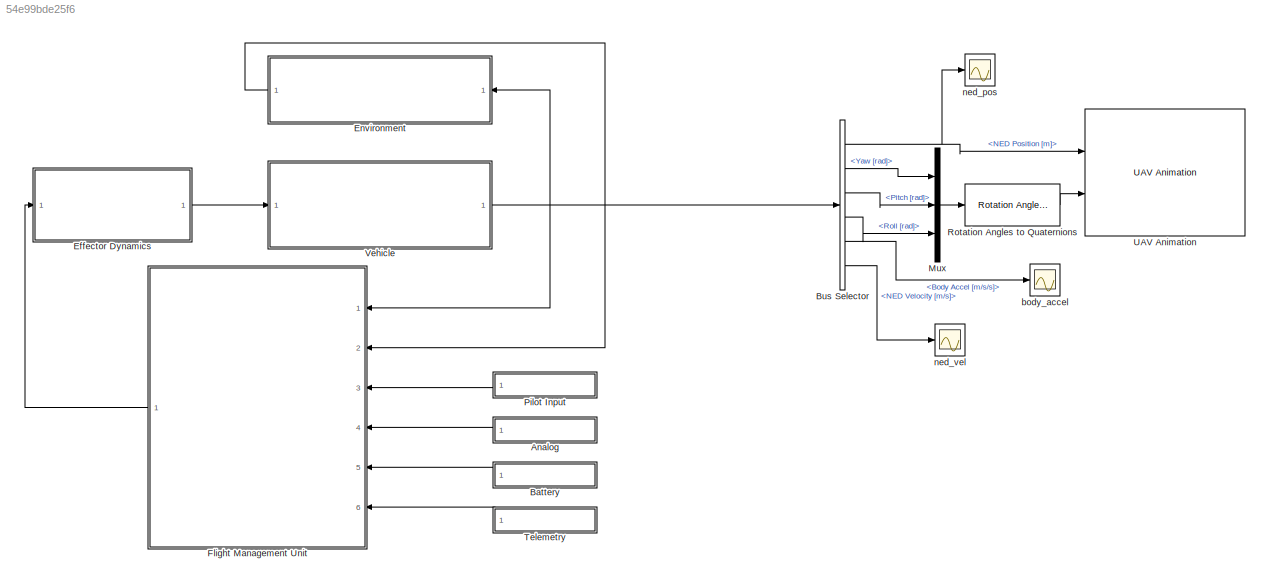
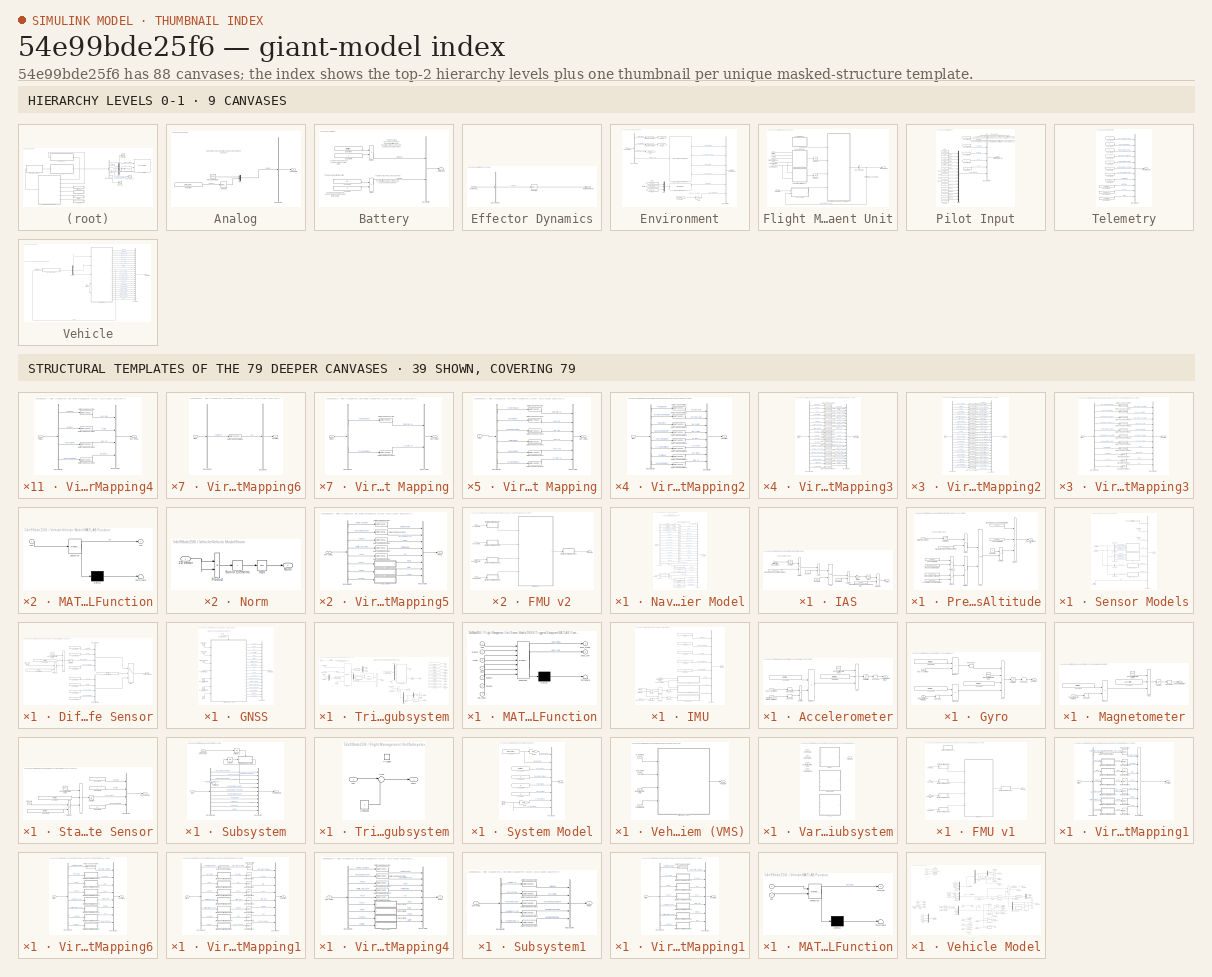
[diagram: thumbnail index - top-2 hierarchy levels (9 canvases) + 39 structural-template representatives of the remaining 79 canvases]
MODEL slx_54e99bde25f6
KIND model
CONFIG AbsTol = auto
CONFIG EnableMultiTasking = off
CONFIG FixedStep = framePeriod_s
CONFIG MaxStep = auto
CONFIG MinStep = auto
CONFIG RelTol = 1e-9
CONFIG SampleTimeConstraint = Unconstrained
CONFIG SolverName = FixedStepAuto
CONFIG StartTime = 0.0
CONFIG StopTime = 35
BLOCK [SubSystem] Analog
  Ports = [0, 1]
  RequestExecContextInheritance = off
BLOCK [Outport] Analog/Analog Data
BLOCK [BusCreator] Analog/Bus Creator
  DisplayOption = bar
  InheritFromInputs = on
  Inputs = 1
  Ports = [1, 1]
BLOCK [Constant] Analog/Constant
  Value = zeros(1, Fmu.NUM_AIN)
BLOCK [Mux] Analog/Mux
  DisplayOption = bar
  Inputs = 2
  Ports = [2, 1]
BLOCK [RandomNumber] Analog/Random Number
  Mean = 0.8
  SampleTime = framePeriod_s
  Variance = 0.01
BLOCK [Selector] Analog/Selector1
  IndexOptions = Starting index (dialog)
  Indices = [2]
  InputPortWidth = Fmu.NUM_AIN
  OutputSizes = Fmu.NUM_AIN-1
  Ports = [1, 1]
BLOCK [SubSystem] Battery
  Ports = [0, 1]
  RequestExecContextInheritance = off
BLOCK [Outport] Battery/Battery Data
BLOCK [BusCreator] Battery/Bus Creator
  DisplayOption = bar
  InheritFromInputs = on
  Inputs = 2
  Ports = [2, 1]
BLOCK [Constant] Battery/Constant
  Value = Aircraft.Battery.voltage
BLOCK [Constant] Battery/Constant1
  Value = 42
BLOCK [Constant] Battery/Constant2
BLOCK [Constant] Battery/Constant3
BLOCK [Product] Battery/Divide
  Inputs = */
  Ports = [2, 1]
BLOCK [Product] Battery/Divide1
  Inputs = */
  Ports = [2, 1]
BLOCK [BusSelector] Bus Selector
  OutputSignals = NED Position [m],Yaw [rad],Pitch [rad],Roll [rad],Body Accel [m/s/s],NED Velocity [m/s]
  Ports = [1, 6]
BLOCK [SubSystem] Effector Dynamics
  Ports = [1, 1]
  RequestExecContextInheritance = off
BLOCK [BusSelector] Effector Dynamics/Bus Selector
  OutputSignals = PWM.Cmds
  Ports = [1, 1]
BLOCK [Inport] Effector Dynamics/Commands
BLOCK [Outport] Effector Dynamics/Motor Commands
BLOCK [Selector] Effector Dynamics/Selector1
  IndexOptions = Index vector (dialog)
  Indices = Aircraft.Motor.map
  InputPortWidth = Aircraft.Eff.nPwm
  OutputSizes = 1
  Ports = [1, 1]
BLOCK [SubSystem] Environment
  Ports = [1, 1]
  RequestExecContextInheritance = off
BLOCK [Reference] Environment/Angle Conversion4  REF=aerolibconvert2/Angle Conversion
  Ports = [1, 1]
  SourceBlock = aerolibconvert2/Angle Conversion
  SourceProductBaseCode = AE
  SourceType = Angle Conversion
BLOCK [Reference] Environment/Angle Conversion5  REF=aerolibconvert2/Angle Conversion
  Ports = [1, 1]
  SourceBlock = aerolibconvert2/Angle Conversion
  SourceProductBaseCode = AE
  SourceType = Angle Conversion
BLOCK [BusCreator] Environment/Bus Creator
  DisplayOption = bar
  InheritFromInputs = on
  Inputs = 6
  Ports = [6, 1]
BLOCK [BusSelector] Environment/Bus Selector
  OutputSignals = Latitude [rad],Longitude [rad],Altitude WGS84 [m],Altitude MSL [m]
  Ports = [1, 4]
BLOCK [Reference] Environment/COESA Atmosphere Model  REF=aerolibatmos2/COESA Atmosphere Model
  Ports = [1, 4]
  SourceBlock = aerolibatmos2/COESA Atmosphere Model
  SourceProductBaseCode = AE
  SourceType = Atmosphere Model
BLOCK [Constant] Environment/Constant
  Value = Env.wmm_nt
BLOCK [Outport] Environment/Environment
BLOCK [From] Environment/From6
  GotoTag = lon_deg
BLOCK [From] Environment/From7
  GotoTag = lat_deg
BLOCK [From] Environment/From8
  GotoTag = alt_wgs84_m
BLOCK [Gain] Environment/Gain
  Gain = 1e-3
BLOCK [Goto] Environment/Goto
  GotoTag = lat_deg
BLOCK [Goto] Environment/Goto1
  GotoTag = lon_deg
BLOCK [Goto] Environment/Goto2
  GotoTag = alt_wgs84_m
BLOCK [Mux] Environment/Mux
  DisplayOption = bar
  Inputs = 3
  Ports = [3, 1]
BLOCK [Inport] Environment/Vehicle State
BLOCK [GravityWGS84] Environment/WGS84 Gravity Model  
  Ports = [1, 1]
BLOCK [SubSystem] Flight Management Unit
  Ports = [6, 1]
  RequestExecContextInheritance = off
BLOCK [Inport] Flight Management Unit/Analog
  Port = 4
BLOCK [Inport] Flight Management Unit/Battery
  Port = 5
BLOCK [BusSelector] Flight Management Unit/Bus Selector1
  NameLocation = left
  OutputSignals = Waypoint Reached
  Ports = [1, 1]
BLOCK [BusSelector] Flight Management Unit/Bus Selector2
  OutputAsBus = on
  OutputSignals = Waypoint Reached,SBUS,PWM
  Ports = [1, 1]
BLOCK [Outport] Flight Management Unit/Effector Cmds
BLOCK [Inport] Flight Management Unit/Environment
  Port = 2
BLOCK [SubSystem] Flight Management Unit/Navigation Filter Model
  PortSchema = {"entries":[{"content":{"sides":[{"content":{"connectorIds":[]},"type":"ConnectorPlacement.EquallySpacedRectSide","uuid":"b20f7590-d69b-48b8-beb1-2fb7d3ab0357"},{"content":{"connectorIds":[],"side":"RIGHT"},"type":"ConnectorPlacement.EquallySpacedRectSide","uuid":"07801f8a-7756-483e-a050-3c2fccc33404"},{"content":{"connectorIds":["In1","In2"],"side":"TOP"},"type":"ConnectorPlacement.EquallySpacedR...<+534ch>
  Ports = [2, 1]
  RequestExecContextInheritance = off
BLOCK [BusCreator] Flight Management Unit/Navigation Filter Model/Bus Creator
  DisplayOption = bar
  InheritFromInputs = on
  Inputs = 26
  Ports = [26, 1]
BLOCK [BusSelector] Flight Management Unit/Navigation Filter Model/Bus Selector
  OutputSignals = Magnetic Field [uT],Pressure [Pa]
  Ports = [1, 2]
BLOCK [BusSelector] Flight Management Unit/Navigation Filter Model/Bus Selector1
  OutputSignals = Pitch [rad],Roll [rad],Yaw [rad],Altitude WGS84 [m],Altitude MSL [m],Altitude AGL [m],Ground Speed [m/s],Ground Track [rad],Flight Path Angle [rad],Body Rotational Rate [rad/s],Body Accel [m/s/s],NED Position [m],NED Velocity [m/s],Latitude [rad],Longitude [rad],Dynamic Pressure [Pa]
  Ports = [1, 16]
BLOCK [Constant] Flight Management Unit/Navigation Filter Model/Constant
BLOCK [Constant] Flight Management Unit/Navigation Filter Model/Constant1
  Value = [0 0 0]
BLOCK [Constant] Flight Management Unit/Navigation Filter Model/Constant2
  Value = [0 0 0]
BLOCK [Constant] Flight Management Unit/Navigation Filter Model/Constant3
  Value = InitCond.euler_rad(1)
BLOCK [Constant] Flight Management Unit/Navigation Filter Model/Constant4
  Value = InitCond.euler_rad(2)
BLOCK [Constant] Flight Management Unit/Navigation Filter Model/Constant5
  Value = InitCond.lat_rad
BLOCK [Constant] Flight Management Unit/Navigation Filter Model/Constant6
  Value = InitCond.lon_rad
BLOCK [Constant] Flight Management Unit/Navigation Filter Model/Constant7
  Value = 0
BLOCK [Inport] Flight Management Unit/Navigation Filter Model/Environment
BLOCK [Gain] Flight Management Unit/Navigation Filter Model/Gain
BLOCK [Gain] Flight Management Unit/Navigation Filter Model/Gain1
BLOCK [Gain] Flight Management Unit/Navigation Filter Model/Gain10
BLOCK [Gain] Flight Management Unit/Navigation Filter Model/Gain11
BLOCK [Gain] Flight Management Unit/Navigation Filter Model/Gain12
BLOCK [Gain] Flight Management Unit/Navigation Filter Model/Gain13
BLOCK [Gain] Flight Management Unit/Navigation Filter Model/Gain14
BLOCK [Gain] Flight Management Unit/Navigation Filter Model/Gain15
BLOCK [Gain] Flight Management Unit/Navigation Filter Model/Gain16
BLOCK [Gain] Flight Management Unit/Navigation Filter Model/Gain17
BLOCK [Gain] Flight Management Unit/Navigation Filter Model/Gain2
BLOCK [Gain] Flight Management Unit/Navigation Filter Model/Gain3
BLOCK [Gain] Flight Management Unit/Navigation Filter Model/Gain4
BLOCK [Gain] Flight Management Unit/Navigation Filter Model/Gain5
BLOCK [Gain] Flight Management Unit/Navigation Filter Model/Gain6
BLOCK [Gain] Flight Management Unit/Navigation Filter Model/Gain7
BLOCK [Gain] Flight Management Unit/Navigation Filter Model/Gain8
BLOCK [Gain] Flight Management Unit/Navigation Filter Model/Gain9
BLOCK [SubSystem] Flight Management Unit/Navigation Filter Model/IAS
  Ports = [1, 1]
  RequestExecContextInheritance = off
BLOCK [Sum] Flight Management Unit/Navigation Filter Model/IAS/Add
  IconShape = rectangular
  Ports = [2, 1]
BLOCK [Constant] Flight Management Unit/Navigation Filter Model/IAS/Constant
  OutDataTypeStr = double
BLOCK [Constant] Flight Management Unit/Navigation Filter Model/IAS/Constant1
  OutDataTypeStr = double
  Value = 2/7
BLOCK [Constant] Flight Management Unit/Navigation Filter Model/IAS/Constant2
  OutDataTypeStr = double
BLOCK [Inport] Flight Management Unit/Navigation Filter Model/IAS/Differential Pressure [Pa]
BLOCK [Product] Flight Management Unit/Navigation Filter Model/IAS/Divide
  Inputs = */
  Ports = [2, 1]
BLOCK [Outport] Flight Management Unit/Navigation Filter Model/IAS/IAS [m//s]
BLOCK [Gain] Flight Management Unit/Navigation Filter Model/IAS/Multiply
  Gain = 5
BLOCK [Math] Flight Management Unit/Navigation Filter Model/IAS/Pow
  Operator = pow
  Ports = [2, 1]
  RndMeth = Zero
BLOCK [Product] Flight Management Unit/Navigation Filter Model/IAS/Product
  Ports = [2, 1]
BLOCK [Saturate] Flight Management Unit/Navigation Filter Model/IAS/Saturation
  LowerLimit = 0
  UpperLimit = inf
BLOCK [Sqrt] Flight Management Unit/Navigation Filter Model/IAS/Sqrt
BLOCK [Constant] Flight Management Unit/Navigation Filter Model/IAS/Standard Sea Level Pressure [Pa]
  OutDataTypeStr = double
  Value = 101325
BLOCK [Constant] Flight Management Unit/Navigation Filter Model/IAS/Standard Sea Level Speed of Sound [m//s]
  OutDataTypeStr = double
  Value = 340.29
BLOCK [Sum] Flight Management Unit/Navigation Filter Model/IAS/Subtract
  IconShape = rectangular
  Inputs = +-
  Ports = [2, 1]
BLOCK [Outport] Flight Management Unit/Navigation Filter Model/Navigation Filter Data
BLOCK [SubSystem] Flight Management Unit/Navigation Filter Model/Pressure Altitude
  Ports = [1, 1]
  RequestExecContextInheritance = off
BLOCK [Constant] Flight Management Unit/Navigation Filter Model/Pressure Altitude/Acceleration due to Gravity [m//s//s]
  OutDataTypeStr = double
  Value = 9.80665
BLOCK [Constant] Flight Management Unit/Navigation Filter Model/Pressure Altitude/Constant
  OutDataTypeStr = double
BLOCK [Product] Flight Management Unit/Navigation Filter Model/Pressure Altitude/Divide
  Inputs = */
  Ports = [2, 1]
BLOCK [Product] Flight Management Unit/Navigation Filter Model/Pressure Altitude/Divide1
  Inputs = */
  Ports = [2, 1]
BLOCK [Product] Flight Management Unit/Navigation Filter Model/Pressure Altitude/Divide2
  Inputs = */*
  Ports = [3, 1]
BLOCK [Constant] Flight Management Unit/Navigation Filter Model/Pressure Altitude/Gas Constant [J//kg//mol]
  OutDataTypeStr = double
  Value = 8.31446261815324
BLOCK [Constant] Flight Management Unit/Navigation Filter Model/Pressure Altitude/Lapse Rate [K//m]
  OutDataTypeStr = double
  Value = 0.0065
BLOCK [Constant] Flight Management Unit/Navigation Filter Model/Pressure Altitude/Lapse Rate [K//m]1
  OutDataTypeStr = double
  Value = 0.0065
BLOCK [Constant] Flight Management Unit/Navigation Filter Model/Pressure Altitude/Molecular Mass Air [kg//mol]
  OutDataTypeStr = double
  Value = 0.0289644
BLOCK [Math] Flight Management Unit/Navigation Filter Model/Pressure Altitude/Pow
  Operator = pow
  Ports = [2, 1]
  RndMeth = Zero
BLOCK [Outport] Flight Management Unit/Navigation Filter Model/Pressure Altitude/Pressure Altitude [m]
BLOCK [Product] Flight Management Unit/Navigation Filter Model/Pressure Altitude/Product
  Ports = [2, 1]
BLOCK [Product] Flight Management Unit/Navigation Filter Model/Pressure Altitude/Product1
  Ports = [2, 1]
BLOCK [Saturate] Flight Management Unit/Navigation Filter Model/Pressure Altitude/Saturation1
  LowerLimit = 0
  UpperLimit = inf
BLOCK [Constant] Flight Management Unit/Navigation Filter Model/Pressure Altitude/Standard Sea Level Pressure [Pa]
  OutDataTypeStr = double
  Value = 101325
BLOCK [Constant] Flight Management Unit/Navigation Filter Model/Pressure Altitude/Standard Sea Level Temperature [K]
  OutDataTypeStr = double
  Value = 288.15
BLOCK [Inport] Flight Management Unit/Navigation Filter Model/Pressure Altitude/Static Pressure [Pa]
BLOCK [Sum] Flight Management Unit/Navigation Filter Model/Pressure Altitude/Subtract
  IconShape = rectangular
  Inputs = +-
  Ports = [2, 1]
BLOCK [Sum] Flight Management Unit/Navigation Filter Model/Subtract
  IconShape = rectangular
  Inputs = +-
  Ports = [2, 1]
BLOCK [Sum] Flight Management Unit/Navigation Filter Model/Subtract1
  IconShape = rectangular
  Inputs = +-
  Ports = [2, 1]
BLOCK [Inport] Flight Management Unit/Navigation Filter Model/Vehicle State
  Port = 2
BLOCK [Inport] Flight Management Unit/Pilot Commands
  Port = 3
BLOCK [SubSystem] Flight Management Unit/Sensor Models
  PortSchema = {"entries":[{"content":{"sides":[{"content":{"connectorIds":[]},"type":"ConnectorPlacement.EquallySpacedRectSide","uuid":"b20f7590-d69b-48b8-beb1-2fb7d3ab0357"},{"content":{"connectorIds":[],"side":"RIGHT"},"type":"ConnectorPlacement.EquallySpacedRectSide","uuid":"07801f8a-7756-483e-a050-3c2fccc33404"},{"content":{"connectorIds":["In1","In2","In3","In4","In5"],"side":"TOP"},"type":"ConnectorPlacem...<+552ch>
  Ports = [5, 1]
  RequestExecContextInheritance = off
BLOCK [Inport] Flight Management Unit/Sensor Models/Analog Data
  Port = 4
BLOCK [Inport] Flight Management Unit/Sensor Models/Battery Data
  Port = 5
BLOCK [BusCreator] Flight Management Unit/Sensor Models/Bus Creator
  DisplayOption = bar
  InheritFromInputs = on
  Inputs = 8
  Ports = [8, 1]
BLOCK [BusSelector] Flight Management Unit/Sensor Models/Bus Selector
  OutputSignals = Body Rotational Rate [rad/s],Body Accel [m/s/s],DCM_be
  Ports = [1, 3]
BLOCK [BusSelector] Flight Management Unit/Sensor Models/Bus Selector1
  OutputSignals = Latitude [rad],Longitude [rad],Altitude WGS84 [m],NED Velocity [m/s]
  Ports = [1, 4]
BLOCK [BusSelector] Flight Management Unit/Sensor Models/Bus Selector2
  OutputSignals = Dynamic Pressure [Pa]
  Ports = [1, 1]
BLOCK [BusSelector] Flight Management Unit/Sensor Models/Bus Selector3
  OutputSignals = Gravity [m/s/s],Magnetic Field [uT]
  Ports = [1, 2]
BLOCK [BusSelector] Flight Management Unit/Sensor Models/Bus Selector4
  OutputSignals = Pressure [Pa]
  Ports = [1, 1]
BLOCK [Constant] Flight Management Unit/Sensor Models/Constant
  Value = Aircraft.Sensors.PitotStaticInstalled
BLOCK [SubSystem] Flight Management Unit/Sensor Models/Diff Pressure Sensor
  Ports = [1, 1]
  RequestExecContextInheritance = off
BLOCK [Sum] Flight Management Unit/Sensor Models/Diff Pressure Sensor/Add
  IconShape = rectangular
  Inputs = +++
  Ports = [3, 1]
BLOCK [Reference] Flight Management Unit/Sensor Models/Diff Pressure Sensor/Band-Limited White Noise  REF=simulink/Sources/Band-Limited
White Noise
  Ports = [0, 1]
  SourceBlock = simulink/Sources/Band-Limited\nWhite Noise
  SourceProductBaseCode = SL
  SourceType = Band-Limited White Noise.
BLOCK [BusCreator] Flight Management Unit/Sensor Models/Diff Pressure Sensor/Bus Creator
  DisplayOption = bar
  InheritFromInputs = on
  Inputs = 4
  Ports = [4, 1]
BLOCK [BusCreator] Flight Management Unit/Sensor Models/Diff Pressure Sensor/Bus Creator1
  DisplayOption = bar
  InheritFromInputs = on
  Inputs = 4
  Ports = [4, 1]
BLOCK [Constant] Flight Management Unit/Sensor Models/Diff Pressure Sensor/Constant
  Value = Aircraft.Sensors.DiffPres.bias_pa
BLOCK [Constant] Flight Management Unit/Sensor Models/Diff Pressure Sensor/Constant1
  Value = Aircraft.Sensors.DiffPres.scale_factor
BLOCK [Constant] Flight Management Unit/Sensor Models/Diff Pressure Sensor/Constant2
  Value = 23
BLOCK [Constant] Flight Management Unit/Sensor Models/Diff Pressure Sensor/Constant3
BLOCK [Constant] Flight Management Unit/Sensor Models/Diff Pressure Sensor/Constant4
BLOCK [Constant] Flight Management Unit/Sensor Models/Diff Pressure Sensor/Constant5
  Value = 0
BLOCK [Constant] Flight Management Unit/Sensor Models/Diff Pressure Sensor/Constant6
  Value = 0
BLOCK [Constant] Flight Management Unit/Sensor Models/Diff Pressure Sensor/Constant7
  Value = 0
BLOCK [Constant] Flight Management Unit/Sensor Models/Diff Pressure Sensor/Constant8
  Value = 0
BLOCK [Constant] Flight Management Unit/Sensor Models/Diff Pressure Sensor/Constant9
  Value = Aircraft.Sensors.PitotStaticInstalled
BLOCK [Inport] Flight Management Unit/Sensor Models/Diff Pressure Sensor/Pressure
BLOCK [Outport] Flight Management Unit/Sensor Models/Diff Pressure Sensor/Pressure Data
BLOCK [Product] Flight Management Unit/Sensor Models/Diff Pressure Sensor/Product
  Ports = [2, 1]
BLOCK [Saturate] Flight Management Unit/Sensor Models/Diff Pressure Sensor/Saturation
  LowerLimit = Aircraft.Sensors.DiffPres.lower_limit_pa
  UpperLimit = Aircraft.Sensors.DiffPres.upper_limit_pa
BLOCK [Switch] Flight Management Unit/Sensor Models/Diff Pressure Sensor/Switch
  Criteria = u2 > Threshold
  InputSameDT = off
  SaturateOnIntegerOverflow = off
BLOCK [Inport] Flight Management Unit/Sensor Models/Environment
BLOCK [SubSystem] Flight Management Unit/Sensor Models/GNSS
  Ports = [4, 1]
  RequestExecContextInheritance = off
BLOCK [Inport] Flight Management Unit/Sensor Models/GNSS/Altitude WGS84 [m]
  Port = 3
BLOCK [Reference] Flight Management Unit/Sensor Models/GNSS/Band-Limited White Noise  REF=simulink/Sources/Band-Limited
White Noise
  Ports = [0, 1]
  SourceBlock = simulink/Sources/Band-Limited\nWhite Noise
  SourceProductBaseCode = SL
  SourceType = Band-Limited White Noise.
BLOCK [Reference] Flight Management Unit/Sensor Models/GNSS/Band-Limited White Noise2  REF=simulink/Sources/Band-Limited
White Noise
  Ports = [0, 1]
  SourceBlock = simulink/Sources/Band-Limited\nWhite Noise
  SourceProductBaseCode = SL
  SourceType = Band-Limited White Noise.
BLOCK [BusCreator] Flight Management Unit/Sensor Models/GNSS/Bus Creator
  DisplayOption = bar
  InheritFromInputs = on
  Inputs = 19
  Ports = [19, 1]
BLOCK [Clock] Flight Management Unit/Sensor Models/GNSS/Clock
BLOCK [Outport] Flight Management Unit/Sensor Models/GNSS/GNSS Data
BLOCK [Inport] Flight Management Unit/Sensor Models/GNSS/Latitude [rad]
BLOCK [Inport] Flight Management Unit/Sensor Models/GNSS/Longitude [rad] 
  Port = 2
BLOCK [Inport] Flight Management Unit/Sensor Models/GNSS/NED Velocity [m//s]
  Port = 4
BLOCK [DiscretePulseGenerator] Flight Management Unit/Sensor Models/GNSS/Pulse Generator
  Period = 1/Aircraft.Sensors.Gnss.sample_rate_hz
  Ports = [0, 1]
  PulseType = Time based
  PulseWidth = 5
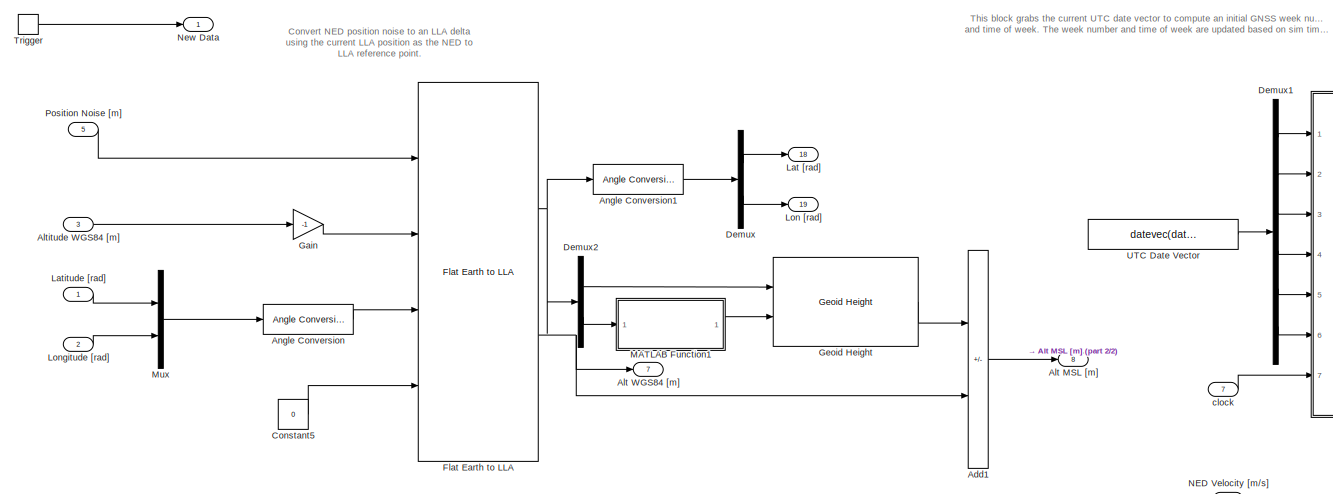
[diagram: Flight Management Unit/Sensor Models/GNSS/Triggered Subsystem - part 1/2, top left region]
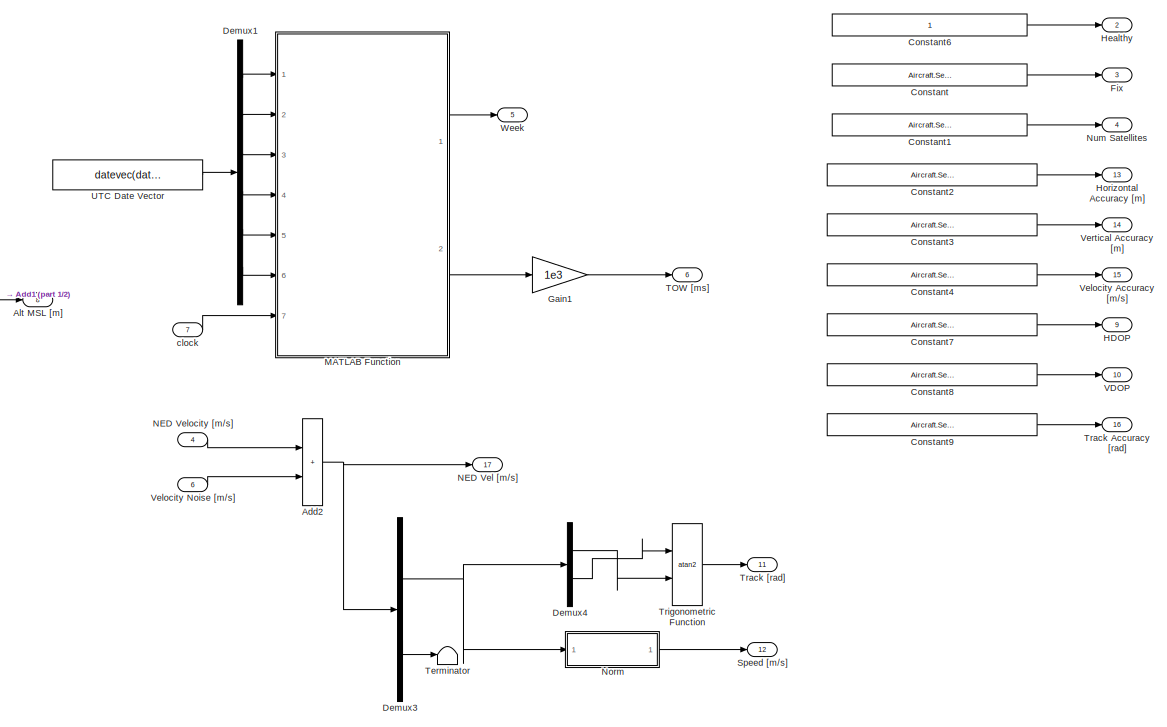
[diagram: Flight Management Unit/Sensor Models/GNSS/Triggered Subsystem - part 2/2, right side, full height]
BLOCK [SubSystem] Flight Management Unit/Sensor Models/GNSS/Triggered Subsystem
  Ports = [7, 19, 0, 1]
  RequestExecContextInheritance = off
  TreatAsAtomicUnit = on
BLOCK [Sum] Flight Management Unit/Sensor Models/GNSS/Triggered Subsystem/Add1
  IconShape = rectangular
  Inputs = -+
  Ports = [2, 1]
BLOCK [Sum] Flight Management Unit/Sensor Models/GNSS/Triggered Subsystem/Add2
  IconShape = rectangular
  Ports = [2, 1]
BLOCK [Outport] Flight Management Unit/Sensor Models/GNSS/Triggered Subsystem/Alt MSL [m]
  Port = 8
BLOCK [Outport] Flight Management Unit/Sensor Models/GNSS/Triggered Subsystem/Alt WGS84 [m]
  Port = 7
BLOCK [Inport] Flight Management Unit/Sensor Models/GNSS/Triggered Subsystem/Altitude WGS84 [m]
  Port = 3
BLOCK [Reference] Flight Management Unit/Sensor Models/GNSS/Triggered Subsystem/Angle Conversion  REF=aerolibconvert2/Angle Conversion
  Ports = [1, 1]
  SourceBlock = aerolibconvert2/Angle Conversion
  SourceProductBaseCode = AE
  SourceType = Angle Conversion
BLOCK [Reference] Flight Management Unit/Sensor Models/GNSS/Triggered Subsystem/Angle Conversion1  REF=aerolibconvert2/Angle Conversion
  Ports = [1, 1]
  SourceBlock = aerolibconvert2/Angle Conversion
  SourceProductBaseCode = AE
  SourceType = Angle Conversion
BLOCK [Constant] Flight Management Unit/Sensor Models/GNSS/Triggered Subsystem/Constant
  Value = Aircraft.Sensors.Gnss.fix
BLOCK [Constant] Flight Management Unit/Sensor Models/GNSS/Triggered Subsystem/Constant1
  Value = Aircraft.Sensors.Gnss.num_satellites
BLOCK [Constant] Flight Management Unit/Sensor Models/GNSS/Triggered Subsystem/Constant2
  Value = Aircraft.Sensors.Gnss.horz_accuracy_m
BLOCK [Constant] Flight Management Unit/Sensor Models/GNSS/Triggered Subsystem/Constant3
  Value = Aircraft.Sensors.Gnss.vert_accuracy_m
BLOCK [Constant] Flight Management Unit/Sensor Models/GNSS/Triggered Subsystem/Constant4
  Value = Aircraft.Sensors.Gnss.vel_accuracy_mps
BLOCK [Constant] Flight Management Unit/Sensor Models/GNSS/Triggered Subsystem/Constant5
  Value = 0
BLOCK [Constant] Flight Management Unit/Sensor Models/GNSS/Triggered Subsystem/Constant6
BLOCK [Constant] Flight Management Unit/Sensor Models/GNSS/Triggered Subsystem/Constant7
  Value = Aircraft.Sensors.Gnss.hdop
BLOCK [Constant] Flight Management Unit/Sensor Models/GNSS/Triggered Subsystem/Constant8
  Value = Aircraft.Sensors.Gnss.vdop
BLOCK [Constant] Flight Management Unit/Sensor Models/GNSS/Triggered Subsystem/Constant9
  Value = Aircraft.Sensors.Gnss.track_accuracy_rad
BLOCK [Demux] Flight Management Unit/Sensor Models/GNSS/Triggered Subsystem/Demux
  Outputs = 2
  Ports = [1, 2]
BLOCK [Demux] Flight Management Unit/Sensor Models/GNSS/Triggered Subsystem/Demux1
  Outputs = 6
  Ports = [1, 6]
BLOCK [Demux] Flight Management Unit/Sensor Models/GNSS/Triggered Subsystem/Demux2
  Outputs = 2
  Ports = [1, 2]
BLOCK [Demux] Flight Management Unit/Sensor Models/GNSS/Triggered Subsystem/Demux3
  Outputs = [2 1]
  Ports = [1, 2]
BLOCK [Demux] Flight Management Unit/Sensor Models/GNSS/Triggered Subsystem/Demux4
  Outputs = 2
  Ports = [1, 2]
BLOCK [Outport] Flight Management Unit/Sensor Models/GNSS/Triggered Subsystem/Fix
  Port = 3
BLOCK [Reference] Flight Management Unit/Sensor Models/GNSS/Triggered Subsystem/Flat Earth to LLA  REF=aerolibtransform2/Flat Earth to LLA
  Ports = [4, 2]
  SourceBlock = aerolibtransform2/Flat Earth to LLA
  SourceProductBaseCode = AE
  SourceType = Flat Earth to LLA
BLOCK [Gain] Flight Management Unit/Sensor Models/GNSS/Triggered Subsystem/Gain
  Gain = -1
BLOCK [Gain] Flight Management Unit/Sensor Models/GNSS/Triggered Subsystem/Gain1
  Gain = 1e3
BLOCK [Reference] Flight Management Unit/Sensor Models/GNSS/Triggered Subsystem/Geoid Height  REF=aerolibgravity2/Geoid Height
  Ports = [2, 1]
  SourceBlock = aerolibgravity2/Geoid Height
  SourceProductBaseCode = AE
  SourceType = Geoid Height
BLOCK [Outport] Flight Management Unit/Sensor Models/GNSS/Triggered Subsystem/HDOP
  Port = 9
BLOCK [Outport] Flight Management Unit/Sensor Models/GNSS/Triggered Subsystem/Healthy
  Port = 2
BLOCK [Outport] Flight Management Unit/Sensor Models/GNSS/Triggered Subsystem/Horizontal Accuracy [m]
  Port = 13
BLOCK [Outport] Flight Management Unit/Sensor Models/GNSS/Triggered Subsystem/Lat [rad]
  Port = 18
BLOCK [Inport] Flight Management Unit/Sensor Models/GNSS/Triggered Subsystem/Latitude [rad]
BLOCK [Outport] Flight Management Unit/Sensor Models/GNSS/Triggered Subsystem/Lon [rad]
  Port = 19
BLOCK [Inport] Flight Management Unit/Sensor Models/GNSS/Triggered Subsystem/Longitude [rad] 
  Port = 2
BLOCK [SubSystem] Flight Management Unit/Sensor Models/GNSS/Triggered Subsystem/MATLAB Function
  ErrorFcn = Stateflow.Translate.translate
  PermitHierarchicalResolution = ExplicitOnly
  Ports = [7, 2]
  RequestExecContextInheritance = off
  SFBlockType = MATLAB Function
  TreatAsAtomicUnit = on
BLOCK [Demux] Flight Management Unit/Sensor Models/GNSS/Triggered Subsystem/MATLAB Function/ Demux 
  Outputs = 1
  Ports = [1, 1]
BLOCK [S-Function] Flight Management Unit/Sensor Models/GNSS/Triggered Subsystem/MATLAB Function/ SFunction 
  EnableBusSupport = on
  FunctionName = sf_sfun
  PortCounts = [7 3]
  Ports = [7, 3]
  SFcnIsStateOwnerBlock = off
  SFunctionDeploymentMode = off
  Tag = Stateflow S-Function 2
BLOCK [Terminator] Flight Management Unit/Sensor Models/GNSS/Triggered Subsystem/MATLAB Function/ Terminator 
BLOCK [Outport] Flight Management Unit/Sensor Models/GNSS/Triggered Subsystem/MATLAB Function/gnss_tow
  Port = 2
BLOCK [Outport] Flight Management Unit/Sensor Models/GNSS/Triggered Subsystem/MATLAB Function/gnss_week
BLOCK [Inport] Flight Management Unit/Sensor Models/GNSS/Triggered Subsystem/MATLAB Function/hour
  Port = 4
BLOCK [Inport] Flight Management Unit/Sensor Models/GNSS/Triggered Subsystem/MATLAB Function/mday
  Port = 3
BLOCK [Inport] Flight Management Unit/Sensor Models/GNSS/Triggered Subsystem/MATLAB Function/minute
  Port = 5
BLOCK [Inport] Flight Management Unit/Sensor Models/GNSS/Triggered Subsystem/MATLAB Function/month
  Port = 2
BLOCK [Inport] Flight Management Unit/Sensor Models/GNSS/Triggered Subsystem/MATLAB Function/second
  Port = 6
BLOCK [Inport] Flight Management Unit/Sensor Models/GNSS/Triggered Subsystem/MATLAB Function/sim_clock
  Port = 7
BLOCK [Inport] Flight Management Unit/Sensor Models/GNSS/Triggered Subsystem/MATLAB Function/year
BLOCK [SubSystem] Flight Management Unit/Sensor Models/GNSS/Triggered Subsystem/MATLAB Function1
  ErrorFcn = Stateflow.Translate.translate
  PermitHierarchicalResolution = ExplicitOnly
  Ports = [1, 1]
  RequestExecContextInheritance = off
  SFBlockType = MATLAB Function
  TreatAsAtomicUnit = on
BLOCK [Demux] Flight Management Unit/Sensor Models/GNSS/Triggered Subsystem/MATLAB Function1/ Demux 
  Outputs = 1
  Ports = [1, 1]
BLOCK [S-Function] Flight Management Unit/Sensor Models/GNSS/Triggered Subsystem/MATLAB Function1/ SFunction 
  EnableBusSupport = on
  FunctionName = sf_sfun
  PortCounts = [1 2]
  Ports = [1, 2]
  SFcnIsStateOwnerBlock = off
  SFunctionDeploymentMode = off
  Tag = Stateflow S-Function 3
BLOCK [Terminator] Flight Management Unit/Sensor Models/GNSS/Triggered Subsystem/MATLAB Function1/ Terminator 
BLOCK [Inport] Flight Management Unit/Sensor Models/GNSS/Triggered Subsystem/MATLAB Function1/ang
BLOCK [Outport] Flight Management Unit/Sensor Models/GNSS/Triggered Subsystem/MATLAB Function1/ret
BLOCK [Mux] Flight Management Unit/Sensor Models/GNSS/Triggered Subsystem/Mux
  DisplayOption = bar
  Inputs = 2
  Ports = [2, 1]
BLOCK [Outport] Flight Management Unit/Sensor Models/GNSS/Triggered Subsystem/NED Vel [m//s]
  Port = 17
BLOCK [Inport] Flight Management Unit/Sensor Models/GNSS/Triggered Subsystem/NED Velocity [m//s]
  Port = 4
  PortDimensions = 3
BLOCK [Outport] Flight Management Unit/Sensor Models/GNSS/Triggered Subsystem/New Data
BLOCK [SubSystem] Flight Management Unit/Sensor Models/GNSS/Triggered Subsystem/Norm
  Ports = [1, 1]
  RequestExecContextInheritance = off
BLOCK [Inport] Flight Management Unit/Sensor Models/GNSS/Triggered Subsystem/Norm/2D Vector
BLOCK [Outport] Flight Management Unit/Sensor Models/GNSS/Triggered Subsystem/Norm/Norm
BLOCK [Product] Flight Management Unit/Sensor Models/GNSS/Triggered Subsystem/Norm/Product
  Ports = [2, 1]
BLOCK [Sqrt] Flight Management Unit/Sensor Models/GNSS/Triggered Subsystem/Norm/Sqrt
BLOCK [Sum] Flight Management Unit/Sensor Models/GNSS/Triggered Subsystem/Norm/Sum of Elements
  IconShape = rectangular
  Inputs = +
  Ports = [1, 1]
BLOCK [Outport] Flight Management Unit/Sensor Models/GNSS/Triggered Subsystem/Num Satellites
  Port = 4
BLOCK [Inport] Flight Management Unit/Sensor Models/GNSS/Triggered Subsystem/Position Noise [m]
  Port = 5
  PortDimensions = 3
BLOCK [Outport] Flight Management Unit/Sensor Models/GNSS/Triggered Subsystem/Speed [m//s]
  Port = 12
BLOCK [Outport] Flight Management Unit/Sensor Models/GNSS/Triggered Subsystem/TOW [ms]
  Port = 6
BLOCK [Terminator] Flight Management Unit/Sensor Models/GNSS/Triggered Subsystem/Terminator
BLOCK [Outport] Flight Management Unit/Sensor Models/GNSS/Triggered Subsystem/Track Accuracy [rad]
  Port = 16
BLOCK [Outport] Flight Management Unit/Sensor Models/GNSS/Triggered Subsystem/Track [rad]
  Port = 11
BLOCK [TriggerPort] Flight Management Unit/Sensor Models/GNSS/Triggered Subsystem/Trigger
  Ports = [0, 1]
  ShowOutputPort = on
  StatesWhenEnabling = held
  VariantControl = Variant
BLOCK [Trigonometry] Flight Management Unit/Sensor Models/GNSS/Triggered Subsystem/Trigonometric Function
  Operator = atan2
  Ports = [2, 1]
BLOCK [Constant] Flight Management Unit/Sensor Models/GNSS/Triggered Subsystem/UTC Date Vector
  SampleTime = -1
  Value = datevec(datetime(datetime('now', 'TimeZone','local'), 'TimeZone','Z'))
BLOCK [Outport] Flight Management Unit/Sensor Models/GNSS/Triggered Subsystem/VDOP
  Port = 10
BLOCK [Outport] Flight Management Unit/Sensor Models/GNSS/Triggered Subsystem/Velocity Accuracy [m//s]
  Port = 15
BLOCK [Inport] Flight Management Unit/Sensor Models/GNSS/Triggered Subsystem/Velocity Noise [m//s]
  Port = 6
  PortDimensions = 3
BLOCK [Outport] Flight Management Unit/Sensor Models/GNSS/Triggered Subsystem/Vertical Accuracy [m]
  Port = 14
BLOCK [Outport] Flight Management Unit/Sensor Models/GNSS/Triggered Subsystem/Week
  Port = 5
BLOCK [Inport] Flight Management Unit/Sensor Models/GNSS/Triggered Subsystem/clock
  Port = 7
BLOCK [SubSystem] Flight Management Unit/Sensor Models/IMU
  Ports = [5, 1]
  RequestExecContextInheritance = off
BLOCK [SubSystem] Flight Management Unit/Sensor Models/IMU/Accelerometer
  Ports = [2, 1]
  RequestExecContextInheritance = off
BLOCK [Outport] Flight Management Unit/Sensor Models/IMU/Accelerometer/Accelerometer [m//s//s]
  PortDimensions = 3
BLOCK [Sum] Flight Management Unit/Sensor Models/IMU/Accelerometer/Add
  IconShape = rectangular
  Inputs = +++
  Ports = [3, 1]
BLOCK [Reference] Flight Management Unit/Sensor Models/IMU/Accelerometer/Band-Limited White Noise  REF=simulink/Sources/Band-Limited
White Noise
  Ports = [0, 1]
  SourceBlock = simulink/Sources/Band-Limited\nWhite Noise
  SourceProductBaseCode = SL
  SourceType = Band-Limited White Noise.
BLOCK [Inport] Flight Management Unit/Sensor Models/IMU/Accelerometer/Body Accel [m//s//s]
  PortDimensions = 3
BLOCK [Constant] Flight Management Unit/Sensor Models/IMU/Accelerometer/Constant
  Value = Aircraft.Sensors.Imu.Accel.bias_mps2
  VectorParams1D = off
BLOCK [Constant] Flight Management Unit/Sensor Models/IMU/Accelerometer/Constant1
  Value = Aircraft.Sensors.Imu.Accel.scale_factor
BLOCK [Inport] Flight Management Unit/Sensor Models/IMU/Accelerometer/Gravitational Accel in Body Frame [m//s//s]
  Port = 2
  PortDimensions = 3
BLOCK [Product] Flight Management Unit/Sensor Models/IMU/Accelerometer/Product
  Multiplication = Matrix(*)
  Ports = [2, 1]
BLOCK [Reshape] Flight Management Unit/Sensor Models/IMU/Accelerometer/Reshape
  OutputDimensionality = Column vector (2-D)
  Ports = [1, 1]
BLOCK [Reshape] Flight Management Unit/Sensor Models/IMU/Accelerometer/Reshape1
  OutputDimensionality = Column vector (2-D)
  Ports = [1, 1]
BLOCK [Reshape] Flight Management Unit/Sensor Models/IMU/Accelerometer/Reshape2
  Ports = [1, 1]
BLOCK [Saturate] Flight Management Unit/Sensor Models/IMU/Accelerometer/Saturation
  LowerLimit = Aircraft.Sensors.Imu.Accel.lower_limit_mps2
  UpperLimit = Aircraft.Sensors.Imu.Accel.upper_limit_mps2
BLOCK [Sum] Flight Management Unit/Sensor Models/IMU/Accelerometer/Subtract
  IconShape = rectangular
  Inputs = +-
  Ports = [2, 1]
BLOCK [Inport] Flight Management Unit/Sensor Models/IMU/Body Accel [m//s//s]
  Port = 2
BLOCK [Inport] Flight Management Unit/Sensor Models/IMU/Body Rotational Rate [rad//s]
BLOCK [BusCreator] Flight Management Unit/Sensor Models/IMU/Bus Creator
  DisplayOption = bar
  InheritFromInputs = on
  Inputs = 8
  Ports = [8, 1]
BLOCK [Constant] Flight Management Unit/Sensor Models/IMU/Constant
BLOCK [Constant] Flight Management Unit/Sensor Models/IMU/Constant1
BLOCK [Constant] Flight Management Unit/Sensor Models/IMU/Constant2
BLOCK [Constant] Flight Management Unit/Sensor Models/IMU/Constant3
BLOCK [Constant] Flight Management Unit/Sensor Models/IMU/Constant4
  Value = 23
BLOCK [Inport] Flight Management Unit/Sensor Models/IMU/DCM_be
  Port = 3
BLOCK [Inport] Flight Management Unit/Sensor Models/IMU/Gravity [m//s//s]
  Port = 4
BLOCK [SubSystem] Flight Management Unit/Sensor Models/IMU/Gyro
  Ports = [2, 1]
  RequestExecContextInheritance = off
BLOCK [Sum] Flight Management Unit/Sensor Models/IMU/Gyro/Add1
  IconShape = rectangular
  Inputs = ++++
  Ports = [4, 1]
BLOCK [Reference] Flight Management Unit/Sensor Models/IMU/Gyro/Band-Limited White Noise  REF=simulink/Sources/Band-Limited
White Noise
  Ports = [0, 1]
  SourceBlock = simulink/Sources/Band-Limited\nWhite Noise
  SourceProductBaseCode = SL
  SourceType = Band-Limited White Noise.
BLOCK [Inport] Flight Management Unit/Sensor Models/IMU/Gyro/Body Accel [m//s//s]
  Port = 2
  PortDimensions = 3
BLOCK [Inport] Flight Management Unit/Sensor Models/IMU/Gyro/Body Rotational Rate [rad//s]
  PortDimensions = 3
BLOCK [Constant] Flight Management Unit/Sensor Models/IMU/Gyro/Constant1
  Value = Aircraft.Sensors.Imu.Gyro.bias_radps
  VectorParams1D = off
BLOCK [Constant] Flight Management Unit/Sensor Models/IMU/Gyro/Constant2
  Value = Aircraft.Sensors.Imu.Gyro.accel_sens_radps
BLOCK [Constant] Flight Management Unit/Sensor Models/IMU/Gyro/Constant3
  Value = Aircraft.Sensors.Imu.Gyro.scale_factor
  VectorParams1D = off
BLOCK [Outport] Flight Management Unit/Sensor Models/IMU/Gyro/Gyro [rad//s]
  PortDimensions = 3
BLOCK [Product] Flight Management Unit/Sensor Models/IMU/Gyro/Product
  Ports = [2, 1]
BLOCK [Product] Flight Management Unit/Sensor Models/IMU/Gyro/Product1
  Multiplication = Matrix(*)
  Ports = [2, 1]
BLOCK [Reshape] Flight Management Unit/Sensor Models/IMU/Gyro/Reshape
  OutputDimensionality = Column vector (2-D)
  Ports = [1, 1]
BLOCK [Reshape] Flight Management Unit/Sensor Models/IMU/Gyro/Reshape1
  OutputDimensionality = Column vector (2-D)
  Ports = [1, 1]
BLOCK [Reshape] Flight Management Unit/Sensor Models/IMU/Gyro/Reshape2
  Ports = [1, 1]
BLOCK [Saturate] Flight Management Unit/Sensor Models/IMU/Gyro/Saturation
  LowerLimit = Aircraft.Sensors.Imu.Gyro.lower_limit_radps
  UpperLimit = Aircraft.Sensors.Imu.Gyro.upper_limit_radps
BLOCK [Outport] Flight Management Unit/Sensor Models/IMU/IMU Data
BLOCK [Inport] Flight Management Unit/Sensor Models/IMU/Magnetic Field [uT]
  Port = 5
BLOCK [SubSystem] Flight Management Unit/Sensor Models/IMU/Magnetometer
  Ports = [1, 1]
  RequestExecContextInheritance = off
BLOCK [Sum] Flight Management Unit/Sensor Models/IMU/Magnetometer/Add2
  IconShape = rectangular
  Inputs = +++
  Ports = [3, 1]
BLOCK [Reference] Flight Management Unit/Sensor Models/IMU/Magnetometer/Band-Limited White Noise  REF=simulink/Sources/Band-Limited
White Noise
  Ports = [0, 1]
  SourceBlock = simulink/Sources/Band-Limited\nWhite Noise
  SourceProductBaseCode = SL
  SourceType = Band-Limited White Noise.
BLOCK [Inport] Flight Management Unit/Sensor Models/IMU/Magnetometer/Body Magnetic Field [uT]
  PortDimensions = 3
BLOCK [Constant] Flight Management Unit/Sensor Models/IMU/Magnetometer/Constant1
  Value = Aircraft.Sensors.Imu.Mag.scale_factor
  VectorParams1D = off
BLOCK [Constant] Flight Management Unit/Sensor Models/IMU/Magnetometer/Constant2
  Value = Aircraft.Sensors.Imu.Mag.bias_ut
BLOCK [Outport] Flight Management Unit/Sensor Models/IMU/Magnetometer/Magnetometer [uT]
  PortDimensions = 3
BLOCK [Product] Flight Management Unit/Sensor Models/IMU/Magnetometer/Product
  Multiplication = Matrix(*)
  Ports = [2, 1]
BLOCK [Reshape] Flight Management Unit/Sensor Models/IMU/Magnetometer/Reshape
  OutputDimensionality = Column vector (2-D)
  Ports = [1, 1]
BLOCK [Reshape] Flight Management Unit/Sensor Models/IMU/Magnetometer/Reshape1
  Ports = [1, 1]
BLOCK [Saturate] Flight Management Unit/Sensor Models/IMU/Magnetometer/Saturation
  LowerLimit = Aircraft.Sensors.Imu.Mag.lower_limit_ut
  UpperLimit = Aircraft.Sensors.Imu.Mag.upper_limit_ut
BLOCK [Product] Flight Management Unit/Sensor Models/IMU/Product1
  Multiplication = Matrix(*)
  Ports = [2, 1]
BLOCK [Product] Flight Management Unit/Sensor Models/IMU/Product2
  Multiplication = Matrix(*)
  Ports = [2, 1]
BLOCK [Reshape] Flight Management Unit/Sensor Models/IMU/Reshape
  OutputDimensionality = Column vector (2-D)
  Ports = [1, 1]
BLOCK [Reshape] Flight Management Unit/Sensor Models/IMU/Reshape1
  Ports = [1, 1]
BLOCK [Reshape] Flight Management Unit/Sensor Models/IMU/Reshape2
  Ports = [1, 1]
BLOCK [Reshape] Flight Management Unit/Sensor Models/IMU/Reshape3
  OutputDimensionality = Column vector (2-D)
  Ports = [1, 1]
BLOCK [Inport] Flight Management Unit/Sensor Models/Inceptor Data
  Port = 3
BLOCK [Outport] Flight Management Unit/Sensor Models/Sensors
BLOCK [SubSystem] Flight Management Unit/Sensor Models/Static Pressure Sensor
  Ports = [1, 1]
  RequestExecContextInheritance = off
BLOCK [Sum] Flight Management Unit/Sensor Models/Static Pressure Sensor/Add
  IconShape = rectangular
  Inputs = +++
  Ports = [3, 1]
BLOCK [Reference] Flight Management Unit/Sensor Models/Static Pressure Sensor/Band-Limited White Noise  REF=simulink/Sources/Band-Limited
White Noise
  Ports = [0, 1]
  SourceBlock = simulink/Sources/Band-Limited\nWhite Noise
  SourceProductBaseCode = SL
  SourceType = Band-Limited White Noise.
BLOCK [BusCreator] Flight Management Unit/Sensor Models/Static Pressure Sensor/Bus Creator
  DisplayOption = bar
  InheritFromInputs = on
  Inputs = 4
  Ports = [4, 1]
BLOCK [Constant] Flight Management Unit/Sensor Models/Static Pressure Sensor/Constant
  Value = Aircraft.Sensors.StaticPres.bias_pa
BLOCK [Constant] Flight Management Unit/Sensor Models/Static Pressure Sensor/Constant1
  Value = Aircraft.Sensors.StaticPres.scale_factor
BLOCK [Constant] Flight Management Unit/Sensor Models/Static Pressure Sensor/Constant2
  Value = 23
BLOCK [Constant] Flight Management Unit/Sensor Models/Static Pressure Sensor/Constant3
BLOCK [Constant] Flight Management Unit/Sensor Models/Static Pressure Sensor/Constant4
BLOCK [Inport] Flight Management Unit/Sensor Models/Static Pressure Sensor/Pressure
BLOCK [Outport] Flight Management Unit/Sensor Models/Static Pressure Sensor/Pressure Data
BLOCK [Product] Flight Management Unit/Sensor Models/Static Pressure Sensor/Product
  Ports = [2, 1]
BLOCK [Saturate] Flight Management Unit/Sensor Models/Static Pressure Sensor/Saturation
  LowerLimit = Aircraft.Sensors.StaticPres.lower_limit_pa
  UpperLimit = Aircraft.Sensors.StaticPres.upper_limit_pa
BLOCK [Inport] Flight Management Unit/Sensor Models/Vehicle State
  Port = 2
BLOCK [SubSystem] Flight Management Unit/Subsystem
  Ports = [2, 1]
  RequestExecContextInheritance = off
BLOCK [Inport] Flight Management Unit/Subsystem/<Waypoint Reached>
  Port = 2
BLOCK [Inport] Flight Management Unit/Subsystem/Bus
BLOCK [BusCreator] Flight Management Unit/Subsystem/Bus Creator
  DisplayOption = bar
  InheritFromInputs = on
  Inputs = 11
  Ports = [11, 1]
BLOCK [BusSelector] Flight Management Unit/Subsystem/Bus Selector1
  OutputSignals = Waypoints Updated,Fence Updated,Rally Points Updated,Current Waypoint Index,Number of Waypoints,Number of Fence Points,Number of Rally Points,Parameters,Flight Plan,Fence,Rally
  Ports = [1, 11]
BLOCK [Outport] Flight Management Unit/Subsystem/Telemetry Data
BLOCK [Terminator] Flight Management Unit/Subsystem/Terminator
BLOCK [SubSystem] Flight Management Unit/Subsystem/Triggered Subsystem
  Ports = [1, 1, 0, 1]
  RequestExecContextInheritance = off
  TreatAsAtomicUnit = on
BLOCK [Constant] Flight Management Unit/Subsystem/Triggered Subsystem/Constant
  OutDataTypeStr = int16
BLOCK [Sum] Flight Management Unit/Subsystem/Triggered Subsystem/Sum
  AccumDataTypeStr = uint16
  Inputs = |++
  Ports = [2, 1]
BLOCK [TriggerPort] Flight Management Unit/Subsystem/Triggered Subsystem/Trigger
  Ports = []
  StatesWhenEnabling = held
  VariantControl = (inherit)
BLOCK [Inport] Flight Management Unit/Subsystem/Triggered Subsystem/Wp
BLOCK [Outport] Flight Management Unit/Subsystem/Triggered Subsystem/Wp++
BLOCK [UnitDelay] Flight Management Unit/Subsystem/Unit Delay
  HasFrameUpgradeWarning = on
  SampleTime = -1
BLOCK [UnitDelay] Flight Management Unit/Subsystem/Unit Delay1
  HasFrameUpgradeWarning = on
  SampleTime = -1
BLOCK [SubSystem] Flight Management Unit/System Model
  PortSchema = {"entries":[{"content":{"sides":[{"content":{"connectorIds":[]},"type":"ConnectorPlacement.EquallySpacedRectSide","uuid":"b20f7590-d69b-48b8-beb1-2fb7d3ab0357"},{"content":{"connectorIds":[],"side":"RIGHT"},"type":"ConnectorPlacement.EquallySpacedRectSide","uuid":"07801f8a-7756-483e-a050-3c2fccc33404"},{"content":{"connectorIds":[],"side":"TOP"},"type":"ConnectorPlacement.EquallySpacedRectSide","u...<+523ch>
  Ports = [0, 1]
  RequestExecContextInheritance = off
BLOCK [BusCreator] Flight Management Unit/System Model/Bus Creator
  DisplayOption = bar
  InheritFromInputs = on
  Inputs = 8
  Ports = [8, 1]
BLOCK [Clock] Flight Management Unit/System Model/Clock
  Decimation = 1e6
BLOCK [Constant] Flight Management Unit/System Model/Constant
  Value = 5
BLOCK [Constant] Flight Management Unit/System Model/Constant1
  Value = 5
BLOCK [Constant] Flight Management Unit/System Model/Constant2
  Value = 5
BLOCK [Constant] Flight Management Unit/System Model/Constant3
  Value = Aircraft.Battery.voltage
BLOCK [Constant] Flight Management Unit/System Model/Constant4
  Value = framePeriod_s
BLOCK [Gain] Flight Management Unit/System Model/Gain
  Gain = 1e6
BLOCK [Gain] Flight Management Unit/System Model/Gain1
  Gain = 1e6
BLOCK [Outport] Flight Management Unit/System Model/System
BLOCK [Inport] Flight Management Unit/Telemetry
  Port = 6
BLOCK [UnitDelay] Flight Management Unit/Unit Delay
  HasFrameUpgradeWarning = on
  SampleTime = -1
BLOCK [UnitDelay] Flight Management Unit/Unit Delay1
  HasFrameUpgradeWarning = on
  SampleTime = -1
BLOCK [SubSystem] Flight Management Unit/Vehicle Management System (VMS)
  Ports = [4, 1]
  RequestExecContextInheritance = off
  TreatAsAtomicUnit = on
BLOCK [Inport] Flight Management Unit/Vehicle Management System (VMS)/Navigation Filter Data
  Port = 3
BLOCK [Inport] Flight Management Unit/Vehicle Management System (VMS)/Sensor Data
  Port = 2
BLOCK [Inport] Flight Management Unit/Vehicle Management System (VMS)/System Data
BLOCK [Inport] Flight Management Unit/Vehicle Management System (VMS)/Telemetry Data
  Port = 4
BLOCK [Outport] Flight Management Unit/Vehicle Management System (VMS)/VMS Data
BLOCK [SubSystem] Flight Management Unit/Vehicle Management System (VMS)/Variant Subsystem
  Ports = [4, 1]
  RequestExecContextInheritance = off
  Variant = on
BLOCK [SubSystem] Flight Management Unit/Vehicle Management System (VMS)/Variant Subsystem/FMU v1
  Ports = [4, 1]
  RequestExecContextInheritance = off
  VariantControl = Fmu.version == 1
BLOCK [ModelReference] Flight Management Unit/Vehicle Management System (VMS)/Variant Subsystem/FMU v1/Flight Code
  ModelNameDialog = fmu_v1.slx
  ModelReferenceVersion = 4.6
  Ports = [4, 1]
BLOCK [Inport] Flight Management Unit/Vehicle Management System (VMS)/Variant Subsystem/FMU v1/Navigation Filter Data
  Port = 3
BLOCK [Inport] Flight Management Unit/Vehicle Management System (VMS)/Variant Subsystem/FMU v1/Sensor Data
  Port = 2
BLOCK [Inport] Flight Management Unit/Vehicle Management System (VMS)/Variant Subsystem/FMU v1/System Data
BLOCK [Inport] Flight Management Unit/Vehicle Management System (VMS)/Variant Subsystem/FMU v1/Telemetry Data
  Port = 4
BLOCK [Outport] Flight Management Unit/Vehicle Management System (VMS)/Variant Subsystem/FMU v1/VMS Data
BLOCK [SubSystem] Flight Management Unit/Vehicle Management System (VMS)/Variant Subsystem/FMU v1/Virtual to Non-Virtual Mapping
  Ports = [1, 1]
  RequestExecContextInheritance = off
BLOCK [BusCreator] Flight Management Unit/Vehicle Management System (VMS)/Variant Subsystem/FMU v1/Virtual to Non-Virtual Mapping/Bus Creator
  DisplayOption = bar
  InheritFromInputs = on
  Inputs = 6
  NonVirtualBus = on
  OutDataTypeStr = Bus: SysData
  Ports = [6, 1]
BLOCK [BusSelector] Flight Management Unit/Vehicle Management System (VMS)/Variant Subsystem/FMU v1/Virtual to Non-Virtual Mapping/Bus Selector
  OutputSignals = Frame Time [us],Input Voltage,Regulated Voltage,PWM Voltage,SBUS Voltage,System Time [us]
  Ports = [1, 6]
BLOCK [DataTypeConversion] Flight Management Unit/Vehicle Management System (VMS)/Variant Subsystem/FMU v1/Virtual to Non-Virtual Mapping/Data Type Conversion
  OutDataTypeStr = int32
  RndMeth = Floor
  SaturateOnIntegerOverflow = off
BLOCK [DataTypeConversion] Flight Management Unit/Vehicle Management System (VMS)/Variant Subsystem/FMU v1/Virtual to Non-Virtual Mapping/Data Type Conversion1
  OutDataTypeStr = single
  RndMeth = Floor
  SaturateOnIntegerOverflow = off
BLOCK [DataTypeConversion] Flight Management Unit/Vehicle Management System (VMS)/Variant Subsystem/FMU v1/Virtual to Non-Virtual Mapping/Data Type Conversion2
  OutDataTypeStr = single
  RndMeth = Floor
  SaturateOnIntegerOverflow = off
BLOCK [DataTypeConversion] Flight Management Unit/Vehicle Management System (VMS)/Variant Subsystem/FMU v1/Virtual to Non-Virtual Mapping/Data Type Conversion3
  OutDataTypeStr = single
  RndMeth = Floor
  SaturateOnIntegerOverflow = off
BLOCK [DataTypeConversion] Flight Management Unit/Vehicle Management System (VMS)/Variant Subsystem/FMU v1/Virtual to Non-Virtual Mapping/Data Type Conversion4
  OutDataTypeStr = single
  RndMeth = Floor
  SaturateOnIntegerOverflow = off
BLOCK [DataTypeConversion] Flight Management Unit/Vehicle Management System (VMS)/Variant Subsystem/FMU v1/Virtual to Non-Virtual Mapping/Data Type Conversion5
  OutDataTypeStr = int64
  RndMeth = Floor
  SaturateOnIntegerOverflow = off
BLOCK [Outport] Flight Management Unit/Vehicle Management System (VMS)/Variant Subsystem/FMU v1/Virtual to Non-Virtual Mapping/Non-Virtual
  OutDataTypeStr = Bus: SysData
BLOCK [Inport] Flight Management Unit/Vehicle Management System (VMS)/Variant Subsystem/FMU v1/Virtual to Non-Virtual Mapping/Virtual
BLOCK [SubSystem] Flight Management Unit/Vehicle Management System (VMS)/Variant Subsystem/FMU v1/Virtual to Non-Virtual Mapping1
  Ports = [1, 1]
  RequestExecContextInheritance = off
BLOCK [BusCreator] Flight Management Unit/Vehicle Management System (VMS)/Variant Subsystem/FMU v1/Virtual to Non-Virtual Mapping1/Bus Creator1
  DisplayOption = bar
  InheritFromInputs = on
  Inputs = 7
  NonVirtualBus = on
  OutDataTypeStr = Bus: SensorData
  Ports = [7, 1]
BLOCK [BusSelector] Flight Management Unit/Vehicle Management System (VMS)/Variant Subsystem/FMU v1/Virtual to Non-Virtual Mapping1/Bus Selector
  OutputSignals = Pitot Static Installed,Inceptor,IMU,GNSS,Static Pressure,Differential Pressure,Analog
  Ports = [1, 7]
BLOCK [DataTypeConversion] Flight Management Unit/Vehicle Management System (VMS)/Variant Subsystem/FMU v1/Virtual to Non-Virtual Mapping1/Data Type Conversion
  OutDataTypeStr = boolean
  RndMeth = Floor
  SaturateOnIntegerOverflow = off
BLOCK [Outport] Flight Management Unit/Vehicle Management System (VMS)/Variant Subsystem/FMU v1/Virtual to Non-Virtual Mapping1/Non-Virtual
  OutDataTypeStr = Bus: SensorData
BLOCK [RateTransition] Flight Management Unit/Vehicle Management System (VMS)/Variant Subsystem/FMU v1/Virtual to Non-Virtual Mapping1/Rate Transition
  OutPortSampleTime = 0.02
BLOCK [RateTransition] Flight Management Unit/Vehicle Management System (VMS)/Variant Subsystem/FMU v1/Virtual to Non-Virtual Mapping1/Rate Transition1
  OutPortSampleTime = 0.02
BLOCK [RateTransition] Flight Management Unit/Vehicle Management System (VMS)/Variant Subsystem/FMU v1/Virtual to Non-Virtual Mapping1/Rate Transition2
  OutPortSampleTime = 0.02
BLOCK [RateTransition] Flight Management Unit/Vehicle Management System (VMS)/Variant Subsystem/FMU v1/Virtual to Non-Virtual Mapping1/Rate Transition3
  OutPortSampleTime = 0.02
BLOCK [RateTransition] Flight Management Unit/Vehicle Management System (VMS)/Variant Subsystem/FMU v1/Virtual to Non-Virtual Mapping1/Rate Transition4
  OutPortSampleTime = 0.02
BLOCK [RateTransition] Flight Management Unit/Vehicle Management System (VMS)/Variant Subsystem/FMU v1/Virtual to Non-Virtual Mapping1/Rate Transition5
  OutPortSampleTime = 0.02
BLOCK [RateTransition] Flight Management Unit/Vehicle Management System (VMS)/Variant Subsystem/FMU v1/Virtual to Non-Virtual Mapping1/Rate Transition6
  OutPortSampleTime = 0.02
BLOCK [Inport] Flight Management Unit/Vehicle Management System (VMS)/Variant Subsystem/FMU v1/Virtual to Non-Virtual Mapping1/Virtual
BLOCK [SubSystem] Flight Management Unit/Vehicle Management System (VMS)/Variant Subsystem/FMU v1/Virtual to Non-Virtual Mapping1/Virtual to Non-Virtual Mapping1
  Ports = [1, 1]
  RequestExecContextInheritance = off
BLOCK [BusCreator] Flight Management Unit/Vehicle Management System (VMS)/Variant Subsystem/FMU v1/Virtual to Non-Virtual Mapping1/Virtual to Non-Virtual Mapping1/Bus Creator
  DisplayOption = bar
  InheritFromInputs = on
  Inputs = 6
  OutDataTypeStr = Bus: InceptorData
  Ports = [6, 1]
BLOCK [BusSelector] Flight Management Unit/Vehicle Management System (VMS)/Variant Subsystem/FMU v1/Virtual to Non-Virtual Mapping1/Virtual to Non-Virtual Mapping1/Bus Selector
  OutputSignals = New Data,Lost Frame,Failsafe,Ch 17,Ch 18,Channel Data
  Ports = [1, 6]
BLOCK [DataTypeConversion] Flight Management Unit/Vehicle Management System (VMS)/Variant Subsystem/FMU v1/Virtual to Non-Virtual Mapping1/Virtual to Non-Virtual Mapping1/Data Type Conversion
  OutDataTypeStr = boolean
  RndMeth = Floor
  SaturateOnIntegerOverflow = off
BLOCK [DataTypeConversion] Flight Management Unit/Vehicle Management System (VMS)/Variant Subsystem/FMU v1/Virtual to Non-Virtual Mapping1/Virtual to Non-Virtual Mapping1/Data Type Conversion1
  OutDataTypeStr = boolean
  RndMeth = Floor
  SaturateOnIntegerOverflow = off
BLOCK [DataTypeConversion] Flight Management Unit/Vehicle Management System (VMS)/Variant Subsystem/FMU v1/Virtual to Non-Virtual Mapping1/Virtual to Non-Virtual Mapping1/Data Type Conversion2
  OutDataTypeStr = boolean
  RndMeth = Floor
  SaturateOnIntegerOverflow = off
BLOCK [DataTypeConversion] Flight Management Unit/Vehicle Management System (VMS)/Variant Subsystem/FMU v1/Virtual to Non-Virtual Mapping1/Virtual to Non-Virtual Mapping1/Data Type Conversion3
  OutDataTypeStr = boolean
  RndMeth = Floor
  SaturateOnIntegerOverflow = off
BLOCK [DataTypeConversion] Flight Management Unit/Vehicle Management System (VMS)/Variant Subsystem/FMU v1/Virtual to Non-Virtual Mapping1/Virtual to Non-Virtual Mapping1/Data Type Conversion4
  OutDataTypeStr = boolean
  RndMeth = Floor
  SaturateOnIntegerOverflow = off
BLOCK [DataTypeConversion] Flight Management Unit/Vehicle Management System (VMS)/Variant Subsystem/FMU v1/Virtual to Non-Virtual Mapping1/Virtual to Non-Virtual Mapping1/Data Type Conversion5
  OutDataTypeStr = int16
  RndMeth = Floor
  SaturateOnIntegerOverflow = off
BLOCK [Outport] Flight Management Unit/Vehicle Management System (VMS)/Variant Subsystem/FMU v1/Virtual to Non-Virtual Mapping1/Virtual to Non-Virtual Mapping1/Non-Virtual
  OutDataTypeStr = Bus: InceptorData
BLOCK [Inport] Flight Management Unit/Vehicle Management System (VMS)/Variant Subsystem/FMU v1/Virtual to Non-Virtual Mapping1/Virtual to Non-Virtual Mapping1/Virtual
BLOCK [SubSystem] Flight Management Unit/Vehicle Management System (VMS)/Variant Subsystem/FMU v1/Virtual to Non-Virtual Mapping1/Virtual to Non-Virtual Mapping2
  Ports = [1, 1]
  RequestExecContextInheritance = off
BLOCK [BusCreator] Flight Management Unit/Vehicle Management System (VMS)/Variant Subsystem/FMU v1/Virtual to Non-Virtual Mapping1/Virtual to Non-Virtual Mapping2/Bus Creator
  DisplayOption = bar
  InheritFromInputs = on
  Inputs = new_imu_data,new_mag_data,imu_healthy,mag_healthy,die_temp_c,accel_mps2,gyro_radps,mag_ut
  OutDataTypeStr = Bus: ImuData
  Ports = [8, 1]
BLOCK [BusSelector] Flight Management Unit/Vehicle Management System (VMS)/Variant Subsystem/FMU v1/Virtual to Non-Virtual Mapping1/Virtual to Non-Virtual Mapping2/Bus Selector
  OutputSignals = New IMU Data,New Magnetometer Data,IMU Healthy,Magnetometer Healthy,Die Temperature [C],Accelerometer [m/s/s],Gyro [rad/s],Magnetometer [uT]
  Ports = [1, 8]
BLOCK [DataTypeConversion] Flight Management Unit/Vehicle Management System (VMS)/Variant Subsystem/FMU v1/Virtual to Non-Virtual Mapping1/Virtual to Non-Virtual Mapping2/Data Type Conversion
  OutDataTypeStr = boolean
  RndMeth = Floor
  SaturateOnIntegerOverflow = off
BLOCK [DataTypeConversion] Flight Management Unit/Vehicle Management System (VMS)/Variant Subsystem/FMU v1/Virtual to Non-Virtual Mapping1/Virtual to Non-Virtual Mapping2/Data Type Conversion1
  OutDataTypeStr = boolean
  RndMeth = Floor
  SaturateOnIntegerOverflow = off
BLOCK [DataTypeConversion] Flight Management Unit/Vehicle Management System (VMS)/Variant Subsystem/FMU v1/Virtual to Non-Virtual Mapping1/Virtual to Non-Virtual Mapping2/Data Type Conversion2
  OutDataTypeStr = boolean
  RndMeth = Floor
  SaturateOnIntegerOverflow = off
BLOCK [DataTypeConversion] Flight Management Unit/Vehicle Management System (VMS)/Variant Subsystem/FMU v1/Virtual to Non-Virtual Mapping1/Virtual to Non-Virtual Mapping2/Data Type Conversion3
  OutDataTypeStr = boolean
  RndMeth = Floor
  SaturateOnIntegerOverflow = off
BLOCK [DataTypeConversion] Flight Management Unit/Vehicle Management System (VMS)/Variant Subsystem/FMU v1/Virtual to Non-Virtual Mapping1/Virtual to Non-Virtual Mapping2/Data Type Conversion4
  OutDataTypeStr = single
  RndMeth = Floor
  SaturateOnIntegerOverflow = off
BLOCK [DataTypeConversion] Flight Management Unit/Vehicle Management System (VMS)/Variant Subsystem/FMU v1/Virtual to Non-Virtual Mapping1/Virtual to Non-Virtual Mapping2/Data Type Conversion5
  OutDataTypeStr = single
  RndMeth = Floor
  SaturateOnIntegerOverflow = off
BLOCK [DataTypeConversion] Flight Management Unit/Vehicle Management System (VMS)/Variant Subsystem/FMU v1/Virtual to Non-Virtual Mapping1/Virtual to Non-Virtual Mapping2/Data Type Conversion6
  OutDataTypeStr = single
  RndMeth = Floor
  SaturateOnIntegerOverflow = off
BLOCK [DataTypeConversion] Flight Management Unit/Vehicle Management System (VMS)/Variant Subsystem/FMU v1/Virtual to Non-Virtual Mapping1/Virtual to Non-Virtual Mapping2/Data Type Conversion7
  OutDataTypeStr = single
  RndMeth = Floor
  SaturateOnIntegerOverflow = off
BLOCK [Outport] Flight Management Unit/Vehicle Management System (VMS)/Variant Subsystem/FMU v1/Virtual to Non-Virtual Mapping1/Virtual to Non-Virtual Mapping2/Non-Virtual
  OutDataTypeStr = Bus: ImuData
BLOCK [Inport] Flight Management Unit/Vehicle Management System (VMS)/Variant Subsystem/FMU v1/Virtual to Non-Virtual Mapping1/Virtual to Non-Virtual Mapping2/Virtual
BLOCK [SubSystem] Flight Management Unit/Vehicle Management System (VMS)/Variant Subsystem/FMU v1/Virtual to Non-Virtual Mapping1/Virtual to Non-Virtual Mapping3
  Ports = [1, 1]
  RequestExecContextInheritance = off
BLOCK [BusCreator] Flight Management Unit/Vehicle Management System (VMS)/Variant Subsystem/FMU v1/Virtual to Non-Virtual Mapping1/Virtual to Non-Virtual Mapping3/Bus Creator
  DisplayOption = bar
  InheritFromInputs = on
  Inputs = new_data,healthy,fix,num_sats,week,tow_ms,alt_wgs84_m,alt_msl_m,hdop,vdop,track_rad,spd_mps,horz_acc_m,vert_acc_m,vel_acc_mps,track_acc_rad,ned_vel_mps,lat_rad,lon_rad
  OutDataTypeStr = Bus: GnssData
  Ports = [19, 1]
BLOCK [BusSelector] Flight Management Unit/Vehicle Management System (VMS)/Variant Subsystem/FMU v1/Virtual to Non-Virtual Mapping1/Virtual to Non-Virtual Mapping3/Bus Selector
  OutputSignals = New Data,Healthy,Fix,Num Satellites,Week,TOW [ms],Altitude WGS84 [m],Altitude MSL [m],HDOP,VDOP,Track [rad],Speed [m/s],Horizontal Accuracy [m],Vertical Accuracy [m],Velocity Accuracy [m/s],Track Accuracy [rad],NED Velocity [m/s],Latitude [rad],Longitude [rad]  <repeated x4 — deduplicated; at blocks: Bus Selector>
  Ports = [1, 19]
BLOCK [DataTypeConversion] Flight Management Unit/Vehicle Management System (VMS)/Variant Subsystem/FMU v1/Virtual to Non-Virtual Mapping1/Virtual to Non-Virtual Mapping3/Data Type Conversion
  OutDataTypeStr = boolean
  RndMeth = Floor
  SaturateOnIntegerOverflow = off
BLOCK [DataTypeConversion] Flight Management Unit/Vehicle Management System (VMS)/Variant Subsystem/FMU v1/Virtual to Non-Virtual Mapping1/Virtual to Non-Virtual Mapping3/Data Type Conversion1
  OutDataTypeStr = boolean
  RndMeth = Floor
  SaturateOnIntegerOverflow = off
BLOCK [DataTypeConversion] Flight Management Unit/Vehicle Management System (VMS)/Variant Subsystem/FMU v1/Virtual to Non-Virtual Mapping1/Virtual to Non-Virtual Mapping3/Data Type Conversion10
  OutDataTypeStr = single
  RndMeth = Floor
  SaturateOnIntegerOverflow = off
BLOCK [DataTypeConversion] Flight Management Unit/Vehicle Management System (VMS)/Variant Subsystem/FMU v1/Virtual to Non-Virtual Mapping1/Virtual to Non-Virtual Mapping3/Data Type Conversion11
  OutDataTypeStr = single
  RndMeth = Floor
  SaturateOnIntegerOverflow = off
BLOCK [DataTypeConversion] Flight Management Unit/Vehicle Management System (VMS)/Variant Subsystem/FMU v1/Virtual to Non-Virtual Mapping1/Virtual to Non-Virtual Mapping3/Data Type Conversion12
  OutDataTypeStr = single
  RndMeth = Floor
  SaturateOnIntegerOverflow = off
BLOCK [DataTypeConversion] Flight Management Unit/Vehicle Management System (VMS)/Variant Subsystem/FMU v1/Virtual to Non-Virtual Mapping1/Virtual to Non-Virtual Mapping3/Data Type Conversion13
  OutDataTypeStr = single
  RndMeth = Floor
  SaturateOnIntegerOverflow = off
BLOCK [DataTypeConversion] Flight Management Unit/Vehicle Management System (VMS)/Variant Subsystem/FMU v1/Virtual to Non-Virtual Mapping1/Virtual to Non-Virtual Mapping3/Data Type Conversion14
  OutDataTypeStr = single
  RndMeth = Floor
  SaturateOnIntegerOverflow = off
BLOCK [DataTypeConversion] Flight Management Unit/Vehicle Management System (VMS)/Variant Subsystem/FMU v1/Virtual to Non-Virtual Mapping1/Virtual to Non-Virtual Mapping3/Data Type Conversion15
  OutDataTypeStr = single
  RndMeth = Floor
  SaturateOnIntegerOverflow = off
BLOCK [DataTypeConversion] Flight Management Unit/Vehicle Management System (VMS)/Variant Subsystem/FMU v1/Virtual to Non-Virtual Mapping1/Virtual to Non-Virtual Mapping3/Data Type Conversion16
  OutDataTypeStr = single
  RndMeth = Floor
  SaturateOnIntegerOverflow = off
BLOCK [DataTypeConversion] Flight Management Unit/Vehicle Management System (VMS)/Variant Subsystem/FMU v1/Virtual to Non-Virtual Mapping1/Virtual to Non-Virtual Mapping3/Data Type Conversion17
  OutDataTypeStr = double
  RndMeth = Floor
  SaturateOnIntegerOverflow = off
BLOCK [DataTypeConversion] Flight Management Unit/Vehicle Management System (VMS)/Variant Subsystem/FMU v1/Virtual to Non-Virtual Mapping1/Virtual to Non-Virtual Mapping3/Data Type Conversion18
  OutDataTypeStr = double
  RndMeth = Floor
  SaturateOnIntegerOverflow = off
BLOCK [DataTypeConversion] Flight Management Unit/Vehicle Management System (VMS)/Variant Subsystem/FMU v1/Virtual to Non-Virtual Mapping1/Virtual to Non-Virtual Mapping3/Data Type Conversion2
  OutDataTypeStr = int8
  RndMeth = Floor
  SaturateOnIntegerOverflow = off
BLOCK [DataTypeConversion] Flight Management Unit/Vehicle Management System (VMS)/Variant Subsystem/FMU v1/Virtual to Non-Virtual Mapping1/Virtual to Non-Virtual Mapping3/Data Type Conversion3
  OutDataTypeStr = int8
  RndMeth = Floor
  SaturateOnIntegerOverflow = off
BLOCK [DataTypeConversion] Flight Management Unit/Vehicle Management System (VMS)/Variant Subsystem/FMU v1/Virtual to Non-Virtual Mapping1/Virtual to Non-Virtual Mapping3/Data Type Conversion4
  OutDataTypeStr = int16
  RndMeth = Floor
  SaturateOnIntegerOverflow = off
BLOCK [DataTypeConversion] Flight Management Unit/Vehicle Management System (VMS)/Variant Subsystem/FMU v1/Virtual to Non-Virtual Mapping1/Virtual to Non-Virtual Mapping3/Data Type Conversion5
  OutDataTypeStr = int32
  RndMeth = Floor
  SaturateOnIntegerOverflow = off
BLOCK [DataTypeConversion] Flight Management Unit/Vehicle Management System (VMS)/Variant Subsystem/FMU v1/Virtual to Non-Virtual Mapping1/Virtual to Non-Virtual Mapping3/Data Type Conversion6
  OutDataTypeStr = single
  RndMeth = Floor
  SaturateOnIntegerOverflow = off
BLOCK [DataTypeConversion] Flight Management Unit/Vehicle Management System (VMS)/Variant Subsystem/FMU v1/Virtual to Non-Virtual Mapping1/Virtual to Non-Virtual Mapping3/Data Type Conversion7
  OutDataTypeStr = single
  RndMeth = Floor
  SaturateOnIntegerOverflow = off
BLOCK [DataTypeConversion] Flight Management Unit/Vehicle Management System (VMS)/Variant Subsystem/FMU v1/Virtual to Non-Virtual Mapping1/Virtual to Non-Virtual Mapping3/Data Type Conversion8
  OutDataTypeStr = single
  RndMeth = Floor
  SaturateOnIntegerOverflow = off
BLOCK [DataTypeConversion] Flight Management Unit/Vehicle Management System (VMS)/Variant Subsystem/FMU v1/Virtual to Non-Virtual Mapping1/Virtual to Non-Virtual Mapping3/Data Type Conversion9
  OutDataTypeStr = single
  RndMeth = Floor
  SaturateOnIntegerOverflow = off
BLOCK [Outport] Flight Management Unit/Vehicle Management System (VMS)/Variant Subsystem/FMU v1/Virtual to Non-Virtual Mapping1/Virtual to Non-Virtual Mapping3/Non-Virtual
  OutDataTypeStr = Bus: GnssData
BLOCK [Inport] Flight Management Unit/Vehicle Management System (VMS)/Variant Subsystem/FMU v1/Virtual to Non-Virtual Mapping1/Virtual to Non-Virtual Mapping3/Virtual
BLOCK [SubSystem] Flight Management Unit/Vehicle Management System (VMS)/Variant Subsystem/FMU v1/Virtual to Non-Virtual Mapping1/Virtual to Non-Virtual Mapping4
  Ports = [1, 1]
  RequestExecContextInheritance = off
BLOCK [BusCreator] Flight Management Unit/Vehicle Management System (VMS)/Variant Subsystem/FMU v1/Virtual to Non-Virtual Mapping1/Virtual to Non-Virtual Mapping4/Bus Creator
  DisplayOption = bar
  InheritFromInputs = on
  Inputs = new_data,healthy,pres_pa,die_temp_c
  OutDataTypeStr = Bus: PresData
  Ports = [4, 1]
BLOCK [BusSelector] Flight Management Unit/Vehicle Management System (VMS)/Variant Subsystem/FMU v1/Virtual to Non-Virtual Mapping1/Virtual to Non-Virtual Mapping4/Bus Selector
  OutputSignals = New Data,Healthy,Pressure [Pa],Die Temperature [C]
  Ports = [1, 4]
BLOCK [DataTypeConversion] Flight Management Unit/Vehicle Management System (VMS)/Variant Subsystem/FMU v1/Virtual to Non-Virtual Mapping1/Virtual to Non-Virtual Mapping4/Data Type Conversion
  OutDataTypeStr = boolean
  RndMeth = Floor
  SaturateOnIntegerOverflow = off
BLOCK [DataTypeConversion] Flight Management Unit/Vehicle Management System (VMS)/Variant Subsystem/FMU v1/Virtual to Non-Virtual Mapping1/Virtual to Non-Virtual Mapping4/Data Type Conversion1
  OutDataTypeStr = boolean
  RndMeth = Floor
  SaturateOnIntegerOverflow = off
BLOCK [DataTypeConversion] Flight Management Unit/Vehicle Management System (VMS)/Variant Subsystem/FMU v1/Virtual to Non-Virtual Mapping1/Virtual to Non-Virtual Mapping4/Data Type Conversion2
  OutDataTypeStr = single
  RndMeth = Floor
  SaturateOnIntegerOverflow = off
BLOCK [DataTypeConversion] Flight Management Unit/Vehicle Management System (VMS)/Variant Subsystem/FMU v1/Virtual to Non-Virtual Mapping1/Virtual to Non-Virtual Mapping4/Data Type Conversion3
  OutDataTypeStr = single
  RndMeth = Floor
  SaturateOnIntegerOverflow = off
BLOCK [Outport] Flight Management Unit/Vehicle Management System (VMS)/Variant Subsystem/FMU v1/Virtual to Non-Virtual Mapping1/Virtual to Non-Virtual Mapping4/Non-Virtual
  OutDataTypeStr = Bus: PresData
BLOCK [Inport] Flight Management Unit/Vehicle Management System (VMS)/Variant Subsystem/FMU v1/Virtual to Non-Virtual Mapping1/Virtual to Non-Virtual Mapping4/Virtual
BLOCK [SubSystem] Flight Management Unit/Vehicle Management System (VMS)/Variant Subsystem/FMU v1/Virtual to Non-Virtual Mapping1/Virtual to Non-Virtual Mapping5
  Ports = [1, 1]
  RequestExecContextInheritance = off
BLOCK [BusCreator] Flight Management Unit/Vehicle Management System (VMS)/Variant Subsystem/FMU v1/Virtual to Non-Virtual Mapping1/Virtual to Non-Virtual Mapping5/Bus Creator
  DisplayOption = bar
  InheritFromInputs = on
  Inputs = new_data,healthy,pres_pa,die_temp_c
  OutDataTypeStr = Bus: PresData
  Ports = [4, 1]
BLOCK [BusSelector] Flight Management Unit/Vehicle Management System (VMS)/Variant Subsystem/FMU v1/Virtual to Non-Virtual Mapping1/Virtual to Non-Virtual Mapping5/Bus Selector
  OutputSignals = New Data,Healthy,Pressure [Pa],Die Temperature [C]
  Ports = [1, 4]
BLOCK [DataTypeConversion] Flight Management Unit/Vehicle Management System (VMS)/Variant Subsystem/FMU v1/Virtual to Non-Virtual Mapping1/Virtual to Non-Virtual Mapping5/Data Type Conversion
  OutDataTypeStr = boolean
  RndMeth = Floor
  SaturateOnIntegerOverflow = off
BLOCK [DataTypeConversion] Flight Management Unit/Vehicle Management System (VMS)/Variant Subsystem/FMU v1/Virtual to Non-Virtual Mapping1/Virtual to Non-Virtual Mapping5/Data Type Conversion1
  OutDataTypeStr = boolean
  RndMeth = Floor
  SaturateOnIntegerOverflow = off
BLOCK [DataTypeConversion] Flight Management Unit/Vehicle Management System (VMS)/Variant Subsystem/FMU v1/Virtual to Non-Virtual Mapping1/Virtual to Non-Virtual Mapping5/Data Type Conversion2
  OutDataTypeStr = single
  RndMeth = Floor
  SaturateOnIntegerOverflow = off
BLOCK [DataTypeConversion] Flight Management Unit/Vehicle Management System (VMS)/Variant Subsystem/FMU v1/Virtual to Non-Virtual Mapping1/Virtual to Non-Virtual Mapping5/Data Type Conversion3
  OutDataTypeStr = single
  RndMeth = Floor
  SaturateOnIntegerOverflow = off
BLOCK [Outport] Flight Management Unit/Vehicle Management System (VMS)/Variant Subsystem/FMU v1/Virtual to Non-Virtual Mapping1/Virtual to Non-Virtual Mapping5/Non-Virtual
  OutDataTypeStr = Bus: PresData
BLOCK [Inport] Flight Management Unit/Vehicle Management System (VMS)/Variant Subsystem/FMU v1/Virtual to Non-Virtual Mapping1/Virtual to Non-Virtual Mapping5/Virtual
BLOCK [SubSystem] Flight Management Unit/Vehicle Management System (VMS)/Variant Subsystem/FMU v1/Virtual to Non-Virtual Mapping1/Virtual to Non-Virtual Mapping6
  Ports = [1, 1]
  RequestExecContextInheritance = off
BLOCK [BusCreator] Flight Management Unit/Vehicle Management System (VMS)/Variant Subsystem/FMU v1/Virtual to Non-Virtual Mapping1/Virtual to Non-Virtual Mapping6/Bus Creator
  DisplayOption = bar
  InheritFromInputs = on
  Inputs = volt
  OutDataTypeStr = Bus: AdcData
  Ports = [1, 1]
BLOCK [BusSelector] Flight Management Unit/Vehicle Management System (VMS)/Variant Subsystem/FMU v1/Virtual to Non-Virtual Mapping1/Virtual to Non-Virtual Mapping6/Bus Selector
  OutputSignals = Voltages
  Ports = [1, 1]
BLOCK [DataTypeConversion] Flight Management Unit/Vehicle Management System (VMS)/Variant Subsystem/FMU v1/Virtual to Non-Virtual Mapping1/Virtual to Non-Virtual Mapping6/Data Type Conversion2
  OutDataTypeStr = single
  RndMeth = Floor
  SaturateOnIntegerOverflow = off
BLOCK [Outport] Flight Management Unit/Vehicle Management System (VMS)/Variant Subsystem/FMU v1/Virtual to Non-Virtual Mapping1/Virtual to Non-Virtual Mapping6/Non-Virtual
  OutDataTypeStr = Bus: AdcData
BLOCK [Inport] Flight Management Unit/Vehicle Management System (VMS)/Variant Subsystem/FMU v1/Virtual to Non-Virtual Mapping1/Virtual to Non-Virtual Mapping6/Virtual
BLOCK [SubSystem] Flight Management Unit/Vehicle Management System (VMS)/Variant Subsystem/FMU v1/Virtual to Non-Virtual Mapping2
  Ports = [1, 1]
  RequestExecContextInheritance = off
BLOCK [BusCreator] Flight Management Unit/Vehicle Management System (VMS)/Variant Subsystem/FMU v1/Virtual to Non-Virtual Mapping2/Bus Creator
  DisplayOption = bar
  InheritFromInputs = on
  Inputs = 26
  NonVirtualBus = on
  OutDataTypeStr = Bus: NavData
  Ports = [26, 1]
BLOCK [BusSelector] Flight Management Unit/Vehicle Management System (VMS)/Variant Subsystem/FMU v1/Virtual to Non-Virtual Mapping2/Bus Selector
  OutputSignals = Navigation Filter Initialized,Pitch [rad],Roll [rad],Heading [rad],Altitude WGS84 [m],Home Altitude WGS84 [m],Altitude MSL [m],Altitude Relative [m],Static Pressure [Pa],Differential Pressure [Pa],Pressure Altitude [m],IAS [m/s],Ground Speed [m/s],Ground Track [rad],Flight Path Angle [rad],Accel Bias [m/s/s],Gyro Bias [rad/s],Accel [m/s/s],Gyro [rad/s],Magnetometer [uT],NED Position [m],NED Veloci...<+80ch>  <repeated x3 — deduplicated; at blocks: Bus Selector>
  Ports = [1, 26]
BLOCK [DataTypeConversion] Flight Management Unit/Vehicle Management System (VMS)/Variant Subsystem/FMU v1/Virtual to Non-Virtual Mapping2/Data Type Conversion
  OutDataTypeStr = boolean
  RndMeth = Floor
  SaturateOnIntegerOverflow = off
BLOCK [DataTypeConversion] Flight Management Unit/Vehicle Management System (VMS)/Variant Subsystem/FMU v1/Virtual to Non-Virtual Mapping2/Data Type Conversion1
  OutDataTypeStr = single
  RndMeth = Floor
  SaturateOnIntegerOverflow = off
BLOCK [DataTypeConversion] Flight Management Unit/Vehicle Management System (VMS)/Variant Subsystem/FMU v1/Virtual to Non-Virtual Mapping2/Data Type Conversion10
  OutDataTypeStr = single
  RndMeth = Floor
  SaturateOnIntegerOverflow = off
BLOCK [DataTypeConversion] Flight Management Unit/Vehicle Management System (VMS)/Variant Subsystem/FMU v1/Virtual to Non-Virtual Mapping2/Data Type Conversion11
  OutDataTypeStr = single
  RndMeth = Floor
  SaturateOnIntegerOverflow = off
BLOCK [DataTypeConversion] Flight Management Unit/Vehicle Management System (VMS)/Variant Subsystem/FMU v1/Virtual to Non-Virtual Mapping2/Data Type Conversion12
  OutDataTypeStr = single
  RndMeth = Floor
  SaturateOnIntegerOverflow = off
BLOCK [DataTypeConversion] Flight Management Unit/Vehicle Management System (VMS)/Variant Subsystem/FMU v1/Virtual to Non-Virtual Mapping2/Data Type Conversion13
  OutDataTypeStr = single
  RndMeth = Floor
  SaturateOnIntegerOverflow = off
BLOCK [DataTypeConversion] Flight Management Unit/Vehicle Management System (VMS)/Variant Subsystem/FMU v1/Virtual to Non-Virtual Mapping2/Data Type Conversion14
  OutDataTypeStr = single
  RndMeth = Floor
  SaturateOnIntegerOverflow = off
BLOCK [DataTypeConversion] Flight Management Unit/Vehicle Management System (VMS)/Variant Subsystem/FMU v1/Virtual to Non-Virtual Mapping2/Data Type Conversion15
  OutDataTypeStr = single
  RndMeth = Floor
  SaturateOnIntegerOverflow = off
BLOCK [DataTypeConversion] Flight Management Unit/Vehicle Management System (VMS)/Variant Subsystem/FMU v1/Virtual to Non-Virtual Mapping2/Data Type Conversion16
  OutDataTypeStr = single
  RndMeth = Floor
  SaturateOnIntegerOverflow = off
BLOCK [DataTypeConversion] Flight Management Unit/Vehicle Management System (VMS)/Variant Subsystem/FMU v1/Virtual to Non-Virtual Mapping2/Data Type Conversion17
  OutDataTypeStr = single
  RndMeth = Floor
  SaturateOnIntegerOverflow = off
BLOCK [DataTypeConversion] Flight Management Unit/Vehicle Management System (VMS)/Variant Subsystem/FMU v1/Virtual to Non-Virtual Mapping2/Data Type Conversion18
  OutDataTypeStr = single
  RndMeth = Floor
  SaturateOnIntegerOverflow = off
BLOCK [DataTypeConversion] Flight Management Unit/Vehicle Management System (VMS)/Variant Subsystem/FMU v1/Virtual to Non-Virtual Mapping2/Data Type Conversion19
  OutDataTypeStr = single
  RndMeth = Floor
  SaturateOnIntegerOverflow = off
BLOCK [DataTypeConversion] Flight Management Unit/Vehicle Management System (VMS)/Variant Subsystem/FMU v1/Virtual to Non-Virtual Mapping2/Data Type Conversion2
  OutDataTypeStr = single
  RndMeth = Floor
  SaturateOnIntegerOverflow = off
BLOCK [DataTypeConversion] Flight Management Unit/Vehicle Management System (VMS)/Variant Subsystem/FMU v1/Virtual to Non-Virtual Mapping2/Data Type Conversion20
  OutDataTypeStr = single
  RndMeth = Floor
  SaturateOnIntegerOverflow = off
BLOCK [DataTypeConversion] Flight Management Unit/Vehicle Management System (VMS)/Variant Subsystem/FMU v1/Virtual to Non-Virtual Mapping2/Data Type Conversion21
  OutDataTypeStr = double
  RndMeth = Floor
  SaturateOnIntegerOverflow = off
BLOCK [DataTypeConversion] Flight Management Unit/Vehicle Management System (VMS)/Variant Subsystem/FMU v1/Virtual to Non-Virtual Mapping2/Data Type Conversion22
  OutDataTypeStr = double
  RndMeth = Floor
  SaturateOnIntegerOverflow = off
BLOCK [DataTypeConversion] Flight Management Unit/Vehicle Management System (VMS)/Variant Subsystem/FMU v1/Virtual to Non-Virtual Mapping2/Data Type Conversion23
  OutDataTypeStr = single
  RndMeth = Floor
  SaturateOnIntegerOverflow = off
BLOCK [DataTypeConversion] Flight Management Unit/Vehicle Management System (VMS)/Variant Subsystem/FMU v1/Virtual to Non-Virtual Mapping2/Data Type Conversion24
  OutDataTypeStr = double
  RndMeth = Floor
  SaturateOnIntegerOverflow = off
BLOCK [DataTypeConversion] Flight Management Unit/Vehicle Management System (VMS)/Variant Subsystem/FMU v1/Virtual to Non-Virtual Mapping2/Data Type Conversion25
  OutDataTypeStr = double
  RndMeth = Floor
  SaturateOnIntegerOverflow = off
BLOCK [DataTypeConversion] Flight Management Unit/Vehicle Management System (VMS)/Variant Subsystem/FMU v1/Virtual to Non-Virtual Mapping2/Data Type Conversion3
  OutDataTypeStr = single
  RndMeth = Floor
  SaturateOnIntegerOverflow = off
BLOCK [DataTypeConversion] Flight Management Unit/Vehicle Management System (VMS)/Variant Subsystem/FMU v1/Virtual to Non-Virtual Mapping2/Data Type Conversion4
  OutDataTypeStr = single
  RndMeth = Floor
  SaturateOnIntegerOverflow = off
BLOCK [DataTypeConversion] Flight Management Unit/Vehicle Management System (VMS)/Variant Subsystem/FMU v1/Virtual to Non-Virtual Mapping2/Data Type Conversion5
  OutDataTypeStr = single
  RndMeth = Floor
  SaturateOnIntegerOverflow = off
BLOCK [DataTypeConversion] Flight Management Unit/Vehicle Management System (VMS)/Variant Subsystem/FMU v1/Virtual to Non-Virtual Mapping2/Data Type Conversion6
  OutDataTypeStr = single
  RndMeth = Floor
  SaturateOnIntegerOverflow = off
BLOCK [DataTypeConversion] Flight Management Unit/Vehicle Management System (VMS)/Variant Subsystem/FMU v1/Virtual to Non-Virtual Mapping2/Data Type Conversion7
  OutDataTypeStr = single
  RndMeth = Floor
  SaturateOnIntegerOverflow = off
BLOCK [DataTypeConversion] Flight Management Unit/Vehicle Management System (VMS)/Variant Subsystem/FMU v1/Virtual to Non-Virtual Mapping2/Data Type Conversion8
  OutDataTypeStr = single
  RndMeth = Floor
  SaturateOnIntegerOverflow = off
BLOCK [DataTypeConversion] Flight Management Unit/Vehicle Management System (VMS)/Variant Subsystem/FMU v1/Virtual to Non-Virtual Mapping2/Data Type Conversion9
  OutDataTypeStr = single
  RndMeth = Floor
  SaturateOnIntegerOverflow = off
BLOCK [Outport] Flight Management Unit/Vehicle Management System (VMS)/Variant Subsystem/FMU v1/Virtual to Non-Virtual Mapping2/Non-Virtual
  OutDataTypeStr = Bus: NavData
BLOCK [Inport] Flight Management Unit/Vehicle Management System (VMS)/Variant Subsystem/FMU v1/Virtual to Non-Virtual Mapping2/Virtual
BLOCK [SubSystem] Flight Management Unit/Vehicle Management System (VMS)/Variant Subsystem/FMU v1/Virtual to Non-Virtual Mapping3
  Ports = [1, 1]
  RequestExecContextInheritance = off
BLOCK [BusCreator] Flight Management Unit/Vehicle Management System (VMS)/Variant Subsystem/FMU v1/Virtual to Non-Virtual Mapping3/Bus Creator
  DisplayOption = bar
  InheritFromInputs = on
  Inputs = 11
  NonVirtualBus = on
  OutDataTypeStr = Bus: TelemData
  Ports = [11, 1]
BLOCK [BusSelector] Flight Management Unit/Vehicle Management System (VMS)/Variant Subsystem/FMU v1/Virtual to Non-Virtual Mapping3/Bus Selector
  OutputSignals = Waypoints Updated,Fence Updated,Rally Points Updated,Current Waypoint Index,Number of Waypoints,Number of Fence Points,Number of Rally Points,Parameters,Flight Plan,Fence,Rally
  Ports = [1, 11]
BLOCK [DataTypeConversion] Flight Management Unit/Vehicle Management System (VMS)/Variant Subsystem/FMU v1/Virtual to Non-Virtual Mapping3/Data Type Conversion
  OutDataTypeStr = boolean
  RndMeth = Floor
  SaturateOnIntegerOverflow = off
BLOCK [DataTypeConversion] Flight Management Unit/Vehicle Management System (VMS)/Variant Subsystem/FMU v1/Virtual to Non-Virtual Mapping3/Data Type Conversion1
  OutDataTypeStr = boolean
  RndMeth = Floor
  SaturateOnIntegerOverflow = off
BLOCK [DataTypeConversion] Flight Management Unit/Vehicle Management System (VMS)/Variant Subsystem/FMU v1/Virtual to Non-Virtual Mapping3/Data Type Conversion2
  OutDataTypeStr = boolean
  RndMeth = Floor
  SaturateOnIntegerOverflow = off
BLOCK [DataTypeConversion] Flight Management Unit/Vehicle Management System (VMS)/Variant Subsystem/FMU v1/Virtual to Non-Virtual Mapping3/Data Type Conversion3
  OutDataTypeStr = int16
  RndMeth = Floor
  SaturateOnIntegerOverflow = off
BLOCK [DataTypeConversion] Flight Management Unit/Vehicle Management System (VMS)/Variant Subsystem/FMU v1/Virtual to Non-Virtual Mapping3/Data Type Conversion4
  OutDataTypeStr = int16
  RndMeth = Floor
  SaturateOnIntegerOverflow = off
BLOCK [DataTypeConversion] Flight Management Unit/Vehicle Management System (VMS)/Variant Subsystem/FMU v1/Virtual to Non-Virtual Mapping3/Data Type Conversion5
  OutDataTypeStr = int16
  RndMeth = Floor
  SaturateOnIntegerOverflow = off
BLOCK [DataTypeConversion] Flight Management Unit/Vehicle Management System (VMS)/Variant Subsystem/FMU v1/Virtual to Non-Virtual Mapping3/Data Type Conversion6
  OutDataTypeStr = int16
  RndMeth = Floor
  SaturateOnIntegerOverflow = off
BLOCK [DataTypeConversion] Flight Management Unit/Vehicle Management System (VMS)/Variant Subsystem/FMU v1/Virtual to Non-Virtual Mapping3/Data Type Conversion7
  OutDataTypeStr = single
  RndMeth = Floor
  SaturateOnIntegerOverflow = off
BLOCK [Outport] Flight Management Unit/Vehicle Management System (VMS)/Variant Subsystem/FMU v1/Virtual to Non-Virtual Mapping3/Non-Virtual
  OutDataTypeStr = Bus: TelemData
BLOCK [SignalConversion] Flight Management Unit/Vehicle Management System (VMS)/Variant Subsystem/FMU v1/Virtual to Non-Virtual Mapping3/Signal Conversion
  ConversionOutput = Nonvirtual bus
  OverrideOpt = off
BLOCK [SignalConversion] Flight Management Unit/Vehicle Management System (VMS)/Variant Subsystem/FMU v1/Virtual to Non-Virtual Mapping3/Signal Conversion1
  ConversionOutput = Nonvirtual bus
  OverrideOpt = off
BLOCK [SignalConversion] Flight Management Unit/Vehicle Management System (VMS)/Variant Subsystem/FMU v1/Virtual to Non-Virtual Mapping3/Signal Conversion2
  ConversionOutput = Nonvirtual bus
  OverrideOpt = off
BLOCK [Inport] Flight Management Unit/Vehicle Management System (VMS)/Variant Subsystem/FMU v1/Virtual to Non-Virtual Mapping3/Virtual
BLOCK [SubSystem] Flight Management Unit/Vehicle Management System (VMS)/Variant Subsystem/FMU v1/Virtual to Non-Virtual Mapping5
  Ports = [1, 1]
  RequestExecContextInheritance = off
BLOCK [BusCreator] Flight Management Unit/Vehicle Management System (VMS)/Variant Subsystem/FMU v1/Virtual to Non-Virtual Mapping5/Bus Creator
  DisplayOption = bar
  InheritFromInputs = on
  Inputs = 8
  Ports = [8, 1]
BLOCK [BusSelector] Flight Management Unit/Vehicle Management System (VMS)/Variant Subsystem/FMU v1/Virtual to Non-Virtual Mapping5/Bus Selector
  OutputSignals = motors_enabled,waypoint_reached,mode,throttle_cmd_prcnt,aux,sbus,pwm,analog
  Ports = [1, 8]
BLOCK [DataTypeConversion] Flight Management Unit/Vehicle Management System (VMS)/Variant Subsystem/FMU v1/Virtual to Non-Virtual Mapping5/Data Type Conversion
  OutDataTypeStr = double
  RndMeth = Floor
  SaturateOnIntegerOverflow = off
BLOCK [DataTypeConversion] Flight Management Unit/Vehicle Management System (VMS)/Variant Subsystem/FMU v1/Virtual to Non-Virtual Mapping5/Data Type Conversion1
  OutDataTypeStr = double
  RndMeth = Floor
  SaturateOnIntegerOverflow = off
BLOCK [DataTypeConversion] Flight Management Unit/Vehicle Management System (VMS)/Variant Subsystem/FMU v1/Virtual to Non-Virtual Mapping5/Data Type Conversion2
  OutDataTypeStr = double
  RndMeth = Floor
  SaturateOnIntegerOverflow = off
BLOCK [DataTypeConversion] Flight Management Unit/Vehicle Management System (VMS)/Variant Subsystem/FMU v1/Virtual to Non-Virtual Mapping5/Data Type Conversion3
  OutDataTypeStr = double
  RndMeth = Floor
  SaturateOnIntegerOverflow = off
BLOCK [DataTypeConversion] Flight Management Unit/Vehicle Management System (VMS)/Variant Subsystem/FMU v1/Virtual to Non-Virtual Mapping5/Data Type Conversion4
  OutDataTypeStr = double
  RndMeth = Floor
  SaturateOnIntegerOverflow = off
BLOCK [Inport] Flight Management Unit/Vehicle Management System (VMS)/Variant Subsystem/FMU v1/Virtual to Non-Virtual Mapping5/Non-Virtual
  OutDataTypeStr = Bus: VmsData
BLOCK [SubSystem] Flight Management Unit/Vehicle Management System (VMS)/Variant Subsystem/FMU v1/Virtual to Non-Virtual Mapping5/Subsystem2
  Ports = [1, 1]
  RequestExecContextInheritance = off
BLOCK [BusCreator] Flight Management Unit/Vehicle Management System (VMS)/Variant Subsystem/FMU v1/Virtual to Non-Virtual Mapping5/Subsystem2/Bus Creator
  DisplayOption = bar
  InheritFromInputs = on
  Inputs = 1
  Ports = [1, 1]
BLOCK [BusSelector] Flight Management Unit/Vehicle Management System (VMS)/Variant Subsystem/FMU v1/Virtual to Non-Virtual Mapping5/Subsystem2/Bus Selector
  OutputSignals = val
  Ports = [1, 1]
BLOCK [DataTypeConversion] Flight Management Unit/Vehicle Management System (VMS)/Variant Subsystem/FMU v1/Virtual to Non-Virtual Mapping5/Subsystem2/Data Type Conversion
  OutDataTypeStr = double
  RndMeth = Floor
  SaturateOnIntegerOverflow = off
BLOCK [Inport] Flight Management Unit/Vehicle Management System (VMS)/Variant Subsystem/FMU v1/Virtual to Non-Virtual Mapping5/Subsystem2/Non-Virtual
  OutDataTypeStr = Bus: AnalogData
BLOCK [Outport] Flight Management Unit/Vehicle Management System (VMS)/Variant Subsystem/FMU v1/Virtual to Non-Virtual Mapping5/Subsystem2/Virtual
BLOCK [SubSystem] Flight Management Unit/Vehicle Management System (VMS)/Variant Subsystem/FMU v1/Virtual to Non-Virtual Mapping5/Subsystem3
  Ports = [1, 1]
  RequestExecContextInheritance = off
BLOCK [BusCreator] Flight Management Unit/Vehicle Management System (VMS)/Variant Subsystem/FMU v1/Virtual to Non-Virtual Mapping5/Subsystem3/Bus Creator
  DisplayOption = bar
  InheritFromInputs = on
  Inputs = 2
  Ports = [2, 1]
BLOCK [BusSelector] Flight Management Unit/Vehicle Management System (VMS)/Variant Subsystem/FMU v1/Virtual to Non-Virtual Mapping5/Subsystem3/Bus Selector
  OutputSignals = cnt,cmd
  Ports = [1, 2]
BLOCK [DataTypeConversion] Flight Management Unit/Vehicle Management System (VMS)/Variant Subsystem/FMU v1/Virtual to Non-Virtual Mapping5/Subsystem3/Data Type Conversion
  OutDataTypeStr = double
  RndMeth = Floor
  SaturateOnIntegerOverflow = off
BLOCK [DataTypeConversion] Flight Management Unit/Vehicle Management System (VMS)/Variant Subsystem/FMU v1/Virtual to Non-Virtual Mapping5/Subsystem3/Data Type Conversion1
  OutDataTypeStr = double
  RndMeth = Floor
  SaturateOnIntegerOverflow = off
BLOCK [Inport] Flight Management Unit/Vehicle Management System (VMS)/Variant Subsystem/FMU v1/Virtual to Non-Virtual Mapping5/Subsystem3/Non-Virtual
  OutDataTypeStr = Bus: PwmCmd
BLOCK [Outport] Flight Management Unit/Vehicle Management System (VMS)/Variant Subsystem/FMU v1/Virtual to Non-Virtual Mapping5/Subsystem3/Virtual
BLOCK [SubSystem] Flight Management Unit/Vehicle Management System (VMS)/Variant Subsystem/FMU v1/Virtual to Non-Virtual Mapping5/Subsystem4
  Ports = [1, 1]
  RequestExecContextInheritance = off
BLOCK [BusCreator] Flight Management Unit/Vehicle Management System (VMS)/Variant Subsystem/FMU v1/Virtual to Non-Virtual Mapping5/Subsystem4/Bus Creator
  DisplayOption = bar
  InheritFromInputs = on
  Inputs = 4
  Ports = [4, 1]
BLOCK [BusSelector] Flight Management Unit/Vehicle Management System (VMS)/Variant Subsystem/FMU v1/Virtual to Non-Virtual Mapping5/Subsystem4/Bus Selector
  OutputSignals = ch17,ch18,cnt,cmd
  Ports = [1, 4]
BLOCK [DataTypeConversion] Flight Management Unit/Vehicle Management System (VMS)/Variant Subsystem/FMU v1/Virtual to Non-Virtual Mapping5/Subsystem4/Data Type Conversion
  OutDataTypeStr = double
  RndMeth = Floor
  SaturateOnIntegerOverflow = off
BLOCK [DataTypeConversion] Flight Management Unit/Vehicle Management System (VMS)/Variant Subsystem/FMU v1/Virtual to Non-Virtual Mapping5/Subsystem4/Data Type Conversion1
  OutDataTypeStr = double
  RndMeth = Floor
  SaturateOnIntegerOverflow = off
BLOCK [DataTypeConversion] Flight Management Unit/Vehicle Management System (VMS)/Variant Subsystem/FMU v1/Virtual to Non-Virtual Mapping5/Subsystem4/Data Type Conversion2
  OutDataTypeStr = double
  RndMeth = Floor
  SaturateOnIntegerOverflow = off
BLOCK [DataTypeConversion] Flight Management Unit/Vehicle Management System (VMS)/Variant Subsystem/FMU v1/Virtual to Non-Virtual Mapping5/Subsystem4/Data Type Conversion3
  OutDataTypeStr = double
  RndMeth = Floor
  SaturateOnIntegerOverflow = off
BLOCK [Inport] Flight Management Unit/Vehicle Management System (VMS)/Variant Subsystem/FMU v1/Virtual to Non-Virtual Mapping5/Subsystem4/Non-Virtual
  OutDataTypeStr = Bus: SbusCmd
BLOCK [Outport] Flight Management Unit/Vehicle Management System (VMS)/Variant Subsystem/FMU v1/Virtual to Non-Virtual Mapping5/Subsystem4/Virtual
BLOCK [Outport] Flight Management Unit/Vehicle Management System (VMS)/Variant Subsystem/FMU v1/Virtual to Non-Virtual Mapping5/Virtual
BLOCK [SubSystem] Flight Management Unit/Vehicle Management System (VMS)/Variant Subsystem/FMU v1/Virtual to Non-Virtual Mapping6
  Commented = on
  Ports = [1, 1]
  RequestExecContextInheritance = off
BLOCK [BusCreator] Flight Management Unit/Vehicle Management System (VMS)/Variant Subsystem/FMU v1/Virtual to Non-Virtual Mapping6/Bus Creator
  DisplayOption = bar
  InheritFromInputs = on
  Inputs = 8
  NonVirtualBus = on
  OutDataTypeStr = Bus: SensorData
  Ports = [8, 1]
BLOCK [BusSelector] Flight Management Unit/Vehicle Management System (VMS)/Variant Subsystem/FMU v1/Virtual to Non-Virtual Mapping6/Bus Selector
  OutputSignals = Pitot Static Installed,Inceptor,IMU,GNSS,Static Pressure,Differential Pressure,Analog,Battery
  Ports = [1, 8]
BLOCK [DataTypeConversion] Flight Management Unit/Vehicle Management System (VMS)/Variant Subsystem/FMU v1/Virtual to Non-Virtual Mapping6/Data Type Conversion
  OutDataTypeStr = boolean
  RndMeth = Floor
  SaturateOnIntegerOverflow = off
BLOCK [Outport] Flight Management Unit/Vehicle Management System (VMS)/Variant Subsystem/FMU v1/Virtual to Non-Virtual Mapping6/Non-Virtual
  OutDataTypeStr = Bus: SensorData
BLOCK [Inport] Flight Management Unit/Vehicle Management System (VMS)/Variant Subsystem/FMU v1/Virtual to Non-Virtual Mapping6/Virtual
BLOCK [SubSystem] Flight Management Unit/Vehicle Management System (VMS)/Variant Subsystem/FMU v1/Virtual to Non-Virtual Mapping6/Virtual to Non-Virtual Mapping1
  Ports = [1, 1]
  RequestExecContextInheritance = off
BLOCK [BusCreator] Flight Management Unit/Vehicle Management System (VMS)/Variant Subsystem/FMU v1/Virtual to Non-Virtual Mapping6/Virtual to Non-Virtual Mapping1/Bus Creator
  DisplayOption = bar
  InheritFromInputs = on
  Inputs = 6
  Ports = [6, 1]
BLOCK [BusSelector] Flight Management Unit/Vehicle Management System (VMS)/Variant Subsystem/FMU v1/Virtual to Non-Virtual Mapping6/Virtual to Non-Virtual Mapping1/Bus Selector
  OutputSignals = New Data,Lost Frame,Failsafe,Ch 17,Ch 18,Channel Data
  Ports = [1, 6]
BLOCK [DataTypeConversion] Flight Management Unit/Vehicle Management System (VMS)/Variant Subsystem/FMU v1/Virtual to Non-Virtual Mapping6/Virtual to Non-Virtual Mapping1/Data Type Conversion
  OutDataTypeStr = boolean
  RndMeth = Floor
  SaturateOnIntegerOverflow = off
BLOCK [DataTypeConversion] Flight Management Unit/Vehicle Management System (VMS)/Variant Subsystem/FMU v1/Virtual to Non-Virtual Mapping6/Virtual to Non-Virtual Mapping1/Data Type Conversion1
  OutDataTypeStr = boolean
  RndMeth = Floor
  SaturateOnIntegerOverflow = off
BLOCK [DataTypeConversion] Flight Management Unit/Vehicle Management System (VMS)/Variant Subsystem/FMU v1/Virtual to Non-Virtual Mapping6/Virtual to Non-Virtual Mapping1/Data Type Conversion2
  OutDataTypeStr = boolean
  RndMeth = Floor
  SaturateOnIntegerOverflow = off
BLOCK [DataTypeConversion] Flight Management Unit/Vehicle Management System (VMS)/Variant Subsystem/FMU v1/Virtual to Non-Virtual Mapping6/Virtual to Non-Virtual Mapping1/Data Type Conversion3
  OutDataTypeStr = boolean
  RndMeth = Floor
  SaturateOnIntegerOverflow = off
BLOCK [DataTypeConversion] Flight Management Unit/Vehicle Management System (VMS)/Variant Subsystem/FMU v1/Virtual to Non-Virtual Mapping6/Virtual to Non-Virtual Mapping1/Data Type Conversion4
  OutDataTypeStr = boolean
  RndMeth = Floor
  SaturateOnIntegerOverflow = off
BLOCK [DataTypeConversion] Flight Management Unit/Vehicle Management System (VMS)/Variant Subsystem/FMU v1/Virtual to Non-Virtual Mapping6/Virtual to Non-Virtual Mapping1/Data Type Conversion5
  OutDataTypeStr = int16
  RndMeth = Floor
  SaturateOnIntegerOverflow = off
BLOCK [Outport] Flight Management Unit/Vehicle Management System (VMS)/Variant Subsystem/FMU v1/Virtual to Non-Virtual Mapping6/Virtual to Non-Virtual Mapping1/Non-Virtual
  OutDataTypeStr = Bus: InceptorData
BLOCK [Inport] Flight Management Unit/Vehicle Management System (VMS)/Variant Subsystem/FMU v1/Virtual to Non-Virtual Mapping6/Virtual to Non-Virtual Mapping1/Virtual
BLOCK [SubSystem] Flight Management Unit/Vehicle Management System (VMS)/Variant Subsystem/FMU v1/Virtual to Non-Virtual Mapping6/Virtual to Non-Virtual Mapping2
  Ports = [1, 1]
  RequestExecContextInheritance = off
BLOCK [BusCreator] Flight Management Unit/Vehicle Management System (VMS)/Variant Subsystem/FMU v1/Virtual to Non-Virtual Mapping6/Virtual to Non-Virtual Mapping2/Bus Creator
  DisplayOption = bar
  InheritFromInputs = on
  Inputs = 8
  Ports = [8, 1]
BLOCK [BusSelector] Flight Management Unit/Vehicle Management System (VMS)/Variant Subsystem/FMU v1/Virtual to Non-Virtual Mapping6/Virtual to Non-Virtual Mapping2/Bus Selector
  OutputSignals = New IMU Data,New Magnetometer Data,IMU Healthy,Magnetometer Healthy,Die Temperature [C],Accelerometer [m/s/s],Gyro [rad/s],Magnetometer [uT]
  Ports = [1, 8]
BLOCK [DataTypeConversion] Flight Management Unit/Vehicle Management System (VMS)/Variant Subsystem/FMU v1/Virtual to Non-Virtual Mapping6/Virtual to Non-Virtual Mapping2/Data Type Conversion
  OutDataTypeStr = boolean
  RndMeth = Floor
  SaturateOnIntegerOverflow = off
BLOCK [DataTypeConversion] Flight Management Unit/Vehicle Management System (VMS)/Variant Subsystem/FMU v1/Virtual to Non-Virtual Mapping6/Virtual to Non-Virtual Mapping2/Data Type Conversion1
  OutDataTypeStr = boolean
  RndMeth = Floor
  SaturateOnIntegerOverflow = off
BLOCK [DataTypeConversion] Flight Management Unit/Vehicle Management System (VMS)/Variant Subsystem/FMU v1/Virtual to Non-Virtual Mapping6/Virtual to Non-Virtual Mapping2/Data Type Conversion2
  OutDataTypeStr = boolean
  RndMeth = Floor
  SaturateOnIntegerOverflow = off
BLOCK [DataTypeConversion] Flight Management Unit/Vehicle Management System (VMS)/Variant Subsystem/FMU v1/Virtual to Non-Virtual Mapping6/Virtual to Non-Virtual Mapping2/Data Type Conversion3
  OutDataTypeStr = boolean
  RndMeth = Floor
  SaturateOnIntegerOverflow = off
BLOCK [DataTypeConversion] Flight Management Unit/Vehicle Management System (VMS)/Variant Subsystem/FMU v1/Virtual to Non-Virtual Mapping6/Virtual to Non-Virtual Mapping2/Data Type Conversion4
  OutDataTypeStr = single
  RndMeth = Floor
  SaturateOnIntegerOverflow = off
BLOCK [DataTypeConversion] Flight Management Unit/Vehicle Management System (VMS)/Variant Subsystem/FMU v1/Virtual to Non-Virtual Mapping6/Virtual to Non-Virtual Mapping2/Data Type Conversion5
  OutDataTypeStr = single
  RndMeth = Floor
  SaturateOnIntegerOverflow = off
BLOCK [DataTypeConversion] Flight Management Unit/Vehicle Management System (VMS)/Variant Subsystem/FMU v1/Virtual to Non-Virtual Mapping6/Virtual to Non-Virtual Mapping2/Data Type Conversion6
  OutDataTypeStr = single
  RndMeth = Floor
  SaturateOnIntegerOverflow = off
BLOCK [DataTypeConversion] Flight Management Unit/Vehicle Management System (VMS)/Variant Subsystem/FMU v1/Virtual to Non-Virtual Mapping6/Virtual to Non-Virtual Mapping2/Data Type Conversion7
  OutDataTypeStr = single
  RndMeth = Floor
  SaturateOnIntegerOverflow = off
BLOCK [Outport] Flight Management Unit/Vehicle Management System (VMS)/Variant Subsystem/FMU v1/Virtual to Non-Virtual Mapping6/Virtual to Non-Virtual Mapping2/Non-Virtual
  OutDataTypeStr = Bus: ImuData
BLOCK [Inport] Flight Management Unit/Vehicle Management System (VMS)/Variant Subsystem/FMU v1/Virtual to Non-Virtual Mapping6/Virtual to Non-Virtual Mapping2/Virtual
BLOCK [SubSystem] Flight Management Unit/Vehicle Management System (VMS)/Variant Subsystem/FMU v1/Virtual to Non-Virtual Mapping6/Virtual to Non-Virtual Mapping3
  Ports = [1, 1]
  RequestExecContextInheritance = off
BLOCK [BusCreator] Flight Management Unit/Vehicle Management System (VMS)/Variant Subsystem/FMU v1/Virtual to Non-Virtual Mapping6/Virtual to Non-Virtual Mapping3/Bus Creator
  DisplayOption = bar
  InheritFromInputs = on
  Inputs = 19
  Ports = [19, 1]
BLOCK [BusSelector] Flight Management Unit/Vehicle Management System (VMS)/Variant Subsystem/FMU v1/Virtual to Non-Virtual Mapping6/Virtual to Non-Virtual Mapping3/Bus Selector
  Ports = [1, 19]
BLOCK [DataTypeConversion] Flight Management Unit/Vehicle Management System (VMS)/Variant Subsystem/FMU v1/Virtual to Non-Virtual Mapping6/Virtual to Non-Virtual Mapping3/Data Type Conversion
  OutDataTypeStr = boolean
  RndMeth = Floor
  SaturateOnIntegerOverflow = off
BLOCK [DataTypeConversion] Flight Management Unit/Vehicle Management System (VMS)/Variant Subsystem/FMU v1/Virtual to Non-Virtual Mapping6/Virtual to Non-Virtual Mapping3/Data Type Conversion1
  OutDataTypeStr = boolean
  RndMeth = Floor
  SaturateOnIntegerOverflow = off
BLOCK [DataTypeConversion] Flight Management Unit/Vehicle Management System (VMS)/Variant Subsystem/FMU v1/Virtual to Non-Virtual Mapping6/Virtual to Non-Virtual Mapping3/Data Type Conversion10
  OutDataTypeStr = single
  RndMeth = Floor
  SaturateOnIntegerOverflow = off
BLOCK [DataTypeConversion] Flight Management Unit/Vehicle Management System (VMS)/Variant Subsystem/FMU v1/Virtual to Non-Virtual Mapping6/Virtual to Non-Virtual Mapping3/Data Type Conversion11
  OutDataTypeStr = single
  RndMeth = Floor
  SaturateOnIntegerOverflow = off
BLOCK [DataTypeConversion] Flight Management Unit/Vehicle Management System (VMS)/Variant Subsystem/FMU v1/Virtual to Non-Virtual Mapping6/Virtual to Non-Virtual Mapping3/Data Type Conversion12
  OutDataTypeStr = single
  RndMeth = Floor
  SaturateOnIntegerOverflow = off
BLOCK [DataTypeConversion] Flight Management Unit/Vehicle Management System (VMS)/Variant Subsystem/FMU v1/Virtual to Non-Virtual Mapping6/Virtual to Non-Virtual Mapping3/Data Type Conversion13
  OutDataTypeStr = single
  RndMeth = Floor
  SaturateOnIntegerOverflow = off
BLOCK [DataTypeConversion] Flight Management Unit/Vehicle Management System (VMS)/Variant Subsystem/FMU v1/Virtual to Non-Virtual Mapping6/Virtual to Non-Virtual Mapping3/Data Type Conversion14
  OutDataTypeStr = single
  RndMeth = Floor
  SaturateOnIntegerOverflow = off
BLOCK [DataTypeConversion] Flight Management Unit/Vehicle Management System (VMS)/Variant Subsystem/FMU v1/Virtual to Non-Virtual Mapping6/Virtual to Non-Virtual Mapping3/Data Type Conversion15
  OutDataTypeStr = single
  RndMeth = Floor
  SaturateOnIntegerOverflow = off
BLOCK [DataTypeConversion] Flight Management Unit/Vehicle Management System (VMS)/Variant Subsystem/FMU v1/Virtual to Non-Virtual Mapping6/Virtual to Non-Virtual Mapping3/Data Type Conversion16
  OutDataTypeStr = single
  RndMeth = Floor
  SaturateOnIntegerOverflow = off
BLOCK [DataTypeConversion] Flight Management Unit/Vehicle Management System (VMS)/Variant Subsystem/FMU v1/Virtual to Non-Virtual Mapping6/Virtual to Non-Virtual Mapping3/Data Type Conversion17
  OutDataTypeStr = double
  RndMeth = Floor
  SaturateOnIntegerOverflow = off
BLOCK [DataTypeConversion] Flight Management Unit/Vehicle Management System (VMS)/Variant Subsystem/FMU v1/Virtual to Non-Virtual Mapping6/Virtual to Non-Virtual Mapping3/Data Type Conversion18
  OutDataTypeStr = double
  RndMeth = Floor
  SaturateOnIntegerOverflow = off
BLOCK [DataTypeConversion] Flight Management Unit/Vehicle Management System (VMS)/Variant Subsystem/FMU v1/Virtual to Non-Virtual Mapping6/Virtual to Non-Virtual Mapping3/Data Type Conversion2
  OutDataTypeStr = int8
  RndMeth = Floor
  SaturateOnIntegerOverflow = off
BLOCK [DataTypeConversion] Flight Management Unit/Vehicle Management System (VMS)/Variant Subsystem/FMU v1/Virtual to Non-Virtual Mapping6/Virtual to Non-Virtual Mapping3/Data Type Conversion3
  OutDataTypeStr = int8
  RndMeth = Floor
  SaturateOnIntegerOverflow = off
BLOCK [DataTypeConversion] Flight Management Unit/Vehicle Management System (VMS)/Variant Subsystem/FMU v1/Virtual to Non-Virtual Mapping6/Virtual to Non-Virtual Mapping3/Data Type Conversion4
  OutDataTypeStr = int16
  RndMeth = Floor
  SaturateOnIntegerOverflow = off
BLOCK [DataTypeConversion] Flight Management Unit/Vehicle Management System (VMS)/Variant Subsystem/FMU v1/Virtual to Non-Virtual Mapping6/Virtual to Non-Virtual Mapping3/Data Type Conversion5
  OutDataTypeStr = int32
  RndMeth = Floor
  SaturateOnIntegerOverflow = off
BLOCK [DataTypeConversion] Flight Management Unit/Vehicle Management System (VMS)/Variant Subsystem/FMU v1/Virtual to Non-Virtual Mapping6/Virtual to Non-Virtual Mapping3/Data Type Conversion6
  OutDataTypeStr = single
  RndMeth = Floor
  SaturateOnIntegerOverflow = off
BLOCK [DataTypeConversion] Flight Management Unit/Vehicle Management System (VMS)/Variant Subsystem/FMU v1/Virtual to Non-Virtual Mapping6/Virtual to Non-Virtual Mapping3/Data Type Conversion7
  OutDataTypeStr = single
  RndMeth = Floor
  SaturateOnIntegerOverflow = off
BLOCK [DataTypeConversion] Flight Management Unit/Vehicle Management System (VMS)/Variant Subsystem/FMU v1/Virtual to Non-Virtual Mapping6/Virtual to Non-Virtual Mapping3/Data Type Conversion8
  OutDataTypeStr = single
  RndMeth = Floor
  SaturateOnIntegerOverflow = off
BLOCK [DataTypeConversion] Flight Management Unit/Vehicle Management System (VMS)/Variant Subsystem/FMU v1/Virtual to Non-Virtual Mapping6/Virtual to Non-Virtual Mapping3/Data Type Conversion9
  OutDataTypeStr = single
  RndMeth = Floor
  SaturateOnIntegerOverflow = off
BLOCK [Outport] Flight Management Unit/Vehicle Management System (VMS)/Variant Subsystem/FMU v1/Virtual to Non-Virtual Mapping6/Virtual to Non-Virtual Mapping3/Non-Virtual
  OutDataTypeStr = Bus: GnssData
BLOCK [Inport] Flight Management Unit/Vehicle Management System (VMS)/Variant Subsystem/FMU v1/Virtual to Non-Virtual Mapping6/Virtual to Non-Virtual Mapping3/Virtual
BLOCK [SubSystem] Flight Management Unit/Vehicle Management System (VMS)/Variant Subsystem/FMU v1/Virtual to Non-Virtual Mapping6/Virtual to Non-Virtual Mapping4
  Ports = [1, 1]
  RequestExecContextInheritance = off
BLOCK [BusCreator] Flight Management Unit/Vehicle Management System (VMS)/Variant Subsystem/FMU v1/Virtual to Non-Virtual Mapping6/Virtual to Non-Virtual Mapping4/Bus Creator
  DisplayOption = bar
  InheritFromInputs = on
  Inputs = 4
  Ports = [4, 1]
BLOCK [BusSelector] Flight Management Unit/Vehicle Management System (VMS)/Variant Subsystem/FMU v1/Virtual to Non-Virtual Mapping6/Virtual to Non-Virtual Mapping4/Bus Selector
  OutputSignals = New Data,Healthy,Pressure [Pa],Die Temperature [C]
  Ports = [1, 4]
BLOCK [DataTypeConversion] Flight Management Unit/Vehicle Management System (VMS)/Variant Subsystem/FMU v1/Virtual to Non-Virtual Mapping6/Virtual to Non-Virtual Mapping4/Data Type Conversion
  OutDataTypeStr = boolean
  RndMeth = Floor
  SaturateOnIntegerOverflow = off
BLOCK [DataTypeConversion] Flight Management Unit/Vehicle Management System (VMS)/Variant Subsystem/FMU v1/Virtual to Non-Virtual Mapping6/Virtual to Non-Virtual Mapping4/Data Type Conversion1
  OutDataTypeStr = boolean
  RndMeth = Floor
  SaturateOnIntegerOverflow = off
BLOCK [DataTypeConversion] Flight Management Unit/Vehicle Management System (VMS)/Variant Subsystem/FMU v1/Virtual to Non-Virtual Mapping6/Virtual to Non-Virtual Mapping4/Data Type Conversion2
  OutDataTypeStr = single
  RndMeth = Floor
  SaturateOnIntegerOverflow = off
BLOCK [DataTypeConversion] Flight Management Unit/Vehicle Management System (VMS)/Variant Subsystem/FMU v1/Virtual to Non-Virtual Mapping6/Virtual to Non-Virtual Mapping4/Data Type Conversion3
  OutDataTypeStr = single
  RndMeth = Floor
  SaturateOnIntegerOverflow = off
BLOCK [Outport] Flight Management Unit/Vehicle Management System (VMS)/Variant Subsystem/FMU v1/Virtual to Non-Virtual Mapping6/Virtual to Non-Virtual Mapping4/Non-Virtual
  OutDataTypeStr = Bus: PresData
BLOCK [Inport] Flight Management Unit/Vehicle Management System (VMS)/Variant Subsystem/FMU v1/Virtual to Non-Virtual Mapping6/Virtual to Non-Virtual Mapping4/Virtual
BLOCK [SubSystem] Flight Management Unit/Vehicle Management System (VMS)/Variant Subsystem/FMU v1/Virtual to Non-Virtual Mapping6/Virtual to Non-Virtual Mapping5
  Ports = [1, 1]
  RequestExecContextInheritance = off
BLOCK [BusCreator] Flight Management Unit/Vehicle Management System (VMS)/Variant Subsystem/FMU v1/Virtual to Non-Virtual Mapping6/Virtual to Non-Virtual Mapping5/Bus Creator
  DisplayOption = bar
  InheritFromInputs = on
  Inputs = 4
  Ports = [4, 1]
BLOCK [BusSelector] Flight Management Unit/Vehicle Management System (VMS)/Variant Subsystem/FMU v1/Virtual to Non-Virtual Mapping6/Virtual to Non-Virtual Mapping5/Bus Selector
  OutputSignals = New Data,Healthy,Pressure [Pa],Die Temperature [C]
  Ports = [1, 4]
BLOCK [DataTypeConversion] Flight Management Unit/Vehicle Management System (VMS)/Variant Subsystem/FMU v1/Virtual to Non-Virtual Mapping6/Virtual to Non-Virtual Mapping5/Data Type Conversion
  OutDataTypeStr = boolean
  RndMeth = Floor
  SaturateOnIntegerOverflow = off
BLOCK [DataTypeConversion] Flight Management Unit/Vehicle Management System (VMS)/Variant Subsystem/FMU v1/Virtual to Non-Virtual Mapping6/Virtual to Non-Virtual Mapping5/Data Type Conversion1
  OutDataTypeStr = boolean
  RndMeth = Floor
  SaturateOnIntegerOverflow = off
BLOCK [DataTypeConversion] Flight Management Unit/Vehicle Management System (VMS)/Variant Subsystem/FMU v1/Virtual to Non-Virtual Mapping6/Virtual to Non-Virtual Mapping5/Data Type Conversion2
  OutDataTypeStr = single
  RndMeth = Floor
  SaturateOnIntegerOverflow = off
BLOCK [DataTypeConversion] Flight Management Unit/Vehicle Management System (VMS)/Variant Subsystem/FMU v1/Virtual to Non-Virtual Mapping6/Virtual to Non-Virtual Mapping5/Data Type Conversion3
  OutDataTypeStr = single
  RndMeth = Floor
  SaturateOnIntegerOverflow = off
BLOCK [Outport] Flight Management Unit/Vehicle Management System (VMS)/Variant Subsystem/FMU v1/Virtual to Non-Virtual Mapping6/Virtual to Non-Virtual Mapping5/Non-Virtual
  OutDataTypeStr = Bus: PresData
BLOCK [Inport] Flight Management Unit/Vehicle Management System (VMS)/Variant Subsystem/FMU v1/Virtual to Non-Virtual Mapping6/Virtual to Non-Virtual Mapping5/Virtual
BLOCK [SubSystem] Flight Management Unit/Vehicle Management System (VMS)/Variant Subsystem/FMU v1/Virtual to Non-Virtual Mapping6/Virtual to Non-Virtual Mapping6
  Ports = [1, 1]
  RequestExecContextInheritance = off
BLOCK [BusCreator] Flight Management Unit/Vehicle Management System (VMS)/Variant Subsystem/FMU v1/Virtual to Non-Virtual Mapping6/Virtual to Non-Virtual Mapping6/Bus Creator
  DisplayOption = bar
  InheritFromInputs = on
  Inputs = 1
  Ports = [1, 1]
BLOCK [BusSelector] Flight Management Unit/Vehicle Management System (VMS)/Variant Subsystem/FMU v1/Virtual to Non-Virtual Mapping6/Virtual to Non-Virtual Mapping6/Bus Selector
  OutputSignals = Voltages
  Ports = [1, 1]
BLOCK [DataTypeConversion] Flight Management Unit/Vehicle Management System (VMS)/Variant Subsystem/FMU v1/Virtual to Non-Virtual Mapping6/Virtual to Non-Virtual Mapping6/Data Type Conversion2
  OutDataTypeStr = single
  RndMeth = Floor
  SaturateOnIntegerOverflow = off
BLOCK [Outport] Flight Management Unit/Vehicle Management System (VMS)/Variant Subsystem/FMU v1/Virtual to Non-Virtual Mapping6/Virtual to Non-Virtual Mapping6/Non-Virtual
  OutDataTypeStr = Bus: AdcData
BLOCK [Inport] Flight Management Unit/Vehicle Management System (VMS)/Variant Subsystem/FMU v1/Virtual to Non-Virtual Mapping6/Virtual to Non-Virtual Mapping6/Virtual
BLOCK [SubSystem] Flight Management Unit/Vehicle Management System (VMS)/Variant Subsystem/FMU v1/Virtual to Non-Virtual Mapping6/Virtual to Non-Virtual Mapping7
  Ports = [1, 1]
  RequestExecContextInheritance = off
BLOCK [BusCreator] Flight Management Unit/Vehicle Management System (VMS)/Variant Subsystem/FMU v1/Virtual to Non-Virtual Mapping6/Virtual to Non-Virtual Mapping7/Bus Creator
  DisplayOption = bar
  InheritFromInputs = on
  Inputs = 2
  Ports = [2, 1]
BLOCK [BusSelector] Flight Management Unit/Vehicle Management System (VMS)/Variant Subsystem/FMU v1/Virtual to Non-Virtual Mapping6/Virtual to Non-Virtual Mapping7/Bus Selector
  OutputSignals = Voltage [V],Current [V]
  Ports = [1, 2]
BLOCK [DataTypeConversion] Flight Management Unit/Vehicle Management System (VMS)/Variant Subsystem/FMU v1/Virtual to Non-Virtual Mapping6/Virtual to Non-Virtual Mapping7/Data Type Conversion1
  OutDataTypeStr = single
  RndMeth = Floor
  SaturateOnIntegerOverflow = off
BLOCK [DataTypeConversion] Flight Management Unit/Vehicle Management System (VMS)/Variant Subsystem/FMU v1/Virtual to Non-Virtual Mapping6/Virtual to Non-Virtual Mapping7/Data Type Conversion2
  OutDataTypeStr = single
  RndMeth = Floor
  SaturateOnIntegerOverflow = off
BLOCK [Outport] Flight Management Unit/Vehicle Management System (VMS)/Variant Subsystem/FMU v1/Virtual to Non-Virtual Mapping6/Virtual to Non-Virtual Mapping7/Non-Virtual
  OutDataTypeStr = Bus: PowerModuleData
BLOCK [Inport] Flight Management Unit/Vehicle Management System (VMS)/Variant Subsystem/FMU v1/Virtual to Non-Virtual Mapping6/Virtual to Non-Virtual Mapping7/Virtual
BLOCK [SubSystem] Flight Management Unit/Vehicle Management System (VMS)/Variant Subsystem/FMU v2
  Ports = [4, 1]
  RequestExecContextInheritance = off
  VariantControl = Fmu.version == 3
BLOCK [SubSystem] Flight Management Unit/Vehicle Management System (VMS)/Variant Subsystem/FMU v2 Beta
  Ports = [4, 1]
  RequestExecContextInheritance = off
  VariantControl = Fmu.version == 2
BLOCK [ModelReference] Flight Management Unit/Vehicle Management System (VMS)/Variant Subsystem/FMU v2 Beta/Flight Code
  ModelNameDialog = fmu_v2_beta.slx
  ModelReferenceVersion = 2.5
  Ports = [4, 1]
BLOCK [Inport] Flight Management Unit/Vehicle Management System (VMS)/Variant Subsystem/FMU v2 Beta/Navigation Filter Data
  Port = 3
BLOCK [Inport] Flight Management Unit/Vehicle Management System (VMS)/Variant Subsystem/FMU v2 Beta/Sensor Data
  Port = 2
BLOCK [Inport] Flight Management Unit/Vehicle Management System (VMS)/Variant Subsystem/FMU v2 Beta/System Data
BLOCK [Inport] Flight Management Unit/Vehicle Management System (VMS)/Variant Subsystem/FMU v2 Beta/Telemetry Data
  Port = 4
BLOCK [Outport] Flight Management Unit/Vehicle Management System (VMS)/Variant Subsystem/FMU v2 Beta/VMS Data
BLOCK [SubSystem] Flight Management Unit/Vehicle Management System (VMS)/Variant Subsystem/FMU v2 Beta/Virtual to Non-Virtual Mapping
  Ports = [1, 1]
  RequestExecContextInheritance = off
BLOCK [BusCreator] Flight Management Unit/Vehicle Management System (VMS)/Variant Subsystem/FMU v2 Beta/Virtual to Non-Virtual Mapping/Bus Creator
  DisplayOption = bar
  InheritFromInputs = on
  Inputs = 2
  NonVirtualBus = on
  OutDataTypeStr = Bus: SysData
  Ports = [2, 1]
BLOCK [BusSelector] Flight Management Unit/Vehicle Management System (VMS)/Variant Subsystem/FMU v2 Beta/Virtual to Non-Virtual Mapping/Bus Selector
  OutputSignals = Frame Time [us],System Time [us]
  Ports = [1, 2]
BLOCK [DataTypeConversion] Flight Management Unit/Vehicle Management System (VMS)/Variant Subsystem/FMU v2 Beta/Virtual to Non-Virtual Mapping/Data Type Conversion
  OutDataTypeStr = int32
  RndMeth = Floor
  SaturateOnIntegerOverflow = off
BLOCK [DataTypeConversion] Flight Management Unit/Vehicle Management System (VMS)/Variant Subsystem/FMU v2 Beta/Virtual to Non-Virtual Mapping/Data Type Conversion5
  OutDataTypeStr = int64
  RndMeth = Floor
  SaturateOnIntegerOverflow = off
BLOCK [Outport] Flight Management Unit/Vehicle Management System (VMS)/Variant Subsystem/FMU v2 Beta/Virtual to Non-Virtual Mapping/Non-Virtual
  OutDataTypeStr = Bus: SysData
BLOCK [Inport] Flight Management Unit/Vehicle Management System (VMS)/Variant Subsystem/FMU v2 Beta/Virtual to Non-Virtual Mapping/Virtual
BLOCK [SubSystem] Flight Management Unit/Vehicle Management System (VMS)/Variant Subsystem/FMU v2 Beta/Virtual to Non-Virtual Mapping1
  Ports = [1, 1]
  RequestExecContextInheritance = off
BLOCK [BusCreator] Flight Management Unit/Vehicle Management System (VMS)/Variant Subsystem/FMU v2 Beta/Virtual to Non-Virtual Mapping1/Bus Creator
  DisplayOption = bar
  InheritFromInputs = on
  Inputs = 7
  NonVirtualBus = on
  OutDataTypeStr = Bus: SensorData
  Ports = [7, 1]
BLOCK [BusSelector] Flight Management Unit/Vehicle Management System (VMS)/Variant Subsystem/FMU v2 Beta/Virtual to Non-Virtual Mapping1/Bus Selector
  OutputSignals = Pitot Static Installed,Inceptor,IMU,GNSS,Static Pressure,Differential Pressure,Analog
  Ports = [1, 7]
BLOCK [DataTypeConversion] Flight Management Unit/Vehicle Management System (VMS)/Variant Subsystem/FMU v2 Beta/Virtual to Non-Virtual Mapping1/Data Type Conversion
  OutDataTypeStr = boolean
  RndMeth = Floor
  SaturateOnIntegerOverflow = off
BLOCK [Outport] Flight Management Unit/Vehicle Management System (VMS)/Variant Subsystem/FMU v2 Beta/Virtual to Non-Virtual Mapping1/Non-Virtual
  OutDataTypeStr = Bus: SensorData
BLOCK [Inport] Flight Management Unit/Vehicle Management System (VMS)/Variant Subsystem/FMU v2 Beta/Virtual to Non-Virtual Mapping1/Virtual
BLOCK [SubSystem] Flight Management Unit/Vehicle Management System (VMS)/Variant Subsystem/FMU v2 Beta/Virtual to Non-Virtual Mapping1/Virtual to Non-Virtual Mapping1
  Ports = [1, 1]
  RequestExecContextInheritance = off
BLOCK [BusCreator] Flight Management Unit/Vehicle Management System (VMS)/Variant Subsystem/FMU v2 Beta/Virtual to Non-Virtual Mapping1/Virtual to Non-Virtual Mapping1/Bus Creator
  DisplayOption = bar
  InheritFromInputs = on
  Inputs = 6
  Ports = [6, 1]
BLOCK [BusSelector] Flight Management Unit/Vehicle Management System (VMS)/Variant Subsystem/FMU v2 Beta/Virtual to Non-Virtual Mapping1/Virtual to Non-Virtual Mapping1/Bus Selector
  OutputSignals = New Data,Lost Frame,Failsafe,Ch 17,Ch 18,Channel Data
  Ports = [1, 6]
BLOCK [DataTypeConversion] Flight Management Unit/Vehicle Management System (VMS)/Variant Subsystem/FMU v2 Beta/Virtual to Non-Virtual Mapping1/Virtual to Non-Virtual Mapping1/Data Type Conversion
  OutDataTypeStr = boolean
  RndMeth = Floor
  SaturateOnIntegerOverflow = off
BLOCK [DataTypeConversion] Flight Management Unit/Vehicle Management System (VMS)/Variant Subsystem/FMU v2 Beta/Virtual to Non-Virtual Mapping1/Virtual to Non-Virtual Mapping1/Data Type Conversion1
  OutDataTypeStr = boolean
  RndMeth = Floor
  SaturateOnIntegerOverflow = off
BLOCK [DataTypeConversion] Flight Management Unit/Vehicle Management System (VMS)/Variant Subsystem/FMU v2 Beta/Virtual to Non-Virtual Mapping1/Virtual to Non-Virtual Mapping1/Data Type Conversion2
  OutDataTypeStr = boolean
  RndMeth = Floor
  SaturateOnIntegerOverflow = off
BLOCK [DataTypeConversion] Flight Management Unit/Vehicle Management System (VMS)/Variant Subsystem/FMU v2 Beta/Virtual to Non-Virtual Mapping1/Virtual to Non-Virtual Mapping1/Data Type Conversion3
  OutDataTypeStr = boolean
  RndMeth = Floor
  SaturateOnIntegerOverflow = off
BLOCK [DataTypeConversion] Flight Management Unit/Vehicle Management System (VMS)/Variant Subsystem/FMU v2 Beta/Virtual to Non-Virtual Mapping1/Virtual to Non-Virtual Mapping1/Data Type Conversion4
  OutDataTypeStr = boolean
  RndMeth = Floor
  SaturateOnIntegerOverflow = off
BLOCK [DataTypeConversion] Flight Management Unit/Vehicle Management System (VMS)/Variant Subsystem/FMU v2 Beta/Virtual to Non-Virtual Mapping1/Virtual to Non-Virtual Mapping1/Data Type Conversion5
  OutDataTypeStr = int16
  RndMeth = Floor
  SaturateOnIntegerOverflow = off
BLOCK [Outport] Flight Management Unit/Vehicle Management System (VMS)/Variant Subsystem/FMU v2 Beta/Virtual to Non-Virtual Mapping1/Virtual to Non-Virtual Mapping1/Non-Virtual
  OutDataTypeStr = Bus: InceptorData
BLOCK [Inport] Flight Management Unit/Vehicle Management System (VMS)/Variant Subsystem/FMU v2 Beta/Virtual to Non-Virtual Mapping1/Virtual to Non-Virtual Mapping1/Virtual
BLOCK [SubSystem] Flight Management Unit/Vehicle Management System (VMS)/Variant Subsystem/FMU v2 Beta/Virtual to Non-Virtual Mapping1/Virtual to Non-Virtual Mapping2
  Ports = [1, 1]
  RequestExecContextInheritance = off
BLOCK [BusCreator] Flight Management Unit/Vehicle Management System (VMS)/Variant Subsystem/FMU v2 Beta/Virtual to Non-Virtual Mapping1/Virtual to Non-Virtual Mapping2/Bus Creator
  DisplayOption = bar
  InheritFromInputs = on
  Inputs = 8
  Ports = [8, 1]
BLOCK [BusSelector] Flight Management Unit/Vehicle Management System (VMS)/Variant Subsystem/FMU v2 Beta/Virtual to Non-Virtual Mapping1/Virtual to Non-Virtual Mapping2/Bus Selector
  OutputSignals = New IMU Data,New Magnetometer Data,IMU Healthy,Magnetometer Healthy,Die Temperature [C],Accelerometer [m/s/s],Gyro [rad/s],Magnetometer [uT]
  Ports = [1, 8]
BLOCK [DataTypeConversion] Flight Management Unit/Vehicle Management System (VMS)/Variant Subsystem/FMU v2 Beta/Virtual to Non-Virtual Mapping1/Virtual to Non-Virtual Mapping2/Data Type Conversion
  OutDataTypeStr = boolean
  RndMeth = Floor
  SaturateOnIntegerOverflow = off
BLOCK [DataTypeConversion] Flight Management Unit/Vehicle Management System (VMS)/Variant Subsystem/FMU v2 Beta/Virtual to Non-Virtual Mapping1/Virtual to Non-Virtual Mapping2/Data Type Conversion1
  OutDataTypeStr = boolean
  RndMeth = Floor
  SaturateOnIntegerOverflow = off
BLOCK [DataTypeConversion] Flight Management Unit/Vehicle Management System (VMS)/Variant Subsystem/FMU v2 Beta/Virtual to Non-Virtual Mapping1/Virtual to Non-Virtual Mapping2/Data Type Conversion2
  OutDataTypeStr = boolean
  RndMeth = Floor
  SaturateOnIntegerOverflow = off
BLOCK [DataTypeConversion] Flight Management Unit/Vehicle Management System (VMS)/Variant Subsystem/FMU v2 Beta/Virtual to Non-Virtual Mapping1/Virtual to Non-Virtual Mapping2/Data Type Conversion3
  OutDataTypeStr = boolean
  RndMeth = Floor
  SaturateOnIntegerOverflow = off
BLOCK [DataTypeConversion] Flight Management Unit/Vehicle Management System (VMS)/Variant Subsystem/FMU v2 Beta/Virtual to Non-Virtual Mapping1/Virtual to Non-Virtual Mapping2/Data Type Conversion4
  OutDataTypeStr = single
  RndMeth = Floor
  SaturateOnIntegerOverflow = off
BLOCK [DataTypeConversion] Flight Management Unit/Vehicle Management System (VMS)/Variant Subsystem/FMU v2 Beta/Virtual to Non-Virtual Mapping1/Virtual to Non-Virtual Mapping2/Data Type Conversion5
  OutDataTypeStr = single
  RndMeth = Floor
  SaturateOnIntegerOverflow = off
BLOCK [DataTypeConversion] Flight Management Unit/Vehicle Management System (VMS)/Variant Subsystem/FMU v2 Beta/Virtual to Non-Virtual Mapping1/Virtual to Non-Virtual Mapping2/Data Type Conversion6
  OutDataTypeStr = single
  RndMeth = Floor
  SaturateOnIntegerOverflow = off
BLOCK [DataTypeConversion] Flight Management Unit/Vehicle Management System (VMS)/Variant Subsystem/FMU v2 Beta/Virtual to Non-Virtual Mapping1/Virtual to Non-Virtual Mapping2/Data Type Conversion7
  OutDataTypeStr = single
  RndMeth = Floor
  SaturateOnIntegerOverflow = off
BLOCK [Outport] Flight Management Unit/Vehicle Management System (VMS)/Variant Subsystem/FMU v2 Beta/Virtual to Non-Virtual Mapping1/Virtual to Non-Virtual Mapping2/Non-Virtual
  OutDataTypeStr = Bus: ImuData
BLOCK [Inport] Flight Management Unit/Vehicle Management System (VMS)/Variant Subsystem/FMU v2 Beta/Virtual to Non-Virtual Mapping1/Virtual to Non-Virtual Mapping2/Virtual
BLOCK [SubSystem] Flight Management Unit/Vehicle Management System (VMS)/Variant Subsystem/FMU v2 Beta/Virtual to Non-Virtual Mapping1/Virtual to Non-Virtual Mapping3
  Ports = [1, 1]
  RequestExecContextInheritance = off
BLOCK [BusCreator] Flight Management Unit/Vehicle Management System (VMS)/Variant Subsystem/FMU v2 Beta/Virtual to Non-Virtual Mapping1/Virtual to Non-Virtual Mapping3/Bus Creator
  DisplayOption = bar
  InheritFromInputs = on
  Inputs = 19
  Ports = [19, 1]
BLOCK [BusSelector] Flight Management Unit/Vehicle Management System (VMS)/Variant Subsystem/FMU v2 Beta/Virtual to Non-Virtual Mapping1/Virtual to Non-Virtual Mapping3/Bus Selector
  Ports = [1, 19]
BLOCK [DataTypeConversion] Flight Management Unit/Vehicle Management System (VMS)/Variant Subsystem/FMU v2 Beta/Virtual to Non-Virtual Mapping1/Virtual to Non-Virtual Mapping3/Data Type Conversion
  OutDataTypeStr = boolean
  RndMeth = Floor
  SaturateOnIntegerOverflow = off
BLOCK [DataTypeConversion] Flight Management Unit/Vehicle Management System (VMS)/Variant Subsystem/FMU v2 Beta/Virtual to Non-Virtual Mapping1/Virtual to Non-Virtual Mapping3/Data Type Conversion1
  OutDataTypeStr = boolean
  RndMeth = Floor
  SaturateOnIntegerOverflow = off
BLOCK [DataTypeConversion] Flight Management Unit/Vehicle Management System (VMS)/Variant Subsystem/FMU v2 Beta/Virtual to Non-Virtual Mapping1/Virtual to Non-Virtual Mapping3/Data Type Conversion10
  OutDataTypeStr = single
  RndMeth = Floor
  SaturateOnIntegerOverflow = off
BLOCK [DataTypeConversion] Flight Management Unit/Vehicle Management System (VMS)/Variant Subsystem/FMU v2 Beta/Virtual to Non-Virtual Mapping1/Virtual to Non-Virtual Mapping3/Data Type Conversion11
  OutDataTypeStr = single
  RndMeth = Floor
  SaturateOnIntegerOverflow = off
BLOCK [DataTypeConversion] Flight Management Unit/Vehicle Management System (VMS)/Variant Subsystem/FMU v2 Beta/Virtual to Non-Virtual Mapping1/Virtual to Non-Virtual Mapping3/Data Type Conversion12
  OutDataTypeStr = single
  RndMeth = Floor
  SaturateOnIntegerOverflow = off
BLOCK [DataTypeConversion] Flight Management Unit/Vehicle Management System (VMS)/Variant Subsystem/FMU v2 Beta/Virtual to Non-Virtual Mapping1/Virtual to Non-Virtual Mapping3/Data Type Conversion13
  OutDataTypeStr = single
  RndMeth = Floor
  SaturateOnIntegerOverflow = off
BLOCK [DataTypeConversion] Flight Management Unit/Vehicle Management System (VMS)/Variant Subsystem/FMU v2 Beta/Virtual to Non-Virtual Mapping1/Virtual to Non-Virtual Mapping3/Data Type Conversion14
  OutDataTypeStr = single
  RndMeth = Floor
  SaturateOnIntegerOverflow = off
BLOCK [DataTypeConversion] Flight Management Unit/Vehicle Management System (VMS)/Variant Subsystem/FMU v2 Beta/Virtual to Non-Virtual Mapping1/Virtual to Non-Virtual Mapping3/Data Type Conversion15
  OutDataTypeStr = single
  RndMeth = Floor
  SaturateOnIntegerOverflow = off
BLOCK [DataTypeConversion] Flight Management Unit/Vehicle Management System (VMS)/Variant Subsystem/FMU v2 Beta/Virtual to Non-Virtual Mapping1/Virtual to Non-Virtual Mapping3/Data Type Conversion16
  OutDataTypeStr = single
  RndMeth = Floor
  SaturateOnIntegerOverflow = off
BLOCK [DataTypeConversion] Flight Management Unit/Vehicle Management System (VMS)/Variant Subsystem/FMU v2 Beta/Virtual to Non-Virtual Mapping1/Virtual to Non-Virtual Mapping3/Data Type Conversion17
  OutDataTypeStr = double
  RndMeth = Floor
  SaturateOnIntegerOverflow = off
BLOCK [DataTypeConversion] Flight Management Unit/Vehicle Management System (VMS)/Variant Subsystem/FMU v2 Beta/Virtual to Non-Virtual Mapping1/Virtual to Non-Virtual Mapping3/Data Type Conversion18
  OutDataTypeStr = double
  RndMeth = Floor
  SaturateOnIntegerOverflow = off
BLOCK [DataTypeConversion] Flight Management Unit/Vehicle Management System (VMS)/Variant Subsystem/FMU v2 Beta/Virtual to Non-Virtual Mapping1/Virtual to Non-Virtual Mapping3/Data Type Conversion2
  OutDataTypeStr = int8
  RndMeth = Floor
  SaturateOnIntegerOverflow = off
BLOCK [DataTypeConversion] Flight Management Unit/Vehicle Management System (VMS)/Variant Subsystem/FMU v2 Beta/Virtual to Non-Virtual Mapping1/Virtual to Non-Virtual Mapping3/Data Type Conversion3
  OutDataTypeStr = int8
  RndMeth = Floor
  SaturateOnIntegerOverflow = off
BLOCK [DataTypeConversion] Flight Management Unit/Vehicle Management System (VMS)/Variant Subsystem/FMU v2 Beta/Virtual to Non-Virtual Mapping1/Virtual to Non-Virtual Mapping3/Data Type Conversion4
  OutDataTypeStr = int16
  RndMeth = Floor
  SaturateOnIntegerOverflow = off
BLOCK [DataTypeConversion] Flight Management Unit/Vehicle Management System (VMS)/Variant Subsystem/FMU v2 Beta/Virtual to Non-Virtual Mapping1/Virtual to Non-Virtual Mapping3/Data Type Conversion5
  OutDataTypeStr = int32
  RndMeth = Floor
  SaturateOnIntegerOverflow = off
BLOCK [DataTypeConversion] Flight Management Unit/Vehicle Management System (VMS)/Variant Subsystem/FMU v2 Beta/Virtual to Non-Virtual Mapping1/Virtual to Non-Virtual Mapping3/Data Type Conversion6
  OutDataTypeStr = single
  RndMeth = Floor
  SaturateOnIntegerOverflow = off
BLOCK [DataTypeConversion] Flight Management Unit/Vehicle Management System (VMS)/Variant Subsystem/FMU v2 Beta/Virtual to Non-Virtual Mapping1/Virtual to Non-Virtual Mapping3/Data Type Conversion7
  OutDataTypeStr = single
  RndMeth = Floor
  SaturateOnIntegerOverflow = off
BLOCK [DataTypeConversion] Flight Management Unit/Vehicle Management System (VMS)/Variant Subsystem/FMU v2 Beta/Virtual to Non-Virtual Mapping1/Virtual to Non-Virtual Mapping3/Data Type Conversion8
  OutDataTypeStr = single
  RndMeth = Floor
  SaturateOnIntegerOverflow = off
BLOCK [DataTypeConversion] Flight Management Unit/Vehicle Management System (VMS)/Variant Subsystem/FMU v2 Beta/Virtual to Non-Virtual Mapping1/Virtual to Non-Virtual Mapping3/Data Type Conversion9
  OutDataTypeStr = single
  RndMeth = Floor
  SaturateOnIntegerOverflow = off
BLOCK [Outport] Flight Management Unit/Vehicle Management System (VMS)/Variant Subsystem/FMU v2 Beta/Virtual to Non-Virtual Mapping1/Virtual to Non-Virtual Mapping3/Non-Virtual
  OutDataTypeStr = Bus: GnssData
BLOCK [Inport] Flight Management Unit/Vehicle Management System (VMS)/Variant Subsystem/FMU v2 Beta/Virtual to Non-Virtual Mapping1/Virtual to Non-Virtual Mapping3/Virtual
BLOCK [SubSystem] Flight Management Unit/Vehicle Management System (VMS)/Variant Subsystem/FMU v2 Beta/Virtual to Non-Virtual Mapping1/Virtual to Non-Virtual Mapping4
  Ports = [1, 1]
  RequestExecContextInheritance = off
BLOCK [BusCreator] Flight Management Unit/Vehicle Management System (VMS)/Variant Subsystem/FMU v2 Beta/Virtual to Non-Virtual Mapping1/Virtual to Non-Virtual Mapping4/Bus Creator
  DisplayOption = bar
  InheritFromInputs = on
  Inputs = 4
  Ports = [4, 1]
BLOCK [BusSelector] Flight Management Unit/Vehicle Management System (VMS)/Variant Subsystem/FMU v2 Beta/Virtual to Non-Virtual Mapping1/Virtual to Non-Virtual Mapping4/Bus Selector
  OutputSignals = New Data,Healthy,Pressure [Pa],Die Temperature [C]
  Ports = [1, 4]
BLOCK [DataTypeConversion] Flight Management Unit/Vehicle Management System (VMS)/Variant Subsystem/FMU v2 Beta/Virtual to Non-Virtual Mapping1/Virtual to Non-Virtual Mapping4/Data Type Conversion
  OutDataTypeStr = boolean
  RndMeth = Floor
  SaturateOnIntegerOverflow = off
BLOCK [DataTypeConversion] Flight Management Unit/Vehicle Management System (VMS)/Variant Subsystem/FMU v2 Beta/Virtual to Non-Virtual Mapping1/Virtual to Non-Virtual Mapping4/Data Type Conversion1
  OutDataTypeStr = boolean
  RndMeth = Floor
  SaturateOnIntegerOverflow = off
BLOCK [DataTypeConversion] Flight Management Unit/Vehicle Management System (VMS)/Variant Subsystem/FMU v2 Beta/Virtual to Non-Virtual Mapping1/Virtual to Non-Virtual Mapping4/Data Type Conversion2
  OutDataTypeStr = single
  RndMeth = Floor
  SaturateOnIntegerOverflow = off
BLOCK [DataTypeConversion] Flight Management Unit/Vehicle Management System (VMS)/Variant Subsystem/FMU v2 Beta/Virtual to Non-Virtual Mapping1/Virtual to Non-Virtual Mapping4/Data Type Conversion3
  OutDataTypeStr = single
  RndMeth = Floor
  SaturateOnIntegerOverflow = off
BLOCK [Outport] Flight Management Unit/Vehicle Management System (VMS)/Variant Subsystem/FMU v2 Beta/Virtual to Non-Virtual Mapping1/Virtual to Non-Virtual Mapping4/Non-Virtual
  OutDataTypeStr = Bus: PresData
BLOCK [Inport] Flight Management Unit/Vehicle Management System (VMS)/Variant Subsystem/FMU v2 Beta/Virtual to Non-Virtual Mapping1/Virtual to Non-Virtual Mapping4/Virtual
BLOCK [SubSystem] Flight Management Unit/Vehicle Management System (VMS)/Variant Subsystem/FMU v2 Beta/Virtual to Non-Virtual Mapping1/Virtual to Non-Virtual Mapping5
  Ports = [1, 1]
  RequestExecContextInheritance = off
BLOCK [BusCreator] Flight Management Unit/Vehicle Management System (VMS)/Variant Subsystem/FMU v2 Beta/Virtual to Non-Virtual Mapping1/Virtual to Non-Virtual Mapping5/Bus Creator
  DisplayOption = bar
  InheritFromInputs = on
  Inputs = 4
  Ports = [4, 1]
BLOCK [BusSelector] Flight Management Unit/Vehicle Management System (VMS)/Variant Subsystem/FMU v2 Beta/Virtual to Non-Virtual Mapping1/Virtual to Non-Virtual Mapping5/Bus Selector
  OutputSignals = New Data,Healthy,Pressure [Pa],Die Temperature [C]
  Ports = [1, 4]
BLOCK [DataTypeConversion] Flight Management Unit/Vehicle Management System (VMS)/Variant Subsystem/FMU v2 Beta/Virtual to Non-Virtual Mapping1/Virtual to Non-Virtual Mapping5/Data Type Conversion
  OutDataTypeStr = boolean
  RndMeth = Floor
  SaturateOnIntegerOverflow = off
BLOCK [DataTypeConversion] Flight Management Unit/Vehicle Management System (VMS)/Variant Subsystem/FMU v2 Beta/Virtual to Non-Virtual Mapping1/Virtual to Non-Virtual Mapping5/Data Type Conversion1
  OutDataTypeStr = boolean
  RndMeth = Floor
  SaturateOnIntegerOverflow = off
BLOCK [DataTypeConversion] Flight Management Unit/Vehicle Management System (VMS)/Variant Subsystem/FMU v2 Beta/Virtual to Non-Virtual Mapping1/Virtual to Non-Virtual Mapping5/Data Type Conversion2
  OutDataTypeStr = single
  RndMeth = Floor
  SaturateOnIntegerOverflow = off
BLOCK [DataTypeConversion] Flight Management Unit/Vehicle Management System (VMS)/Variant Subsystem/FMU v2 Beta/Virtual to Non-Virtual Mapping1/Virtual to Non-Virtual Mapping5/Data Type Conversion3
  OutDataTypeStr = single
  RndMeth = Floor
  SaturateOnIntegerOverflow = off
BLOCK [Outport] Flight Management Unit/Vehicle Management System (VMS)/Variant Subsystem/FMU v2 Beta/Virtual to Non-Virtual Mapping1/Virtual to Non-Virtual Mapping5/Non-Virtual
  OutDataTypeStr = Bus: PresData
BLOCK [Inport] Flight Management Unit/Vehicle Management System (VMS)/Variant Subsystem/FMU v2 Beta/Virtual to Non-Virtual Mapping1/Virtual to Non-Virtual Mapping5/Virtual
BLOCK [SubSystem] Flight Management Unit/Vehicle Management System (VMS)/Variant Subsystem/FMU v2 Beta/Virtual to Non-Virtual Mapping1/Virtual to Non-Virtual Mapping6
  Ports = [1, 1]
  RequestExecContextInheritance = off
BLOCK [BusCreator] Flight Management Unit/Vehicle Management System (VMS)/Variant Subsystem/FMU v2 Beta/Virtual to Non-Virtual Mapping1/Virtual to Non-Virtual Mapping6/Bus Creator
  DisplayOption = bar
  InheritFromInputs = on
  Inputs = 1
  Ports = [1, 1]
BLOCK [BusSelector] Flight Management Unit/Vehicle Management System (VMS)/Variant Subsystem/FMU v2 Beta/Virtual to Non-Virtual Mapping1/Virtual to Non-Virtual Mapping6/Bus Selector
  OutputSignals = Voltages
  Ports = [1, 1]
BLOCK [DataTypeConversion] Flight Management Unit/Vehicle Management System (VMS)/Variant Subsystem/FMU v2 Beta/Virtual to Non-Virtual Mapping1/Virtual to Non-Virtual Mapping6/Data Type Conversion2
  OutDataTypeStr = single
  RndMeth = Floor
  SaturateOnIntegerOverflow = off
BLOCK [Outport] Flight Management Unit/Vehicle Management System (VMS)/Variant Subsystem/FMU v2 Beta/Virtual to Non-Virtual Mapping1/Virtual to Non-Virtual Mapping6/Non-Virtual
  OutDataTypeStr = Bus: AdcData
BLOCK [Inport] Flight Management Unit/Vehicle Management System (VMS)/Variant Subsystem/FMU v2 Beta/Virtual to Non-Virtual Mapping1/Virtual to Non-Virtual Mapping6/Virtual
BLOCK [SubSystem] Flight Management Unit/Vehicle Management System (VMS)/Variant Subsystem/FMU v2 Beta/Virtual to Non-Virtual Mapping2
  Ports = [1, 1]
  RequestExecContextInheritance = off
BLOCK [BusCreator] Flight Management Unit/Vehicle Management System (VMS)/Variant Subsystem/FMU v2 Beta/Virtual to Non-Virtual Mapping2/Bus Creator
  DisplayOption = bar
  InheritFromInputs = on
  Inputs = 26
  NonVirtualBus = on
  OutDataTypeStr = Bus: NavData
  Ports = [26, 1]
BLOCK [BusSelector] Flight Management Unit/Vehicle Management System (VMS)/Variant Subsystem/FMU v2 Beta/Virtual to Non-Virtual Mapping2/Bus Selector
  Ports = [1, 26]
BLOCK [DataTypeConversion] Flight Management Unit/Vehicle Management System (VMS)/Variant Subsystem/FMU v2 Beta/Virtual to Non-Virtual Mapping2/Data Type Conversion
  OutDataTypeStr = boolean
  RndMeth = Floor
  SaturateOnIntegerOverflow = off
BLOCK [DataTypeConversion] Flight Management Unit/Vehicle Management System (VMS)/Variant Subsystem/FMU v2 Beta/Virtual to Non-Virtual Mapping2/Data Type Conversion1
  OutDataTypeStr = single
  RndMeth = Floor
  SaturateOnIntegerOverflow = off
BLOCK [DataTypeConversion] Flight Management Unit/Vehicle Management System (VMS)/Variant Subsystem/FMU v2 Beta/Virtual to Non-Virtual Mapping2/Data Type Conversion10
  OutDataTypeStr = single
  RndMeth = Floor
  SaturateOnIntegerOverflow = off
BLOCK [DataTypeConversion] Flight Management Unit/Vehicle Management System (VMS)/Variant Subsystem/FMU v2 Beta/Virtual to Non-Virtual Mapping2/Data Type Conversion11
  OutDataTypeStr = single
  RndMeth = Floor
  SaturateOnIntegerOverflow = off
BLOCK [DataTypeConversion] Flight Management Unit/Vehicle Management System (VMS)/Variant Subsystem/FMU v2 Beta/Virtual to Non-Virtual Mapping2/Data Type Conversion12
  OutDataTypeStr = single
  RndMeth = Floor
  SaturateOnIntegerOverflow = off
BLOCK [DataTypeConversion] Flight Management Unit/Vehicle Management System (VMS)/Variant Subsystem/FMU v2 Beta/Virtual to Non-Virtual Mapping2/Data Type Conversion13
  OutDataTypeStr = single
  RndMeth = Floor
  SaturateOnIntegerOverflow = off
BLOCK [DataTypeConversion] Flight Management Unit/Vehicle Management System (VMS)/Variant Subsystem/FMU v2 Beta/Virtual to Non-Virtual Mapping2/Data Type Conversion14
  OutDataTypeStr = single
  RndMeth = Floor
  SaturateOnIntegerOverflow = off
BLOCK [DataTypeConversion] Flight Management Unit/Vehicle Management System (VMS)/Variant Subsystem/FMU v2 Beta/Virtual to Non-Virtual Mapping2/Data Type Conversion15
  OutDataTypeStr = single
  RndMeth = Floor
  SaturateOnIntegerOverflow = off
BLOCK [DataTypeConversion] Flight Management Unit/Vehicle Management System (VMS)/Variant Subsystem/FMU v2 Beta/Virtual to Non-Virtual Mapping2/Data Type Conversion16
  OutDataTypeStr = single
  RndMeth = Floor
  SaturateOnIntegerOverflow = off
BLOCK [DataTypeConversion] Flight Management Unit/Vehicle Management System (VMS)/Variant Subsystem/FMU v2 Beta/Virtual to Non-Virtual Mapping2/Data Type Conversion17
  OutDataTypeStr = single
  RndMeth = Floor
  SaturateOnIntegerOverflow = off
BLOCK [DataTypeConversion] Flight Management Unit/Vehicle Management System (VMS)/Variant Subsystem/FMU v2 Beta/Virtual to Non-Virtual Mapping2/Data Type Conversion18
  OutDataTypeStr = single
  RndMeth = Floor
  SaturateOnIntegerOverflow = off
BLOCK [DataTypeConversion] Flight Management Unit/Vehicle Management System (VMS)/Variant Subsystem/FMU v2 Beta/Virtual to Non-Virtual Mapping2/Data Type Conversion19
  OutDataTypeStr = single
  RndMeth = Floor
  SaturateOnIntegerOverflow = off
BLOCK [DataTypeConversion] Flight Management Unit/Vehicle Management System (VMS)/Variant Subsystem/FMU v2 Beta/Virtual to Non-Virtual Mapping2/Data Type Conversion2
  OutDataTypeStr = single
  RndMeth = Floor
  SaturateOnIntegerOverflow = off
BLOCK [DataTypeConversion] Flight Management Unit/Vehicle Management System (VMS)/Variant Subsystem/FMU v2 Beta/Virtual to Non-Virtual Mapping2/Data Type Conversion20
  OutDataTypeStr = single
  RndMeth = Floor
  SaturateOnIntegerOverflow = off
BLOCK [DataTypeConversion] Flight Management Unit/Vehicle Management System (VMS)/Variant Subsystem/FMU v2 Beta/Virtual to Non-Virtual Mapping2/Data Type Conversion21
  OutDataTypeStr = double
  RndMeth = Floor
  SaturateOnIntegerOverflow = off
BLOCK [DataTypeConversion] Flight Management Unit/Vehicle Management System (VMS)/Variant Subsystem/FMU v2 Beta/Virtual to Non-Virtual Mapping2/Data Type Conversion22
  OutDataTypeStr = double
  RndMeth = Floor
  SaturateOnIntegerOverflow = off
BLOCK [DataTypeConversion] Flight Management Unit/Vehicle Management System (VMS)/Variant Subsystem/FMU v2 Beta/Virtual to Non-Virtual Mapping2/Data Type Conversion23
  OutDataTypeStr = single
  RndMeth = Floor
  SaturateOnIntegerOverflow = off
BLOCK [DataTypeConversion] Flight Management Unit/Vehicle Management System (VMS)/Variant Subsystem/FMU v2 Beta/Virtual to Non-Virtual Mapping2/Data Type Conversion24
  OutDataTypeStr = double
  RndMeth = Floor
  SaturateOnIntegerOverflow = off
BLOCK [DataTypeConversion] Flight Management Unit/Vehicle Management System (VMS)/Variant Subsystem/FMU v2 Beta/Virtual to Non-Virtual Mapping2/Data Type Conversion25
  OutDataTypeStr = double
  RndMeth = Floor
  SaturateOnIntegerOverflow = off
BLOCK [DataTypeConversion] Flight Management Unit/Vehicle Management System (VMS)/Variant Subsystem/FMU v2 Beta/Virtual to Non-Virtual Mapping2/Data Type Conversion3
  OutDataTypeStr = single
  RndMeth = Floor
  SaturateOnIntegerOverflow = off
BLOCK [DataTypeConversion] Flight Management Unit/Vehicle Management System (VMS)/Variant Subsystem/FMU v2 Beta/Virtual to Non-Virtual Mapping2/Data Type Conversion4
  OutDataTypeStr = single
  RndMeth = Floor
  SaturateOnIntegerOverflow = off
BLOCK [DataTypeConversion] Flight Management Unit/Vehicle Management System (VMS)/Variant Subsystem/FMU v2 Beta/Virtual to Non-Virtual Mapping2/Data Type Conversion5
  OutDataTypeStr = single
  RndMeth = Floor
  SaturateOnIntegerOverflow = off
BLOCK [DataTypeConversion] Flight Management Unit/Vehicle Management System (VMS)/Variant Subsystem/FMU v2 Beta/Virtual to Non-Virtual Mapping2/Data Type Conversion6
  OutDataTypeStr = single
  RndMeth = Floor
  SaturateOnIntegerOverflow = off
BLOCK [DataTypeConversion] Flight Management Unit/Vehicle Management System (VMS)/Variant Subsystem/FMU v2 Beta/Virtual to Non-Virtual Mapping2/Data Type Conversion7
  OutDataTypeStr = single
  RndMeth = Floor
  SaturateOnIntegerOverflow = off
BLOCK [DataTypeConversion] Flight Management Unit/Vehicle Management System (VMS)/Variant Subsystem/FMU v2 Beta/Virtual to Non-Virtual Mapping2/Data Type Conversion8
  OutDataTypeStr = single
  RndMeth = Floor
  SaturateOnIntegerOverflow = off
BLOCK [DataTypeConversion] Flight Management Unit/Vehicle Management System (VMS)/Variant Subsystem/FMU v2 Beta/Virtual to Non-Virtual Mapping2/Data Type Conversion9
  OutDataTypeStr = single
  RndMeth = Floor
  SaturateOnIntegerOverflow = off
BLOCK [Outport] Flight Management Unit/Vehicle Management System (VMS)/Variant Subsystem/FMU v2 Beta/Virtual to Non-Virtual Mapping2/Non-Virtual
  OutDataTypeStr = Bus: NavData
BLOCK [Inport] Flight Management Unit/Vehicle Management System (VMS)/Variant Subsystem/FMU v2 Beta/Virtual to Non-Virtual Mapping2/Virtual
BLOCK [SubSystem] Flight Management Unit/Vehicle Management System (VMS)/Variant Subsystem/FMU v2 Beta/Virtual to Non-Virtual Mapping3
  Ports = [1, 1]
  RequestExecContextInheritance = off
BLOCK [BusCreator] Flight Management Unit/Vehicle Management System (VMS)/Variant Subsystem/FMU v2 Beta/Virtual to Non-Virtual Mapping3/Bus Creator
  DisplayOption = bar
  InheritFromInputs = on
  Inputs = 11
  NonVirtualBus = on
  OutDataTypeStr = Bus: TelemData
  Ports = [11, 1]
BLOCK [BusSelector] Flight Management Unit/Vehicle Management System (VMS)/Variant Subsystem/FMU v2 Beta/Virtual to Non-Virtual Mapping3/Bus Selector
  OutputSignals = Waypoints Updated,Fence Updated,Rally Points Updated,Current Waypoint Index,Number of Waypoints,Number of Fence Points,Number of Rally Points,Parameters,Flight Plan,Fence,Rally
  Ports = [1, 11]
BLOCK [DataTypeConversion] Flight Management Unit/Vehicle Management System (VMS)/Variant Subsystem/FMU v2 Beta/Virtual to Non-Virtual Mapping3/Data Type Conversion
  OutDataTypeStr = boolean
  RndMeth = Floor
  SaturateOnIntegerOverflow = off
BLOCK [DataTypeConversion] Flight Management Unit/Vehicle Management System (VMS)/Variant Subsystem/FMU v2 Beta/Virtual to Non-Virtual Mapping3/Data Type Conversion1
  OutDataTypeStr = boolean
  RndMeth = Floor
  SaturateOnIntegerOverflow = off
BLOCK [DataTypeConversion] Flight Management Unit/Vehicle Management System (VMS)/Variant Subsystem/FMU v2 Beta/Virtual to Non-Virtual Mapping3/Data Type Conversion2
  OutDataTypeStr = boolean
  RndMeth = Floor
  SaturateOnIntegerOverflow = off
BLOCK [DataTypeConversion] Flight Management Unit/Vehicle Management System (VMS)/Variant Subsystem/FMU v2 Beta/Virtual to Non-Virtual Mapping3/Data Type Conversion3
  OutDataTypeStr = int16
  RndMeth = Floor
  SaturateOnIntegerOverflow = off
BLOCK [DataTypeConversion] Flight Management Unit/Vehicle Management System (VMS)/Variant Subsystem/FMU v2 Beta/Virtual to Non-Virtual Mapping3/Data Type Conversion4
  OutDataTypeStr = int16
  RndMeth = Floor
  SaturateOnIntegerOverflow = off
BLOCK [DataTypeConversion] Flight Management Unit/Vehicle Management System (VMS)/Variant Subsystem/FMU v2 Beta/Virtual to Non-Virtual Mapping3/Data Type Conversion5
  OutDataTypeStr = int16
  RndMeth = Floor
  SaturateOnIntegerOverflow = off
BLOCK [DataTypeConversion] Flight Management Unit/Vehicle Management System (VMS)/Variant Subsystem/FMU v2 Beta/Virtual to Non-Virtual Mapping3/Data Type Conversion6
  OutDataTypeStr = int16
  RndMeth = Floor
  SaturateOnIntegerOverflow = off
BLOCK [DataTypeConversion] Flight Management Unit/Vehicle Management System (VMS)/Variant Subsystem/FMU v2 Beta/Virtual to Non-Virtual Mapping3/Data Type Conversion7
  OutDataTypeStr = single
  RndMeth = Floor
  SaturateOnIntegerOverflow = off
BLOCK [Outport] Flight Management Unit/Vehicle Management System (VMS)/Variant Subsystem/FMU v2 Beta/Virtual to Non-Virtual Mapping3/Non-Virtual
  OutDataTypeStr = Bus: TelemData
BLOCK [SignalConversion] Flight Management Unit/Vehicle Management System (VMS)/Variant Subsystem/FMU v2 Beta/Virtual to Non-Virtual Mapping3/Signal Conversion
  ConversionOutput = Nonvirtual bus
  OverrideOpt = off
BLOCK [SignalConversion] Flight Management Unit/Vehicle Management System (VMS)/Variant Subsystem/FMU v2 Beta/Virtual to Non-Virtual Mapping3/Signal Conversion1
  ConversionOutput = Nonvirtual bus
  OverrideOpt = off
BLOCK [SignalConversion] Flight Management Unit/Vehicle Management System (VMS)/Variant Subsystem/FMU v2 Beta/Virtual to Non-Virtual Mapping3/Signal Conversion2
  ConversionOutput = Nonvirtual bus
  OverrideOpt = off
BLOCK [Inport] Flight Management Unit/Vehicle Management System (VMS)/Variant Subsystem/FMU v2 Beta/Virtual to Non-Virtual Mapping3/Virtual
BLOCK [SubSystem] Flight Management Unit/Vehicle Management System (VMS)/Variant Subsystem/FMU v2 Beta/Virtual to Non-Virtual Mapping5
  Ports = [1, 1]
  RequestExecContextInheritance = off
BLOCK [BusCreator] Flight Management Unit/Vehicle Management System (VMS)/Variant Subsystem/FMU v2 Beta/Virtual to Non-Virtual Mapping5/Bus Creator
  DisplayOption = bar
  InheritFromInputs = on
  Inputs = 8
  Ports = [8, 1]
BLOCK [BusSelector] Flight Management Unit/Vehicle Management System (VMS)/Variant Subsystem/FMU v2 Beta/Virtual to Non-Virtual Mapping5/Bus Selector
  OutputSignals = motors_enabled,waypoint_reached,mode,throttle_cmd_prcnt,aux,sbus,pwm,analog
  Ports = [1, 8]
BLOCK [DataTypeConversion] Flight Management Unit/Vehicle Management System (VMS)/Variant Subsystem/FMU v2 Beta/Virtual to Non-Virtual Mapping5/Data Type Conversion
  OutDataTypeStr = double
  RndMeth = Floor
  SaturateOnIntegerOverflow = off
BLOCK [DataTypeConversion] Flight Management Unit/Vehicle Management System (VMS)/Variant Subsystem/FMU v2 Beta/Virtual to Non-Virtual Mapping5/Data Type Conversion1
  OutDataTypeStr = double
  RndMeth = Floor
  SaturateOnIntegerOverflow = off
BLOCK [DataTypeConversion] Flight Management Unit/Vehicle Management System (VMS)/Variant Subsystem/FMU v2 Beta/Virtual to Non-Virtual Mapping5/Data Type Conversion2
  OutDataTypeStr = double
  RndMeth = Floor
  SaturateOnIntegerOverflow = off
BLOCK [DataTypeConversion] Flight Management Unit/Vehicle Management System (VMS)/Variant Subsystem/FMU v2 Beta/Virtual to Non-Virtual Mapping5/Data Type Conversion3
  OutDataTypeStr = double
  RndMeth = Floor
  SaturateOnIntegerOverflow = off
BLOCK [DataTypeConversion] Flight Management Unit/Vehicle Management System (VMS)/Variant Subsystem/FMU v2 Beta/Virtual to Non-Virtual Mapping5/Data Type Conversion4
  OutDataTypeStr = double
  RndMeth = Floor
  SaturateOnIntegerOverflow = off
BLOCK [Inport] Flight Management Unit/Vehicle Management System (VMS)/Variant Subsystem/FMU v2 Beta/Virtual to Non-Virtual Mapping5/Non-Virtual
  OutDataTypeStr = Bus: VmsData
BLOCK [SubSystem] Flight Management Unit/Vehicle Management System (VMS)/Variant Subsystem/FMU v2 Beta/Virtual to Non-Virtual Mapping5/Subsystem2
  Ports = [1, 1]
  RequestExecContextInheritance = off
BLOCK [BusCreator] Flight Management Unit/Vehicle Management System (VMS)/Variant Subsystem/FMU v2 Beta/Virtual to Non-Virtual Mapping5/Subsystem2/Bus Creator
  DisplayOption = bar
  InheritFromInputs = on
  Inputs = 1
  Ports = [1, 1]
BLOCK [BusSelector] Flight Management Unit/Vehicle Management System (VMS)/Variant Subsystem/FMU v2 Beta/Virtual to Non-Virtual Mapping5/Subsystem2/Bus Selector
  OutputSignals = val
  Ports = [1, 1]
BLOCK [DataTypeConversion] Flight Management Unit/Vehicle Management System (VMS)/Variant Subsystem/FMU v2 Beta/Virtual to Non-Virtual Mapping5/Subsystem2/Data Type Conversion
  OutDataTypeStr = double
  RndMeth = Floor
  SaturateOnIntegerOverflow = off
BLOCK [Inport] Flight Management Unit/Vehicle Management System (VMS)/Variant Subsystem/FMU v2 Beta/Virtual to Non-Virtual Mapping5/Subsystem2/Non-Virtual
  OutDataTypeStr = Bus: AnalogData
BLOCK [Outport] Flight Management Unit/Vehicle Management System (VMS)/Variant Subsystem/FMU v2 Beta/Virtual to Non-Virtual Mapping5/Subsystem2/Virtual
BLOCK [SubSystem] Flight Management Unit/Vehicle Management System (VMS)/Variant Subsystem/FMU v2 Beta/Virtual to Non-Virtual Mapping5/Subsystem3
  Ports = [1, 1]
  RequestExecContextInheritance = off
BLOCK [BusCreator] Flight Management Unit/Vehicle Management System (VMS)/Variant Subsystem/FMU v2 Beta/Virtual to Non-Virtual Mapping5/Subsystem3/Bus Creator
  DisplayOption = bar
  InheritFromInputs = on
  Inputs = 2
  Ports = [2, 1]
BLOCK [BusSelector] Flight Management Unit/Vehicle Management System (VMS)/Variant Subsystem/FMU v2 Beta/Virtual to Non-Virtual Mapping5/Subsystem3/Bus Selector
  OutputSignals = cnt,cmd
  Ports = [1, 2]
BLOCK [DataTypeConversion] Flight Management Unit/Vehicle Management System (VMS)/Variant Subsystem/FMU v2 Beta/Virtual to Non-Virtual Mapping5/Subsystem3/Data Type Conversion
  OutDataTypeStr = double
  RndMeth = Floor
  SaturateOnIntegerOverflow = off
BLOCK [DataTypeConversion] Flight Management Unit/Vehicle Management System (VMS)/Variant Subsystem/FMU v2 Beta/Virtual to Non-Virtual Mapping5/Subsystem3/Data Type Conversion1
  OutDataTypeStr = double
  RndMeth = Floor
  SaturateOnIntegerOverflow = off
BLOCK [Inport] Flight Management Unit/Vehicle Management System (VMS)/Variant Subsystem/FMU v2 Beta/Virtual to Non-Virtual Mapping5/Subsystem3/Non-Virtual
  OutDataTypeStr = Bus: PwmCmd
BLOCK [Outport] Flight Management Unit/Vehicle Management System (VMS)/Variant Subsystem/FMU v2 Beta/Virtual to Non-Virtual Mapping5/Subsystem3/Virtual
BLOCK [SubSystem] Flight Management Unit/Vehicle Management System (VMS)/Variant Subsystem/FMU v2 Beta/Virtual to Non-Virtual Mapping5/Subsystem4
  Ports = [1, 1]
  RequestExecContextInheritance = off
BLOCK [BusCreator] Flight Management Unit/Vehicle Management System (VMS)/Variant Subsystem/FMU v2 Beta/Virtual to Non-Virtual Mapping5/Subsystem4/Bus Creator
  DisplayOption = bar
  InheritFromInputs = on
  Inputs = 4
  Ports = [4, 1]
BLOCK [BusSelector] Flight Management Unit/Vehicle Management System (VMS)/Variant Subsystem/FMU v2 Beta/Virtual to Non-Virtual Mapping5/Subsystem4/Bus Selector
  OutputSignals = ch17,ch18,cnt,cmd
  Ports = [1, 4]
BLOCK [DataTypeConversion] Flight Management Unit/Vehicle Management System (VMS)/Variant Subsystem/FMU v2 Beta/Virtual to Non-Virtual Mapping5/Subsystem4/Data Type Conversion
  OutDataTypeStr = double
  RndMeth = Floor
  SaturateOnIntegerOverflow = off
BLOCK [DataTypeConversion] Flight Management Unit/Vehicle Management System (VMS)/Variant Subsystem/FMU v2 Beta/Virtual to Non-Virtual Mapping5/Subsystem4/Data Type Conversion1
  OutDataTypeStr = double
  RndMeth = Floor
  SaturateOnIntegerOverflow = off
BLOCK [DataTypeConversion] Flight Management Unit/Vehicle Management System (VMS)/Variant Subsystem/FMU v2 Beta/Virtual to Non-Virtual Mapping5/Subsystem4/Data Type Conversion2
  OutDataTypeStr = double
  RndMeth = Floor
  SaturateOnIntegerOverflow = off
BLOCK [DataTypeConversion] Flight Management Unit/Vehicle Management System (VMS)/Variant Subsystem/FMU v2 Beta/Virtual to Non-Virtual Mapping5/Subsystem4/Data Type Conversion3
  OutDataTypeStr = double
  RndMeth = Floor
  SaturateOnIntegerOverflow = off
BLOCK [Inport] Flight Management Unit/Vehicle Management System (VMS)/Variant Subsystem/FMU v2 Beta/Virtual to Non-Virtual Mapping5/Subsystem4/Non-Virtual
  OutDataTypeStr = Bus: SbusCmd
BLOCK [Outport] Flight Management Unit/Vehicle Management System (VMS)/Variant Subsystem/FMU v2 Beta/Virtual to Non-Virtual Mapping5/Subsystem4/Virtual
BLOCK [Outport] Flight Management Unit/Vehicle Management System (VMS)/Variant Subsystem/FMU v2 Beta/Virtual to Non-Virtual Mapping5/Virtual
BLOCK [ModelReference] Flight Management Unit/Vehicle Management System (VMS)/Variant Subsystem/FMU v2/Flight Code
  ModelNameDialog = fmu_v2.slx
  ModelReferenceVersion = 4.17
  Ports = [4, 1]
BLOCK [Inport] Flight Management Unit/Vehicle Management System (VMS)/Variant Subsystem/FMU v2/Navigation Filter Data
  Port = 3
BLOCK [Inport] Flight Management Unit/Vehicle Management System (VMS)/Variant Subsystem/FMU v2/Sensor Data
  Port = 2
BLOCK [Inport] Flight Management Unit/Vehicle Management System (VMS)/Variant Subsystem/FMU v2/System Data
BLOCK [Inport] Flight Management Unit/Vehicle Management System (VMS)/Variant Subsystem/FMU v2/Telemetry Data
  Port = 4
BLOCK [Outport] Flight Management Unit/Vehicle Management System (VMS)/Variant Subsystem/FMU v2/VMS Data
BLOCK [SubSystem] Flight Management Unit/Vehicle Management System (VMS)/Variant Subsystem/FMU v2/Virtual to Non-Virtual Mapping
  Ports = [1, 1]
  RequestExecContextInheritance = off
BLOCK [BusCreator] Flight Management Unit/Vehicle Management System (VMS)/Variant Subsystem/FMU v2/Virtual to Non-Virtual Mapping/Bus Creator
  DisplayOption = bar
  InheritFromInputs = on
  Inputs = 2
  NonVirtualBus = on
  OutDataTypeStr = Bus: SysData
  Ports = [2, 1]
BLOCK [BusSelector] Flight Management Unit/Vehicle Management System (VMS)/Variant Subsystem/FMU v2/Virtual to Non-Virtual Mapping/Bus Selector
  OutputSignals = Frame Time [us],System Time [us]
  Ports = [1, 2]
BLOCK [DataTypeConversion] Flight Management Unit/Vehicle Management System (VMS)/Variant Subsystem/FMU v2/Virtual to Non-Virtual Mapping/Data Type Conversion
  OutDataTypeStr = int32
  RndMeth = Floor
  SaturateOnIntegerOverflow = off
BLOCK [DataTypeConversion] Flight Management Unit/Vehicle Management System (VMS)/Variant Subsystem/FMU v2/Virtual to Non-Virtual Mapping/Data Type Conversion5
  OutDataTypeStr = int64
  RndMeth = Floor
  SaturateOnIntegerOverflow = off
BLOCK [Outport] Flight Management Unit/Vehicle Management System (VMS)/Variant Subsystem/FMU v2/Virtual to Non-Virtual Mapping/Non-Virtual
  OutDataTypeStr = Bus: SysData
BLOCK [Inport] Flight Management Unit/Vehicle Management System (VMS)/Variant Subsystem/FMU v2/Virtual to Non-Virtual Mapping/Virtual
BLOCK [SubSystem] Flight Management Unit/Vehicle Management System (VMS)/Variant Subsystem/FMU v2/Virtual to Non-Virtual Mapping1
  Ports = [1, 1]
  RequestExecContextInheritance = off
BLOCK [BusCreator] Flight Management Unit/Vehicle Management System (VMS)/Variant Subsystem/FMU v2/Virtual to Non-Virtual Mapping1/Bus Creator
  DisplayOption = bar
  InheritFromInputs = on
  Inputs = 8
  NonVirtualBus = on
  OutDataTypeStr = Bus: SensorData
  Ports = [8, 1]
BLOCK [BusSelector] Flight Management Unit/Vehicle Management System (VMS)/Variant Subsystem/FMU v2/Virtual to Non-Virtual Mapping1/Bus Selector
  OutputSignals = Pitot Static Installed,Inceptor,IMU,GNSS,Static Pressure,Differential Pressure,Analog,Battery
  Ports = [1, 8]
BLOCK [DataTypeConversion] Flight Management Unit/Vehicle Management System (VMS)/Variant Subsystem/FMU v2/Virtual to Non-Virtual Mapping1/Data Type Conversion
  OutDataTypeStr = boolean
  RndMeth = Floor
  SaturateOnIntegerOverflow = off
BLOCK [Outport] Flight Management Unit/Vehicle Management System (VMS)/Variant Subsystem/FMU v2/Virtual to Non-Virtual Mapping1/Non-Virtual
  OutDataTypeStr = Bus: SensorData
BLOCK [RateTransition] Flight Management Unit/Vehicle Management System (VMS)/Variant Subsystem/FMU v2/Virtual to Non-Virtual Mapping1/Rate Transition
  OutPortSampleTime = 0.01
BLOCK [RateTransition] Flight Management Unit/Vehicle Management System (VMS)/Variant Subsystem/FMU v2/Virtual to Non-Virtual Mapping1/Rate Transition1
  OutPortSampleTime = 0.01
BLOCK [RateTransition] Flight Management Unit/Vehicle Management System (VMS)/Variant Subsystem/FMU v2/Virtual to Non-Virtual Mapping1/Rate Transition2
  OutPortSampleTime = 0.01
BLOCK [RateTransition] Flight Management Unit/Vehicle Management System (VMS)/Variant Subsystem/FMU v2/Virtual to Non-Virtual Mapping1/Rate Transition3
  OutPortSampleTime = 0.01
BLOCK [RateTransition] Flight Management Unit/Vehicle Management System (VMS)/Variant Subsystem/FMU v2/Virtual to Non-Virtual Mapping1/Rate Transition4
  OutPortSampleTime = 0.01
BLOCK [RateTransition] Flight Management Unit/Vehicle Management System (VMS)/Variant Subsystem/FMU v2/Virtual to Non-Virtual Mapping1/Rate Transition5
  OutPortSampleTime = 0.01
BLOCK [RateTransition] Flight Management Unit/Vehicle Management System (VMS)/Variant Subsystem/FMU v2/Virtual to Non-Virtual Mapping1/Rate Transition6
  OutPortSampleTime = 0.01
BLOCK [RateTransition] Flight Management Unit/Vehicle Management System (VMS)/Variant Subsystem/FMU v2/Virtual to Non-Virtual Mapping1/Rate Transition7
  OutPortSampleTime = 0.01
BLOCK [Inport] Flight Management Unit/Vehicle Management System (VMS)/Variant Subsystem/FMU v2/Virtual to Non-Virtual Mapping1/Virtual
BLOCK [SubSystem] Flight Management Unit/Vehicle Management System (VMS)/Variant Subsystem/FMU v2/Virtual to Non-Virtual Mapping1/Virtual to Non-Virtual Mapping1
  Ports = [1, 1]
  RequestExecContextInheritance = off
BLOCK [BusCreator] Flight Management Unit/Vehicle Management System (VMS)/Variant Subsystem/FMU v2/Virtual to Non-Virtual Mapping1/Virtual to Non-Virtual Mapping1/Bus Creator
  DisplayOption = bar
  InheritFromInputs = on
  Inputs = 6
  Ports = [6, 1]
BLOCK [BusSelector] Flight Management Unit/Vehicle Management System (VMS)/Variant Subsystem/FMU v2/Virtual to Non-Virtual Mapping1/Virtual to Non-Virtual Mapping1/Bus Selector
  OutputSignals = New Data,Lost Frame,Failsafe,Ch 17,Ch 18,Channel Data
  Ports = [1, 6]
BLOCK [DataTypeConversion] Flight Management Unit/Vehicle Management System (VMS)/Variant Subsystem/FMU v2/Virtual to Non-Virtual Mapping1/Virtual to Non-Virtual Mapping1/Data Type Conversion
  OutDataTypeStr = boolean
  RndMeth = Floor
  SaturateOnIntegerOverflow = off
BLOCK [DataTypeConversion] Flight Management Unit/Vehicle Management System (VMS)/Variant Subsystem/FMU v2/Virtual to Non-Virtual Mapping1/Virtual to Non-Virtual Mapping1/Data Type Conversion1
  OutDataTypeStr = boolean
  RndMeth = Floor
  SaturateOnIntegerOverflow = off
BLOCK [DataTypeConversion] Flight Management Unit/Vehicle Management System (VMS)/Variant Subsystem/FMU v2/Virtual to Non-Virtual Mapping1/Virtual to Non-Virtual Mapping1/Data Type Conversion2
  OutDataTypeStr = boolean
  RndMeth = Floor
  SaturateOnIntegerOverflow = off
BLOCK [DataTypeConversion] Flight Management Unit/Vehicle Management System (VMS)/Variant Subsystem/FMU v2/Virtual to Non-Virtual Mapping1/Virtual to Non-Virtual Mapping1/Data Type Conversion3
  OutDataTypeStr = boolean
  RndMeth = Floor
  SaturateOnIntegerOverflow = off
BLOCK [DataTypeConversion] Flight Management Unit/Vehicle Management System (VMS)/Variant Subsystem/FMU v2/Virtual to Non-Virtual Mapping1/Virtual to Non-Virtual Mapping1/Data Type Conversion4
  OutDataTypeStr = boolean
  RndMeth = Floor
  SaturateOnIntegerOverflow = off
BLOCK [DataTypeConversion] Flight Management Unit/Vehicle Management System (VMS)/Variant Subsystem/FMU v2/Virtual to Non-Virtual Mapping1/Virtual to Non-Virtual Mapping1/Data Type Conversion5
  OutDataTypeStr = int16
  RndMeth = Floor
  SaturateOnIntegerOverflow = off
BLOCK [Outport] Flight Management Unit/Vehicle Management System (VMS)/Variant Subsystem/FMU v2/Virtual to Non-Virtual Mapping1/Virtual to Non-Virtual Mapping1/Non-Virtual
  OutDataTypeStr = Bus: InceptorData
BLOCK [Inport] Flight Management Unit/Vehicle Management System (VMS)/Variant Subsystem/FMU v2/Virtual to Non-Virtual Mapping1/Virtual to Non-Virtual Mapping1/Virtual
BLOCK [SubSystem] Flight Management Unit/Vehicle Management System (VMS)/Variant Subsystem/FMU v2/Virtual to Non-Virtual Mapping1/Virtual to Non-Virtual Mapping2
  Ports = [1, 1]
  RequestExecContextInheritance = off
BLOCK [BusCreator] Flight Management Unit/Vehicle Management System (VMS)/Variant Subsystem/FMU v2/Virtual to Non-Virtual Mapping1/Virtual to Non-Virtual Mapping2/Bus Creator
  DisplayOption = bar
  InheritFromInputs = on
  Inputs = 8
  Ports = [8, 1]
BLOCK [BusSelector] Flight Management Unit/Vehicle Management System (VMS)/Variant Subsystem/FMU v2/Virtual to Non-Virtual Mapping1/Virtual to Non-Virtual Mapping2/Bus Selector
  OutputSignals = New IMU Data,New Magnetometer Data,IMU Healthy,Magnetometer Healthy,Die Temperature [C],Accelerometer [m/s/s],Gyro [rad/s],Magnetometer [uT]
  Ports = [1, 8]
BLOCK [DataTypeConversion] Flight Management Unit/Vehicle Management System (VMS)/Variant Subsystem/FMU v2/Virtual to Non-Virtual Mapping1/Virtual to Non-Virtual Mapping2/Data Type Conversion
  OutDataTypeStr = boolean
  RndMeth = Floor
  SaturateOnIntegerOverflow = off
BLOCK [DataTypeConversion] Flight Management Unit/Vehicle Management System (VMS)/Variant Subsystem/FMU v2/Virtual to Non-Virtual Mapping1/Virtual to Non-Virtual Mapping2/Data Type Conversion1
  OutDataTypeStr = boolean
  RndMeth = Floor
  SaturateOnIntegerOverflow = off
BLOCK [DataTypeConversion] Flight Management Unit/Vehicle Management System (VMS)/Variant Subsystem/FMU v2/Virtual to Non-Virtual Mapping1/Virtual to Non-Virtual Mapping2/Data Type Conversion2
  OutDataTypeStr = boolean
  RndMeth = Floor
  SaturateOnIntegerOverflow = off
BLOCK [DataTypeConversion] Flight Management Unit/Vehicle Management System (VMS)/Variant Subsystem/FMU v2/Virtual to Non-Virtual Mapping1/Virtual to Non-Virtual Mapping2/Data Type Conversion3
  OutDataTypeStr = boolean
  RndMeth = Floor
  SaturateOnIntegerOverflow = off
BLOCK [DataTypeConversion] Flight Management Unit/Vehicle Management System (VMS)/Variant Subsystem/FMU v2/Virtual to Non-Virtual Mapping1/Virtual to Non-Virtual Mapping2/Data Type Conversion4
  OutDataTypeStr = single
  RndMeth = Floor
  SaturateOnIntegerOverflow = off
BLOCK [DataTypeConversion] Flight Management Unit/Vehicle Management System (VMS)/Variant Subsystem/FMU v2/Virtual to Non-Virtual Mapping1/Virtual to Non-Virtual Mapping2/Data Type Conversion5
  OutDataTypeStr = single
  RndMeth = Floor
  SaturateOnIntegerOverflow = off
BLOCK [DataTypeConversion] Flight Management Unit/Vehicle Management System (VMS)/Variant Subsystem/FMU v2/Virtual to Non-Virtual Mapping1/Virtual to Non-Virtual Mapping2/Data Type Conversion6
  OutDataTypeStr = single
  RndMeth = Floor
  SaturateOnIntegerOverflow = off
BLOCK [DataTypeConversion] Flight Management Unit/Vehicle Management System (VMS)/Variant Subsystem/FMU v2/Virtual to Non-Virtual Mapping1/Virtual to Non-Virtual Mapping2/Data Type Conversion7
  OutDataTypeStr = single
  RndMeth = Floor
  SaturateOnIntegerOverflow = off
BLOCK [Outport] Flight Management Unit/Vehicle Management System (VMS)/Variant Subsystem/FMU v2/Virtual to Non-Virtual Mapping1/Virtual to Non-Virtual Mapping2/Non-Virtual
  OutDataTypeStr = Bus: ImuData
BLOCK [Inport] Flight Management Unit/Vehicle Management System (VMS)/Variant Subsystem/FMU v2/Virtual to Non-Virtual Mapping1/Virtual to Non-Virtual Mapping2/Virtual
BLOCK [SubSystem] Flight Management Unit/Vehicle Management System (VMS)/Variant Subsystem/FMU v2/Virtual to Non-Virtual Mapping1/Virtual to Non-Virtual Mapping3
  Ports = [1, 1]
  RequestExecContextInheritance = off
BLOCK [BusCreator] Flight Management Unit/Vehicle Management System (VMS)/Variant Subsystem/FMU v2/Virtual to Non-Virtual Mapping1/Virtual to Non-Virtual Mapping3/Bus Creator
  DisplayOption = bar
  InheritFromInputs = on
  Inputs = 19
  Ports = [19, 1]
BLOCK [BusSelector] Flight Management Unit/Vehicle Management System (VMS)/Variant Subsystem/FMU v2/Virtual to Non-Virtual Mapping1/Virtual to Non-Virtual Mapping3/Bus Selector
  Ports = [1, 19]
BLOCK [DataTypeConversion] Flight Management Unit/Vehicle Management System (VMS)/Variant Subsystem/FMU v2/Virtual to Non-Virtual Mapping1/Virtual to Non-Virtual Mapping3/Data Type Conversion
  OutDataTypeStr = boolean
  RndMeth = Floor
  SaturateOnIntegerOverflow = off
BLOCK [DataTypeConversion] Flight Management Unit/Vehicle Management System (VMS)/Variant Subsystem/FMU v2/Virtual to Non-Virtual Mapping1/Virtual to Non-Virtual Mapping3/Data Type Conversion1
  OutDataTypeStr = boolean
  RndMeth = Floor
  SaturateOnIntegerOverflow = off
BLOCK [DataTypeConversion] Flight Management Unit/Vehicle Management System (VMS)/Variant Subsystem/FMU v2/Virtual to Non-Virtual Mapping1/Virtual to Non-Virtual Mapping3/Data Type Conversion10
  OutDataTypeStr = single
  RndMeth = Floor
  SaturateOnIntegerOverflow = off
BLOCK [DataTypeConversion] Flight Management Unit/Vehicle Management System (VMS)/Variant Subsystem/FMU v2/Virtual to Non-Virtual Mapping1/Virtual to Non-Virtual Mapping3/Data Type Conversion11
  OutDataTypeStr = single
  RndMeth = Floor
  SaturateOnIntegerOverflow = off
BLOCK [DataTypeConversion] Flight Management Unit/Vehicle Management System (VMS)/Variant Subsystem/FMU v2/Virtual to Non-Virtual Mapping1/Virtual to Non-Virtual Mapping3/Data Type Conversion12
  OutDataTypeStr = single
  RndMeth = Floor
  SaturateOnIntegerOverflow = off
BLOCK [DataTypeConversion] Flight Management Unit/Vehicle Management System (VMS)/Variant Subsystem/FMU v2/Virtual to Non-Virtual Mapping1/Virtual to Non-Virtual Mapping3/Data Type Conversion13
  OutDataTypeStr = single
  RndMeth = Floor
  SaturateOnIntegerOverflow = off
BLOCK [DataTypeConversion] Flight Management Unit/Vehicle Management System (VMS)/Variant Subsystem/FMU v2/Virtual to Non-Virtual Mapping1/Virtual to Non-Virtual Mapping3/Data Type Conversion14
  OutDataTypeStr = single
  RndMeth = Floor
  SaturateOnIntegerOverflow = off
BLOCK [DataTypeConversion] Flight Management Unit/Vehicle Management System (VMS)/Variant Subsystem/FMU v2/Virtual to Non-Virtual Mapping1/Virtual to Non-Virtual Mapping3/Data Type Conversion15
  OutDataTypeStr = single
  RndMeth = Floor
  SaturateOnIntegerOverflow = off
BLOCK [DataTypeConversion] Flight Management Unit/Vehicle Management System (VMS)/Variant Subsystem/FMU v2/Virtual to Non-Virtual Mapping1/Virtual to Non-Virtual Mapping3/Data Type Conversion16
  OutDataTypeStr = single
  RndMeth = Floor
  SaturateOnIntegerOverflow = off
BLOCK [DataTypeConversion] Flight Management Unit/Vehicle Management System (VMS)/Variant Subsystem/FMU v2/Virtual to Non-Virtual Mapping1/Virtual to Non-Virtual Mapping3/Data Type Conversion17
  OutDataTypeStr = double
  RndMeth = Floor
  SaturateOnIntegerOverflow = off
BLOCK [DataTypeConversion] Flight Management Unit/Vehicle Management System (VMS)/Variant Subsystem/FMU v2/Virtual to Non-Virtual Mapping1/Virtual to Non-Virtual Mapping3/Data Type Conversion18
  OutDataTypeStr = double
  RndMeth = Floor
  SaturateOnIntegerOverflow = off
BLOCK [DataTypeConversion] Flight Management Unit/Vehicle Management System (VMS)/Variant Subsystem/FMU v2/Virtual to Non-Virtual Mapping1/Virtual to Non-Virtual Mapping3/Data Type Conversion2
  OutDataTypeStr = int8
  RndMeth = Floor
  SaturateOnIntegerOverflow = off
BLOCK [DataTypeConversion] Flight Management Unit/Vehicle Management System (VMS)/Variant Subsystem/FMU v2/Virtual to Non-Virtual Mapping1/Virtual to Non-Virtual Mapping3/Data Type Conversion3
  OutDataTypeStr = int8
  RndMeth = Floor
  SaturateOnIntegerOverflow = off
BLOCK [DataTypeConversion] Flight Management Unit/Vehicle Management System (VMS)/Variant Subsystem/FMU v2/Virtual to Non-Virtual Mapping1/Virtual to Non-Virtual Mapping3/Data Type Conversion4
  OutDataTypeStr = int16
  RndMeth = Floor
  SaturateOnIntegerOverflow = off
BLOCK [DataTypeConversion] Flight Management Unit/Vehicle Management System (VMS)/Variant Subsystem/FMU v2/Virtual to Non-Virtual Mapping1/Virtual to Non-Virtual Mapping3/Data Type Conversion5
  OutDataTypeStr = int32
  RndMeth = Floor
  SaturateOnIntegerOverflow = off
BLOCK [DataTypeConversion] Flight Management Unit/Vehicle Management System (VMS)/Variant Subsystem/FMU v2/Virtual to Non-Virtual Mapping1/Virtual to Non-Virtual Mapping3/Data Type Conversion6
  OutDataTypeStr = single
  RndMeth = Floor
  SaturateOnIntegerOverflow = off
BLOCK [DataTypeConversion] Flight Management Unit/Vehicle Management System (VMS)/Variant Subsystem/FMU v2/Virtual to Non-Virtual Mapping1/Virtual to Non-Virtual Mapping3/Data Type Conversion7
  OutDataTypeStr = single
  RndMeth = Floor
  SaturateOnIntegerOverflow = off
BLOCK [DataTypeConversion] Flight Management Unit/Vehicle Management System (VMS)/Variant Subsystem/FMU v2/Virtual to Non-Virtual Mapping1/Virtual to Non-Virtual Mapping3/Data Type Conversion8
  OutDataTypeStr = single
  RndMeth = Floor
  SaturateOnIntegerOverflow = off
BLOCK [DataTypeConversion] Flight Management Unit/Vehicle Management System (VMS)/Variant Subsystem/FMU v2/Virtual to Non-Virtual Mapping1/Virtual to Non-Virtual Mapping3/Data Type Conversion9
  OutDataTypeStr = single
  RndMeth = Floor
  SaturateOnIntegerOverflow = off
BLOCK [Outport] Flight Management Unit/Vehicle Management System (VMS)/Variant Subsystem/FMU v2/Virtual to Non-Virtual Mapping1/Virtual to Non-Virtual Mapping3/Non-Virtual
  OutDataTypeStr = Bus: GnssData
BLOCK [Inport] Flight Management Unit/Vehicle Management System (VMS)/Variant Subsystem/FMU v2/Virtual to Non-Virtual Mapping1/Virtual to Non-Virtual Mapping3/Virtual
BLOCK [SubSystem] Flight Management Unit/Vehicle Management System (VMS)/Variant Subsystem/FMU v2/Virtual to Non-Virtual Mapping1/Virtual to Non-Virtual Mapping4
  Ports = [1, 1]
  RequestExecContextInheritance = off
BLOCK [BusCreator] Flight Management Unit/Vehicle Management System (VMS)/Variant Subsystem/FMU v2/Virtual to Non-Virtual Mapping1/Virtual to Non-Virtual Mapping4/Bus Creator
  DisplayOption = bar
  InheritFromInputs = on
  Inputs = 4
  Ports = [4, 1]
BLOCK [BusSelector] Flight Management Unit/Vehicle Management System (VMS)/Variant Subsystem/FMU v2/Virtual to Non-Virtual Mapping1/Virtual to Non-Virtual Mapping4/Bus Selector
  OutputSignals = New Data,Healthy,Pressure [Pa],Die Temperature [C]
  Ports = [1, 4]
BLOCK [DataTypeConversion] Flight Management Unit/Vehicle Management System (VMS)/Variant Subsystem/FMU v2/Virtual to Non-Virtual Mapping1/Virtual to Non-Virtual Mapping4/Data Type Conversion
  OutDataTypeStr = boolean
  RndMeth = Floor
  SaturateOnIntegerOverflow = off
BLOCK [DataTypeConversion] Flight Management Unit/Vehicle Management System (VMS)/Variant Subsystem/FMU v2/Virtual to Non-Virtual Mapping1/Virtual to Non-Virtual Mapping4/Data Type Conversion1
  OutDataTypeStr = boolean
  RndMeth = Floor
  SaturateOnIntegerOverflow = off
BLOCK [DataTypeConversion] Flight Management Unit/Vehicle Management System (VMS)/Variant Subsystem/FMU v2/Virtual to Non-Virtual Mapping1/Virtual to Non-Virtual Mapping4/Data Type Conversion2
  OutDataTypeStr = single
  RndMeth = Floor
  SaturateOnIntegerOverflow = off
BLOCK [DataTypeConversion] Flight Management Unit/Vehicle Management System (VMS)/Variant Subsystem/FMU v2/Virtual to Non-Virtual Mapping1/Virtual to Non-Virtual Mapping4/Data Type Conversion3
  OutDataTypeStr = single
  RndMeth = Floor
  SaturateOnIntegerOverflow = off
BLOCK [Outport] Flight Management Unit/Vehicle Management System (VMS)/Variant Subsystem/FMU v2/Virtual to Non-Virtual Mapping1/Virtual to Non-Virtual Mapping4/Non-Virtual
  OutDataTypeStr = Bus: PresData
BLOCK [Inport] Flight Management Unit/Vehicle Management System (VMS)/Variant Subsystem/FMU v2/Virtual to Non-Virtual Mapping1/Virtual to Non-Virtual Mapping4/Virtual
BLOCK [SubSystem] Flight Management Unit/Vehicle Management System (VMS)/Variant Subsystem/FMU v2/Virtual to Non-Virtual Mapping1/Virtual to Non-Virtual Mapping5
  Ports = [1, 1]
  RequestExecContextInheritance = off
BLOCK [BusCreator] Flight Management Unit/Vehicle Management System (VMS)/Variant Subsystem/FMU v2/Virtual to Non-Virtual Mapping1/Virtual to Non-Virtual Mapping5/Bus Creator
  DisplayOption = bar
  InheritFromInputs = on
  Inputs = 4
  Ports = [4, 1]
BLOCK [BusSelector] Flight Management Unit/Vehicle Management System (VMS)/Variant Subsystem/FMU v2/Virtual to Non-Virtual Mapping1/Virtual to Non-Virtual Mapping5/Bus Selector
  OutputSignals = New Data,Healthy,Pressure [Pa],Die Temperature [C]
  Ports = [1, 4]
BLOCK [DataTypeConversion] Flight Management Unit/Vehicle Management System (VMS)/Variant Subsystem/FMU v2/Virtual to Non-Virtual Mapping1/Virtual to Non-Virtual Mapping5/Data Type Conversion
  OutDataTypeStr = boolean
  RndMeth = Floor
  SaturateOnIntegerOverflow = off
BLOCK [DataTypeConversion] Flight Management Unit/Vehicle Management System (VMS)/Variant Subsystem/FMU v2/Virtual to Non-Virtual Mapping1/Virtual to Non-Virtual Mapping5/Data Type Conversion1
  OutDataTypeStr = boolean
  RndMeth = Floor
  SaturateOnIntegerOverflow = off
BLOCK [DataTypeConversion] Flight Management Unit/Vehicle Management System (VMS)/Variant Subsystem/FMU v2/Virtual to Non-Virtual Mapping1/Virtual to Non-Virtual Mapping5/Data Type Conversion2
  OutDataTypeStr = single
  RndMeth = Floor
  SaturateOnIntegerOverflow = off
BLOCK [DataTypeConversion] Flight Management Unit/Vehicle Management System (VMS)/Variant Subsystem/FMU v2/Virtual to Non-Virtual Mapping1/Virtual to Non-Virtual Mapping5/Data Type Conversion3
  OutDataTypeStr = single
  RndMeth = Floor
  SaturateOnIntegerOverflow = off
BLOCK [Outport] Flight Management Unit/Vehicle Management System (VMS)/Variant Subsystem/FMU v2/Virtual to Non-Virtual Mapping1/Virtual to Non-Virtual Mapping5/Non-Virtual
  OutDataTypeStr = Bus: PresData
BLOCK [Inport] Flight Management Unit/Vehicle Management System (VMS)/Variant Subsystem/FMU v2/Virtual to Non-Virtual Mapping1/Virtual to Non-Virtual Mapping5/Virtual
BLOCK [SubSystem] Flight Management Unit/Vehicle Management System (VMS)/Variant Subsystem/FMU v2/Virtual to Non-Virtual Mapping1/Virtual to Non-Virtual Mapping6
  Ports = [1, 1]
  RequestExecContextInheritance = off
BLOCK [BusCreator] Flight Management Unit/Vehicle Management System (VMS)/Variant Subsystem/FMU v2/Virtual to Non-Virtual Mapping1/Virtual to Non-Virtual Mapping6/Bus Creator
  DisplayOption = bar
  InheritFromInputs = on
  Inputs = 1
  Ports = [1, 1]
BLOCK [BusSelector] Flight Management Unit/Vehicle Management System (VMS)/Variant Subsystem/FMU v2/Virtual to Non-Virtual Mapping1/Virtual to Non-Virtual Mapping6/Bus Selector
  OutputSignals = Voltages
  Ports = [1, 1]
BLOCK [DataTypeConversion] Flight Management Unit/Vehicle Management System (VMS)/Variant Subsystem/FMU v2/Virtual to Non-Virtual Mapping1/Virtual to Non-Virtual Mapping6/Data Type Conversion2
  OutDataTypeStr = single
  RndMeth = Floor
  SaturateOnIntegerOverflow = off
BLOCK [Outport] Flight Management Unit/Vehicle Management System (VMS)/Variant Subsystem/FMU v2/Virtual to Non-Virtual Mapping1/Virtual to Non-Virtual Mapping6/Non-Virtual
  OutDataTypeStr = Bus: AdcData
BLOCK [Inport] Flight Management Unit/Vehicle Management System (VMS)/Variant Subsystem/FMU v2/Virtual to Non-Virtual Mapping1/Virtual to Non-Virtual Mapping6/Virtual
BLOCK [SubSystem] Flight Management Unit/Vehicle Management System (VMS)/Variant Subsystem/FMU v2/Virtual to Non-Virtual Mapping1/Virtual to Non-Virtual Mapping7
  Ports = [1, 1]
  RequestExecContextInheritance = off
BLOCK [BusCreator] Flight Management Unit/Vehicle Management System (VMS)/Variant Subsystem/FMU v2/Virtual to Non-Virtual Mapping1/Virtual to Non-Virtual Mapping7/Bus Creator
  DisplayOption = bar
  InheritFromInputs = on
  Inputs = 2
  Ports = [2, 1]
BLOCK [BusSelector] Flight Management Unit/Vehicle Management System (VMS)/Variant Subsystem/FMU v2/Virtual to Non-Virtual Mapping1/Virtual to Non-Virtual Mapping7/Bus Selector
  OutputSignals = Voltage [V],Current [V]
  Ports = [1, 2]
BLOCK [DataTypeConversion] Flight Management Unit/Vehicle Management System (VMS)/Variant Subsystem/FMU v2/Virtual to Non-Virtual Mapping1/Virtual to Non-Virtual Mapping7/Data Type Conversion1
  OutDataTypeStr = single
  RndMeth = Floor
  SaturateOnIntegerOverflow = off
BLOCK [DataTypeConversion] Flight Management Unit/Vehicle Management System (VMS)/Variant Subsystem/FMU v2/Virtual to Non-Virtual Mapping1/Virtual to Non-Virtual Mapping7/Data Type Conversion2
  OutDataTypeStr = single
  RndMeth = Floor
  SaturateOnIntegerOverflow = off
BLOCK [Outport] Flight Management Unit/Vehicle Management System (VMS)/Variant Subsystem/FMU v2/Virtual to Non-Virtual Mapping1/Virtual to Non-Virtual Mapping7/Non-Virtual
  OutDataTypeStr = Bus: PowerModuleData
BLOCK [Inport] Flight Management Unit/Vehicle Management System (VMS)/Variant Subsystem/FMU v2/Virtual to Non-Virtual Mapping1/Virtual to Non-Virtual Mapping7/Virtual
BLOCK [SubSystem] Flight Management Unit/Vehicle Management System (VMS)/Variant Subsystem/FMU v2/Virtual to Non-Virtual Mapping2
  Ports = [1, 1]
  RequestExecContextInheritance = off
BLOCK [BusCreator] Flight Management Unit/Vehicle Management System (VMS)/Variant Subsystem/FMU v2/Virtual to Non-Virtual Mapping2/Bus Creator
  DisplayOption = bar
  InheritFromInputs = on
  Inputs = 26
  NonVirtualBus = on
  OutDataTypeStr = Bus: NavData
  Ports = [26, 1]
BLOCK [BusSelector] Flight Management Unit/Vehicle Management System (VMS)/Variant Subsystem/FMU v2/Virtual to Non-Virtual Mapping2/Bus Selector
  Ports = [1, 26]
BLOCK [DataTypeConversion] Flight Management Unit/Vehicle Management System (VMS)/Variant Subsystem/FMU v2/Virtual to Non-Virtual Mapping2/Data Type Conversion
  OutDataTypeStr = boolean
  RndMeth = Floor
  SaturateOnIntegerOverflow = off
BLOCK [DataTypeConversion] Flight Management Unit/Vehicle Management System (VMS)/Variant Subsystem/FMU v2/Virtual to Non-Virtual Mapping2/Data Type Conversion1
  OutDataTypeStr = single
  RndMeth = Floor
  SaturateOnIntegerOverflow = off
BLOCK [DataTypeConversion] Flight Management Unit/Vehicle Management System (VMS)/Variant Subsystem/FMU v2/Virtual to Non-Virtual Mapping2/Data Type Conversion10
  OutDataTypeStr = single
  RndMeth = Floor
  SaturateOnIntegerOverflow = off
BLOCK [DataTypeConversion] Flight Management Unit/Vehicle Management System (VMS)/Variant Subsystem/FMU v2/Virtual to Non-Virtual Mapping2/Data Type Conversion11
  OutDataTypeStr = single
  RndMeth = Floor
  SaturateOnIntegerOverflow = off
BLOCK [DataTypeConversion] Flight Management Unit/Vehicle Management System (VMS)/Variant Subsystem/FMU v2/Virtual to Non-Virtual Mapping2/Data Type Conversion12
  OutDataTypeStr = single
  RndMeth = Floor
  SaturateOnIntegerOverflow = off
BLOCK [DataTypeConversion] Flight Management Unit/Vehicle Management System (VMS)/Variant Subsystem/FMU v2/Virtual to Non-Virtual Mapping2/Data Type Conversion13
  OutDataTypeStr = single
  RndMeth = Floor
  SaturateOnIntegerOverflow = off
BLOCK [DataTypeConversion] Flight Management Unit/Vehicle Management System (VMS)/Variant Subsystem/FMU v2/Virtual to Non-Virtual Mapping2/Data Type Conversion14
  OutDataTypeStr = single
  RndMeth = Floor
  SaturateOnIntegerOverflow = off
BLOCK [DataTypeConversion] Flight Management Unit/Vehicle Management System (VMS)/Variant Subsystem/FMU v2/Virtual to Non-Virtual Mapping2/Data Type Conversion15
  OutDataTypeStr = single
  RndMeth = Floor
  SaturateOnIntegerOverflow = off
BLOCK [DataTypeConversion] Flight Management Unit/Vehicle Management System (VMS)/Variant Subsystem/FMU v2/Virtual to Non-Virtual Mapping2/Data Type Conversion16
  OutDataTypeStr = single
  RndMeth = Floor
  SaturateOnIntegerOverflow = off
BLOCK [DataTypeConversion] Flight Management Unit/Vehicle Management System (VMS)/Variant Subsystem/FMU v2/Virtual to Non-Virtual Mapping2/Data Type Conversion17
  OutDataTypeStr = single
  RndMeth = Floor
  SaturateOnIntegerOverflow = off
BLOCK [DataTypeConversion] Flight Management Unit/Vehicle Management System (VMS)/Variant Subsystem/FMU v2/Virtual to Non-Virtual Mapping2/Data Type Conversion18
  OutDataTypeStr = single
  RndMeth = Floor
  SaturateOnIntegerOverflow = off
BLOCK [DataTypeConversion] Flight Management Unit/Vehicle Management System (VMS)/Variant Subsystem/FMU v2/Virtual to Non-Virtual Mapping2/Data Type Conversion19
  OutDataTypeStr = single
  RndMeth = Floor
  SaturateOnIntegerOverflow = off
BLOCK [DataTypeConversion] Flight Management Unit/Vehicle Management System (VMS)/Variant Subsystem/FMU v2/Virtual to Non-Virtual Mapping2/Data Type Conversion2
  OutDataTypeStr = single
  RndMeth = Floor
  SaturateOnIntegerOverflow = off
BLOCK [DataTypeConversion] Flight Management Unit/Vehicle Management System (VMS)/Variant Subsystem/FMU v2/Virtual to Non-Virtual Mapping2/Data Type Conversion20
  OutDataTypeStr = single
  RndMeth = Floor
  SaturateOnIntegerOverflow = off
BLOCK [DataTypeConversion] Flight Management Unit/Vehicle Management System (VMS)/Variant Subsystem/FMU v2/Virtual to Non-Virtual Mapping2/Data Type Conversion21
  OutDataTypeStr = double
  RndMeth = Floor
  SaturateOnIntegerOverflow = off
BLOCK [DataTypeConversion] Flight Management Unit/Vehicle Management System (VMS)/Variant Subsystem/FMU v2/Virtual to Non-Virtual Mapping2/Data Type Conversion22
  OutDataTypeStr = double
  RndMeth = Floor
  SaturateOnIntegerOverflow = off
BLOCK [DataTypeConversion] Flight Management Unit/Vehicle Management System (VMS)/Variant Subsystem/FMU v2/Virtual to Non-Virtual Mapping2/Data Type Conversion23
  OutDataTypeStr = single
  RndMeth = Floor
  SaturateOnIntegerOverflow = off
BLOCK [DataTypeConversion] Flight Management Unit/Vehicle Management System (VMS)/Variant Subsystem/FMU v2/Virtual to Non-Virtual Mapping2/Data Type Conversion24
  OutDataTypeStr = double
  RndMeth = Floor
  SaturateOnIntegerOverflow = off
BLOCK [DataTypeConversion] Flight Management Unit/Vehicle Management System (VMS)/Variant Subsystem/FMU v2/Virtual to Non-Virtual Mapping2/Data Type Conversion25
  OutDataTypeStr = double
  RndMeth = Floor
  SaturateOnIntegerOverflow = off
BLOCK [DataTypeConversion] Flight Management Unit/Vehicle Management System (VMS)/Variant Subsystem/FMU v2/Virtual to Non-Virtual Mapping2/Data Type Conversion3
  OutDataTypeStr = single
  RndMeth = Floor
  SaturateOnIntegerOverflow = off
BLOCK [DataTypeConversion] Flight Management Unit/Vehicle Management System (VMS)/Variant Subsystem/FMU v2/Virtual to Non-Virtual Mapping2/Data Type Conversion4
  OutDataTypeStr = single
  RndMeth = Floor
  SaturateOnIntegerOverflow = off
BLOCK [DataTypeConversion] Flight Management Unit/Vehicle Management System (VMS)/Variant Subsystem/FMU v2/Virtual to Non-Virtual Mapping2/Data Type Conversion5
  OutDataTypeStr = single
  RndMeth = Floor
  SaturateOnIntegerOverflow = off
BLOCK [DataTypeConversion] Flight Management Unit/Vehicle Management System (VMS)/Variant Subsystem/FMU v2/Virtual to Non-Virtual Mapping2/Data Type Conversion6
  OutDataTypeStr = single
  RndMeth = Floor
  SaturateOnIntegerOverflow = off
BLOCK [DataTypeConversion] Flight Management Unit/Vehicle Management System (VMS)/Variant Subsystem/FMU v2/Virtual to Non-Virtual Mapping2/Data Type Conversion7
  OutDataTypeStr = single
  RndMeth = Floor
  SaturateOnIntegerOverflow = off
BLOCK [DataTypeConversion] Flight Management Unit/Vehicle Management System (VMS)/Variant Subsystem/FMU v2/Virtual to Non-Virtual Mapping2/Data Type Conversion8
  OutDataTypeStr = single
  RndMeth = Floor
  SaturateOnIntegerOverflow = off
BLOCK [DataTypeConversion] Flight Management Unit/Vehicle Management System (VMS)/Variant Subsystem/FMU v2/Virtual to Non-Virtual Mapping2/Data Type Conversion9
  OutDataTypeStr = single
  RndMeth = Floor
  SaturateOnIntegerOverflow = off
BLOCK [Outport] Flight Management Unit/Vehicle Management System (VMS)/Variant Subsystem/FMU v2/Virtual to Non-Virtual Mapping2/Non-Virtual
  OutDataTypeStr = Bus: NavData
BLOCK [Inport] Flight Management Unit/Vehicle Management System (VMS)/Variant Subsystem/FMU v2/Virtual to Non-Virtual Mapping2/Virtual
BLOCK [SubSystem] Flight Management Unit/Vehicle Management System (VMS)/Variant Subsystem/FMU v2/Virtual to Non-Virtual Mapping3
  Ports = [1, 1]
  RequestExecContextInheritance = off
BLOCK [BusCreator] Flight Management Unit/Vehicle Management System (VMS)/Variant Subsystem/FMU v2/Virtual to Non-Virtual Mapping3/Bus Creator
  DisplayOption = bar
  InheritFromInputs = on
  Inputs = 11
  NonVirtualBus = on
  OutDataTypeStr = Bus: TelemData
  Ports = [11, 1]
BLOCK [BusSelector] Flight Management Unit/Vehicle Management System (VMS)/Variant Subsystem/FMU v2/Virtual to Non-Virtual Mapping3/Bus Selector
  OutputSignals = Waypoints Updated,Fence Updated,Rally Points Updated,Current Waypoint Index,Number of Waypoints,Number of Fence Points,Number of Rally Points,Parameters,Flight Plan,Fence,Rally
  Ports = [1, 11]
BLOCK [DataTypeConversion] Flight Management Unit/Vehicle Management System (VMS)/Variant Subsystem/FMU v2/Virtual to Non-Virtual Mapping3/Data Type Conversion
  OutDataTypeStr = boolean
  RndMeth = Floor
  SaturateOnIntegerOverflow = off
BLOCK [DataTypeConversion] Flight Management Unit/Vehicle Management System (VMS)/Variant Subsystem/FMU v2/Virtual to Non-Virtual Mapping3/Data Type Conversion1
  OutDataTypeStr = boolean
  RndMeth = Floor
  SaturateOnIntegerOverflow = off
BLOCK [DataTypeConversion] Flight Management Unit/Vehicle Management System (VMS)/Variant Subsystem/FMU v2/Virtual to Non-Virtual Mapping3/Data Type Conversion2
  OutDataTypeStr = boolean
  RndMeth = Floor
  SaturateOnIntegerOverflow = off
BLOCK [DataTypeConversion] Flight Management Unit/Vehicle Management System (VMS)/Variant Subsystem/FMU v2/Virtual to Non-Virtual Mapping3/Data Type Conversion3
  OutDataTypeStr = int16
  RndMeth = Floor
  SaturateOnIntegerOverflow = off
BLOCK [DataTypeConversion] Flight Management Unit/Vehicle Management System (VMS)/Variant Subsystem/FMU v2/Virtual to Non-Virtual Mapping3/Data Type Conversion4
  OutDataTypeStr = int16
  RndMeth = Floor
  SaturateOnIntegerOverflow = off
BLOCK [DataTypeConversion] Flight Management Unit/Vehicle Management System (VMS)/Variant Subsystem/FMU v2/Virtual to Non-Virtual Mapping3/Data Type Conversion5
  OutDataTypeStr = int16
  RndMeth = Floor
  SaturateOnIntegerOverflow = off
BLOCK [DataTypeConversion] Flight Management Unit/Vehicle Management System (VMS)/Variant Subsystem/FMU v2/Virtual to Non-Virtual Mapping3/Data Type Conversion6
  OutDataTypeStr = int16
  RndMeth = Floor
  SaturateOnIntegerOverflow = off
BLOCK [DataTypeConversion] Flight Management Unit/Vehicle Management System (VMS)/Variant Subsystem/FMU v2/Virtual to Non-Virtual Mapping3/Data Type Conversion7
  OutDataTypeStr = single
  RndMeth = Floor
  SaturateOnIntegerOverflow = off
BLOCK [Outport] Flight Management Unit/Vehicle Management System (VMS)/Variant Subsystem/FMU v2/Virtual to Non-Virtual Mapping3/Non-Virtual
  OutDataTypeStr = Bus: TelemData
BLOCK [SignalConversion] Flight Management Unit/Vehicle Management System (VMS)/Variant Subsystem/FMU v2/Virtual to Non-Virtual Mapping3/Signal Conversion
  ConversionOutput = Nonvirtual bus
  OverrideOpt = off
BLOCK [SignalConversion] Flight Management Unit/Vehicle Management System (VMS)/Variant Subsystem/FMU v2/Virtual to Non-Virtual Mapping3/Signal Conversion1
  ConversionOutput = Nonvirtual bus
  OverrideOpt = off
BLOCK [SignalConversion] Flight Management Unit/Vehicle Management System (VMS)/Variant Subsystem/FMU v2/Virtual to Non-Virtual Mapping3/Signal Conversion2
  ConversionOutput = Nonvirtual bus
  OverrideOpt = off
BLOCK [Inport] Flight Management Unit/Vehicle Management System (VMS)/Variant Subsystem/FMU v2/Virtual to Non-Virtual Mapping3/Virtual
BLOCK [SubSystem] Flight Management Unit/Vehicle Management System (VMS)/Variant Subsystem/FMU v2/Virtual to Non-Virtual Mapping4
  Ports = [1, 1]
  RequestExecContextInheritance = off
BLOCK [BusCreator] Flight Management Unit/Vehicle Management System (VMS)/Variant Subsystem/FMU v2/Virtual to Non-Virtual Mapping4/Bus Creator
  DisplayOption = bar
  InheritFromInputs = on
  Inputs = 9
  Ports = [9, 1]
BLOCK [BusSelector] Flight Management Unit/Vehicle Management System (VMS)/Variant Subsystem/FMU v2/Virtual to Non-Virtual Mapping4/Bus Selector
  OutputSignals = motors_enabled,waypoint_reached,mode,throttle_cmd_prcnt,aux,sbus,pwm,analog,battery
  Ports = [1, 9]
BLOCK [DataTypeConversion] Flight Management Unit/Vehicle Management System (VMS)/Variant Subsystem/FMU v2/Virtual to Non-Virtual Mapping4/Data Type Conversion
  OutDataTypeStr = double
  RndMeth = Floor
  SaturateOnIntegerOverflow = off
BLOCK [DataTypeConversion] Flight Management Unit/Vehicle Management System (VMS)/Variant Subsystem/FMU v2/Virtual to Non-Virtual Mapping4/Data Type Conversion1
  OutDataTypeStr = double
  RndMeth = Floor
  SaturateOnIntegerOverflow = off
BLOCK [DataTypeConversion] Flight Management Unit/Vehicle Management System (VMS)/Variant Subsystem/FMU v2/Virtual to Non-Virtual Mapping4/Data Type Conversion2
  OutDataTypeStr = double
  RndMeth = Floor
  SaturateOnIntegerOverflow = off
BLOCK [DataTypeConversion] Flight Management Unit/Vehicle Management System (VMS)/Variant Subsystem/FMU v2/Virtual to Non-Virtual Mapping4/Data Type Conversion3
  OutDataTypeStr = double
  RndMeth = Floor
  SaturateOnIntegerOverflow = off
BLOCK [DataTypeConversion] Flight Management Unit/Vehicle Management System (VMS)/Variant Subsystem/FMU v2/Virtual to Non-Virtual Mapping4/Data Type Conversion4
  OutDataTypeStr = double
  RndMeth = Floor
  SaturateOnIntegerOverflow = off
BLOCK [Inport] Flight Management Unit/Vehicle Management System (VMS)/Variant Subsystem/FMU v2/Virtual to Non-Virtual Mapping4/Non-Virtual
  OutDataTypeStr = Bus: VmsData
BLOCK [SubSystem] Flight Management Unit/Vehicle Management System (VMS)/Variant Subsystem/FMU v2/Virtual to Non-Virtual Mapping4/Subsystem1
  Ports = [1, 1]
  RequestExecContextInheritance = off
BLOCK [BusCreator] Flight Management Unit/Vehicle Management System (VMS)/Variant Subsystem/FMU v2/Virtual to Non-Virtual Mapping4/Subsystem1/Bus Creator
  DisplayOption = bar
  InheritFromInputs = on
  Inputs = 5
  Ports = [5, 1]
BLOCK [BusSelector] Flight Management Unit/Vehicle Management System (VMS)/Variant Subsystem/FMU v2/Virtual to Non-Virtual Mapping4/Subsystem1/Bus Selector
  OutputSignals = voltage_v,current_ma,consumed_mah,remaining_prcnt,remaining_time_s
  Ports = [1, 5]
BLOCK [DataTypeConversion] Flight Management Unit/Vehicle Management System (VMS)/Variant Subsystem/FMU v2/Virtual to Non-Virtual Mapping4/Subsystem1/Data Type Conversion
  OutDataTypeStr = double
  RndMeth = Floor
  SaturateOnIntegerOverflow = off
BLOCK [DataTypeConversion] Flight Management Unit/Vehicle Management System (VMS)/Variant Subsystem/FMU v2/Virtual to Non-Virtual Mapping4/Subsystem1/Data Type Conversion1
  OutDataTypeStr = double
  RndMeth = Floor
  SaturateOnIntegerOverflow = off
BLOCK [DataTypeConversion] Flight Management Unit/Vehicle Management System (VMS)/Variant Subsystem/FMU v2/Virtual to Non-Virtual Mapping4/Subsystem1/Data Type Conversion2
  OutDataTypeStr = double
  RndMeth = Floor
  SaturateOnIntegerOverflow = off
BLOCK [DataTypeConversion] Flight Management Unit/Vehicle Management System (VMS)/Variant Subsystem/FMU v2/Virtual to Non-Virtual Mapping4/Subsystem1/Data Type Conversion3
  OutDataTypeStr = double
  RndMeth = Floor
  SaturateOnIntegerOverflow = off
BLOCK [DataTypeConversion] Flight Management Unit/Vehicle Management System (VMS)/Variant Subsystem/FMU v2/Virtual to Non-Virtual Mapping4/Subsystem1/Data Type Conversion4
  OutDataTypeStr = double
  RndMeth = Floor
  SaturateOnIntegerOverflow = off
BLOCK [Inport] Flight Management Unit/Vehicle Management System (VMS)/Variant Subsystem/FMU v2/Virtual to Non-Virtual Mapping4/Subsystem1/Non-Virtual
  OutDataTypeStr = Bus: BatteryData
BLOCK [Outport] Flight Management Unit/Vehicle Management System (VMS)/Variant Subsystem/FMU v2/Virtual to Non-Virtual Mapping4/Subsystem1/Virtual
BLOCK [SubSystem] Flight Management Unit/Vehicle Management System (VMS)/Variant Subsystem/FMU v2/Virtual to Non-Virtual Mapping4/Subsystem2
  Ports = [1, 1]
  RequestExecContextInheritance = off
BLOCK [BusCreator] Flight Management Unit/Vehicle Management System (VMS)/Variant Subsystem/FMU v2/Virtual to Non-Virtual Mapping4/Subsystem2/Bus Creator
  DisplayOption = bar
  InheritFromInputs = on
  Inputs = 1
  Ports = [1, 1]
BLOCK [BusSelector] Flight Management Unit/Vehicle Management System (VMS)/Variant Subsystem/FMU v2/Virtual to Non-Virtual Mapping4/Subsystem2/Bus Selector
  OutputSignals = val
  Ports = [1, 1]
BLOCK [DataTypeConversion] Flight Management Unit/Vehicle Management System (VMS)/Variant Subsystem/FMU v2/Virtual to Non-Virtual Mapping4/Subsystem2/Data Type Conversion
  OutDataTypeStr = double
  RndMeth = Floor
  SaturateOnIntegerOverflow = off
BLOCK [Inport] Flight Management Unit/Vehicle Management System (VMS)/Variant Subsystem/FMU v2/Virtual to Non-Virtual Mapping4/Subsystem2/Non-Virtual
  OutDataTypeStr = Bus: AnalogData
BLOCK [Outport] Flight Management Unit/Vehicle Management System (VMS)/Variant Subsystem/FMU v2/Virtual to Non-Virtual Mapping4/Subsystem2/Virtual
BLOCK [SubSystem] Flight Management Unit/Vehicle Management System (VMS)/Variant Subsystem/FMU v2/Virtual to Non-Virtual Mapping4/Subsystem3
  Ports = [1, 1]
  RequestExecContextInheritance = off
BLOCK [BusCreator] Flight Management Unit/Vehicle Management System (VMS)/Variant Subsystem/FMU v2/Virtual to Non-Virtual Mapping4/Subsystem3/Bus Creator
  DisplayOption = bar
  InheritFromInputs = on
  Inputs = 2
  Ports = [2, 1]
BLOCK [BusSelector] Flight Management Unit/Vehicle Management System (VMS)/Variant Subsystem/FMU v2/Virtual to Non-Virtual Mapping4/Subsystem3/Bus Selector
  OutputSignals = cnt,cmd
  Ports = [1, 2]
BLOCK [DataTypeConversion] Flight Management Unit/Vehicle Management System (VMS)/Variant Subsystem/FMU v2/Virtual to Non-Virtual Mapping4/Subsystem3/Data Type Conversion
  OutDataTypeStr = double
  RndMeth = Floor
  SaturateOnIntegerOverflow = off
BLOCK [DataTypeConversion] Flight Management Unit/Vehicle Management System (VMS)/Variant Subsystem/FMU v2/Virtual to Non-Virtual Mapping4/Subsystem3/Data Type Conversion1
  OutDataTypeStr = double
  RndMeth = Floor
  SaturateOnIntegerOverflow = off
BLOCK [Inport] Flight Management Unit/Vehicle Management System (VMS)/Variant Subsystem/FMU v2/Virtual to Non-Virtual Mapping4/Subsystem3/Non-Virtual
  OutDataTypeStr = Bus: PwmCmd
BLOCK [Outport] Flight Management Unit/Vehicle Management System (VMS)/Variant Subsystem/FMU v2/Virtual to Non-Virtual Mapping4/Subsystem3/Virtual
BLOCK [SubSystem] Flight Management Unit/Vehicle Management System (VMS)/Variant Subsystem/FMU v2/Virtual to Non-Virtual Mapping4/Subsystem4
  Ports = [1, 1]
  RequestExecContextInheritance = off
BLOCK [BusCreator] Flight Management Unit/Vehicle Management System (VMS)/Variant Subsystem/FMU v2/Virtual to Non-Virtual Mapping4/Subsystem4/Bus Creator
  DisplayOption = bar
  InheritFromInputs = on
  Inputs = 4
  Ports = [4, 1]
BLOCK [BusSelector] Flight Management Unit/Vehicle Management System (VMS)/Variant Subsystem/FMU v2/Virtual to Non-Virtual Mapping4/Subsystem4/Bus Selector
  OutputSignals = ch17,ch18,cnt,cmd
  Ports = [1, 4]
BLOCK [DataTypeConversion] Flight Management Unit/Vehicle Management System (VMS)/Variant Subsystem/FMU v2/Virtual to Non-Virtual Mapping4/Subsystem4/Data Type Conversion
  OutDataTypeStr = double
  RndMeth = Floor
  SaturateOnIntegerOverflow = off
BLOCK [DataTypeConversion] Flight Management Unit/Vehicle Management System (VMS)/Variant Subsystem/FMU v2/Virtual to Non-Virtual Mapping4/Subsystem4/Data Type Conversion1
  OutDataTypeStr = double
  RndMeth = Floor
  SaturateOnIntegerOverflow = off
BLOCK [DataTypeConversion] Flight Management Unit/Vehicle Management System (VMS)/Variant Subsystem/FMU v2/Virtual to Non-Virtual Mapping4/Subsystem4/Data Type Conversion2
  OutDataTypeStr = double
  RndMeth = Floor
  SaturateOnIntegerOverflow = off
BLOCK [DataTypeConversion] Flight Management Unit/Vehicle Management System (VMS)/Variant Subsystem/FMU v2/Virtual to Non-Virtual Mapping4/Subsystem4/Data Type Conversion3
  OutDataTypeStr = double
  RndMeth = Floor
  SaturateOnIntegerOverflow = off
BLOCK [Inport] Flight Management Unit/Vehicle Management System (VMS)/Variant Subsystem/FMU v2/Virtual to Non-Virtual Mapping4/Subsystem4/Non-Virtual
  OutDataTypeStr = Bus: SbusCmd
BLOCK [Outport] Flight Management Unit/Vehicle Management System (VMS)/Variant Subsystem/FMU v2/Virtual to Non-Virtual Mapping4/Subsystem4/Virtual
BLOCK [Outport] Flight Management Unit/Vehicle Management System (VMS)/Variant Subsystem/FMU v2/Virtual to Non-Virtual Mapping4/Virtual
BLOCK [Inport] Flight Management Unit/Vehicle Management System (VMS)/Variant Subsystem/Navigation Filter Data
  Port = 3
BLOCK [Inport] Flight Management Unit/Vehicle Management System (VMS)/Variant Subsystem/Sensor Data
  Port = 2
BLOCK [Inport] Flight Management Unit/Vehicle Management System (VMS)/Variant Subsystem/System Data
BLOCK [Inport] Flight Management Unit/Vehicle Management System (VMS)/Variant Subsystem/Telemetry Data
  Port = 4
BLOCK [Outport] Flight Management Unit/Vehicle Management System (VMS)/Variant Subsystem/VMS Data
BLOCK [Inport] Flight Management Unit/Vehicle State
BLOCK [Mux] Mux
  DisplayOption = bar
  Inputs = 3
  Ports = [3, 1]
BLOCK [SubSystem] Pilot Input
  Ports = [0, 1]
  RequestExecContextInheritance = off
BLOCK [BusCreator] Pilot Input/Bus Creator
  DisplayOption = bar
  InheritFromInputs = on
  Inputs = 6
  Ports = [6, 1]
BLOCK [Constant] Pilot Input/Ch1
  NameLocation = left
  OutDataTypeStr = int16
  SampleTime = -1
  Value = 1300
BLOCK [Constant] Pilot Input/Ch10
  NameLocation = left
  OutDataTypeStr = int16
  SampleTime = -1
  Value = 0
BLOCK [Constant] Pilot Input/Ch11
  NameLocation = left
  OutDataTypeStr = int16
  SampleTime = -1
  Value = 0
BLOCK [Constant] Pilot Input/Ch12
  NameLocation = left
  OutDataTypeStr = int16
  SampleTime = -1
  Value = 0
BLOCK [Constant] Pilot Input/Ch13
  NameLocation = left
  OutDataTypeStr = int16
  SampleTime = -1
  Value = 0
BLOCK [Constant] Pilot Input/Ch14
  NameLocation = left
  OutDataTypeStr = int16
  SampleTime = -1
  Value = 0
BLOCK [Constant] Pilot Input/Ch15
  NameLocation = left
  OutDataTypeStr = int16
  SampleTime = -1
  Value = 0
BLOCK [Constant] Pilot Input/Ch16
  NameLocation = left
  OutDataTypeStr = int16
  SampleTime = -1
  Value = 0
BLOCK [Constant] Pilot Input/Ch2
  NameLocation = left
  OutDataTypeStr = int16
  SampleTime = -1
  Value = 1000
BLOCK [Constant] Pilot Input/Ch3
  NameLocation = left
  OutDataTypeStr = int16
  SampleTime = -1
  Value = 900
BLOCK [Constant] Pilot Input/Ch4
  NameLocation = left
  OutDataTypeStr = int16
  SampleTime = -1
  Value = 991
BLOCK [Constant] Pilot Input/Ch5
  NameLocation = left
  OutDataTypeStr = int16
  SampleTime = -1
  Value = 1811
BLOCK [Constant] Pilot Input/Ch6
  NameLocation = left
  OutDataTypeStr = int16
  SampleTime = -1
  Value = 172
BLOCK [Constant] Pilot Input/Ch7
  NameLocation = left
  OutDataTypeStr = int16
  SampleTime = -1
  Value = 1811
BLOCK [Constant] Pilot Input/Ch8
  NameLocation = left
  OutDataTypeStr = int16
  SampleTime = -1
  Value = 0
BLOCK [Constant] Pilot Input/Ch9
  NameLocation = left
  OutDataTypeStr = int16
  SampleTime = -1
  Value = 0
BLOCK [Constant] Pilot Input/Constant
  OutDataTypeStr = int8
  Value = 0
BLOCK [Constant] Pilot Input/Constant2
  OutDataTypeStr = boolean
BLOCK [Constant] Pilot Input/Constant3
  OutDataTypeStr = boolean
  Value = 0
BLOCK [Constant] Pilot Input/Constant8
  OutDataTypeStr = boolean
  Value = 0
BLOCK [Constant] Pilot Input/Constant9
  OutDataTypeStr = boolean
  Value = 0
BLOCK [Mux] Pilot Input/Mux
  DisplayOption = bar
  Inputs = 16
  Ports = [16, 1]
BLOCK [Outport] Pilot Input/Pilot Commands
BLOCK [Reference] Rotation Angles to Quaternions  REF=sharedtransform/Rotation Angles to Quaternions
  AttributesFormatString = Rotation Order: %<rotationOrder>
  Ports = [1, 1]
  SourceBlock = sharedtransform/Rotation Angles to Quaternions
  SourceProductBaseCode = AE,PW,DR,MT,VE
  SourceType = Ang2Quat
BLOCK [SubSystem] Telemetry
  Ports = [0, 1]
  RequestExecContextInheritance = off
BLOCK [BusCreator] Telemetry/Bus Creator
  DisplayOption = bar
  InheritFromInputs = on
  Inputs = 11
  Ports = [11, 1]
BLOCK [Constant] Telemetry/Constant1
  OutDataTypeStr = boolean
  Value = 0
BLOCK [Constant] Telemetry/Constant10
  OutDataTypeStr = Bus: MissionItem
  Value = Telem.Fence
BLOCK [Constant] Telemetry/Constant11
  OutDataTypeStr = Bus: MissionItem
  Value = Telem.Rally
BLOCK [Constant] Telemetry/Constant2
  OutDataTypeStr = boolean
  Value = 0
BLOCK [Constant] Telemetry/Constant3
  OutDataTypeStr = int16
BLOCK [Constant] Telemetry/Constant4
  OutDataTypeStr = int16
  Value = 0
BLOCK [Constant] Telemetry/Constant5
  OutDataTypeStr = int16
  Value = 0
BLOCK [Constant] Telemetry/Constant6
  OutDataTypeStr = int16
  Value = 0
BLOCK [Constant] Telemetry/Constant7
  OutDataTypeStr = boolean
  Value = [0 0 0 0 0 0 0 0 0 0 1 1 1 0 0 0 0 0 0 0 0 0 0 0]
BLOCK [Constant] Telemetry/Constant8
  OutDataTypeStr = boolean
  Value = 0
BLOCK [Constant] Telemetry/Constant9
  OutDataTypeStr = Bus: MissionItem
  Value = Telem.FlightPlan
BLOCK [Outport] Telemetry/Telemetry Data
BLOCK [Reference] UAV Animation  REF=uavutilslib/UAV Animation
  Ports = [2]
  SourceBlock = uavutilslib/UAV Animation
  SourceProductBaseCode = UV
  SourceType = uav.sluav.internal.system.UAVAnimation
BLOCK [SubSystem] Vehicle
  Ports = [1, 1]
  RequestExecContextInheritance = off
BLOCK [BusCreator] Vehicle/Bus Creator
  DisplayOption = bar
  InheritFromInputs = on
  Inputs = 26
  Ports = [26, 1]
BLOCK [Demux] Vehicle/Demux
  Outputs = 3
  Ports = [1, 3]
BLOCK [Ground] Vehicle/Ground
BLOCK [SubSystem] Vehicle/MATLAB Function
  ErrorFcn = Stateflow.Translate.translate
  PermitHierarchicalResolution = ExplicitOnly
  Ports = [2, 1]
  RequestExecContextInheritance = off
  SFBlockType = MATLAB Function
  TreatAsAtomicUnit = on
BLOCK [Demux] Vehicle/MATLAB Function/ Demux 
  Outputs = 1
  Ports = [1, 1]
BLOCK [S-Function] Vehicle/MATLAB Function/ SFunction 
  EnableBusSupport = on
  FunctionName = sf_sfun
  PortCounts = [2 2]
  Ports = [2, 2]
  SFcnIsStateOwnerBlock = off
  SFunctionDeploymentMode = off
  Tag = Stateflow S-Function 4
BLOCK [Terminator] Vehicle/MATLAB Function/ Terminator 
BLOCK [Inport] Vehicle/MATLAB Function/phi
  Port = 2
BLOCK [Outport] Vehicle/MATLAB Function/rate_out
BLOCK [Inport] Vehicle/MATLAB Function/u
BLOCK [Inport] Vehicle/Motor Cmds
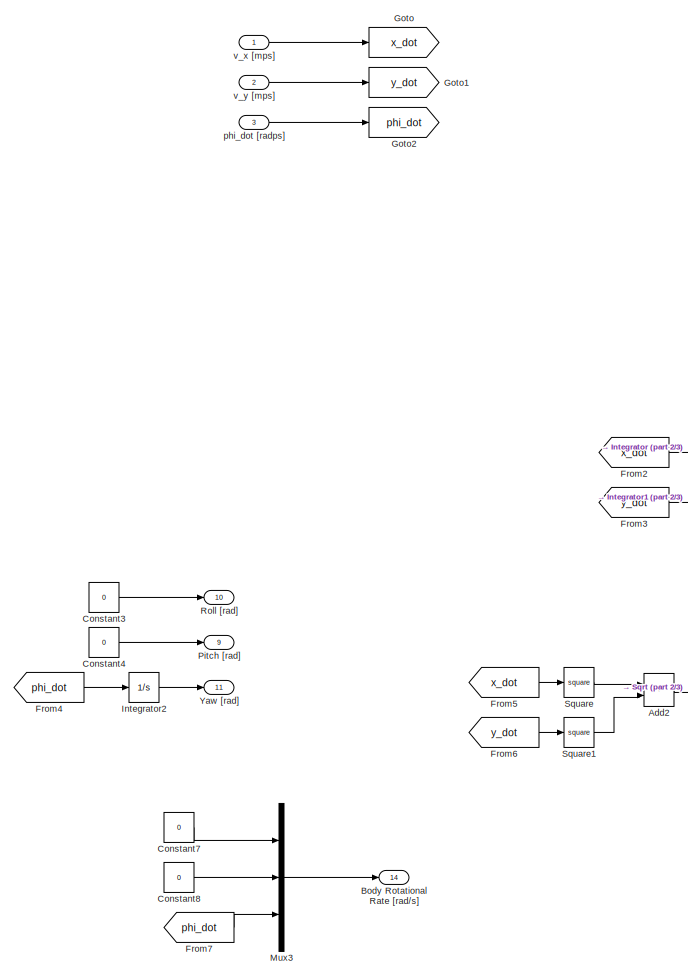
[diagram: Vehicle/Vehicle Model - part 1/3, left side, full height]
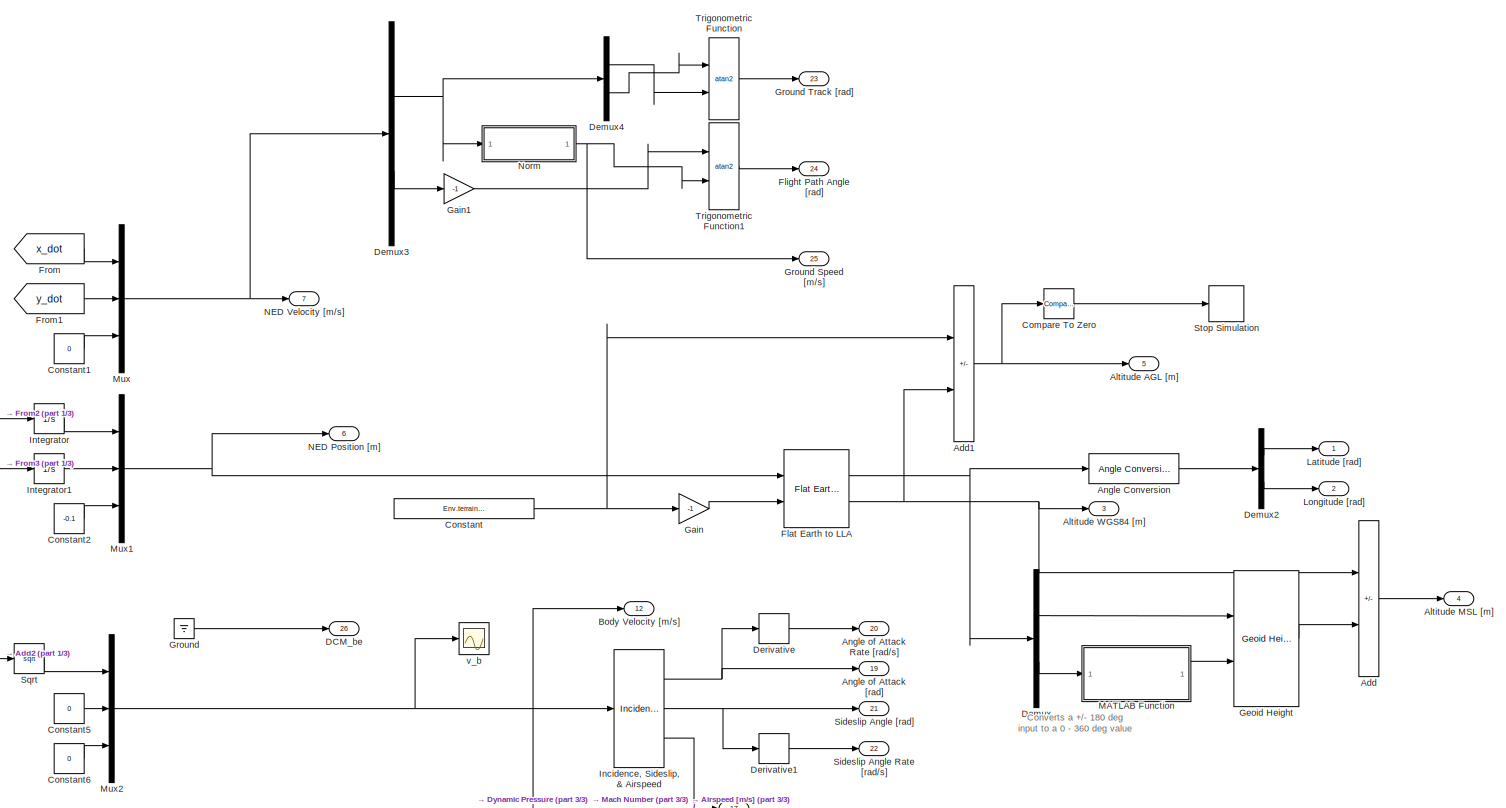
[diagram: Vehicle/Vehicle Model - part 2/3, central region]
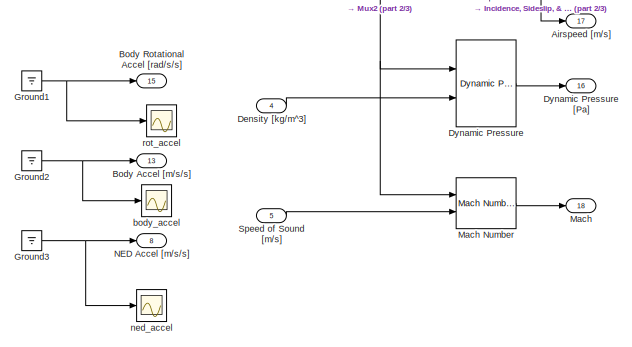
[diagram: Vehicle/Vehicle Model - part 3/3, bottom center region]
BLOCK [SubSystem] Vehicle/Vehicle Model
  Ports = [5, 26]
  RequestExecContextInheritance = off
BLOCK [Sum] Vehicle/Vehicle Model/Add
  IconShape = rectangular
  Inputs = +-
  Ports = [2, 1]
BLOCK [Sum] Vehicle/Vehicle Model/Add1
  IconShape = rectangular
  Inputs = -+
  Ports = [2, 1]
BLOCK [Sum] Vehicle/Vehicle Model/Add2
  IconShape = rectangular
  Ports = [2, 1]
BLOCK [Outport] Vehicle/Vehicle Model/Airspeed [m//s]
  Port = 17
BLOCK [Outport] Vehicle/Vehicle Model/Altitude AGL [m]
  Port = 5
BLOCK [Outport] Vehicle/Vehicle Model/Altitude MSL [m]
  Port = 4
BLOCK [Outport] Vehicle/Vehicle Model/Altitude WGS84 [m]
  Port = 3
BLOCK [Reference] Vehicle/Vehicle Model/Angle Conversion  REF=aerolibconvert2/Angle Conversion
  Ports = [1, 1]
  SourceBlock = aerolibconvert2/Angle Conversion
  SourceProductBaseCode = AE
  SourceType = Angle Conversion
BLOCK [Outport] Vehicle/Vehicle Model/Angle of Attack Rate [rad//s]
  Port = 20
BLOCK [Outport] Vehicle/Vehicle Model/Angle of Attack [rad]
  Port = 19
BLOCK [Outport] Vehicle/Vehicle Model/Body Accel [m//s//s]
  Port = 13
BLOCK [Outport] Vehicle/Vehicle Model/Body Rotational Accel [rad//s//s]
  Port = 15
BLOCK [Outport] Vehicle/Vehicle Model/Body Rotational Rate [rad//s]
  Port = 14
BLOCK [Outport] Vehicle/Vehicle Model/Body Velocity [m//s]
  Port = 12
BLOCK [Reference] Vehicle/Vehicle Model/Compare To Zero  REF=simulink/Logic and Bit
Operations/Compare
To Zero
  Ports = [1, 1]
  SourceBlock = simulink/Logic and Bit\nOperations/Compare\nTo Zero
  SourceProductBaseCode = SL
  SourceType = Compare To Zero
BLOCK [Constant] Vehicle/Vehicle Model/Constant
  Value = Env.terrain_alt_wgs84
BLOCK [Constant] Vehicle/Vehicle Model/Constant1
  Value = 0
BLOCK [Constant] Vehicle/Vehicle Model/Constant2
  Value = -0.1
BLOCK [Constant] Vehicle/Vehicle Model/Constant3
  Value = 0
BLOCK [Constant] Vehicle/Vehicle Model/Constant4
  Value = 0
BLOCK [Constant] Vehicle/Vehicle Model/Constant5
  Value = 0
BLOCK [Constant] Vehicle/Vehicle Model/Constant6
  Value = 0
BLOCK [Constant] Vehicle/Vehicle Model/Constant7
  Value = 0
BLOCK [Constant] Vehicle/Vehicle Model/Constant8
  Value = 0
BLOCK [Outport] Vehicle/Vehicle Model/DCM_be
  Port = 26
BLOCK [Demux] Vehicle/Vehicle Model/Demux
  Outputs = 2
  Ports = [1, 2]
BLOCK [Demux] Vehicle/Vehicle Model/Demux2
  Outputs = 2
  Ports = [1, 2]
BLOCK [Demux] Vehicle/Vehicle Model/Demux3
  Outputs = [2 1]
  Ports = [1, 2]
BLOCK [Demux] Vehicle/Vehicle Model/Demux4
  Outputs = 2
  Ports = [1, 2]
BLOCK [Inport] Vehicle/Vehicle Model/Density [kg//m^3]
  Port = 4
BLOCK [Derivative] Vehicle/Vehicle Model/Derivative
BLOCK [Derivative] Vehicle/Vehicle Model/Derivative1
BLOCK [Reference] Vehicle/Vehicle Model/Dynamic Pressure  REF=aerolibasang/Dynamic Pressure
  Ports = [2, 1]
  SourceBlock = aerolibasang/Dynamic Pressure
  SourceProductBaseCode = AE
  SourceType = Dynamic Pressure
BLOCK [Outport] Vehicle/Vehicle Model/Dynamic Pressure [Pa]
  Port = 16
BLOCK [Reference] Vehicle/Vehicle Model/Flat Earth to LLA  REF=aerolibtransform2/Flat Earth to LLA
  Ports = [2, 2]
  SourceBlock = aerolibtransform2/Flat Earth to LLA
  SourceProductBaseCode = AE
  SourceType = Flat Earth to LLA
BLOCK [Outport] Vehicle/Vehicle Model/Flight Path Angle [rad]
  Port = 24
BLOCK [From] Vehicle/Vehicle Model/From
  GotoTag = x_dot
BLOCK [From] Vehicle/Vehicle Model/From1
  GotoTag = y_dot
BLOCK [From] Vehicle/Vehicle Model/From2
  GotoTag = x_dot
BLOCK [From] Vehicle/Vehicle Model/From3
  GotoTag = y_dot
BLOCK [From] Vehicle/Vehicle Model/From4
  GotoTag = phi_dot
BLOCK [From] Vehicle/Vehicle Model/From5
  GotoTag = x_dot
BLOCK [From] Vehicle/Vehicle Model/From6
  GotoTag = y_dot
BLOCK [From] Vehicle/Vehicle Model/From7
  GotoTag = phi_dot
BLOCK [Gain] Vehicle/Vehicle Model/Gain
  Gain = -1
BLOCK [Gain] Vehicle/Vehicle Model/Gain1
  Gain = -1
BLOCK [Reference] Vehicle/Vehicle Model/Geoid Height  REF=aerolibgravity2/Geoid Height
  Ports = [2, 1]
  SourceBlock = aerolibgravity2/Geoid Height
  SourceProductBaseCode = AE
  SourceType = Geoid Height
BLOCK [Goto] Vehicle/Vehicle Model/Goto
  GotoTag = x_dot
BLOCK [Goto] Vehicle/Vehicle Model/Goto1
  GotoTag = y_dot
BLOCK [Goto] Vehicle/Vehicle Model/Goto2
  GotoTag = phi_dot
BLOCK [Ground] Vehicle/Vehicle Model/Ground
BLOCK [Outport] Vehicle/Vehicle Model/Ground Speed [m//s]
  Port = 25
BLOCK [Outport] Vehicle/Vehicle Model/Ground Track [rad]
  Port = 23
BLOCK [Ground] Vehicle/Vehicle Model/Ground1
BLOCK [Ground] Vehicle/Vehicle Model/Ground2
BLOCK [Ground] Vehicle/Vehicle Model/Ground3
BLOCK [Reference] Vehicle/Vehicle Model/Incidence, Sideslip, & Airspeed  REF=aerolibasang/Incidence, Sideslip,
& Airspeed
  Ports = [1, 3]
  SourceBlock = aerolibasang/Incidence, Sideslip,\n& Airspeed
  SourceProductBaseCode = AE
  SourceType = Incidence,Sideslip,&Airspeed
BLOCK [Integrator] Vehicle/Vehicle Model/Integrator
  Ports = [1, 1]
BLOCK [Integrator] Vehicle/Vehicle Model/Integrator1
  Ports = [1, 1]
BLOCK [Integrator] Vehicle/Vehicle Model/Integrator2
  Ports = [1, 1]
BLOCK [Outport] Vehicle/Vehicle Model/Latitude [rad]
BLOCK [Outport] Vehicle/Vehicle Model/Longitude [rad]
  Port = 2
BLOCK [SubSystem] Vehicle/Vehicle Model/MATLAB Function
  ErrorFcn = Stateflow.Translate.translate
  PermitHierarchicalResolution = ExplicitOnly
  Ports = [1, 1]
  RequestExecContextInheritance = off
  SFBlockType = MATLAB Function
  TreatAsAtomicUnit = on
BLOCK [Demux] Vehicle/Vehicle Model/MATLAB Function/ Demux 
  Outputs = 1
  Ports = [1, 1]
BLOCK [S-Function] Vehicle/Vehicle Model/MATLAB Function/ SFunction 
  EnableBusSupport = on
  FunctionName = sf_sfun
  PortCounts = [1 2]
  Ports = [1, 2]
  SFcnIsStateOwnerBlock = off
  SFunctionDeploymentMode = off
  Tag = Stateflow S-Function 5
BLOCK [Terminator] Vehicle/Vehicle Model/MATLAB Function/ Terminator 
BLOCK [Inport] Vehicle/Vehicle Model/MATLAB Function/ang
BLOCK [Outport] Vehicle/Vehicle Model/MATLAB Function/ret
BLOCK [Outport] Vehicle/Vehicle Model/Mach
  Port = 18
BLOCK [Reference] Vehicle/Vehicle Model/Mach Number  REF=aerolibasang/Mach Number
  Ports = [2, 1]
  SourceBlock = aerolibasang/Mach Number
  SourceProductBaseCode = AE
  SourceType = Mach Number
BLOCK [Mux] Vehicle/Vehicle Model/Mux
  DisplayOption = bar
  Inputs = 3
  Ports = [3, 1]
BLOCK [Mux] Vehicle/Vehicle Model/Mux1
  DisplayOption = bar
  Inputs = 3
  Ports = [3, 1]
BLOCK [Mux] Vehicle/Vehicle Model/Mux2
  DisplayOption = bar
  Inputs = 3
  Ports = [3, 1]
BLOCK [Mux] Vehicle/Vehicle Model/Mux3
  DisplayOption = bar
  Inputs = 3
  Ports = [3, 1]
BLOCK [Outport] Vehicle/Vehicle Model/NED Accel [m//s//s]
  Port = 8
BLOCK [Outport] Vehicle/Vehicle Model/NED Position [m]
  Port = 6
BLOCK [Outport] Vehicle/Vehicle Model/NED Velocity [m//s]
  Port = 7
BLOCK [SubSystem] Vehicle/Vehicle Model/Norm
  Ports = [1, 1]
  RequestExecContextInheritance = off
BLOCK [Inport] Vehicle/Vehicle Model/Norm/2D Vector
BLOCK [Outport] Vehicle/Vehicle Model/Norm/Norm
BLOCK [Product] Vehicle/Vehicle Model/Norm/Product
  Ports = [2, 1]
BLOCK [Sqrt] Vehicle/Vehicle Model/Norm/Sqrt
BLOCK [Sum] Vehicle/Vehicle Model/Norm/Sum of Elements
  IconShape = rectangular
  Inputs = +
  Ports = [1, 1]
BLOCK [Outport] Vehicle/Vehicle Model/Pitch [rad]
  Port = 9
BLOCK [Outport] Vehicle/Vehicle Model/Roll [rad]
  Port = 10
BLOCK [Outport] Vehicle/Vehicle Model/Sideslip Angle Rate [rad//s]
  Port = 22
BLOCK [Outport] Vehicle/Vehicle Model/Sideslip Angle [rad]
  Port = 21
BLOCK [Inport] Vehicle/Vehicle Model/Speed of Sound [m//s]
  Port = 5
BLOCK [Sqrt] Vehicle/Vehicle Model/Sqrt
BLOCK [Math] Vehicle/Vehicle Model/Square
  Operator = square
  Ports = [1, 1]
BLOCK [Math] Vehicle/Vehicle Model/Square1
  Operator = square
  Ports = [1, 1]
BLOCK [Stop] Vehicle/Vehicle Model/Stop Simulation
BLOCK [Trigonometry] Vehicle/Vehicle Model/Trigonometric Function
  Operator = atan2
  Ports = [2, 1]
BLOCK [Trigonometry] Vehicle/Vehicle Model/Trigonometric Function1
  Operator = atan2
  Ports = [2, 1]
BLOCK [Outport] Vehicle/Vehicle Model/Yaw [rad]
  Port = 11
BLOCK [Scope] Vehicle/Vehicle Model/body_accel
  Floating = off
  NumInputPorts = 1
  Ports = [1]
  ScopeSpecificationString = Simulink.scopes.TimeScopeBlockCfg('CurrentConfiguration', extmgr.ConfigurationSet(extmgr.Configuration('Core','General UI',true),extmgr.Configuration('Core','Source UI',true),extmgr.Configuration('Sources','WiredSimulink',true,'DataLoggingVariableName','ScopeData1'),extmgr.Configuration('Visuals','Time Domain',true,'SerializedDisplays',{struct('MinYLimReal','-0.01069','MaxYLimReal','0.00066','YLab...<+1462ch>
BLOCK [Scope] Vehicle/Vehicle Model/ned_accel
  Floating = off
  NumInputPorts = 1
  Ports = [1]
  ScopeSpecificationString = Simulink.scopes.TimeScopeBlockCfg('CurrentConfiguration', extmgr.ConfigurationSet(extmgr.Configuration('Core','General UI',true),extmgr.Configuration('Core','Source UI',true),extmgr.Configuration('Sources','WiredSimulink',true,'DataLoggingVariableName','ScopeData2'),extmgr.Configuration('Visuals','Time Domain',true,'SerializedDisplays',{struct('MinYLimReal','-0.01267','MaxYLimReal','0.00759','YLab...<+1462ch>
BLOCK [Inport] Vehicle/Vehicle Model/phi_dot [radps]
  Port = 3
BLOCK [Scope] Vehicle/Vehicle Model/rot_accel
  Floating = off
  NumInputPorts = 1
  Ports = [1]
  ScopeSpecificationString = Simulink.scopes.TimeScopeBlockCfg('CurrentConfiguration', extmgr.ConfigurationSet(extmgr.Configuration('Core','General UI',true),extmgr.Configuration('Core','Source UI',true),extmgr.Configuration('Sources','WiredSimulink',true,'DataLoggingVariableName','ScopeData3'),extmgr.Configuration('Visuals','Time Domain',true,'SerializedDisplays',{struct('MinYLimReal','-0.01474','MaxYLimReal','0.01121','YLab...<+1464ch>
BLOCK [Scope] Vehicle/Vehicle Model/v_b
  Floating = off
  NumInputPorts = 1
  Ports = [1]
  ScopeSpecificationString = Simulink.scopes.TimeScopeBlockCfg('CurrentConfiguration', extmgr.ConfigurationSet(extmgr.Configuration('Core','General UI',true),extmgr.Configuration('Core','Source UI',true),extmgr.Configuration('Sources','WiredSimulink',true,'DataLoggingVariableName','ScopeData2'),extmgr.Configuration('Visuals','Time Domain',true,'SerializedDisplays',{struct('MinYLimReal','-0.12735','MaxYLimReal','1.12526','YLab...<+1459ch>
BLOCK [Inport] Vehicle/Vehicle Model/v_x [mps]
BLOCK [Inport] Vehicle/Vehicle Model/v_y [mps]
  Port = 2
BLOCK [Outport] Vehicle/Vehicle State
BLOCK [Scope] body_accel
  Floating = off
  NumInputPorts = 1
  Ports = [1]
  ScopeSpecificationString = Simulink.scopes.TimeScopeBlockCfg('CurrentConfiguration', extmgr.ConfigurationSet(extmgr.Configuration('Core','General UI',true),extmgr.Configuration('Core','Source UI',true),extmgr.Configuration('Sources','WiredSimulink',true,'DataLoggingVariableName','ScopeData1'),extmgr.Configuration('Visuals','Time Domain',true,'SerializedDisplays',{struct('MinYLimReal','-11.0633','MaxYLimReal','25.20896','YLa...<+1546ch>
BLOCK [Scope] ned_pos
  Floating = off
  NumInputPorts = 1
  Ports = [1]
  ScopeSpecificationString = Simulink.scopes.TimeScopeBlockCfg('CurrentConfiguration', extmgr.ConfigurationSet(extmgr.Configuration('Core','General UI',true),extmgr.Configuration('Core','Source UI',true),extmgr.Configuration('Sources','WiredSimulink',true,'DataLoggingVariableName','ScopeData2'),extmgr.Configuration('Visuals','Time Domain',true,'SerializedDisplays',{struct('MinYLimReal','-11.0633','MaxYLimReal','25.20896','YLa...<+1546ch>
BLOCK [Scope] ned_vel
  Floating = off
  NumInputPorts = 1
  Ports = [1]
  ScopeSpecificationString = Simulink.scopes.TimeScopeBlockCfg('CurrentConfiguration', extmgr.ConfigurationSet(extmgr.Configuration('Core','General UI',true),extmgr.Configuration('Core','Source UI',true),extmgr.Configuration('Sources','WiredSimulink',true,'DataLoggingVariableName','ScopeData3'),extmgr.Configuration('Visuals','Time Domain',true,'SerializedDisplays',{struct('MinYLimReal','-0.29451','MaxYLimReal','1.26069','YLab...<+1546ch>
ANNOTATION Analog: Raw voltages measured at the FMU, should be between 0 and 3.3V
ANNOTATION Battery: The mRo Power Zero module outputs 1V for 15.30 V at the battery
ANNOTATION Battery: The mRo Power Zero module outputs 1V for 33.594 amps drawn from the battery
ANNOTATION Battery: This is the amp draw from the battery
ANNOTATION Battery: This is the voltage measured by the FMU at the power port. It is typically the battery voltage scaled by the power module voltage divider.
ANNOTATION Battery: This is the voltage measured by the FMU power port. It is typically the current, scaled by the power module mA / volt
ANNOTATION Environment: nT to uT conversion
ANNOTATION Flight Management Unit/Navigation Filter Model: Need to either: Add models of noise to state data simulating the nav filter Implement our nav filter in Simulink (preferred)
ANNOTATION Flight Management Unit/Navigation Filter Model/IAS: Avoid negative values
ANNOTATION Flight Management Unit/Navigation Filter Model/Pressure Altitude: Avoid negative values
ANNOTATION Flight Management Unit/Sensor Models/GNSS: Simulates the lower sampling rate of GNSS receivers
ANNOTATION Flight Management Unit/Sensor Models/GNSS/Triggered Subsystem: Convert NED position noise to an LLA delta using the current LLA position as the NED to LLA reference point.
ANNOTATION Flight Management Unit/Sensor Models/GNSS/Triggered Subsystem: This block grabs the current UTC date vector to compute an initial GNSS week number and time of week. The week number and time of week are updated based on sim time, to provide accurate timing to any algorithms relying on the GNSS TOW. Leap seconds are ignored, but that should be fine for this use case.
ANNOTATION Pilot Input: SBUS Data: New data: whether new SBUS data was received Lost Frame: whether a frame of data was lost from the transmitter to receiver Failsafe: the receiver enters failsafe mode when many lost frames occur in a row Ch 17 / Ch 18: two boolean (on / off) values availble on some SBUS transmitters and receivers Channel Data: 16 channels of data from transmitter sticks and switches. 11 bits wide limiti...<+140ch>
ANNOTATION Vehicle: The dynamics can be input here using the Motor Cmds as input
ANNOTATION Vehicle/Vehicle Model: Converts a +/- 180 deg input to a 0 - 360 deg value
LINE Analog/Bus Creator:1 -> Analog/Analog Data:1
LINE Analog/Constant:1 -> Analog/Selector1:1
LINE Analog/Mux:1 -> Analog/Bus Creator:1
LINE Analog/Random Number:1 -> Analog/Mux:1
LINE Analog/Selector1:1 -> Analog/Mux:2
LINE Analog:1 -> Flight Management Unit:4
LINE Battery/Bus Creator:1 -> Battery/Battery Data:1
LINE Battery/Constant1:1 -> Battery/Divide:1
LINE Battery/Constant2:1 -> Battery/Divide:2
LINE Battery/Constant3:1 -> Battery/Divide1:2
LINE Battery/Constant:1 -> Battery/Divide1:1
LINE Battery/Divide1:1 -> Battery/Bus Creator:1
LINE Battery/Divide:1 -> Battery/Bus Creator:2
LINE Battery:1 -> Flight Management Unit:5
NET Bus Selector:1 -> UAV Animation:1, ned_pos:1
LINE Bus Selector:2 -> Mux:1
LINE Bus Selector:3 -> Mux:2
LINE Bus Selector:4 -> Mux:3
LINE Bus Selector:5 -> body_accel:1
LINE Bus Selector:6 -> ned_vel:1
LINE Effector Dynamics/Bus Selector:1 -> Effector Dynamics/Selector1:1
LINE Effector Dynamics/Commands:1 -> Effector Dynamics/Bus Selector:1
LINE Effector Dynamics/Selector1:1 -> Effector Dynamics/Motor Commands:1
LINE Effector Dynamics:1 -> Vehicle:1
LINE Environment/Angle Conversion4:1 -> Environment/Goto:1
LINE Environment/Angle Conversion5:1 -> Environment/Goto1:1
LINE Environment/Bus Creator:1 -> Environment/Environment:1
LINE Environment/Bus Selector:1 -> Environment/Angle Conversion4:1
LINE Environment/Bus Selector:2 -> Environment/Angle Conversion5:1
LINE Environment/Bus Selector:3 -> Environment/Goto2:1
LINE Environment/Bus Selector:4 -> Environment/COESA Atmosphere Model:1
LINE Environment/COESA Atmosphere Model:1 -> Environment/Bus Creator:1
LINE Environment/COESA Atmosphere Model:2 -> Environment/Bus Creator:2
LINE Environment/COESA Atmosphere Model:3 -> Environment/Bus Creator:3
LINE Environment/COESA Atmosphere Model:4 -> Environment/Bus Creator:4
LINE Environment/Constant:1 -> Environment/Gain:1
LINE Environment/From6:1 -> Environment/Mux:2
LINE Environment/From7:1 -> Environment/Mux:1
LINE Environment/From8:1 -> Environment/Mux:3
LINE Environment/Gain:1 -> Environment/Bus Creator:6
LINE Environment/Mux:1 -> Environment/WGS84 Gravity Model  :1
LINE Environment/Vehicle State:1 -> Environment/Bus Selector:1
LINE Environment/WGS84 Gravity Model  :1 -> Environment/Bus Creator:5
LINE Environment:1 -> Flight Management Unit:2
LINE Flight Management Unit/Analog:1 -> Flight Management Unit/Sensor Models:4
LINE Flight Management Unit/Battery:1 -> Flight Management Unit/Sensor Models:5
LINE Flight Management Unit/Bus Selector1:1 -> Flight Management Unit/Subsystem:2
NET Flight Management Unit/Bus Selector2:1 -> Flight Management Unit/Bus Selector1:1, Flight Management Unit/Effector Cmds:1
NET Flight Management Unit/Environment:1 -> Flight Management Unit/Navigation Filter Model:1, Flight Management Unit/Sensor Models:1
LINE Flight Management Unit/Navigation Filter Model/Bus Creator:1 -> Flight Management Unit/Navigation Filter Model/Navigation Filter Data:1
LINE Flight Management Unit/Navigation Filter Model/Bus Selector1:1 -> Flight Management Unit/Navigation Filter Model/Subtract:1
LINE Flight Management Unit/Navigation Filter Model/Bus Selector1:10 -> Flight Management Unit/Navigation Filter Model/Gain9:1
LINE Flight Management Unit/Navigation Filter Model/Bus Selector1:11 -> Flight Management Unit/Navigation Filter Model/Gain10:1
LINE Flight Management Unit/Navigation Filter Model/Bus Selector1:12 -> Flight Management Unit/Navigation Filter Model/Gain11:1
LINE Flight Management Unit/Navigation Filter Model/Bus Selector1:13 -> Flight Management Unit/Navigation Filter Model/Gain12:1
LINE Flight Management Unit/Navigation Filter Model/Bus Selector1:14 -> Flight Management Unit/Navigation Filter Model/Gain13:1
LINE Flight Management Unit/Navigation Filter Model/Bus Selector1:15 -> Flight Management Unit/Navigation Filter Model/Gain14:1
LINE Flight Management Unit/Navigation Filter Model/Bus Selector1:16 -> Flight Management Unit/Navigation Filter Model/Gain15:1
LINE Flight Management Unit/Navigation Filter Model/Bus Selector1:2 -> Flight Management Unit/Navigation Filter Model/Subtract1:1
LINE Flight Management Unit/Navigation Filter Model/Bus Selector1:3 -> Flight Management Unit/Navigation Filter Model/Gain2:1
LINE Flight Management Unit/Navigation Filter Model/Bus Selector1:4 -> Flight Management Unit/Navigation Filter Model/Gain3:1
LINE Flight Management Unit/Navigation Filter Model/Bus Selector1:5 -> Flight Management Unit/Navigation Filter Model/Gain4:1
LINE Flight Management Unit/Navigation Filter Model/Bus Selector1:6 -> Flight Management Unit/Navigation Filter Model/Gain5:1
LINE Flight Management Unit/Navigation Filter Model/Bus Selector1:7 -> Flight Management Unit/Navigation Filter Model/Gain6:1
LINE Flight Management Unit/Navigation Filter Model/Bus Selector1:8 -> Flight Management Unit/Navigation Filter Model/Gain7:1
LINE Flight Management Unit/Navigation Filter Model/Bus Selector1:9 -> Flight Management Unit/Navigation Filter Model/Gain8:1
LINE Flight Management Unit/Navigation Filter Model/Bus Selector:1 -> Flight Management Unit/Navigation Filter Model/Gain16:1
LINE Flight Management Unit/Navigation Filter Model/Bus Selector:2 -> Flight Management Unit/Navigation Filter Model/Gain17:1
LINE Flight Management Unit/Navigation Filter Model/Constant1:1 -> Flight Management Unit/Navigation Filter Model/Bus Creator:19
LINE Flight Management Unit/Navigation Filter Model/Constant2:1 -> Flight Management Unit/Navigation Filter Model/Bus Creator:20
LINE Flight Management Unit/Navigation Filter Model/Constant3:1 -> Flight Management Unit/Navigation Filter Model/Subtract1:2
LINE Flight Management Unit/Navigation Filter Model/Constant4:1 -> Flight Management Unit/Navigation Filter Model/Subtract:2
LINE Flight Management Unit/Navigation Filter Model/Constant5:1 -> Flight Management Unit/Navigation Filter Model/Bus Creator:24
LINE Flight Management Unit/Navigation Filter Model/Constant6:1 -> Flight Management Unit/Navigation Filter Model/Bus Creator:25
LINE Flight Management Unit/Navigation Filter Model/Constant7:1 -> Flight Management Unit/Navigation Filter Model/Bus Creator:26
LINE Flight Management Unit/Navigation Filter Model/Constant:1 -> Flight Management Unit/Navigation Filter Model/Bus Creator:1
LINE Flight Management Unit/Navigation Filter Model/Environment:1 -> Flight Management Unit/Navigation Filter Model/Bus Selector:1
LINE Flight Management Unit/Navigation Filter Model/Gain10:1 -> Flight Management Unit/Navigation Filter Model/Bus Creator:12
LINE Flight Management Unit/Navigation Filter Model/Gain11:1 -> Flight Management Unit/Navigation Filter Model/Bus Creator:13
LINE Flight Management Unit/Navigation Filter Model/Gain12:1 -> Flight Management Unit/Navigation Filter Model/Bus Creator:14
LINE Flight Management Unit/Navigation Filter Model/Gain13:1 -> Flight Management Unit/Navigation Filter Model/Bus Creator:15
LINE Flight Management Unit/Navigation Filter Model/Gain14:1 -> Flight Management Unit/Navigation Filter Model/Bus Creator:16
NET Flight Management Unit/Navigation Filter Model/Gain15:1 -> Flight Management Unit/Navigation Filter Model/Bus Creator:17, Flight Management Unit/Navigation Filter Model/IAS:1
LINE Flight Management Unit/Navigation Filter Model/Gain16:1 -> Flight Management Unit/Navigation Filter Model/Bus Creator:21
NET Flight Management Unit/Navigation Filter Model/Gain17:1 -> Flight Management Unit/Navigation Filter Model/Bus Creator:22, Flight Management Unit/Navigation Filter Model/Pressure Altitude:1
LINE Flight Management Unit/Navigation Filter Model/Gain1:1 -> Flight Management Unit/Navigation Filter Model/Bus Creator:3
LINE Flight Management Unit/Navigation Filter Model/Gain2:1 -> Flight Management Unit/Navigation Filter Model/Bus Creator:4
LINE Flight Management Unit/Navigation Filter Model/Gain3:1 -> Flight Management Unit/Navigation Filter Model/Bus Creator:5
LINE Flight Management Unit/Navigation Filter Model/Gain4:1 -> Flight Management Unit/Navigation Filter Model/Bus Creator:6
LINE Flight Management Unit/Navigation Filter Model/Gain5:1 -> Flight Management Unit/Navigation Filter Model/Bus Creator:7
LINE Flight Management Unit/Navigation Filter Model/Gain6:1 -> Flight Management Unit/Navigation Filter Model/Bus Creator:8
LINE Flight Management Unit/Navigation Filter Model/Gain7:1 -> Flight Management Unit/Navigation Filter Model/Bus Creator:9
LINE Flight Management Unit/Navigation Filter Model/Gain8:1 -> Flight Management Unit/Navigation Filter Model/Bus Creator:10
LINE Flight Management Unit/Navigation Filter Model/Gain9:1 -> Flight Management Unit/Navigation Filter Model/Bus Creator:11
LINE Flight Management Unit/Navigation Filter Model/Gain:1 -> Flight Management Unit/Navigation Filter Model/Bus Creator:2
LINE Flight Management Unit/Navigation Filter Model/IAS/Add:1 -> Flight Management Unit/Navigation Filter Model/IAS/Pow:1
LINE Flight Management Unit/Navigation Filter Model/IAS/Constant1:1 -> Flight Management Unit/Navigation Filter Model/IAS/Pow:2
LINE Flight Management Unit/Navigation Filter Model/IAS/Constant2:1 -> Flight Management Unit/Navigation Filter Model/IAS/Subtract:2
LINE Flight Management Unit/Navigation Filter Model/IAS/Constant:1 -> Flight Management Unit/Navigation Filter Model/IAS/Add:2
LINE Flight Management Unit/Navigation Filter Model/IAS/Differential Pressure [Pa]:1 -> Flight Management Unit/Navigation Filter Model/IAS/Saturation:1
LINE Flight Management Unit/Navigation Filter Model/IAS/Divide:1 -> Flight Management Unit/Navigation Filter Model/IAS/Add:1
LINE Flight Management Unit/Navigation Filter Model/IAS/Multiply:1 -> Flight Management Unit/Navigation Filter Model/IAS/Sqrt:1
LINE Flight Management Unit/Navigation Filter Model/IAS/Pow:1 -> Flight Management Unit/Navigation Filter Model/IAS/Subtract:1
LINE Flight Management Unit/Navigation Filter Model/IAS/Product:1 -> Flight Management Unit/Navigation Filter Model/IAS/IAS [m//s]:1
LINE Flight Management Unit/Navigation Filter Model/IAS/Saturation:1 -> Flight Management Unit/Navigation Filter Model/IAS/Divide:1
LINE Flight Management Unit/Navigation Filter Model/IAS/Sqrt:1 -> Flight Management Unit/Navigation Filter Model/IAS/Product:1
LINE Flight Management Unit/Navigation Filter Model/IAS/Standard Sea Level Pressure [Pa]:1 -> Flight Management Unit/Navigation Filter Model/IAS/Divide:2
LINE Flight Management Unit/Navigation Filter Model/IAS/Standard Sea Level Speed of Sound [m//s]:1 -> Flight Management Unit/Navigation Filter Model/IAS/Product:2
LINE Flight Management Unit/Navigation Filter Model/IAS/Subtract:1 -> Flight Management Unit/Navigation Filter Model/IAS/Multiply:1
LINE Flight Management Unit/Navigation Filter Model/IAS:1 -> Flight Management Unit/Navigation Filter Model/Bus Creator:18
LINE Flight Management Unit/Navigation Filter Model/Pressure Altitude/Acceleration due to Gravity [m//s//s]:1 -> Flight Management Unit/Navigation Filter Model/Pressure Altitude/Product:2
LINE Flight Management Unit/Navigation Filter Model/Pressure Altitude/Constant:1 -> Flight Management Unit/Navigation Filter Model/Pressure Altitude/Subtract:1
LINE Flight Management Unit/Navigation Filter Model/Pressure Altitude/Divide1:1 -> Flight Management Unit/Navigation Filter Model/Pressure Altitude/Pow:2
LINE Flight Management Unit/Navigation Filter Model/Pressure Altitude/Divide2:1 -> Flight Management Unit/Navigation Filter Model/Pressure Altitude/Pressure Altitude [m]:1
LINE Flight Management Unit/Navigation Filter Model/Pressure Altitude/Divide:1 -> Flight Management Unit/Navigation Filter Model/Pressure Altitude/Pow:1
LINE Flight Management Unit/Navigation Filter Model/Pressure Altitude/Gas Constant [J//kg//mol]:1 -> Flight Management Unit/Navigation Filter Model/Pressure Altitude/Product1:2
LINE Flight Management Unit/Navigation Filter Model/Pressure Altitude/Lapse Rate [K//m]1:1 -> Flight Management Unit/Navigation Filter Model/Pressure Altitude/Divide2:2
LINE Flight Management Unit/Navigation Filter Model/Pressure Altitude/Lapse Rate [K//m]:1 -> Flight Management Unit/Navigation Filter Model/Pressure Altitude/Product1:1
LINE Flight Management Unit/Navigation Filter Model/Pressure Altitude/Molecular Mass Air [kg//mol]:1 -> Flight Management Unit/Navigation Filter Model/Pressure Altitude/Product:1
LINE Flight Management Unit/Navigation Filter Model/Pressure Altitude/Pow:1 -> Flight Management Unit/Navigation Filter Model/Pressure Altitude/Subtract:2
LINE Flight Management Unit/Navigation Filter Model/Pressure Altitude/Product1:1 -> Flight Management Unit/Navigation Filter Model/Pressure Altitude/Divide1:1
LINE Flight Management Unit/Navigation Filter Model/Pressure Altitude/Product:1 -> Flight Management Unit/Navigation Filter Model/Pressure Altitude/Divide1:2
LINE Flight Management Unit/Navigation Filter Model/Pressure Altitude/Saturation1:1 -> Flight Management Unit/Navigation Filter Model/Pressure Altitude/Divide:1
LINE Flight Management Unit/Navigation Filter Model/Pressure Altitude/Standard Sea Level Pressure [Pa]:1 -> Flight Management Unit/Navigation Filter Model/Pressure Altitude/Divide:2
LINE Flight Management Unit/Navigation Filter Model/Pressure Altitude/Standard Sea Level Temperature [K]:1 -> Flight Management Unit/Navigation Filter Model/Pressure Altitude/Divide2:1
LINE Flight Management Unit/Navigation Filter Model/Pressure Altitude/Static Pressure [Pa]:1 -> Flight Management Unit/Navigation Filter Model/Pressure Altitude/Saturation1:1
LINE Flight Management Unit/Navigation Filter Model/Pressure Altitude/Subtract:1 -> Flight Management Unit/Navigation Filter Model/Pressure Altitude/Divide2:3
LINE Flight Management Unit/Navigation Filter Model/Pressure Altitude:1 -> Flight Management Unit/Navigation Filter Model/Bus Creator:23
LINE Flight Management Unit/Navigation Filter Model/Subtract1:1 -> Flight Management Unit/Navigation Filter Model/Gain1:1
LINE Flight Management Unit/Navigation Filter Model/Subtract:1 -> Flight Management Unit/Navigation Filter Model/Gain:1
LINE Flight Management Unit/Navigation Filter Model/Vehicle State:1 -> Flight Management Unit/Navigation Filter Model/Bus Selector1:1
LINE Flight Management Unit/Navigation Filter Model:1 -> Flight Management Unit/Unit Delay1:1
LINE Flight Management Unit/Pilot Commands:1 -> Flight Management Unit/Sensor Models:3
LINE Flight Management Unit/Sensor Models/Analog Data:1 -> Flight Management Unit/Sensor Models/Bus Creator:3
LINE Flight Management Unit/Sensor Models/Battery Data:1 -> Flight Management Unit/Sensor Models/Bus Creator:8
LINE Flight Management Unit/Sensor Models/Bus Creator:1 -> Flight Management Unit/Sensor Models/Sensors:1
LINE Flight Management Unit/Sensor Models/Bus Selector1:1 -> Flight Management Unit/Sensor Models/GNSS:1
LINE Flight Management Unit/Sensor Models/Bus Selector1:2 -> Flight Management Unit/Sensor Models/GNSS:2
LINE Flight Management Unit/Sensor Models/Bus Selector1:3 -> Flight Management Unit/Sensor Models/GNSS:3
LINE Flight Management Unit/Sensor Models/Bus Selector1:4 -> Flight Management Unit/Sensor Models/GNSS:4
LINE Flight Management Unit/Sensor Models/Bus Selector2:1 -> Flight Management Unit/Sensor Models/Diff Pressure Sensor:1
LINE Flight Management Unit/Sensor Models/Bus Selector3:1 -> Flight Management Unit/Sensor Models/IMU:4
LINE Flight Management Unit/Sensor Models/Bus Selector3:2 -> Flight Management Unit/Sensor Models/IMU:5
LINE Flight Management Unit/Sensor Models/Bus Selector4:1 -> Flight Management Unit/Sensor Models/Static Pressure Sensor:1
LINE Flight Management Unit/Sensor Models/Bus Selector:1 -> Flight Management Unit/Sensor Models/IMU:1
LINE Flight Management Unit/Sensor Models/Bus Selector:2 -> Flight Management Unit/Sensor Models/IMU:2
LINE Flight Management Unit/Sensor Models/Bus Selector:3 -> Flight Management Unit/Sensor Models/IMU:3
LINE Flight Management Unit/Sensor Models/Constant:1 -> Flight Management Unit/Sensor Models/Bus Creator:1
LINE Flight Management Unit/Sensor Models/Diff Pressure Sensor/Add:1 -> Flight Management Unit/Sensor Models/Diff Pressure Sensor/Saturation:1
LINE Flight Management Unit/Sensor Models/Diff Pressure Sensor/Band-Limited White Noise:1 -> Flight Management Unit/Sensor Models/Diff Pressure Sensor/Add:1
LINE Flight Management Unit/Sensor Models/Diff Pressure Sensor/Bus Creator1:1 -> Flight Management Unit/Sensor Models/Diff Pressure Sensor/Switch:3
LINE Flight Management Unit/Sensor Models/Diff Pressure Sensor/Bus Creator:1 -> Flight Management Unit/Sensor Models/Diff Pressure Sensor/Switch:1
LINE Flight Management Unit/Sensor Models/Diff Pressure Sensor/Constant1:1 -> Flight Management Unit/Sensor Models/Diff Pressure Sensor/Product:2
LINE Flight Management Unit/Sensor Models/Diff Pressure Sensor/Constant2:1 -> Flight Management Unit/Sensor Models/Diff Pressure Sensor/Bus Creator:4
LINE Flight Management Unit/Sensor Models/Diff Pressure Sensor/Constant3:1 -> Flight Management Unit/Sensor Models/Diff Pressure Sensor/Bus Creator:2
LINE Flight Management Unit/Sensor Models/Diff Pressure Sensor/Constant4:1 -> Flight Management Unit/Sensor Models/Diff Pressure Sensor/Bus Creator:1
LINE Flight Management Unit/Sensor Models/Diff Pressure Sensor/Constant5:1 -> Flight Management Unit/Sensor Models/Diff Pressure Sensor/Bus Creator1:4
LINE Flight Management Unit/Sensor Models/Diff Pressure Sensor/Constant6:1 -> Flight Management Unit/Sensor Models/Diff Pressure Sensor/Bus Creator1:2
LINE Flight Management Unit/Sensor Models/Diff Pressure Sensor/Constant7:1 -> Flight Management Unit/Sensor Models/Diff Pressure Sensor/Bus Creator1:1
LINE Flight Management Unit/Sensor Models/Diff Pressure Sensor/Constant8:1 -> Flight Management Unit/Sensor Models/Diff Pressure Sensor/Bus Creator1:3
LINE Flight Management Unit/Sensor Models/Diff Pressure Sensor/Constant9:1 -> Flight Management Unit/Sensor Models/Diff Pressure Sensor/Switch:2
LINE Flight Management Unit/Sensor Models/Diff Pressure Sensor/Constant:1 -> Flight Management Unit/Sensor Models/Diff Pressure Sensor/Add:2
LINE Flight Management Unit/Sensor Models/Diff Pressure Sensor/Pressure:1 -> Flight Management Unit/Sensor Models/Diff Pressure Sensor/Product:1
LINE Flight Management Unit/Sensor Models/Diff Pressure Sensor/Product:1 -> Flight Management Unit/Sensor Models/Diff Pressure Sensor/Add:3
LINE Flight Management Unit/Sensor Models/Diff Pressure Sensor/Saturation:1 -> Flight Management Unit/Sensor Models/Diff Pressure Sensor/Bus Creator:3
LINE Flight Management Unit/Sensor Models/Diff Pressure Sensor/Switch:1 -> Flight Management Unit/Sensor Models/Diff Pressure Sensor/Pressure Data:1
LINE Flight Management Unit/Sensor Models/Diff Pressure Sensor:1 -> Flight Management Unit/Sensor Models/Bus Creator:7
NET Flight Management Unit/Sensor Models/Environment:1 -> Flight Management Unit/Sensor Models/Bus Selector3:1, Flight Management Unit/Sensor Models/Bus Selector4:1
LINE Flight Management Unit/Sensor Models/GNSS/Altitude WGS84 [m]:1 -> Flight Management Unit/Sensor Models/GNSS/Triggered Subsystem:3
LINE Flight Management Unit/Sensor Models/GNSS/Band-Limited White Noise2:1 -> Flight Management Unit/Sensor Models/GNSS/Triggered Subsystem:6
LINE Flight Management Unit/Sensor Models/GNSS/Band-Limited White Noise:1 -> Flight Management Unit/Sensor Models/GNSS/Triggered Subsystem:5
LINE Flight Management Unit/Sensor Models/GNSS/Bus Creator:1 -> Flight Management Unit/Sensor Models/GNSS/GNSS Data:1
LINE Flight Management Unit/Sensor Models/GNSS/Clock:1 -> Flight Management Unit/Sensor Models/GNSS/Triggered Subsystem:7
LINE Flight Management Unit/Sensor Models/GNSS/Latitude [rad]:1 -> Flight Management Unit/Sensor Models/GNSS/Triggered Subsystem:1
LINE Flight Management Unit/Sensor Models/GNSS/Longitude [rad] :1 -> Flight Management Unit/Sensor Models/GNSS/Triggered Subsystem:2
LINE Flight Management Unit/Sensor Models/GNSS/NED Velocity [m//s]:1 -> Flight Management Unit/Sensor Models/GNSS/Triggered Subsystem:4
LINE Flight Management Unit/Sensor Models/GNSS/Pulse Generator:1 -> Flight Management Unit/Sensor Models/GNSS/Triggered Subsystem:trigger
LINE Flight Management Unit/Sensor Models/GNSS/Triggered Subsystem/Add1:1 -> Flight Management Unit/Sensor Models/GNSS/Triggered Subsystem/Alt MSL [m]:1
NET Flight Management Unit/Sensor Models/GNSS/Triggered Subsystem/Add2:1 -> Flight Management Unit/Sensor Models/GNSS/Triggered Subsystem/Demux3:1, Flight Management Unit/Sensor Models/GNSS/Triggered Subsystem/NED Vel [m//s]:1
LINE Flight Management Unit/Sensor Models/GNSS/Triggered Subsystem/Altitude WGS84 [m]:1 -> Flight Management Unit/Sensor Models/GNSS/Triggered Subsystem/Gain:1
LINE Flight Management Unit/Sensor Models/GNSS/Triggered Subsystem/Angle Conversion1:1 -> Flight Management Unit/Sensor Models/GNSS/Triggered Subsystem/Demux:1
LINE Flight Management Unit/Sensor Models/GNSS/Triggered Subsystem/Angle Conversion:1 -> Flight Management Unit/Sensor Models/GNSS/Triggered Subsystem/Flat Earth to LLA:3
LINE Flight Management Unit/Sensor Models/GNSS/Triggered Subsystem/Constant1:1 -> Flight Management Unit/Sensor Models/GNSS/Triggered Subsystem/Num Satellites:1
LINE Flight Management Unit/Sensor Models/GNSS/Triggered Subsystem/Constant2:1 -> Flight Management Unit/Sensor Models/GNSS/Triggered Subsystem/Horizontal Accuracy [m]:1
LINE Flight Management Unit/Sensor Models/GNSS/Triggered Subsystem/Constant3:1 -> Flight Management Unit/Sensor Models/GNSS/Triggered Subsystem/Vertical Accuracy [m]:1
LINE Flight Management Unit/Sensor Models/GNSS/Triggered Subsystem/Constant4:1 -> Flight Management Unit/Sensor Models/GNSS/Triggered Subsystem/Velocity Accuracy [m//s]:1
LINE Flight Management Unit/Sensor Models/GNSS/Triggered Subsystem/Constant5:1 -> Flight Management Unit/Sensor Models/GNSS/Triggered Subsystem/Flat Earth to LLA:4
LINE Flight Management Unit/Sensor Models/GNSS/Triggered Subsystem/Constant6:1 -> Flight Management Unit/Sensor Models/GNSS/Triggered Subsystem/Healthy:1
LINE Flight Management Unit/Sensor Models/GNSS/Triggered Subsystem/Constant7:1 -> Flight Management Unit/Sensor Models/GNSS/Triggered Subsystem/HDOP:1
LINE Flight Management Unit/Sensor Models/GNSS/Triggered Subsystem/Constant8:1 -> Flight Management Unit/Sensor Models/GNSS/Triggered Subsystem/VDOP:1
LINE Flight Management Unit/Sensor Models/GNSS/Triggered Subsystem/Constant9:1 -> Flight Management Unit/Sensor Models/GNSS/Triggered Subsystem/Track Accuracy [rad]:1
LINE Flight Management Unit/Sensor Models/GNSS/Triggered Subsystem/Constant:1 -> Flight Management Unit/Sensor Models/GNSS/Triggered Subsystem/Fix:1
LINE Flight Management Unit/Sensor Models/GNSS/Triggered Subsystem/Demux1:1 -> Flight Management Unit/Sensor Models/GNSS/Triggered Subsystem/MATLAB Function:1
LINE Flight Management Unit/Sensor Models/GNSS/Triggered Subsystem/Demux1:2 -> Flight Management Unit/Sensor Models/GNSS/Triggered Subsystem/MATLAB Function:2
LINE Flight Management Unit/Sensor Models/GNSS/Triggered Subsystem/Demux1:3 -> Flight Management Unit/Sensor Models/GNSS/Triggered Subsystem/MATLAB Function:3
LINE Flight Management Unit/Sensor Models/GNSS/Triggered Subsystem/Demux1:4 -> Flight Management Unit/Sensor Models/GNSS/Triggered Subsystem/MATLAB Function:4
LINE Flight Management Unit/Sensor Models/GNSS/Triggered Subsystem/Demux1:5 -> Flight Management Unit/Sensor Models/GNSS/Triggered Subsystem/MATLAB Function:5
LINE Flight Management Unit/Sensor Models/GNSS/Triggered Subsystem/Demux1:6 -> Flight Management Unit/Sensor Models/GNSS/Triggered Subsystem/MATLAB Function:6
LINE Flight Management Unit/Sensor Models/GNSS/Triggered Subsystem/Demux2:1 -> Flight Management Unit/Sensor Models/GNSS/Triggered Subsystem/Geoid Height:1
LINE Flight Management Unit/Sensor Models/GNSS/Triggered Subsystem/Demux2:2 -> Flight Management Unit/Sensor Models/GNSS/Triggered Subsystem/MATLAB Function1:1
NET Flight Management Unit/Sensor Models/GNSS/Triggered Subsystem/Demux3:1 -> Flight Management Unit/Sensor Models/GNSS/Triggered Subsystem/Demux4:1, Flight Management Unit/Sensor Models/GNSS/Triggered Subsystem/Norm:1
LINE Flight Management Unit/Sensor Models/GNSS/Triggered Subsystem/Demux3:2 -> Flight Management Unit/Sensor Models/GNSS/Triggered Subsystem/Terminator:1
LINE Flight Management Unit/Sensor Models/GNSS/Triggered Subsystem/Demux4:1 -> Flight Management Unit/Sensor Models/GNSS/Triggered Subsystem/Trigonometric Function:2
LINE Flight Management Unit/Sensor Models/GNSS/Triggered Subsystem/Demux4:2 -> Flight Management Unit/Sensor Models/GNSS/Triggered Subsystem/Trigonometric Function:1
LINE Flight Management Unit/Sensor Models/GNSS/Triggered Subsystem/Demux:1 -> Flight Management Unit/Sensor Models/GNSS/Triggered Subsystem/Lat [rad]:1
LINE Flight Management Unit/Sensor Models/GNSS/Triggered Subsystem/Demux:2 -> Flight Management Unit/Sensor Models/GNSS/Triggered Subsystem/Lon [rad]:1
NET Flight Management Unit/Sensor Models/GNSS/Triggered Subsystem/Flat Earth to LLA:1 -> Flight Management Unit/Sensor Models/GNSS/Triggered Subsystem/Angle Conversion1:1, Flight Management Unit/Sensor Models/GNSS/Triggered Subsystem/Demux2:1
NET Flight Management Unit/Sensor Models/GNSS/Triggered Subsystem/Flat Earth to LLA:2 -> Flight Management Unit/Sensor Models/GNSS/Triggered Subsystem/Add1:2, Flight Management Unit/Sensor Models/GNSS/Triggered Subsystem/Alt WGS84 [m]:1
LINE Flight Management Unit/Sensor Models/GNSS/Triggered Subsystem/Gain1:1 -> Flight Management Unit/Sensor Models/GNSS/Triggered Subsystem/TOW [ms]:1
LINE Flight Management Unit/Sensor Models/GNSS/Triggered Subsystem/Gain:1 -> Flight Management Unit/Sensor Models/GNSS/Triggered Subsystem/Flat Earth to LLA:2
LINE Flight Management Unit/Sensor Models/GNSS/Triggered Subsystem/Geoid Height:1 -> Flight Management Unit/Sensor Models/GNSS/Triggered Subsystem/Add1:1
LINE Flight Management Unit/Sensor Models/GNSS/Triggered Subsystem/Latitude [rad]:1 -> Flight Management Unit/Sensor Models/GNSS/Triggered Subsystem/Mux:1
LINE Flight Management Unit/Sensor Models/GNSS/Triggered Subsystem/Longitude [rad] :1 -> Flight Management Unit/Sensor Models/GNSS/Triggered Subsystem/Mux:2
LINE Flight Management Unit/Sensor Models/GNSS/Triggered Subsystem/MATLAB Function1:1 -> Flight Management Unit/Sensor Models/GNSS/Triggered Subsystem/Geoid Height:2
LINE Flight Management Unit/Sensor Models/GNSS/Triggered Subsystem/MATLAB Function:1 -> Flight Management Unit/Sensor Models/GNSS/Triggered Subsystem/Week:1
LINE Flight Management Unit/Sensor Models/GNSS/Triggered Subsystem/MATLAB Function:2 -> Flight Management Unit/Sensor Models/GNSS/Triggered Subsystem/Gain1:1
LINE Flight Management Unit/Sensor Models/GNSS/Triggered Subsystem/Mux:1 -> Flight Management Unit/Sensor Models/GNSS/Triggered Subsystem/Angle Conversion:1
LINE Flight Management Unit/Sensor Models/GNSS/Triggered Subsystem/NED Velocity [m//s]:1 -> Flight Management Unit/Sensor Models/GNSS/Triggered Subsystem/Add2:1
NET Flight Management Unit/Sensor Models/GNSS/Triggered Subsystem/Norm/2D Vector:1 -> Flight Management Unit/Sensor Models/GNSS/Triggered Subsystem/Norm/Product:1, Flight Management Unit/Sensor Models/GNSS/Triggered Subsystem/Norm/Product:2
LINE Flight Management Unit/Sensor Models/GNSS/Triggered Subsystem/Norm/Product:1 -> Flight Management Unit/Sensor Models/GNSS/Triggered Subsystem/Norm/Sum of Elements:1
LINE Flight Management Unit/Sensor Models/GNSS/Triggered Subsystem/Norm/Sqrt:1 -> Flight Management Unit/Sensor Models/GNSS/Triggered Subsystem/Norm/Norm:1
LINE Flight Management Unit/Sensor Models/GNSS/Triggered Subsystem/Norm/Sum of Elements:1 -> Flight Management Unit/Sensor Models/GNSS/Triggered Subsystem/Norm/Sqrt:1
LINE Flight Management Unit/Sensor Models/GNSS/Triggered Subsystem/Norm:1 -> Flight Management Unit/Sensor Models/GNSS/Triggered Subsystem/Speed [m//s]:1
LINE Flight Management Unit/Sensor Models/GNSS/Triggered Subsystem/Position Noise [m]:1 -> Flight Management Unit/Sensor Models/GNSS/Triggered Subsystem/Flat Earth to LLA:1
LINE Flight Management Unit/Sensor Models/GNSS/Triggered Subsystem/Trigger:1 -> Flight Management Unit/Sensor Models/GNSS/Triggered Subsystem/New Data:1
LINE Flight Management Unit/Sensor Models/GNSS/Triggered Subsystem/Trigonometric Function:1 -> Flight Management Unit/Sensor Models/GNSS/Triggered Subsystem/Track [rad]:1
LINE Flight Management Unit/Sensor Models/GNSS/Triggered Subsystem/UTC Date Vector:1 -> Flight Management Unit/Sensor Models/GNSS/Triggered Subsystem/Demux1:1
LINE Flight Management Unit/Sensor Models/GNSS/Triggered Subsystem/Velocity Noise [m//s]:1 -> Flight Management Unit/Sensor Models/GNSS/Triggered Subsystem/Add2:2
LINE Flight Management Unit/Sensor Models/GNSS/Triggered Subsystem/clock:1 -> Flight Management Unit/Sensor Models/GNSS/Triggered Subsystem/MATLAB Function:7
LINE Flight Management Unit/Sensor Models/GNSS/Triggered Subsystem:1 -> Flight Management Unit/Sensor Models/GNSS/Bus Creator:1
LINE Flight Management Unit/Sensor Models/GNSS/Triggered Subsystem:10 -> Flight Management Unit/Sensor Models/GNSS/Bus Creator:10
LINE Flight Management Unit/Sensor Models/GNSS/Triggered Subsystem:11 -> Flight Management Unit/Sensor Models/GNSS/Bus Creator:11
LINE Flight Management Unit/Sensor Models/GNSS/Triggered Subsystem:12 -> Flight Management Unit/Sensor Models/GNSS/Bus Creator:12
LINE Flight Management Unit/Sensor Models/GNSS/Triggered Subsystem:13 -> Flight Management Unit/Sensor Models/GNSS/Bus Creator:13
LINE Flight Management Unit/Sensor Models/GNSS/Triggered Subsystem:14 -> Flight Management Unit/Sensor Models/GNSS/Bus Creator:14
LINE Flight Management Unit/Sensor Models/GNSS/Triggered Subsystem:15 -> Flight Management Unit/Sensor Models/GNSS/Bus Creator:15
LINE Flight Management Unit/Sensor Models/GNSS/Triggered Subsystem:16 -> Flight Management Unit/Sensor Models/GNSS/Bus Creator:16
LINE Flight Management Unit/Sensor Models/GNSS/Triggered Subsystem:17 -> Flight Management Unit/Sensor Models/GNSS/Bus Creator:17
LINE Flight Management Unit/Sensor Models/GNSS/Triggered Subsystem:18 -> Flight Management Unit/Sensor Models/GNSS/Bus Creator:18
LINE Flight Management Unit/Sensor Models/GNSS/Triggered Subsystem:19 -> Flight Management Unit/Sensor Models/GNSS/Bus Creator:19
LINE Flight Management Unit/Sensor Models/GNSS/Triggered Subsystem:2 -> Flight Management Unit/Sensor Models/GNSS/Bus Creator:2
LINE Flight Management Unit/Sensor Models/GNSS/Triggered Subsystem:3 -> Flight Management Unit/Sensor Models/GNSS/Bus Creator:3
LINE Flight Management Unit/Sensor Models/GNSS/Triggered Subsystem:4 -> Flight Management Unit/Sensor Models/GNSS/Bus Creator:4
LINE Flight Management Unit/Sensor Models/GNSS/Triggered Subsystem:5 -> Flight Management Unit/Sensor Models/GNSS/Bus Creator:5
LINE Flight Management Unit/Sensor Models/GNSS/Triggered Subsystem:6 -> Flight Management Unit/Sensor Models/GNSS/Bus Creator:6
LINE Flight Management Unit/Sensor Models/GNSS/Triggered Subsystem:7 -> Flight Management Unit/Sensor Models/GNSS/Bus Creator:7
LINE Flight Management Unit/Sensor Models/GNSS/Triggered Subsystem:8 -> Flight Management Unit/Sensor Models/GNSS/Bus Creator:8
LINE Flight Management Unit/Sensor Models/GNSS/Triggered Subsystem:9 -> Flight Management Unit/Sensor Models/GNSS/Bus Creator:9
LINE Flight Management Unit/Sensor Models/GNSS:1 -> Flight Management Unit/Sensor Models/Bus Creator:5
LINE Flight Management Unit/Sensor Models/IMU/Accelerometer/Add:1 -> Flight Management Unit/Sensor Models/IMU/Accelerometer/Saturation:1
LINE Flight Management Unit/Sensor Models/IMU/Accelerometer/Band-Limited White Noise:1 -> Flight Management Unit/Sensor Models/IMU/Accelerometer/Add:1
LINE Flight Management Unit/Sensor Models/IMU/Accelerometer/Body Accel [m//s//s]:1 -> Flight Management Unit/Sensor Models/IMU/Accelerometer/Reshape1:1
LINE Flight Management Unit/Sensor Models/IMU/Accelerometer/Constant1:1 -> Flight Management Unit/Sensor Models/IMU/Accelerometer/Product:1
LINE Flight Management Unit/Sensor Models/IMU/Accelerometer/Constant:1 -> Flight Management Unit/Sensor Models/IMU/Accelerometer/Add:2
LINE Flight Management Unit/Sensor Models/IMU/Accelerometer/Gravitational Accel in Body Frame [m//s//s]:1 -> Flight Management Unit/Sensor Models/IMU/Accelerometer/Reshape:1
LINE Flight Management Unit/Sensor Models/IMU/Accelerometer/Product:1 -> Flight Management Unit/Sensor Models/IMU/Accelerometer/Add:3
LINE Flight Management Unit/Sensor Models/IMU/Accelerometer/Reshape1:1 -> Flight Management Unit/Sensor Models/IMU/Accelerometer/Subtract:1
LINE Flight Management Unit/Sensor Models/IMU/Accelerometer/Reshape2:1 -> Flight Management Unit/Sensor Models/IMU/Accelerometer/Accelerometer [m//s//s]:1
LINE Flight Management Unit/Sensor Models/IMU/Accelerometer/Reshape:1 -> Flight Management Unit/Sensor Models/IMU/Accelerometer/Subtract:2
LINE Flight Management Unit/Sensor Models/IMU/Accelerometer/Saturation:1 -> Flight Management Unit/Sensor Models/IMU/Accelerometer/Reshape2:1
LINE Flight Management Unit/Sensor Models/IMU/Accelerometer/Subtract:1 -> Flight Management Unit/Sensor Models/IMU/Accelerometer/Product:2
LINE Flight Management Unit/Sensor Models/IMU/Accelerometer:1 -> Flight Management Unit/Sensor Models/IMU/Bus Creator:7
NET Flight Management Unit/Sensor Models/IMU/Body Accel [m//s//s]:1 -> Flight Management Unit/Sensor Models/IMU/Accelerometer:1, Flight Management Unit/Sensor Models/IMU/Gyro:2
LINE Flight Management Unit/Sensor Models/IMU/Body Rotational Rate [rad//s]:1 -> Flight Management Unit/Sensor Models/IMU/Gyro:1
LINE Flight Management Unit/Sensor Models/IMU/Bus Creator:1 -> Flight Management Unit/Sensor Models/IMU/IMU Data:1
LINE Flight Management Unit/Sensor Models/IMU/Constant1:1 -> Flight Management Unit/Sensor Models/IMU/Bus Creator:2
LINE Flight Management Unit/Sensor Models/IMU/Constant2:1 -> Flight Management Unit/Sensor Models/IMU/Bus Creator:3
LINE Flight Management Unit/Sensor Models/IMU/Constant3:1 -> Flight Management Unit/Sensor Models/IMU/Bus Creator:4
LINE Flight Management Unit/Sensor Models/IMU/Constant4:1 -> Flight Management Unit/Sensor Models/IMU/Bus Creator:5
LINE Flight Management Unit/Sensor Models/IMU/Constant:1 -> Flight Management Unit/Sensor Models/IMU/Bus Creator:1
NET Flight Management Unit/Sensor Models/IMU/DCM_be:1 -> Flight Management Unit/Sensor Models/IMU/Product1:1, Flight Management Unit/Sensor Models/IMU/Product2:1
LINE Flight Management Unit/Sensor Models/IMU/Gravity [m//s//s]:1 -> Flight Management Unit/Sensor Models/IMU/Reshape:1
LINE Flight Management Unit/Sensor Models/IMU/Gyro/Add1:1 -> Flight Management Unit/Sensor Models/IMU/Gyro/Saturation:1
LINE Flight Management Unit/Sensor Models/IMU/Gyro/Band-Limited White Noise:1 -> Flight Management Unit/Sensor Models/IMU/Gyro/Add1:2
LINE Flight Management Unit/Sensor Models/IMU/Gyro/Body Accel [m//s//s]:1 -> Flight Management Unit/Sensor Models/IMU/Gyro/Product:2
LINE Flight Management Unit/Sensor Models/IMU/Gyro/Body Rotational Rate [rad//s]:1 -> Flight Management Unit/Sensor Models/IMU/Gyro/Reshape:1
LINE Flight Management Unit/Sensor Models/IMU/Gyro/Constant1:1 -> Flight Management Unit/Sensor Models/IMU/Gyro/Add1:3
LINE Flight Management Unit/Sensor Models/IMU/Gyro/Constant2:1 -> Flight Management Unit/Sensor Models/IMU/Gyro/Product:1
LINE Flight Management Unit/Sensor Models/IMU/Gyro/Constant3:1 -> Flight Management Unit/Sensor Models/IMU/Gyro/Product1:1
LINE Flight Management Unit/Sensor Models/IMU/Gyro/Product1:1 -> Flight Management Unit/Sensor Models/IMU/Gyro/Add1:4
LINE Flight Management Unit/Sensor Models/IMU/Gyro/Product:1 -> Flight Management Unit/Sensor Models/IMU/Gyro/Reshape1:1
LINE Flight Management Unit/Sensor Models/IMU/Gyro/Reshape1:1 -> Flight Management Unit/Sensor Models/IMU/Gyro/Add1:1
LINE Flight Management Unit/Sensor Models/IMU/Gyro/Reshape2:1 -> Flight Management Unit/Sensor Models/IMU/Gyro/Gyro [rad//s]:1
LINE Flight Management Unit/Sensor Models/IMU/Gyro/Reshape:1 -> Flight Management Unit/Sensor Models/IMU/Gyro/Product1:2
LINE Flight Management Unit/Sensor Models/IMU/Gyro/Saturation:1 -> Flight Management Unit/Sensor Models/IMU/Gyro/Reshape2:1
LINE Flight Management Unit/Sensor Models/IMU/Gyro:1 -> Flight Management Unit/Sensor Models/IMU/Bus Creator:6
LINE Flight Management Unit/Sensor Models/IMU/Magnetic Field [uT]:1 -> Flight Management Unit/Sensor Models/IMU/Reshape3:1
LINE Flight Management Unit/Sensor Models/IMU/Magnetometer/Add2:1 -> Flight Management Unit/Sensor Models/IMU/Magnetometer/Saturation:1
LINE Flight Management Unit/Sensor Models/IMU/Magnetometer/Band-Limited White Noise:1 -> Flight Management Unit/Sensor Models/IMU/Magnetometer/Add2:1
LINE Flight Management Unit/Sensor Models/IMU/Magnetometer/Body Magnetic Field [uT]:1 -> Flight Management Unit/Sensor Models/IMU/Magnetometer/Reshape:1
LINE Flight Management Unit/Sensor Models/IMU/Magnetometer/Constant1:1 -> Flight Management Unit/Sensor Models/IMU/Magnetometer/Product:1
LINE Flight Management Unit/Sensor Models/IMU/Magnetometer/Constant2:1 -> Flight Management Unit/Sensor Models/IMU/Magnetometer/Add2:2
LINE Flight Management Unit/Sensor Models/IMU/Magnetometer/Product:1 -> Flight Management Unit/Sensor Models/IMU/Magnetometer/Add2:3
LINE Flight Management Unit/Sensor Models/IMU/Magnetometer/Reshape1:1 -> Flight Management Unit/Sensor Models/IMU/Magnetometer/Magnetometer [uT]:1
LINE Flight Management Unit/Sensor Models/IMU/Magnetometer/Reshape:1 -> Flight Management Unit/Sensor Models/IMU/Magnetometer/Product:2
LINE Flight Management Unit/Sensor Models/IMU/Magnetometer/Saturation:1 -> Flight Management Unit/Sensor Models/IMU/Magnetometer/Reshape1:1
LINE Flight Management Unit/Sensor Models/IMU/Magnetometer:1 -> Flight Management Unit/Sensor Models/IMU/Bus Creator:8
LINE Flight Management Unit/Sensor Models/IMU/Product1:1 -> Flight Management Unit/Sensor Models/IMU/Reshape2:1
LINE Flight Management Unit/Sensor Models/IMU/Product2:1 -> Flight Management Unit/Sensor Models/IMU/Reshape1:1
LINE Flight Management Unit/Sensor Models/IMU/Reshape1:1 -> Flight Management Unit/Sensor Models/IMU/Accelerometer:2
LINE Flight Management Unit/Sensor Models/IMU/Reshape2:1 -> Flight Management Unit/Sensor Models/IMU/Magnetometer:1
LINE Flight Management Unit/Sensor Models/IMU/Reshape3:1 -> Flight Management Unit/Sensor Models/IMU/Product1:2
LINE Flight Management Unit/Sensor Models/IMU/Reshape:1 -> Flight Management Unit/Sensor Models/IMU/Product2:2
LINE Flight Management Unit/Sensor Models/IMU:1 -> Flight Management Unit/Sensor Models/Bus Creator:4
LINE Flight Management Unit/Sensor Models/Inceptor Data:1 -> Flight Management Unit/Sensor Models/Bus Creator:2
LINE Flight Management Unit/Sensor Models/Static Pressure Sensor/Add:1 -> Flight Management Unit/Sensor Models/Static Pressure Sensor/Saturation:1
LINE Flight Management Unit/Sensor Models/Static Pressure Sensor/Band-Limited White Noise:1 -> Flight Management Unit/Sensor Models/Static Pressure Sensor/Add:1
LINE Flight Management Unit/Sensor Models/Static Pressure Sensor/Bus Creator:1 -> Flight Management Unit/Sensor Models/Static Pressure Sensor/Pressure Data:1
LINE Flight Management Unit/Sensor Models/Static Pressure Sensor/Constant1:1 -> Flight Management Unit/Sensor Models/Static Pressure Sensor/Product:2
LINE Flight Management Unit/Sensor Models/Static Pressure Sensor/Constant2:1 -> Flight Management Unit/Sensor Models/Static Pressure Sensor/Bus Creator:4
LINE Flight Management Unit/Sensor Models/Static Pressure Sensor/Constant3:1 -> Flight Management Unit/Sensor Models/Static Pressure Sensor/Bus Creator:2
LINE Flight Management Unit/Sensor Models/Static Pressure Sensor/Constant4:1 -> Flight Management Unit/Sensor Models/Static Pressure Sensor/Bus Creator:1
LINE Flight Management Unit/Sensor Models/Static Pressure Sensor/Constant:1 -> Flight Management Unit/Sensor Models/Static Pressure Sensor/Add:2
LINE Flight Management Unit/Sensor Models/Static Pressure Sensor/Pressure:1 -> Flight Management Unit/Sensor Models/Static Pressure Sensor/Product:1
LINE Flight Management Unit/Sensor Models/Static Pressure Sensor/Product:1 -> Flight Management Unit/Sensor Models/Static Pressure Sensor/Add:3
LINE Flight Management Unit/Sensor Models/Static Pressure Sensor/Saturation:1 -> Flight Management Unit/Sensor Models/Static Pressure Sensor/Bus Creator:3
LINE Flight Management Unit/Sensor Models/Static Pressure Sensor:1 -> Flight Management Unit/Sensor Models/Bus Creator:6
NET Flight Management Unit/Sensor Models/Vehicle State:1 -> Flight Management Unit/Sensor Models/Bus Selector1:1, Flight Management Unit/Sensor Models/Bus Selector2:1, Flight Management Unit/Sensor Models/Bus Selector:1
LINE Flight Management Unit/Sensor Models:1 -> Flight Management Unit/Unit Delay:1
LINE Flight Management Unit/Subsystem/<Waypoint Reached>:1 -> Flight Management Unit/Subsystem/Unit Delay1:1
LINE Flight Management Unit/Subsystem/Bus Creator:1 -> Flight Management Unit/Subsystem/Telemetry Data:1
LINE Flight Management Unit/Subsystem/Bus Selector1:1 -> Flight Management Unit/Subsystem/Bus Creator:1
LINE Flight Management Unit/Subsystem/Bus Selector1:10 -> Flight Management Unit/Subsystem/Bus Creator:10
LINE Flight Management Unit/Subsystem/Bus Selector1:11 -> Flight Management Unit/Subsystem/Bus Creator:11
LINE Flight Management Unit/Subsystem/Bus Selector1:2 -> Flight Management Unit/Subsystem/Bus Creator:2
LINE Flight Management Unit/Subsystem/Bus Selector1:3 -> Flight Management Unit/Subsystem/Bus Creator:3
LINE Flight Management Unit/Subsystem/Bus Selector1:4 -> Flight Management Unit/Subsystem/Terminator:1
LINE Flight Management Unit/Subsystem/Bus Selector1:5 -> Flight Management Unit/Subsystem/Bus Creator:5
LINE Flight Management Unit/Subsystem/Bus Selector1:6 -> Flight Management Unit/Subsystem/Bus Creator:6
LINE Flight Management Unit/Subsystem/Bus Selector1:7 -> Flight Management Unit/Subsystem/Bus Creator:7
LINE Flight Management Unit/Subsystem/Bus Selector1:8 -> Flight Management Unit/Subsystem/Bus Creator:8
LINE Flight Management Unit/Subsystem/Bus Selector1:9 -> Flight Management Unit/Subsystem/Bus Creator:9
LINE Flight Management Unit/Subsystem/Bus:1 -> Flight Management Unit/Subsystem/Bus Selector1:1
LINE Flight Management Unit/Subsystem/Triggered Subsystem/Constant:1 -> Flight Management Unit/Subsystem/Triggered Subsystem/Sum:2
LINE Flight Management Unit/Subsystem/Triggered Subsystem/Sum:1 -> Flight Management Unit/Subsystem/Triggered Subsystem/Wp++:1
LINE Flight Management Unit/Subsystem/Triggered Subsystem/Wp:1 -> Flight Management Unit/Subsystem/Triggered Subsystem/Sum:1
NET Flight Management Unit/Subsystem/Triggered Subsystem:1 -> Flight Management Unit/Subsystem/Bus Creator:4, Flight Management Unit/Subsystem/Unit Delay:1
LINE Flight Management Unit/Subsystem/Unit Delay1:1 -> Flight Management Unit/Subsystem/Triggered Subsystem:trigger
LINE Flight Management Unit/Subsystem/Unit Delay:1 -> Flight Management Unit/Subsystem/Triggered Subsystem:1
LINE Flight Management Unit/Subsystem:1 -> Flight Management Unit/Vehicle Management System (VMS):4
LINE Flight Management Unit/System Model/Bus Creator:1 -> Flight Management Unit/System Model/System:1
NET Flight Management Unit/System Model/Clock:1 -> Flight Management Unit/System Model/Bus Creator:8, Flight Management Unit/System Model/Gain:1
LINE Flight Management Unit/System Model/Constant1:1 -> Flight Management Unit/System Model/Bus Creator:5
LINE Flight Management Unit/System Model/Constant2:1 -> Flight Management Unit/System Model/Bus Creator:4
LINE Flight Management Unit/System Model/Constant3:1 -> Flight Management Unit/System Model/Bus Creator:3
NET Flight Management Unit/System Model/Constant4:1 -> Flight Management Unit/System Model/Bus Creator:2, Flight Management Unit/System Model/Gain1:1
LINE Flight Management Unit/System Model/Constant:1 -> Flight Management Unit/System Model/Bus Creator:6
LINE Flight Management Unit/System Model/Gain1:1 -> Flight Management Unit/System Model/Bus Creator:1
LINE Flight Management Unit/System Model/Gain:1 -> Flight Management Unit/System Model/Bus Creator:7
LINE Flight Management Unit/System Model:1 -> Flight Management Unit/Vehicle Management System (VMS):1
LINE Flight Management Unit/Telemetry:1 -> Flight Management Unit/Subsystem:1
LINE Flight Management Unit/Unit Delay1:1 -> Flight Management Unit/Vehicle Management System (VMS):3
LINE Flight Management Unit/Unit Delay:1 -> Flight Management Unit/Vehicle Management System (VMS):2
LINE Flight Management Unit/Vehicle Management System (VMS)/Navigation Filter Data:1 -> Flight Management Unit/Vehicle Management System (VMS)/Variant Subsystem:3
LINE Flight Management Unit/Vehicle Management System (VMS)/Sensor Data:1 -> Flight Management Unit/Vehicle Management System (VMS)/Variant Subsystem:2
LINE Flight Management Unit/Vehicle Management System (VMS)/System Data:1 -> Flight Management Unit/Vehicle Management System (VMS)/Variant Subsystem:1
LINE Flight Management Unit/Vehicle Management System (VMS)/Telemetry Data:1 -> Flight Management Unit/Vehicle Management System (VMS)/Variant Subsystem:4
LINE Flight Management Unit/Vehicle Management System (VMS)/Variant Subsystem/FMU v1/Flight Code:1 -> Flight Management Unit/Vehicle Management System (VMS)/Variant Subsystem/FMU v1/Virtual to Non-Virtual Mapping5:1
LINE Flight Management Unit/Vehicle Management System (VMS)/Variant Subsystem/FMU v1/Navigation Filter Data:1 -> Flight Management Unit/Vehicle Management System (VMS)/Variant Subsystem/FMU v1/Virtual to Non-Virtual Mapping2:1
LINE Flight Management Unit/Vehicle Management System (VMS)/Variant Subsystem/FMU v1/Sensor Data:1 -> Flight Management Unit/Vehicle Management System (VMS)/Variant Subsystem/FMU v1/Virtual to Non-Virtual Mapping1:1
LINE Flight Management Unit/Vehicle Management System (VMS)/Variant Subsystem/FMU v1/System Data:1 -> Flight Management Unit/Vehicle Management System (VMS)/Variant Subsystem/FMU v1/Virtual to Non-Virtual Mapping:1
LINE Flight Management Unit/Vehicle Management System (VMS)/Variant Subsystem/FMU v1/Telemetry Data:1 -> Flight Management Unit/Vehicle Management System (VMS)/Variant Subsystem/FMU v1/Virtual to Non-Virtual Mapping3:1
LINE Flight Management Unit/Vehicle Management System (VMS)/Variant Subsystem/FMU v1/Virtual to Non-Virtual Mapping/Bus Creator:1 -> Flight Management Unit/Vehicle Management System (VMS)/Variant Subsystem/FMU v1/Virtual to Non-Virtual Mapping/Non-Virtual:1
LINE Flight Management Unit/Vehicle Management System (VMS)/Variant Subsystem/FMU v1/Virtual to Non-Virtual Mapping/Bus Selector:1 -> Flight Management Unit/Vehicle Management System (VMS)/Variant Subsystem/FMU v1/Virtual to Non-Virtual Mapping/Data Type Conversion:1
LINE Flight Management Unit/Vehicle Management System (VMS)/Variant Subsystem/FMU v1/Virtual to Non-Virtual Mapping/Bus Selector:2 -> Flight Management Unit/Vehicle Management System (VMS)/Variant Subsystem/FMU v1/Virtual to Non-Virtual Mapping/Data Type Conversion1:1
LINE Flight Management Unit/Vehicle Management System (VMS)/Variant Subsystem/FMU v1/Virtual to Non-Virtual Mapping/Bus Selector:3 -> Flight Management Unit/Vehicle Management System (VMS)/Variant Subsystem/FMU v1/Virtual to Non-Virtual Mapping/Data Type Conversion2:1
LINE Flight Management Unit/Vehicle Management System (VMS)/Variant Subsystem/FMU v1/Virtual to Non-Virtual Mapping/Bus Selector:4 -> Flight Management Unit/Vehicle Management System (VMS)/Variant Subsystem/FMU v1/Virtual to Non-Virtual Mapping/Data Type Conversion3:1
LINE Flight Management Unit/Vehicle Management System (VMS)/Variant Subsystem/FMU v1/Virtual to Non-Virtual Mapping/Bus Selector:5 -> Flight Management Unit/Vehicle Management System (VMS)/Variant Subsystem/FMU v1/Virtual to Non-Virtual Mapping/Data Type Conversion4:1
LINE Flight Management Unit/Vehicle Management System (VMS)/Variant Subsystem/FMU v1/Virtual to Non-Virtual Mapping/Bus Selector:6 -> Flight Management Unit/Vehicle Management System (VMS)/Variant Subsystem/FMU v1/Virtual to Non-Virtual Mapping/Data Type Conversion5:1
LINE Flight Management Unit/Vehicle Management System (VMS)/Variant Subsystem/FMU v1/Virtual to Non-Virtual Mapping/Data Type Conversion1:1 -> Flight Management Unit/Vehicle Management System (VMS)/Variant Subsystem/FMU v1/Virtual to Non-Virtual Mapping/Bus Creator:2
LINE Flight Management Unit/Vehicle Management System (VMS)/Variant Subsystem/FMU v1/Virtual to Non-Virtual Mapping/Data Type Conversion2:1 -> Flight Management Unit/Vehicle Management System (VMS)/Variant Subsystem/FMU v1/Virtual to Non-Virtual Mapping/Bus Creator:3
LINE Flight Management Unit/Vehicle Management System (VMS)/Variant Subsystem/FMU v1/Virtual to Non-Virtual Mapping/Data Type Conversion3:1 -> Flight Management Unit/Vehicle Management System (VMS)/Variant Subsystem/FMU v1/Virtual to Non-Virtual Mapping/Bus Creator:4
LINE Flight Management Unit/Vehicle Management System (VMS)/Variant Subsystem/FMU v1/Virtual to Non-Virtual Mapping/Data Type Conversion4:1 -> Flight Management Unit/Vehicle Management System (VMS)/Variant Subsystem/FMU v1/Virtual to Non-Virtual Mapping/Bus Creator:5
LINE Flight Management Unit/Vehicle Management System (VMS)/Variant Subsystem/FMU v1/Virtual to Non-Virtual Mapping/Data Type Conversion5:1 -> Flight Management Unit/Vehicle Management System (VMS)/Variant Subsystem/FMU v1/Virtual to Non-Virtual Mapping/Bus Creator:6
LINE Flight Management Unit/Vehicle Management System (VMS)/Variant Subsystem/FMU v1/Virtual to Non-Virtual Mapping/Data Type Conversion:1 -> Flight Management Unit/Vehicle Management System (VMS)/Variant Subsystem/FMU v1/Virtual to Non-Virtual Mapping/Bus Creator:1
LINE Flight Management Unit/Vehicle Management System (VMS)/Variant Subsystem/FMU v1/Virtual to Non-Virtual Mapping/Virtual:1 -> Flight Management Unit/Vehicle Management System (VMS)/Variant Subsystem/FMU v1/Virtual to Non-Virtual Mapping/Bus Selector:1
LINE Flight Management Unit/Vehicle Management System (VMS)/Variant Subsystem/FMU v1/Virtual to Non-Virtual Mapping1/Bus Creator1:1 -> Flight Management Unit/Vehicle Management System (VMS)/Variant Subsystem/FMU v1/Virtual to Non-Virtual Mapping1/Non-Virtual:1
LINE Flight Management Unit/Vehicle Management System (VMS)/Variant Subsystem/FMU v1/Virtual to Non-Virtual Mapping1/Bus Selector:1 -> Flight Management Unit/Vehicle Management System (VMS)/Variant Subsystem/FMU v1/Virtual to Non-Virtual Mapping1/Data Type Conversion:1
LINE Flight Management Unit/Vehicle Management System (VMS)/Variant Subsystem/FMU v1/Virtual to Non-Virtual Mapping1/Bus Selector:2 -> Flight Management Unit/Vehicle Management System (VMS)/Variant Subsystem/FMU v1/Virtual to Non-Virtual Mapping1/Virtual to Non-Virtual Mapping1:1
LINE Flight Management Unit/Vehicle Management System (VMS)/Variant Subsystem/FMU v1/Virtual to Non-Virtual Mapping1/Bus Selector:3 -> Flight Management Unit/Vehicle Management System (VMS)/Variant Subsystem/FMU v1/Virtual to Non-Virtual Mapping1/Virtual to Non-Virtual Mapping2:1
LINE Flight Management Unit/Vehicle Management System (VMS)/Variant Subsystem/FMU v1/Virtual to Non-Virtual Mapping1/Bus Selector:4 -> Flight Management Unit/Vehicle Management System (VMS)/Variant Subsystem/FMU v1/Virtual to Non-Virtual Mapping1/Virtual to Non-Virtual Mapping3:1
LINE Flight Management Unit/Vehicle Management System (VMS)/Variant Subsystem/FMU v1/Virtual to Non-Virtual Mapping1/Bus Selector:5 -> Flight Management Unit/Vehicle Management System (VMS)/Variant Subsystem/FMU v1/Virtual to Non-Virtual Mapping1/Virtual to Non-Virtual Mapping4:1
LINE Flight Management Unit/Vehicle Management System (VMS)/Variant Subsystem/FMU v1/Virtual to Non-Virtual Mapping1/Bus Selector:6 -> Flight Management Unit/Vehicle Management System (VMS)/Variant Subsystem/FMU v1/Virtual to Non-Virtual Mapping1/Virtual to Non-Virtual Mapping5:1
LINE Flight Management Unit/Vehicle Management System (VMS)/Variant Subsystem/FMU v1/Virtual to Non-Virtual Mapping1/Bus Selector:7 -> Flight Management Unit/Vehicle Management System (VMS)/Variant Subsystem/FMU v1/Virtual to Non-Virtual Mapping1/Virtual to Non-Virtual Mapping6:1
LINE Flight Management Unit/Vehicle Management System (VMS)/Variant Subsystem/FMU v1/Virtual to Non-Virtual Mapping1/Data Type Conversion:1 -> Flight Management Unit/Vehicle Management System (VMS)/Variant Subsystem/FMU v1/Virtual to Non-Virtual Mapping1/Rate Transition:1
LINE Flight Management Unit/Vehicle Management System (VMS)/Variant Subsystem/FMU v1/Virtual to Non-Virtual Mapping1/Rate Transition1:1 -> Flight Management Unit/Vehicle Management System (VMS)/Variant Subsystem/FMU v1/Virtual to Non-Virtual Mapping1/Bus Creator1:2
LINE Flight Management Unit/Vehicle Management System (VMS)/Variant Subsystem/FMU v1/Virtual to Non-Virtual Mapping1/Rate Transition2:1 -> Flight Management Unit/Vehicle Management System (VMS)/Variant Subsystem/FMU v1/Virtual to Non-Virtual Mapping1/Bus Creator1:3
LINE Flight Management Unit/Vehicle Management System (VMS)/Variant Subsystem/FMU v1/Virtual to Non-Virtual Mapping1/Rate Transition3:1 -> Flight Management Unit/Vehicle Management System (VMS)/Variant Subsystem/FMU v1/Virtual to Non-Virtual Mapping1/Bus Creator1:4
LINE Flight Management Unit/Vehicle Management System (VMS)/Variant Subsystem/FMU v1/Virtual to Non-Virtual Mapping1/Rate Transition4:1 -> Flight Management Unit/Vehicle Management System (VMS)/Variant Subsystem/FMU v1/Virtual to Non-Virtual Mapping1/Bus Creator1:5
LINE Flight Management Unit/Vehicle Management System (VMS)/Variant Subsystem/FMU v1/Virtual to Non-Virtual Mapping1/Rate Transition5:1 -> Flight Management Unit/Vehicle Management System (VMS)/Variant Subsystem/FMU v1/Virtual to Non-Virtual Mapping1/Bus Creator1:6
LINE Flight Management Unit/Vehicle Management System (VMS)/Variant Subsystem/FMU v1/Virtual to Non-Virtual Mapping1/Rate Transition6:1 -> Flight Management Unit/Vehicle Management System (VMS)/Variant Subsystem/FMU v1/Virtual to Non-Virtual Mapping1/Bus Creator1:7
LINE Flight Management Unit/Vehicle Management System (VMS)/Variant Subsystem/FMU v1/Virtual to Non-Virtual Mapping1/Rate Transition:1 -> Flight Management Unit/Vehicle Management System (VMS)/Variant Subsystem/FMU v1/Virtual to Non-Virtual Mapping1/Bus Creator1:1
LINE Flight Management Unit/Vehicle Management System (VMS)/Variant Subsystem/FMU v1/Virtual to Non-Virtual Mapping1/Virtual to Non-Virtual Mapping1/Bus Creator:1 -> Flight Management Unit/Vehicle Management System (VMS)/Variant Subsystem/FMU v1/Virtual to Non-Virtual Mapping1/Virtual to Non-Virtual Mapping1/Non-Virtual:1
LINE Flight Management Unit/Vehicle Management System (VMS)/Variant Subsystem/FMU v1/Virtual to Non-Virtual Mapping1/Virtual to Non-Virtual Mapping1/Bus Selector:1 -> Flight Management Unit/Vehicle Management System (VMS)/Variant Subsystem/FMU v1/Virtual to Non-Virtual Mapping1/Virtual to Non-Virtual Mapping1/Data Type Conversion:1
LINE Flight Management Unit/Vehicle Management System (VMS)/Variant Subsystem/FMU v1/Virtual to Non-Virtual Mapping1/Virtual to Non-Virtual Mapping1/Bus Selector:2 -> Flight Management Unit/Vehicle Management System (VMS)/Variant Subsystem/FMU v1/Virtual to Non-Virtual Mapping1/Virtual to Non-Virtual Mapping1/Data Type Conversion1:1
LINE Flight Management Unit/Vehicle Management System (VMS)/Variant Subsystem/FMU v1/Virtual to Non-Virtual Mapping1/Virtual to Non-Virtual Mapping1/Bus Selector:3 -> Flight Management Unit/Vehicle Management System (VMS)/Variant Subsystem/FMU v1/Virtual to Non-Virtual Mapping1/Virtual to Non-Virtual Mapping1/Data Type Conversion2:1
LINE Flight Management Unit/Vehicle Management System (VMS)/Variant Subsystem/FMU v1/Virtual to Non-Virtual Mapping1/Virtual to Non-Virtual Mapping1/Bus Selector:4 -> Flight Management Unit/Vehicle Management System (VMS)/Variant Subsystem/FMU v1/Virtual to Non-Virtual Mapping1/Virtual to Non-Virtual Mapping1/Data Type Conversion3:1
LINE Flight Management Unit/Vehicle Management System (VMS)/Variant Subsystem/FMU v1/Virtual to Non-Virtual Mapping1/Virtual to Non-Virtual Mapping1/Bus Selector:5 -> Flight Management Unit/Vehicle Management System (VMS)/Variant Subsystem/FMU v1/Virtual to Non-Virtual Mapping1/Virtual to Non-Virtual Mapping1/Data Type Conversion4:1
LINE Flight Management Unit/Vehicle Management System (VMS)/Variant Subsystem/FMU v1/Virtual to Non-Virtual Mapping1/Virtual to Non-Virtual Mapping1/Bus Selector:6 -> Flight Management Unit/Vehicle Management System (VMS)/Variant Subsystem/FMU v1/Virtual to Non-Virtual Mapping1/Virtual to Non-Virtual Mapping1/Data Type Conversion5:1
LINE Flight Management Unit/Vehicle Management System (VMS)/Variant Subsystem/FMU v1/Virtual to Non-Virtual Mapping1/Virtual to Non-Virtual Mapping1/Data Type Conversion1:1 -> Flight Management Unit/Vehicle Management System (VMS)/Variant Subsystem/FMU v1/Virtual to Non-Virtual Mapping1/Virtual to Non-Virtual Mapping1/Bus Creator:2
LINE Flight Management Unit/Vehicle Management System (VMS)/Variant Subsystem/FMU v1/Virtual to Non-Virtual Mapping1/Virtual to Non-Virtual Mapping1/Data Type Conversion2:1 -> Flight Management Unit/Vehicle Management System (VMS)/Variant Subsystem/FMU v1/Virtual to Non-Virtual Mapping1/Virtual to Non-Virtual Mapping1/Bus Creator:3
LINE Flight Management Unit/Vehicle Management System (VMS)/Variant Subsystem/FMU v1/Virtual to Non-Virtual Mapping1/Virtual to Non-Virtual Mapping1/Data Type Conversion3:1 -> Flight Management Unit/Vehicle Management System (VMS)/Variant Subsystem/FMU v1/Virtual to Non-Virtual Mapping1/Virtual to Non-Virtual Mapping1/Bus Creator:4
LINE Flight Management Unit/Vehicle Management System (VMS)/Variant Subsystem/FMU v1/Virtual to Non-Virtual Mapping1/Virtual to Non-Virtual Mapping1/Data Type Conversion4:1 -> Flight Management Unit/Vehicle Management System (VMS)/Variant Subsystem/FMU v1/Virtual to Non-Virtual Mapping1/Virtual to Non-Virtual Mapping1/Bus Creator:5
LINE Flight Management Unit/Vehicle Management System (VMS)/Variant Subsystem/FMU v1/Virtual to Non-Virtual Mapping1/Virtual to Non-Virtual Mapping1/Data Type Conversion5:1 -> Flight Management Unit/Vehicle Management System (VMS)/Variant Subsystem/FMU v1/Virtual to Non-Virtual Mapping1/Virtual to Non-Virtual Mapping1/Bus Creator:6
LINE Flight Management Unit/Vehicle Management System (VMS)/Variant Subsystem/FMU v1/Virtual to Non-Virtual Mapping1/Virtual to Non-Virtual Mapping1/Data Type Conversion:1 -> Flight Management Unit/Vehicle Management System (VMS)/Variant Subsystem/FMU v1/Virtual to Non-Virtual Mapping1/Virtual to Non-Virtual Mapping1/Bus Creator:1
LINE Flight Management Unit/Vehicle Management System (VMS)/Variant Subsystem/FMU v1/Virtual to Non-Virtual Mapping1/Virtual to Non-Virtual Mapping1/Virtual:1 -> Flight Management Unit/Vehicle Management System (VMS)/Variant Subsystem/FMU v1/Virtual to Non-Virtual Mapping1/Virtual to Non-Virtual Mapping1/Bus Selector:1
LINE Flight Management Unit/Vehicle Management System (VMS)/Variant Subsystem/FMU v1/Virtual to Non-Virtual Mapping1/Virtual to Non-Virtual Mapping1:1 -> Flight Management Unit/Vehicle Management System (VMS)/Variant Subsystem/FMU v1/Virtual to Non-Virtual Mapping1/Rate Transition1:1
LINE Flight Management Unit/Vehicle Management System (VMS)/Variant Subsystem/FMU v1/Virtual to Non-Virtual Mapping1/Virtual to Non-Virtual Mapping2/Bus Creator:1 -> Flight Management Unit/Vehicle Management System (VMS)/Variant Subsystem/FMU v1/Virtual to Non-Virtual Mapping1/Virtual to Non-Virtual Mapping2/Non-Virtual:1
LINE Flight Management Unit/Vehicle Management System (VMS)/Variant Subsystem/FMU v1/Virtual to Non-Virtual Mapping1/Virtual to Non-Virtual Mapping2/Bus Selector:1 -> Flight Management Unit/Vehicle Management System (VMS)/Variant Subsystem/FMU v1/Virtual to Non-Virtual Mapping1/Virtual to Non-Virtual Mapping2/Data Type Conversion:1
LINE Flight Management Unit/Vehicle Management System (VMS)/Variant Subsystem/FMU v1/Virtual to Non-Virtual Mapping1/Virtual to Non-Virtual Mapping2/Bus Selector:2 -> Flight Management Unit/Vehicle Management System (VMS)/Variant Subsystem/FMU v1/Virtual to Non-Virtual Mapping1/Virtual to Non-Virtual Mapping2/Data Type Conversion1:1
LINE Flight Management Unit/Vehicle Management System (VMS)/Variant Subsystem/FMU v1/Virtual to Non-Virtual Mapping1/Virtual to Non-Virtual Mapping2/Bus Selector:3 -> Flight Management Unit/Vehicle Management System (VMS)/Variant Subsystem/FMU v1/Virtual to Non-Virtual Mapping1/Virtual to Non-Virtual Mapping2/Data Type Conversion2:1
LINE Flight Management Unit/Vehicle Management System (VMS)/Variant Subsystem/FMU v1/Virtual to Non-Virtual Mapping1/Virtual to Non-Virtual Mapping2/Bus Selector:4 -> Flight Management Unit/Vehicle Management System (VMS)/Variant Subsystem/FMU v1/Virtual to Non-Virtual Mapping1/Virtual to Non-Virtual Mapping2/Data Type Conversion3:1
LINE Flight Management Unit/Vehicle Management System (VMS)/Variant Subsystem/FMU v1/Virtual to Non-Virtual Mapping1/Virtual to Non-Virtual Mapping2/Bus Selector:5 -> Flight Management Unit/Vehicle Management System (VMS)/Variant Subsystem/FMU v1/Virtual to Non-Virtual Mapping1/Virtual to Non-Virtual Mapping2/Data Type Conversion4:1
LINE Flight Management Unit/Vehicle Management System (VMS)/Variant Subsystem/FMU v1/Virtual to Non-Virtual Mapping1/Virtual to Non-Virtual Mapping2/Bus Selector:6 -> Flight Management Unit/Vehicle Management System (VMS)/Variant Subsystem/FMU v1/Virtual to Non-Virtual Mapping1/Virtual to Non-Virtual Mapping2/Data Type Conversion5:1
LINE Flight Management Unit/Vehicle Management System (VMS)/Variant Subsystem/FMU v1/Virtual to Non-Virtual Mapping1/Virtual to Non-Virtual Mapping2/Bus Selector:7 -> Flight Management Unit/Vehicle Management System (VMS)/Variant Subsystem/FMU v1/Virtual to Non-Virtual Mapping1/Virtual to Non-Virtual Mapping2/Data Type Conversion6:1
LINE Flight Management Unit/Vehicle Management System (VMS)/Variant Subsystem/FMU v1/Virtual to Non-Virtual Mapping1/Virtual to Non-Virtual Mapping2/Bus Selector:8 -> Flight Management Unit/Vehicle Management System (VMS)/Variant Subsystem/FMU v1/Virtual to Non-Virtual Mapping1/Virtual to Non-Virtual Mapping2/Data Type Conversion7:1
LINE Flight Management Unit/Vehicle Management System (VMS)/Variant Subsystem/FMU v1/Virtual to Non-Virtual Mapping1/Virtual to Non-Virtual Mapping2/Data Type Conversion1:1 -> Flight Management Unit/Vehicle Management System (VMS)/Variant Subsystem/FMU v1/Virtual to Non-Virtual Mapping1/Virtual to Non-Virtual Mapping2/Bus Creator:2
LINE Flight Management Unit/Vehicle Management System (VMS)/Variant Subsystem/FMU v1/Virtual to Non-Virtual Mapping1/Virtual to Non-Virtual Mapping2/Data Type Conversion2:1 -> Flight Management Unit/Vehicle Management System (VMS)/Variant Subsystem/FMU v1/Virtual to Non-Virtual Mapping1/Virtual to Non-Virtual Mapping2/Bus Creator:3
LINE Flight Management Unit/Vehicle Management System (VMS)/Variant Subsystem/FMU v1/Virtual to Non-Virtual Mapping1/Virtual to Non-Virtual Mapping2/Data Type Conversion3:1 -> Flight Management Unit/Vehicle Management System (VMS)/Variant Subsystem/FMU v1/Virtual to Non-Virtual Mapping1/Virtual to Non-Virtual Mapping2/Bus Creator:4
LINE Flight Management Unit/Vehicle Management System (VMS)/Variant Subsystem/FMU v1/Virtual to Non-Virtual Mapping1/Virtual to Non-Virtual Mapping2/Data Type Conversion4:1 -> Flight Management Unit/Vehicle Management System (VMS)/Variant Subsystem/FMU v1/Virtual to Non-Virtual Mapping1/Virtual to Non-Virtual Mapping2/Bus Creator:5
LINE Flight Management Unit/Vehicle Management System (VMS)/Variant Subsystem/FMU v1/Virtual to Non-Virtual Mapping1/Virtual to Non-Virtual Mapping2/Data Type Conversion5:1 -> Flight Management Unit/Vehicle Management System (VMS)/Variant Subsystem/FMU v1/Virtual to Non-Virtual Mapping1/Virtual to Non-Virtual Mapping2/Bus Creator:6
LINE Flight Management Unit/Vehicle Management System (VMS)/Variant Subsystem/FMU v1/Virtual to Non-Virtual Mapping1/Virtual to Non-Virtual Mapping2/Data Type Conversion6:1 -> Flight Management Unit/Vehicle Management System (VMS)/Variant Subsystem/FMU v1/Virtual to Non-Virtual Mapping1/Virtual to Non-Virtual Mapping2/Bus Creator:7
LINE Flight Management Unit/Vehicle Management System (VMS)/Variant Subsystem/FMU v1/Virtual to Non-Virtual Mapping1/Virtual to Non-Virtual Mapping2/Data Type Conversion7:1 -> Flight Management Unit/Vehicle Management System (VMS)/Variant Subsystem/FMU v1/Virtual to Non-Virtual Mapping1/Virtual to Non-Virtual Mapping2/Bus Creator:8
LINE Flight Management Unit/Vehicle Management System (VMS)/Variant Subsystem/FMU v1/Virtual to Non-Virtual Mapping1/Virtual to Non-Virtual Mapping2/Data Type Conversion:1 -> Flight Management Unit/Vehicle Management System (VMS)/Variant Subsystem/FMU v1/Virtual to Non-Virtual Mapping1/Virtual to Non-Virtual Mapping2/Bus Creator:1
LINE Flight Management Unit/Vehicle Management System (VMS)/Variant Subsystem/FMU v1/Virtual to Non-Virtual Mapping1/Virtual to Non-Virtual Mapping2/Virtual:1 -> Flight Management Unit/Vehicle Management System (VMS)/Variant Subsystem/FMU v1/Virtual to Non-Virtual Mapping1/Virtual to Non-Virtual Mapping2/Bus Selector:1
LINE Flight Management Unit/Vehicle Management System (VMS)/Variant Subsystem/FMU v1/Virtual to Non-Virtual Mapping1/Virtual to Non-Virtual Mapping2:1 -> Flight Management Unit/Vehicle Management System (VMS)/Variant Subsystem/FMU v1/Virtual to Non-Virtual Mapping1/Rate Transition2:1
LINE Flight Management Unit/Vehicle Management System (VMS)/Variant Subsystem/FMU v1/Virtual to Non-Virtual Mapping1/Virtual to Non-Virtual Mapping3/Bus Creator:1 -> Flight Management Unit/Vehicle Management System (VMS)/Variant Subsystem/FMU v1/Virtual to Non-Virtual Mapping1/Virtual to Non-Virtual Mapping3/Non-Virtual:1
LINE Flight Management Unit/Vehicle Management System (VMS)/Variant Subsystem/FMU v1/Virtual to Non-Virtual Mapping1/Virtual to Non-Virtual Mapping3/Bus Selector:1 -> Flight Management Unit/Vehicle Management System (VMS)/Variant Subsystem/FMU v1/Virtual to Non-Virtual Mapping1/Virtual to Non-Virtual Mapping3/Data Type Conversion:1
LINE Flight Management Unit/Vehicle Management System (VMS)/Variant Subsystem/FMU v1/Virtual to Non-Virtual Mapping1/Virtual to Non-Virtual Mapping3/Bus Selector:10 -> Flight Management Unit/Vehicle Management System (VMS)/Variant Subsystem/FMU v1/Virtual to Non-Virtual Mapping1/Virtual to Non-Virtual Mapping3/Data Type Conversion9:1
LINE Flight Management Unit/Vehicle Management System (VMS)/Variant Subsystem/FMU v1/Virtual to Non-Virtual Mapping1/Virtual to Non-Virtual Mapping3/Bus Selector:11 -> Flight Management Unit/Vehicle Management System (VMS)/Variant Subsystem/FMU v1/Virtual to Non-Virtual Mapping1/Virtual to Non-Virtual Mapping3/Data Type Conversion10:1
LINE Flight Management Unit/Vehicle Management System (VMS)/Variant Subsystem/FMU v1/Virtual to Non-Virtual Mapping1/Virtual to Non-Virtual Mapping3/Bus Selector:12 -> Flight Management Unit/Vehicle Management System (VMS)/Variant Subsystem/FMU v1/Virtual to Non-Virtual Mapping1/Virtual to Non-Virtual Mapping3/Data Type Conversion11:1
LINE Flight Management Unit/Vehicle Management System (VMS)/Variant Subsystem/FMU v1/Virtual to Non-Virtual Mapping1/Virtual to Non-Virtual Mapping3/Bus Selector:13 -> Flight Management Unit/Vehicle Management System (VMS)/Variant Subsystem/FMU v1/Virtual to Non-Virtual Mapping1/Virtual to Non-Virtual Mapping3/Data Type Conversion12:1
LINE Flight Management Unit/Vehicle Management System (VMS)/Variant Subsystem/FMU v1/Virtual to Non-Virtual Mapping1/Virtual to Non-Virtual Mapping3/Bus Selector:14 -> Flight Management Unit/Vehicle Management System (VMS)/Variant Subsystem/FMU v1/Virtual to Non-Virtual Mapping1/Virtual to Non-Virtual Mapping3/Data Type Conversion13:1
LINE Flight Management Unit/Vehicle Management System (VMS)/Variant Subsystem/FMU v1/Virtual to Non-Virtual Mapping1/Virtual to Non-Virtual Mapping3/Bus Selector:15 -> Flight Management Unit/Vehicle Management System (VMS)/Variant Subsystem/FMU v1/Virtual to Non-Virtual Mapping1/Virtual to Non-Virtual Mapping3/Data Type Conversion14:1
LINE Flight Management Unit/Vehicle Management System (VMS)/Variant Subsystem/FMU v1/Virtual to Non-Virtual Mapping1/Virtual to Non-Virtual Mapping3/Bus Selector:16 -> Flight Management Unit/Vehicle Management System (VMS)/Variant Subsystem/FMU v1/Virtual to Non-Virtual Mapping1/Virtual to Non-Virtual Mapping3/Data Type Conversion15:1
LINE Flight Management Unit/Vehicle Management System (VMS)/Variant Subsystem/FMU v1/Virtual to Non-Virtual Mapping1/Virtual to Non-Virtual Mapping3/Bus Selector:17 -> Flight Management Unit/Vehicle Management System (VMS)/Variant Subsystem/FMU v1/Virtual to Non-Virtual Mapping1/Virtual to Non-Virtual Mapping3/Data Type Conversion16:1
LINE Flight Management Unit/Vehicle Management System (VMS)/Variant Subsystem/FMU v1/Virtual to Non-Virtual Mapping1/Virtual to Non-Virtual Mapping3/Bus Selector:18 -> Flight Management Unit/Vehicle Management System (VMS)/Variant Subsystem/FMU v1/Virtual to Non-Virtual Mapping1/Virtual to Non-Virtual Mapping3/Data Type Conversion17:1
LINE Flight Management Unit/Vehicle Management System (VMS)/Variant Subsystem/FMU v1/Virtual to Non-Virtual Mapping1/Virtual to Non-Virtual Mapping3/Bus Selector:19 -> Flight Management Unit/Vehicle Management System (VMS)/Variant Subsystem/FMU v1/Virtual to Non-Virtual Mapping1/Virtual to Non-Virtual Mapping3/Data Type Conversion18:1
LINE Flight Management Unit/Vehicle Management System (VMS)/Variant Subsystem/FMU v1/Virtual to Non-Virtual Mapping1/Virtual to Non-Virtual Mapping3/Bus Selector:2 -> Flight Management Unit/Vehicle Management System (VMS)/Variant Subsystem/FMU v1/Virtual to Non-Virtual Mapping1/Virtual to Non-Virtual Mapping3/Data Type Conversion1:1
LINE Flight Management Unit/Vehicle Management System (VMS)/Variant Subsystem/FMU v1/Virtual to Non-Virtual Mapping1/Virtual to Non-Virtual Mapping3/Bus Selector:3 -> Flight Management Unit/Vehicle Management System (VMS)/Variant Subsystem/FMU v1/Virtual to Non-Virtual Mapping1/Virtual to Non-Virtual Mapping3/Data Type Conversion2:1
LINE Flight Management Unit/Vehicle Management System (VMS)/Variant Subsystem/FMU v1/Virtual to Non-Virtual Mapping1/Virtual to Non-Virtual Mapping3/Bus Selector:4 -> Flight Management Unit/Vehicle Management System (VMS)/Variant Subsystem/FMU v1/Virtual to Non-Virtual Mapping1/Virtual to Non-Virtual Mapping3/Data Type Conversion3:1
LINE Flight Management Unit/Vehicle Management System (VMS)/Variant Subsystem/FMU v1/Virtual to Non-Virtual Mapping1/Virtual to Non-Virtual Mapping3/Bus Selector:5 -> Flight Management Unit/Vehicle Management System (VMS)/Variant Subsystem/FMU v1/Virtual to Non-Virtual Mapping1/Virtual to Non-Virtual Mapping3/Data Type Conversion4:1
LINE Flight Management Unit/Vehicle Management System (VMS)/Variant Subsystem/FMU v1/Virtual to Non-Virtual Mapping1/Virtual to Non-Virtual Mapping3/Bus Selector:6 -> Flight Management Unit/Vehicle Management System (VMS)/Variant Subsystem/FMU v1/Virtual to Non-Virtual Mapping1/Virtual to Non-Virtual Mapping3/Data Type Conversion5:1
LINE Flight Management Unit/Vehicle Management System (VMS)/Variant Subsystem/FMU v1/Virtual to Non-Virtual Mapping1/Virtual to Non-Virtual Mapping3/Bus Selector:7 -> Flight Management Unit/Vehicle Management System (VMS)/Variant Subsystem/FMU v1/Virtual to Non-Virtual Mapping1/Virtual to Non-Virtual Mapping3/Data Type Conversion6:1
LINE Flight Management Unit/Vehicle Management System (VMS)/Variant Subsystem/FMU v1/Virtual to Non-Virtual Mapping1/Virtual to Non-Virtual Mapping3/Bus Selector:8 -> Flight Management Unit/Vehicle Management System (VMS)/Variant Subsystem/FMU v1/Virtual to Non-Virtual Mapping1/Virtual to Non-Virtual Mapping3/Data Type Conversion7:1
LINE Flight Management Unit/Vehicle Management System (VMS)/Variant Subsystem/FMU v1/Virtual to Non-Virtual Mapping1/Virtual to Non-Virtual Mapping3/Bus Selector:9 -> Flight Management Unit/Vehicle Management System (VMS)/Variant Subsystem/FMU v1/Virtual to Non-Virtual Mapping1/Virtual to Non-Virtual Mapping3/Data Type Conversion8:1
LINE Flight Management Unit/Vehicle Management System (VMS)/Variant Subsystem/FMU v1/Virtual to Non-Virtual Mapping1/Virtual to Non-Virtual Mapping3/Data Type Conversion10:1 -> Flight Management Unit/Vehicle Management System (VMS)/Variant Subsystem/FMU v1/Virtual to Non-Virtual Mapping1/Virtual to Non-Virtual Mapping3/Bus Creator:11
LINE Flight Management Unit/Vehicle Management System (VMS)/Variant Subsystem/FMU v1/Virtual to Non-Virtual Mapping1/Virtual to Non-Virtual Mapping3/Data Type Conversion11:1 -> Flight Management Unit/Vehicle Management System (VMS)/Variant Subsystem/FMU v1/Virtual to Non-Virtual Mapping1/Virtual to Non-Virtual Mapping3/Bus Creator:12
LINE Flight Management Unit/Vehicle Management System (VMS)/Variant Subsystem/FMU v1/Virtual to Non-Virtual Mapping1/Virtual to Non-Virtual Mapping3/Data Type Conversion12:1 -> Flight Management Unit/Vehicle Management System (VMS)/Variant Subsystem/FMU v1/Virtual to Non-Virtual Mapping1/Virtual to Non-Virtual Mapping3/Bus Creator:13
LINE Flight Management Unit/Vehicle Management System (VMS)/Variant Subsystem/FMU v1/Virtual to Non-Virtual Mapping1/Virtual to Non-Virtual Mapping3/Data Type Conversion13:1 -> Flight Management Unit/Vehicle Management System (VMS)/Variant Subsystem/FMU v1/Virtual to Non-Virtual Mapping1/Virtual to Non-Virtual Mapping3/Bus Creator:14
LINE Flight Management Unit/Vehicle Management System (VMS)/Variant Subsystem/FMU v1/Virtual to Non-Virtual Mapping1/Virtual to Non-Virtual Mapping3/Data Type Conversion14:1 -> Flight Management Unit/Vehicle Management System (VMS)/Variant Subsystem/FMU v1/Virtual to Non-Virtual Mapping1/Virtual to Non-Virtual Mapping3/Bus Creator:15
LINE Flight Management Unit/Vehicle Management System (VMS)/Variant Subsystem/FMU v1/Virtual to Non-Virtual Mapping1/Virtual to Non-Virtual Mapping3/Data Type Conversion15:1 -> Flight Management Unit/Vehicle Management System (VMS)/Variant Subsystem/FMU v1/Virtual to Non-Virtual Mapping1/Virtual to Non-Virtual Mapping3/Bus Creator:16
LINE Flight Management Unit/Vehicle Management System (VMS)/Variant Subsystem/FMU v1/Virtual to Non-Virtual Mapping1/Virtual to Non-Virtual Mapping3/Data Type Conversion16:1 -> Flight Management Unit/Vehicle Management System (VMS)/Variant Subsystem/FMU v1/Virtual to Non-Virtual Mapping1/Virtual to Non-Virtual Mapping3/Bus Creator:17
LINE Flight Management Unit/Vehicle Management System (VMS)/Variant Subsystem/FMU v1/Virtual to Non-Virtual Mapping1/Virtual to Non-Virtual Mapping3/Data Type Conversion17:1 -> Flight Management Unit/Vehicle Management System (VMS)/Variant Subsystem/FMU v1/Virtual to Non-Virtual Mapping1/Virtual to Non-Virtual Mapping3/Bus Creator:18
LINE Flight Management Unit/Vehicle Management System (VMS)/Variant Subsystem/FMU v1/Virtual to Non-Virtual Mapping1/Virtual to Non-Virtual Mapping3/Data Type Conversion18:1 -> Flight Management Unit/Vehicle Management System (VMS)/Variant Subsystem/FMU v1/Virtual to Non-Virtual Mapping1/Virtual to Non-Virtual Mapping3/Bus Creator:19
LINE Flight Management Unit/Vehicle Management System (VMS)/Variant Subsystem/FMU v1/Virtual to Non-Virtual Mapping1/Virtual to Non-Virtual Mapping3/Data Type Conversion1:1 -> Flight Management Unit/Vehicle Management System (VMS)/Variant Subsystem/FMU v1/Virtual to Non-Virtual Mapping1/Virtual to Non-Virtual Mapping3/Bus Creator:2
LINE Flight Management Unit/Vehicle Management System (VMS)/Variant Subsystem/FMU v1/Virtual to Non-Virtual Mapping1/Virtual to Non-Virtual Mapping3/Data Type Conversion2:1 -> Flight Management Unit/Vehicle Management System (VMS)/Variant Subsystem/FMU v1/Virtual to Non-Virtual Mapping1/Virtual to Non-Virtual Mapping3/Bus Creator:3
LINE Flight Management Unit/Vehicle Management System (VMS)/Variant Subsystem/FMU v1/Virtual to Non-Virtual Mapping1/Virtual to Non-Virtual Mapping3/Data Type Conversion3:1 -> Flight Management Unit/Vehicle Management System (VMS)/Variant Subsystem/FMU v1/Virtual to Non-Virtual Mapping1/Virtual to Non-Virtual Mapping3/Bus Creator:4
LINE Flight Management Unit/Vehicle Management System (VMS)/Variant Subsystem/FMU v1/Virtual to Non-Virtual Mapping1/Virtual to Non-Virtual Mapping3/Data Type Conversion4:1 -> Flight Management Unit/Vehicle Management System (VMS)/Variant Subsystem/FMU v1/Virtual to Non-Virtual Mapping1/Virtual to Non-Virtual Mapping3/Bus Creator:5
LINE Flight Management Unit/Vehicle Management System (VMS)/Variant Subsystem/FMU v1/Virtual to Non-Virtual Mapping1/Virtual to Non-Virtual Mapping3/Data Type Conversion5:1 -> Flight Management Unit/Vehicle Management System (VMS)/Variant Subsystem/FMU v1/Virtual to Non-Virtual Mapping1/Virtual to Non-Virtual Mapping3/Bus Creator:6
LINE Flight Management Unit/Vehicle Management System (VMS)/Variant Subsystem/FMU v1/Virtual to Non-Virtual Mapping1/Virtual to Non-Virtual Mapping3/Data Type Conversion6:1 -> Flight Management Unit/Vehicle Management System (VMS)/Variant Subsystem/FMU v1/Virtual to Non-Virtual Mapping1/Virtual to Non-Virtual Mapping3/Bus Creator:7
LINE Flight Management Unit/Vehicle Management System (VMS)/Variant Subsystem/FMU v1/Virtual to Non-Virtual Mapping1/Virtual to Non-Virtual Mapping3/Data Type Conversion7:1 -> Flight Management Unit/Vehicle Management System (VMS)/Variant Subsystem/FMU v1/Virtual to Non-Virtual Mapping1/Virtual to Non-Virtual Mapping3/Bus Creator:8
LINE Flight Management Unit/Vehicle Management System (VMS)/Variant Subsystem/FMU v1/Virtual to Non-Virtual Mapping1/Virtual to Non-Virtual Mapping3/Data Type Conversion8:1 -> Flight Management Unit/Vehicle Management System (VMS)/Variant Subsystem/FMU v1/Virtual to Non-Virtual Mapping1/Virtual to Non-Virtual Mapping3/Bus Creator:9
LINE Flight Management Unit/Vehicle Management System (VMS)/Variant Subsystem/FMU v1/Virtual to Non-Virtual Mapping1/Virtual to Non-Virtual Mapping3/Data Type Conversion9:1 -> Flight Management Unit/Vehicle Management System (VMS)/Variant Subsystem/FMU v1/Virtual to Non-Virtual Mapping1/Virtual to Non-Virtual Mapping3/Bus Creator:10
LINE Flight Management Unit/Vehicle Management System (VMS)/Variant Subsystem/FMU v1/Virtual to Non-Virtual Mapping1/Virtual to Non-Virtual Mapping3/Data Type Conversion:1 -> Flight Management Unit/Vehicle Management System (VMS)/Variant Subsystem/FMU v1/Virtual to Non-Virtual Mapping1/Virtual to Non-Virtual Mapping3/Bus Creator:1
LINE Flight Management Unit/Vehicle Management System (VMS)/Variant Subsystem/FMU v1/Virtual to Non-Virtual Mapping1/Virtual to Non-Virtual Mapping3/Virtual:1 -> Flight Management Unit/Vehicle Management System (VMS)/Variant Subsystem/FMU v1/Virtual to Non-Virtual Mapping1/Virtual to Non-Virtual Mapping3/Bus Selector:1
LINE Flight Management Unit/Vehicle Management System (VMS)/Variant Subsystem/FMU v1/Virtual to Non-Virtual Mapping1/Virtual to Non-Virtual Mapping3:1 -> Flight Management Unit/Vehicle Management System (VMS)/Variant Subsystem/FMU v1/Virtual to Non-Virtual Mapping1/Rate Transition3:1
LINE Flight Management Unit/Vehicle Management System (VMS)/Variant Subsystem/FMU v1/Virtual to Non-Virtual Mapping1/Virtual to Non-Virtual Mapping4/Bus Creator:1 -> Flight Management Unit/Vehicle Management System (VMS)/Variant Subsystem/FMU v1/Virtual to Non-Virtual Mapping1/Virtual to Non-Virtual Mapping4/Non-Virtual:1
LINE Flight Management Unit/Vehicle Management System (VMS)/Variant Subsystem/FMU v1/Virtual to Non-Virtual Mapping1/Virtual to Non-Virtual Mapping4/Bus Selector:1 -> Flight Management Unit/Vehicle Management System (VMS)/Variant Subsystem/FMU v1/Virtual to Non-Virtual Mapping1/Virtual to Non-Virtual Mapping4/Data Type Conversion:1
LINE Flight Management Unit/Vehicle Management System (VMS)/Variant Subsystem/FMU v1/Virtual to Non-Virtual Mapping1/Virtual to Non-Virtual Mapping4/Bus Selector:2 -> Flight Management Unit/Vehicle Management System (VMS)/Variant Subsystem/FMU v1/Virtual to Non-Virtual Mapping1/Virtual to Non-Virtual Mapping4/Data Type Conversion1:1
LINE Flight Management Unit/Vehicle Management System (VMS)/Variant Subsystem/FMU v1/Virtual to Non-Virtual Mapping1/Virtual to Non-Virtual Mapping4/Bus Selector:3 -> Flight Management Unit/Vehicle Management System (VMS)/Variant Subsystem/FMU v1/Virtual to Non-Virtual Mapping1/Virtual to Non-Virtual Mapping4/Data Type Conversion2:1
LINE Flight Management Unit/Vehicle Management System (VMS)/Variant Subsystem/FMU v1/Virtual to Non-Virtual Mapping1/Virtual to Non-Virtual Mapping4/Bus Selector:4 -> Flight Management Unit/Vehicle Management System (VMS)/Variant Subsystem/FMU v1/Virtual to Non-Virtual Mapping1/Virtual to Non-Virtual Mapping4/Data Type Conversion3:1
LINE Flight Management Unit/Vehicle Management System (VMS)/Variant Subsystem/FMU v1/Virtual to Non-Virtual Mapping1/Virtual to Non-Virtual Mapping4/Data Type Conversion1:1 -> Flight Management Unit/Vehicle Management System (VMS)/Variant Subsystem/FMU v1/Virtual to Non-Virtual Mapping1/Virtual to Non-Virtual Mapping4/Bus Creator:2
LINE Flight Management Unit/Vehicle Management System (VMS)/Variant Subsystem/FMU v1/Virtual to Non-Virtual Mapping1/Virtual to Non-Virtual Mapping4/Data Type Conversion2:1 -> Flight Management Unit/Vehicle Management System (VMS)/Variant Subsystem/FMU v1/Virtual to Non-Virtual Mapping1/Virtual to Non-Virtual Mapping4/Bus Creator:3
LINE Flight Management Unit/Vehicle Management System (VMS)/Variant Subsystem/FMU v1/Virtual to Non-Virtual Mapping1/Virtual to Non-Virtual Mapping4/Data Type Conversion3:1 -> Flight Management Unit/Vehicle Management System (VMS)/Variant Subsystem/FMU v1/Virtual to Non-Virtual Mapping1/Virtual to Non-Virtual Mapping4/Bus Creator:4
LINE Flight Management Unit/Vehicle Management System (VMS)/Variant Subsystem/FMU v1/Virtual to Non-Virtual Mapping1/Virtual to Non-Virtual Mapping4/Data Type Conversion:1 -> Flight Management Unit/Vehicle Management System (VMS)/Variant Subsystem/FMU v1/Virtual to Non-Virtual Mapping1/Virtual to Non-Virtual Mapping4/Bus Creator:1
LINE Flight Management Unit/Vehicle Management System (VMS)/Variant Subsystem/FMU v1/Virtual to Non-Virtual Mapping1/Virtual to Non-Virtual Mapping4/Virtual:1 -> Flight Management Unit/Vehicle Management System (VMS)/Variant Subsystem/FMU v1/Virtual to Non-Virtual Mapping1/Virtual to Non-Virtual Mapping4/Bus Selector:1
LINE Flight Management Unit/Vehicle Management System (VMS)/Variant Subsystem/FMU v1/Virtual to Non-Virtual Mapping1/Virtual to Non-Virtual Mapping4:1 -> Flight Management Unit/Vehicle Management System (VMS)/Variant Subsystem/FMU v1/Virtual to Non-Virtual Mapping1/Rate Transition4:1
LINE Flight Management Unit/Vehicle Management System (VMS)/Variant Subsystem/FMU v1/Virtual to Non-Virtual Mapping1/Virtual to Non-Virtual Mapping5/Bus Creator:1 -> Flight Management Unit/Vehicle Management System (VMS)/Variant Subsystem/FMU v1/Virtual to Non-Virtual Mapping1/Virtual to Non-Virtual Mapping5/Non-Virtual:1
LINE Flight Management Unit/Vehicle Management System (VMS)/Variant Subsystem/FMU v1/Virtual to Non-Virtual Mapping1/Virtual to Non-Virtual Mapping5/Bus Selector:1 -> Flight Management Unit/Vehicle Management System (VMS)/Variant Subsystem/FMU v1/Virtual to Non-Virtual Mapping1/Virtual to Non-Virtual Mapping5/Data Type Conversion:1
LINE Flight Management Unit/Vehicle Management System (VMS)/Variant Subsystem/FMU v1/Virtual to Non-Virtual Mapping1/Virtual to Non-Virtual Mapping5/Bus Selector:2 -> Flight Management Unit/Vehicle Management System (VMS)/Variant Subsystem/FMU v1/Virtual to Non-Virtual Mapping1/Virtual to Non-Virtual Mapping5/Data Type Conversion1:1
LINE Flight Management Unit/Vehicle Management System (VMS)/Variant Subsystem/FMU v1/Virtual to Non-Virtual Mapping1/Virtual to Non-Virtual Mapping5/Bus Selector:3 -> Flight Management Unit/Vehicle Management System (VMS)/Variant Subsystem/FMU v1/Virtual to Non-Virtual Mapping1/Virtual to Non-Virtual Mapping5/Data Type Conversion2:1
LINE Flight Management Unit/Vehicle Management System (VMS)/Variant Subsystem/FMU v1/Virtual to Non-Virtual Mapping1/Virtual to Non-Virtual Mapping5/Bus Selector:4 -> Flight Management Unit/Vehicle Management System (VMS)/Variant Subsystem/FMU v1/Virtual to Non-Virtual Mapping1/Virtual to Non-Virtual Mapping5/Data Type Conversion3:1
LINE Flight Management Unit/Vehicle Management System (VMS)/Variant Subsystem/FMU v1/Virtual to Non-Virtual Mapping1/Virtual to Non-Virtual Mapping5/Data Type Conversion1:1 -> Flight Management Unit/Vehicle Management System (VMS)/Variant Subsystem/FMU v1/Virtual to Non-Virtual Mapping1/Virtual to Non-Virtual Mapping5/Bus Creator:2
LINE Flight Management Unit/Vehicle Management System (VMS)/Variant Subsystem/FMU v1/Virtual to Non-Virtual Mapping1/Virtual to Non-Virtual Mapping5/Data Type Conversion2:1 -> Flight Management Unit/Vehicle Management System (VMS)/Variant Subsystem/FMU v1/Virtual to Non-Virtual Mapping1/Virtual to Non-Virtual Mapping5/Bus Creator:3
LINE Flight Management Unit/Vehicle Management System (VMS)/Variant Subsystem/FMU v1/Virtual to Non-Virtual Mapping1/Virtual to Non-Virtual Mapping5/Data Type Conversion3:1 -> Flight Management Unit/Vehicle Management System (VMS)/Variant Subsystem/FMU v1/Virtual to Non-Virtual Mapping1/Virtual to Non-Virtual Mapping5/Bus Creator:4
LINE Flight Management Unit/Vehicle Management System (VMS)/Variant Subsystem/FMU v1/Virtual to Non-Virtual Mapping1/Virtual to Non-Virtual Mapping5/Data Type Conversion:1 -> Flight Management Unit/Vehicle Management System (VMS)/Variant Subsystem/FMU v1/Virtual to Non-Virtual Mapping1/Virtual to Non-Virtual Mapping5/Bus Creator:1
LINE Flight Management Unit/Vehicle Management System (VMS)/Variant Subsystem/FMU v1/Virtual to Non-Virtual Mapping1/Virtual to Non-Virtual Mapping5/Virtual:1 -> Flight Management Unit/Vehicle Management System (VMS)/Variant Subsystem/FMU v1/Virtual to Non-Virtual Mapping1/Virtual to Non-Virtual Mapping5/Bus Selector:1
LINE Flight Management Unit/Vehicle Management System (VMS)/Variant Subsystem/FMU v1/Virtual to Non-Virtual Mapping1/Virtual to Non-Virtual Mapping5:1 -> Flight Management Unit/Vehicle Management System (VMS)/Variant Subsystem/FMU v1/Virtual to Non-Virtual Mapping1/Rate Transition5:1
LINE Flight Management Unit/Vehicle Management System (VMS)/Variant Subsystem/FMU v1/Virtual to Non-Virtual Mapping1/Virtual to Non-Virtual Mapping6/Bus Creator:1 -> Flight Management Unit/Vehicle Management System (VMS)/Variant Subsystem/FMU v1/Virtual to Non-Virtual Mapping1/Virtual to Non-Virtual Mapping6/Non-Virtual:1
LINE Flight Management Unit/Vehicle Management System (VMS)/Variant Subsystem/FMU v1/Virtual to Non-Virtual Mapping1/Virtual to Non-Virtual Mapping6/Bus Selector:1 -> Flight Management Unit/Vehicle Management System (VMS)/Variant Subsystem/FMU v1/Virtual to Non-Virtual Mapping1/Virtual to Non-Virtual Mapping6/Data Type Conversion2:1
LINE Flight Management Unit/Vehicle Management System (VMS)/Variant Subsystem/FMU v1/Virtual to Non-Virtual Mapping1/Virtual to Non-Virtual Mapping6/Data Type Conversion2:1 -> Flight Management Unit/Vehicle Management System (VMS)/Variant Subsystem/FMU v1/Virtual to Non-Virtual Mapping1/Virtual to Non-Virtual Mapping6/Bus Creator:1
LINE Flight Management Unit/Vehicle Management System (VMS)/Variant Subsystem/FMU v1/Virtual to Non-Virtual Mapping1/Virtual to Non-Virtual Mapping6/Virtual:1 -> Flight Management Unit/Vehicle Management System (VMS)/Variant Subsystem/FMU v1/Virtual to Non-Virtual Mapping1/Virtual to Non-Virtual Mapping6/Bus Selector:1
LINE Flight Management Unit/Vehicle Management System (VMS)/Variant Subsystem/FMU v1/Virtual to Non-Virtual Mapping1/Virtual to Non-Virtual Mapping6:1 -> Flight Management Unit/Vehicle Management System (VMS)/Variant Subsystem/FMU v1/Virtual to Non-Virtual Mapping1/Rate Transition6:1
LINE Flight Management Unit/Vehicle Management System (VMS)/Variant Subsystem/FMU v1/Virtual to Non-Virtual Mapping1/Virtual:1 -> Flight Management Unit/Vehicle Management System (VMS)/Variant Subsystem/FMU v1/Virtual to Non-Virtual Mapping1/Bus Selector:1
LINE Flight Management Unit/Vehicle Management System (VMS)/Variant Subsystem/FMU v1/Virtual to Non-Virtual Mapping1:1 -> Flight Management Unit/Vehicle Management System (VMS)/Variant Subsystem/FMU v1/Flight Code:2
LINE Flight Management Unit/Vehicle Management System (VMS)/Variant Subsystem/FMU v1/Virtual to Non-Virtual Mapping2/Bus Creator:1 -> Flight Management Unit/Vehicle Management System (VMS)/Variant Subsystem/FMU v1/Virtual to Non-Virtual Mapping2/Non-Virtual:1
LINE Flight Management Unit/Vehicle Management System (VMS)/Variant Subsystem/FMU v1/Virtual to Non-Virtual Mapping2/Bus Selector:1 -> Flight Management Unit/Vehicle Management System (VMS)/Variant Subsystem/FMU v1/Virtual to Non-Virtual Mapping2/Data Type Conversion:1
LINE Flight Management Unit/Vehicle Management System (VMS)/Variant Subsystem/FMU v1/Virtual to Non-Virtual Mapping2/Bus Selector:10 -> Flight Management Unit/Vehicle Management System (VMS)/Variant Subsystem/FMU v1/Virtual to Non-Virtual Mapping2/Data Type Conversion8:1
LINE Flight Management Unit/Vehicle Management System (VMS)/Variant Subsystem/FMU v1/Virtual to Non-Virtual Mapping2/Bus Selector:11 -> Flight Management Unit/Vehicle Management System (VMS)/Variant Subsystem/FMU v1/Virtual to Non-Virtual Mapping2/Data Type Conversion9:1
LINE Flight Management Unit/Vehicle Management System (VMS)/Variant Subsystem/FMU v1/Virtual to Non-Virtual Mapping2/Bus Selector:12 -> Flight Management Unit/Vehicle Management System (VMS)/Variant Subsystem/FMU v1/Virtual to Non-Virtual Mapping2/Data Type Conversion10:1
LINE Flight Management Unit/Vehicle Management System (VMS)/Variant Subsystem/FMU v1/Virtual to Non-Virtual Mapping2/Bus Selector:13 -> Flight Management Unit/Vehicle Management System (VMS)/Variant Subsystem/FMU v1/Virtual to Non-Virtual Mapping2/Data Type Conversion11:1
LINE Flight Management Unit/Vehicle Management System (VMS)/Variant Subsystem/FMU v1/Virtual to Non-Virtual Mapping2/Bus Selector:14 -> Flight Management Unit/Vehicle Management System (VMS)/Variant Subsystem/FMU v1/Virtual to Non-Virtual Mapping2/Data Type Conversion12:1
LINE Flight Management Unit/Vehicle Management System (VMS)/Variant Subsystem/FMU v1/Virtual to Non-Virtual Mapping2/Bus Selector:15 -> Flight Management Unit/Vehicle Management System (VMS)/Variant Subsystem/FMU v1/Virtual to Non-Virtual Mapping2/Data Type Conversion13:1
LINE Flight Management Unit/Vehicle Management System (VMS)/Variant Subsystem/FMU v1/Virtual to Non-Virtual Mapping2/Bus Selector:16 -> Flight Management Unit/Vehicle Management System (VMS)/Variant Subsystem/FMU v1/Virtual to Non-Virtual Mapping2/Data Type Conversion14:1
LINE Flight Management Unit/Vehicle Management System (VMS)/Variant Subsystem/FMU v1/Virtual to Non-Virtual Mapping2/Bus Selector:17 -> Flight Management Unit/Vehicle Management System (VMS)/Variant Subsystem/FMU v1/Virtual to Non-Virtual Mapping2/Data Type Conversion15:1
LINE Flight Management Unit/Vehicle Management System (VMS)/Variant Subsystem/FMU v1/Virtual to Non-Virtual Mapping2/Bus Selector:18 -> Flight Management Unit/Vehicle Management System (VMS)/Variant Subsystem/FMU v1/Virtual to Non-Virtual Mapping2/Data Type Conversion16:1
LINE Flight Management Unit/Vehicle Management System (VMS)/Variant Subsystem/FMU v1/Virtual to Non-Virtual Mapping2/Bus Selector:19 -> Flight Management Unit/Vehicle Management System (VMS)/Variant Subsystem/FMU v1/Virtual to Non-Virtual Mapping2/Data Type Conversion17:1
LINE Flight Management Unit/Vehicle Management System (VMS)/Variant Subsystem/FMU v1/Virtual to Non-Virtual Mapping2/Bus Selector:2 -> Flight Management Unit/Vehicle Management System (VMS)/Variant Subsystem/FMU v1/Virtual to Non-Virtual Mapping2/Data Type Conversion1:1
LINE Flight Management Unit/Vehicle Management System (VMS)/Variant Subsystem/FMU v1/Virtual to Non-Virtual Mapping2/Bus Selector:20 -> Flight Management Unit/Vehicle Management System (VMS)/Variant Subsystem/FMU v1/Virtual to Non-Virtual Mapping2/Data Type Conversion18:1
LINE Flight Management Unit/Vehicle Management System (VMS)/Variant Subsystem/FMU v1/Virtual to Non-Virtual Mapping2/Bus Selector:21 -> Flight Management Unit/Vehicle Management System (VMS)/Variant Subsystem/FMU v1/Virtual to Non-Virtual Mapping2/Data Type Conversion19:1
LINE Flight Management Unit/Vehicle Management System (VMS)/Variant Subsystem/FMU v1/Virtual to Non-Virtual Mapping2/Bus Selector:22 -> Flight Management Unit/Vehicle Management System (VMS)/Variant Subsystem/FMU v1/Virtual to Non-Virtual Mapping2/Data Type Conversion20:1
LINE Flight Management Unit/Vehicle Management System (VMS)/Variant Subsystem/FMU v1/Virtual to Non-Virtual Mapping2/Bus Selector:23 -> Flight Management Unit/Vehicle Management System (VMS)/Variant Subsystem/FMU v1/Virtual to Non-Virtual Mapping2/Data Type Conversion21:1
LINE Flight Management Unit/Vehicle Management System (VMS)/Variant Subsystem/FMU v1/Virtual to Non-Virtual Mapping2/Bus Selector:24 -> Flight Management Unit/Vehicle Management System (VMS)/Variant Subsystem/FMU v1/Virtual to Non-Virtual Mapping2/Data Type Conversion22:1
LINE Flight Management Unit/Vehicle Management System (VMS)/Variant Subsystem/FMU v1/Virtual to Non-Virtual Mapping2/Bus Selector:25 -> Flight Management Unit/Vehicle Management System (VMS)/Variant Subsystem/FMU v1/Virtual to Non-Virtual Mapping2/Data Type Conversion24:1
LINE Flight Management Unit/Vehicle Management System (VMS)/Variant Subsystem/FMU v1/Virtual to Non-Virtual Mapping2/Bus Selector:26 -> Flight Management Unit/Vehicle Management System (VMS)/Variant Subsystem/FMU v1/Virtual to Non-Virtual Mapping2/Data Type Conversion25:1
LINE Flight Management Unit/Vehicle Management System (VMS)/Variant Subsystem/FMU v1/Virtual to Non-Virtual Mapping2/Bus Selector:3 -> Flight Management Unit/Vehicle Management System (VMS)/Variant Subsystem/FMU v1/Virtual to Non-Virtual Mapping2/Data Type Conversion2:1
LINE Flight Management Unit/Vehicle Management System (VMS)/Variant Subsystem/FMU v1/Virtual to Non-Virtual Mapping2/Bus Selector:4 -> Flight Management Unit/Vehicle Management System (VMS)/Variant Subsystem/FMU v1/Virtual to Non-Virtual Mapping2/Data Type Conversion3:1
LINE Flight Management Unit/Vehicle Management System (VMS)/Variant Subsystem/FMU v1/Virtual to Non-Virtual Mapping2/Bus Selector:5 -> Flight Management Unit/Vehicle Management System (VMS)/Variant Subsystem/FMU v1/Virtual to Non-Virtual Mapping2/Data Type Conversion4:1
LINE Flight Management Unit/Vehicle Management System (VMS)/Variant Subsystem/FMU v1/Virtual to Non-Virtual Mapping2/Bus Selector:6 -> Flight Management Unit/Vehicle Management System (VMS)/Variant Subsystem/FMU v1/Virtual to Non-Virtual Mapping2/Data Type Conversion23:1
LINE Flight Management Unit/Vehicle Management System (VMS)/Variant Subsystem/FMU v1/Virtual to Non-Virtual Mapping2/Bus Selector:7 -> Flight Management Unit/Vehicle Management System (VMS)/Variant Subsystem/FMU v1/Virtual to Non-Virtual Mapping2/Data Type Conversion5:1
LINE Flight Management Unit/Vehicle Management System (VMS)/Variant Subsystem/FMU v1/Virtual to Non-Virtual Mapping2/Bus Selector:8 -> Flight Management Unit/Vehicle Management System (VMS)/Variant Subsystem/FMU v1/Virtual to Non-Virtual Mapping2/Data Type Conversion6:1
LINE Flight Management Unit/Vehicle Management System (VMS)/Variant Subsystem/FMU v1/Virtual to Non-Virtual Mapping2/Bus Selector:9 -> Flight Management Unit/Vehicle Management System (VMS)/Variant Subsystem/FMU v1/Virtual to Non-Virtual Mapping2/Data Type Conversion7:1
LINE Flight Management Unit/Vehicle Management System (VMS)/Variant Subsystem/FMU v1/Virtual to Non-Virtual Mapping2/Data Type Conversion10:1 -> Flight Management Unit/Vehicle Management System (VMS)/Variant Subsystem/FMU v1/Virtual to Non-Virtual Mapping2/Bus Creator:12
LINE Flight Management Unit/Vehicle Management System (VMS)/Variant Subsystem/FMU v1/Virtual to Non-Virtual Mapping2/Data Type Conversion11:1 -> Flight Management Unit/Vehicle Management System (VMS)/Variant Subsystem/FMU v1/Virtual to Non-Virtual Mapping2/Bus Creator:13
LINE Flight Management Unit/Vehicle Management System (VMS)/Variant Subsystem/FMU v1/Virtual to Non-Virtual Mapping2/Data Type Conversion12:1 -> Flight Management Unit/Vehicle Management System (VMS)/Variant Subsystem/FMU v1/Virtual to Non-Virtual Mapping2/Bus Creator:14
LINE Flight Management Unit/Vehicle Management System (VMS)/Variant Subsystem/FMU v1/Virtual to Non-Virtual Mapping2/Data Type Conversion13:1 -> Flight Management Unit/Vehicle Management System (VMS)/Variant Subsystem/FMU v1/Virtual to Non-Virtual Mapping2/Bus Creator:15
LINE Flight Management Unit/Vehicle Management System (VMS)/Variant Subsystem/FMU v1/Virtual to Non-Virtual Mapping2/Data Type Conversion14:1 -> Flight Management Unit/Vehicle Management System (VMS)/Variant Subsystem/FMU v1/Virtual to Non-Virtual Mapping2/Bus Creator:16
LINE Flight Management Unit/Vehicle Management System (VMS)/Variant Subsystem/FMU v1/Virtual to Non-Virtual Mapping2/Data Type Conversion15:1 -> Flight Management Unit/Vehicle Management System (VMS)/Variant Subsystem/FMU v1/Virtual to Non-Virtual Mapping2/Bus Creator:17
LINE Flight Management Unit/Vehicle Management System (VMS)/Variant Subsystem/FMU v1/Virtual to Non-Virtual Mapping2/Data Type Conversion16:1 -> Flight Management Unit/Vehicle Management System (VMS)/Variant Subsystem/FMU v1/Virtual to Non-Virtual Mapping2/Bus Creator:18
LINE Flight Management Unit/Vehicle Management System (VMS)/Variant Subsystem/FMU v1/Virtual to Non-Virtual Mapping2/Data Type Conversion17:1 -> Flight Management Unit/Vehicle Management System (VMS)/Variant Subsystem/FMU v1/Virtual to Non-Virtual Mapping2/Bus Creator:19
LINE Flight Management Unit/Vehicle Management System (VMS)/Variant Subsystem/FMU v1/Virtual to Non-Virtual Mapping2/Data Type Conversion18:1 -> Flight Management Unit/Vehicle Management System (VMS)/Variant Subsystem/FMU v1/Virtual to Non-Virtual Mapping2/Bus Creator:20
LINE Flight Management Unit/Vehicle Management System (VMS)/Variant Subsystem/FMU v1/Virtual to Non-Virtual Mapping2/Data Type Conversion19:1 -> Flight Management Unit/Vehicle Management System (VMS)/Variant Subsystem/FMU v1/Virtual to Non-Virtual Mapping2/Bus Creator:21
LINE Flight Management Unit/Vehicle Management System (VMS)/Variant Subsystem/FMU v1/Virtual to Non-Virtual Mapping2/Data Type Conversion1:1 -> Flight Management Unit/Vehicle Management System (VMS)/Variant Subsystem/FMU v1/Virtual to Non-Virtual Mapping2/Bus Creator:2
LINE Flight Management Unit/Vehicle Management System (VMS)/Variant Subsystem/FMU v1/Virtual to Non-Virtual Mapping2/Data Type Conversion20:1 -> Flight Management Unit/Vehicle Management System (VMS)/Variant Subsystem/FMU v1/Virtual to Non-Virtual Mapping2/Bus Creator:22
LINE Flight Management Unit/Vehicle Management System (VMS)/Variant Subsystem/FMU v1/Virtual to Non-Virtual Mapping2/Data Type Conversion21:1 -> Flight Management Unit/Vehicle Management System (VMS)/Variant Subsystem/FMU v1/Virtual to Non-Virtual Mapping2/Bus Creator:23
LINE Flight Management Unit/Vehicle Management System (VMS)/Variant Subsystem/FMU v1/Virtual to Non-Virtual Mapping2/Data Type Conversion22:1 -> Flight Management Unit/Vehicle Management System (VMS)/Variant Subsystem/FMU v1/Virtual to Non-Virtual Mapping2/Bus Creator:24
LINE Flight Management Unit/Vehicle Management System (VMS)/Variant Subsystem/FMU v1/Virtual to Non-Virtual Mapping2/Data Type Conversion23:1 -> Flight Management Unit/Vehicle Management System (VMS)/Variant Subsystem/FMU v1/Virtual to Non-Virtual Mapping2/Bus Creator:6
LINE Flight Management Unit/Vehicle Management System (VMS)/Variant Subsystem/FMU v1/Virtual to Non-Virtual Mapping2/Data Type Conversion24:1 -> Flight Management Unit/Vehicle Management System (VMS)/Variant Subsystem/FMU v1/Virtual to Non-Virtual Mapping2/Bus Creator:25
LINE Flight Management Unit/Vehicle Management System (VMS)/Variant Subsystem/FMU v1/Virtual to Non-Virtual Mapping2/Data Type Conversion25:1 -> Flight Management Unit/Vehicle Management System (VMS)/Variant Subsystem/FMU v1/Virtual to Non-Virtual Mapping2/Bus Creator:26
LINE Flight Management Unit/Vehicle Management System (VMS)/Variant Subsystem/FMU v1/Virtual to Non-Virtual Mapping2/Data Type Conversion2:1 -> Flight Management Unit/Vehicle Management System (VMS)/Variant Subsystem/FMU v1/Virtual to Non-Virtual Mapping2/Bus Creator:3
LINE Flight Management Unit/Vehicle Management System (VMS)/Variant Subsystem/FMU v1/Virtual to Non-Virtual Mapping2/Data Type Conversion3:1 -> Flight Management Unit/Vehicle Management System (VMS)/Variant Subsystem/FMU v1/Virtual to Non-Virtual Mapping2/Bus Creator:4
LINE Flight Management Unit/Vehicle Management System (VMS)/Variant Subsystem/FMU v1/Virtual to Non-Virtual Mapping2/Data Type Conversion4:1 -> Flight Management Unit/Vehicle Management System (VMS)/Variant Subsystem/FMU v1/Virtual to Non-Virtual Mapping2/Bus Creator:5
LINE Flight Management Unit/Vehicle Management System (VMS)/Variant Subsystem/FMU v1/Virtual to Non-Virtual Mapping2/Data Type Conversion5:1 -> Flight Management Unit/Vehicle Management System (VMS)/Variant Subsystem/FMU v1/Virtual to Non-Virtual Mapping2/Bus Creator:7
LINE Flight Management Unit/Vehicle Management System (VMS)/Variant Subsystem/FMU v1/Virtual to Non-Virtual Mapping2/Data Type Conversion6:1 -> Flight Management Unit/Vehicle Management System (VMS)/Variant Subsystem/FMU v1/Virtual to Non-Virtual Mapping2/Bus Creator:8
LINE Flight Management Unit/Vehicle Management System (VMS)/Variant Subsystem/FMU v1/Virtual to Non-Virtual Mapping2/Data Type Conversion7:1 -> Flight Management Unit/Vehicle Management System (VMS)/Variant Subsystem/FMU v1/Virtual to Non-Virtual Mapping2/Bus Creator:9
LINE Flight Management Unit/Vehicle Management System (VMS)/Variant Subsystem/FMU v1/Virtual to Non-Virtual Mapping2/Data Type Conversion8:1 -> Flight Management Unit/Vehicle Management System (VMS)/Variant Subsystem/FMU v1/Virtual to Non-Virtual Mapping2/Bus Creator:10
LINE Flight Management Unit/Vehicle Management System (VMS)/Variant Subsystem/FMU v1/Virtual to Non-Virtual Mapping2/Data Type Conversion9:1 -> Flight Management Unit/Vehicle Management System (VMS)/Variant Subsystem/FMU v1/Virtual to Non-Virtual Mapping2/Bus Creator:11
LINE Flight Management Unit/Vehicle Management System (VMS)/Variant Subsystem/FMU v1/Virtual to Non-Virtual Mapping2/Data Type Conversion:1 -> Flight Management Unit/Vehicle Management System (VMS)/Variant Subsystem/FMU v1/Virtual to Non-Virtual Mapping2/Bus Creator:1
LINE Flight Management Unit/Vehicle Management System (VMS)/Variant Subsystem/FMU v1/Virtual to Non-Virtual Mapping2/Virtual:1 -> Flight Management Unit/Vehicle Management System (VMS)/Variant Subsystem/FMU v1/Virtual to Non-Virtual Mapping2/Bus Selector:1
LINE Flight Management Unit/Vehicle Management System (VMS)/Variant Subsystem/FMU v1/Virtual to Non-Virtual Mapping2:1 -> Flight Management Unit/Vehicle Management System (VMS)/Variant Subsystem/FMU v1/Flight Code:3
LINE Flight Management Unit/Vehicle Management System (VMS)/Variant Subsystem/FMU v1/Virtual to Non-Virtual Mapping3/Bus Creator:1 -> Flight Management Unit/Vehicle Management System (VMS)/Variant Subsystem/FMU v1/Virtual to Non-Virtual Mapping3/Non-Virtual:1
LINE Flight Management Unit/Vehicle Management System (VMS)/Variant Subsystem/FMU v1/Virtual to Non-Virtual Mapping3/Bus Selector:1 -> Flight Management Unit/Vehicle Management System (VMS)/Variant Subsystem/FMU v1/Virtual to Non-Virtual Mapping3/Data Type Conversion:1
LINE Flight Management Unit/Vehicle Management System (VMS)/Variant Subsystem/FMU v1/Virtual to Non-Virtual Mapping3/Bus Selector:10 -> Flight Management Unit/Vehicle Management System (VMS)/Variant Subsystem/FMU v1/Virtual to Non-Virtual Mapping3/Signal Conversion1:1
LINE Flight Management Unit/Vehicle Management System (VMS)/Variant Subsystem/FMU v1/Virtual to Non-Virtual Mapping3/Bus Selector:11 -> Flight Management Unit/Vehicle Management System (VMS)/Variant Subsystem/FMU v1/Virtual to Non-Virtual Mapping3/Signal Conversion2:1
LINE Flight Management Unit/Vehicle Management System (VMS)/Variant Subsystem/FMU v1/Virtual to Non-Virtual Mapping3/Bus Selector:2 -> Flight Management Unit/Vehicle Management System (VMS)/Variant Subsystem/FMU v1/Virtual to Non-Virtual Mapping3/Data Type Conversion1:1
LINE Flight Management Unit/Vehicle Management System (VMS)/Variant Subsystem/FMU v1/Virtual to Non-Virtual Mapping3/Bus Selector:3 -> Flight Management Unit/Vehicle Management System (VMS)/Variant Subsystem/FMU v1/Virtual to Non-Virtual Mapping3/Data Type Conversion2:1
LINE Flight Management Unit/Vehicle Management System (VMS)/Variant Subsystem/FMU v1/Virtual to Non-Virtual Mapping3/Bus Selector:4 -> Flight Management Unit/Vehicle Management System (VMS)/Variant Subsystem/FMU v1/Virtual to Non-Virtual Mapping3/Data Type Conversion3:1
LINE Flight Management Unit/Vehicle Management System (VMS)/Variant Subsystem/FMU v1/Virtual to Non-Virtual Mapping3/Bus Selector:5 -> Flight Management Unit/Vehicle Management System (VMS)/Variant Subsystem/FMU v1/Virtual to Non-Virtual Mapping3/Data Type Conversion4:1
LINE Flight Management Unit/Vehicle Management System (VMS)/Variant Subsystem/FMU v1/Virtual to Non-Virtual Mapping3/Bus Selector:6 -> Flight Management Unit/Vehicle Management System (VMS)/Variant Subsystem/FMU v1/Virtual to Non-Virtual Mapping3/Data Type Conversion5:1
LINE Flight Management Unit/Vehicle Management System (VMS)/Variant Subsystem/FMU v1/Virtual to Non-Virtual Mapping3/Bus Selector:7 -> Flight Management Unit/Vehicle Management System (VMS)/Variant Subsystem/FMU v1/Virtual to Non-Virtual Mapping3/Data Type Conversion6:1
LINE Flight Management Unit/Vehicle Management System (VMS)/Variant Subsystem/FMU v1/Virtual to Non-Virtual Mapping3/Bus Selector:8 -> Flight Management Unit/Vehicle Management System (VMS)/Variant Subsystem/FMU v1/Virtual to Non-Virtual Mapping3/Data Type Conversion7:1
LINE Flight Management Unit/Vehicle Management System (VMS)/Variant Subsystem/FMU v1/Virtual to Non-Virtual Mapping3/Bus Selector:9 -> Flight Management Unit/Vehicle Management System (VMS)/Variant Subsystem/FMU v1/Virtual to Non-Virtual Mapping3/Signal Conversion:1
LINE Flight Management Unit/Vehicle Management System (VMS)/Variant Subsystem/FMU v1/Virtual to Non-Virtual Mapping3/Data Type Conversion1:1 -> Flight Management Unit/Vehicle Management System (VMS)/Variant Subsystem/FMU v1/Virtual to Non-Virtual Mapping3/Bus Creator:2
LINE Flight Management Unit/Vehicle Management System (VMS)/Variant Subsystem/FMU v1/Virtual to Non-Virtual Mapping3/Data Type Conversion2:1 -> Flight Management Unit/Vehicle Management System (VMS)/Variant Subsystem/FMU v1/Virtual to Non-Virtual Mapping3/Bus Creator:3
LINE Flight Management Unit/Vehicle Management System (VMS)/Variant Subsystem/FMU v1/Virtual to Non-Virtual Mapping3/Data Type Conversion3:1 -> Flight Management Unit/Vehicle Management System (VMS)/Variant Subsystem/FMU v1/Virtual to Non-Virtual Mapping3/Bus Creator:4
LINE Flight Management Unit/Vehicle Management System (VMS)/Variant Subsystem/FMU v1/Virtual to Non-Virtual Mapping3/Data Type Conversion4:1 -> Flight Management Unit/Vehicle Management System (VMS)/Variant Subsystem/FMU v1/Virtual to Non-Virtual Mapping3/Bus Creator:5
LINE Flight Management Unit/Vehicle Management System (VMS)/Variant Subsystem/FMU v1/Virtual to Non-Virtual Mapping3/Data Type Conversion5:1 -> Flight Management Unit/Vehicle Management System (VMS)/Variant Subsystem/FMU v1/Virtual to Non-Virtual Mapping3/Bus Creator:6
LINE Flight Management Unit/Vehicle Management System (VMS)/Variant Subsystem/FMU v1/Virtual to Non-Virtual Mapping3/Data Type Conversion6:1 -> Flight Management Unit/Vehicle Management System (VMS)/Variant Subsystem/FMU v1/Virtual to Non-Virtual Mapping3/Bus Creator:7
LINE Flight Management Unit/Vehicle Management System (VMS)/Variant Subsystem/FMU v1/Virtual to Non-Virtual Mapping3/Data Type Conversion7:1 -> Flight Management Unit/Vehicle Management System (VMS)/Variant Subsystem/FMU v1/Virtual to Non-Virtual Mapping3/Bus Creator:8
LINE Flight Management Unit/Vehicle Management System (VMS)/Variant Subsystem/FMU v1/Virtual to Non-Virtual Mapping3/Data Type Conversion:1 -> Flight Management Unit/Vehicle Management System (VMS)/Variant Subsystem/FMU v1/Virtual to Non-Virtual Mapping3/Bus Creator:1
LINE Flight Management Unit/Vehicle Management System (VMS)/Variant Subsystem/FMU v1/Virtual to Non-Virtual Mapping3/Signal Conversion1:1 -> Flight Management Unit/Vehicle Management System (VMS)/Variant Subsystem/FMU v1/Virtual to Non-Virtual Mapping3/Bus Creator:10
LINE Flight Management Unit/Vehicle Management System (VMS)/Variant Subsystem/FMU v1/Virtual to Non-Virtual Mapping3/Signal Conversion2:1 -> Flight Management Unit/Vehicle Management System (VMS)/Variant Subsystem/FMU v1/Virtual to Non-Virtual Mapping3/Bus Creator:11
LINE Flight Management Unit/Vehicle Management System (VMS)/Variant Subsystem/FMU v1/Virtual to Non-Virtual Mapping3/Signal Conversion:1 -> Flight Management Unit/Vehicle Management System (VMS)/Variant Subsystem/FMU v1/Virtual to Non-Virtual Mapping3/Bus Creator:9
LINE Flight Management Unit/Vehicle Management System (VMS)/Variant Subsystem/FMU v1/Virtual to Non-Virtual Mapping3/Virtual:1 -> Flight Management Unit/Vehicle Management System (VMS)/Variant Subsystem/FMU v1/Virtual to Non-Virtual Mapping3/Bus Selector:1
LINE Flight Management Unit/Vehicle Management System (VMS)/Variant Subsystem/FMU v1/Virtual to Non-Virtual Mapping3:1 -> Flight Management Unit/Vehicle Management System (VMS)/Variant Subsystem/FMU v1/Flight Code:4
LINE Flight Management Unit/Vehicle Management System (VMS)/Variant Subsystem/FMU v1/Virtual to Non-Virtual Mapping5/Bus Creator:1 -> Flight Management Unit/Vehicle Management System (VMS)/Variant Subsystem/FMU v1/Virtual to Non-Virtual Mapping5/Virtual:1
LINE Flight Management Unit/Vehicle Management System (VMS)/Variant Subsystem/FMU v1/Virtual to Non-Virtual Mapping5/Bus Selector:1 -> Flight Management Unit/Vehicle Management System (VMS)/Variant Subsystem/FMU v1/Virtual to Non-Virtual Mapping5/Data Type Conversion:1
LINE Flight Management Unit/Vehicle Management System (VMS)/Variant Subsystem/FMU v1/Virtual to Non-Virtual Mapping5/Bus Selector:2 -> Flight Management Unit/Vehicle Management System (VMS)/Variant Subsystem/FMU v1/Virtual to Non-Virtual Mapping5/Data Type Conversion1:1
LINE Flight Management Unit/Vehicle Management System (VMS)/Variant Subsystem/FMU v1/Virtual to Non-Virtual Mapping5/Bus Selector:3 -> Flight Management Unit/Vehicle Management System (VMS)/Variant Subsystem/FMU v1/Virtual to Non-Virtual Mapping5/Data Type Conversion2:1
LINE Flight Management Unit/Vehicle Management System (VMS)/Variant Subsystem/FMU v1/Virtual to Non-Virtual Mapping5/Bus Selector:4 -> Flight Management Unit/Vehicle Management System (VMS)/Variant Subsystem/FMU v1/Virtual to Non-Virtual Mapping5/Data Type Conversion3:1
LINE Flight Management Unit/Vehicle Management System (VMS)/Variant Subsystem/FMU v1/Virtual to Non-Virtual Mapping5/Bus Selector:5 -> Flight Management Unit/Vehicle Management System (VMS)/Variant Subsystem/FMU v1/Virtual to Non-Virtual Mapping5/Data Type Conversion4:1
LINE Flight Management Unit/Vehicle Management System (VMS)/Variant Subsystem/FMU v1/Virtual to Non-Virtual Mapping5/Bus Selector:6 -> Flight Management Unit/Vehicle Management System (VMS)/Variant Subsystem/FMU v1/Virtual to Non-Virtual Mapping5/Subsystem4:1
LINE Flight Management Unit/Vehicle Management System (VMS)/Variant Subsystem/FMU v1/Virtual to Non-Virtual Mapping5/Bus Selector:7 -> Flight Management Unit/Vehicle Management System (VMS)/Variant Subsystem/FMU v1/Virtual to Non-Virtual Mapping5/Subsystem3:1
LINE Flight Management Unit/Vehicle Management System (VMS)/Variant Subsystem/FMU v1/Virtual to Non-Virtual Mapping5/Bus Selector:8 -> Flight Management Unit/Vehicle Management System (VMS)/Variant Subsystem/FMU v1/Virtual to Non-Virtual Mapping5/Subsystem2:1
LINE Flight Management Unit/Vehicle Management System (VMS)/Variant Subsystem/FMU v1/Virtual to Non-Virtual Mapping5/Data Type Conversion1:1 -> Flight Management Unit/Vehicle Management System (VMS)/Variant Subsystem/FMU v1/Virtual to Non-Virtual Mapping5/Bus Creator:2
LINE Flight Management Unit/Vehicle Management System (VMS)/Variant Subsystem/FMU v1/Virtual to Non-Virtual Mapping5/Data Type Conversion2:1 -> Flight Management Unit/Vehicle Management System (VMS)/Variant Subsystem/FMU v1/Virtual to Non-Virtual Mapping5/Bus Creator:3
LINE Flight Management Unit/Vehicle Management System (VMS)/Variant Subsystem/FMU v1/Virtual to Non-Virtual Mapping5/Data Type Conversion3:1 -> Flight Management Unit/Vehicle Management System (VMS)/Variant Subsystem/FMU v1/Virtual to Non-Virtual Mapping5/Bus Creator:4
LINE Flight Management Unit/Vehicle Management System (VMS)/Variant Subsystem/FMU v1/Virtual to Non-Virtual Mapping5/Data Type Conversion4:1 -> Flight Management Unit/Vehicle Management System (VMS)/Variant Subsystem/FMU v1/Virtual to Non-Virtual Mapping5/Bus Creator:5
LINE Flight Management Unit/Vehicle Management System (VMS)/Variant Subsystem/FMU v1/Virtual to Non-Virtual Mapping5/Data Type Conversion:1 -> Flight Management Unit/Vehicle Management System (VMS)/Variant Subsystem/FMU v1/Virtual to Non-Virtual Mapping5/Bus Creator:1
LINE Flight Management Unit/Vehicle Management System (VMS)/Variant Subsystem/FMU v1/Virtual to Non-Virtual Mapping5/Non-Virtual:1 -> Flight Management Unit/Vehicle Management System (VMS)/Variant Subsystem/FMU v1/Virtual to Non-Virtual Mapping5/Bus Selector:1
LINE Flight Management Unit/Vehicle Management System (VMS)/Variant Subsystem/FMU v1/Virtual to Non-Virtual Mapping5/Subsystem2/Bus Creator:1 -> Flight Management Unit/Vehicle Management System (VMS)/Variant Subsystem/FMU v1/Virtual to Non-Virtual Mapping5/Subsystem2/Virtual:1
LINE Flight Management Unit/Vehicle Management System (VMS)/Variant Subsystem/FMU v1/Virtual to Non-Virtual Mapping5/Subsystem2/Bus Selector:1 -> Flight Management Unit/Vehicle Management System (VMS)/Variant Subsystem/FMU v1/Virtual to Non-Virtual Mapping5/Subsystem2/Data Type Conversion:1
LINE Flight Management Unit/Vehicle Management System (VMS)/Variant Subsystem/FMU v1/Virtual to Non-Virtual Mapping5/Subsystem2/Data Type Conversion:1 -> Flight Management Unit/Vehicle Management System (VMS)/Variant Subsystem/FMU v1/Virtual to Non-Virtual Mapping5/Subsystem2/Bus Creator:1
LINE Flight Management Unit/Vehicle Management System (VMS)/Variant Subsystem/FMU v1/Virtual to Non-Virtual Mapping5/Subsystem2/Non-Virtual:1 -> Flight Management Unit/Vehicle Management System (VMS)/Variant Subsystem/FMU v1/Virtual to Non-Virtual Mapping5/Subsystem2/Bus Selector:1
LINE Flight Management Unit/Vehicle Management System (VMS)/Variant Subsystem/FMU v1/Virtual to Non-Virtual Mapping5/Subsystem2:1 -> Flight Management Unit/Vehicle Management System (VMS)/Variant Subsystem/FMU v1/Virtual to Non-Virtual Mapping5/Bus Creator:8
LINE Flight Management Unit/Vehicle Management System (VMS)/Variant Subsystem/FMU v1/Virtual to Non-Virtual Mapping5/Subsystem3/Bus Creator:1 -> Flight Management Unit/Vehicle Management System (VMS)/Variant Subsystem/FMU v1/Virtual to Non-Virtual Mapping5/Subsystem3/Virtual:1
LINE Flight Management Unit/Vehicle Management System (VMS)/Variant Subsystem/FMU v1/Virtual to Non-Virtual Mapping5/Subsystem3/Bus Selector:1 -> Flight Management Unit/Vehicle Management System (VMS)/Variant Subsystem/FMU v1/Virtual to Non-Virtual Mapping5/Subsystem3/Data Type Conversion:1
LINE Flight Management Unit/Vehicle Management System (VMS)/Variant Subsystem/FMU v1/Virtual to Non-Virtual Mapping5/Subsystem3/Bus Selector:2 -> Flight Management Unit/Vehicle Management System (VMS)/Variant Subsystem/FMU v1/Virtual to Non-Virtual Mapping5/Subsystem3/Data Type Conversion1:1
LINE Flight Management Unit/Vehicle Management System (VMS)/Variant Subsystem/FMU v1/Virtual to Non-Virtual Mapping5/Subsystem3/Data Type Conversion1:1 -> Flight Management Unit/Vehicle Management System (VMS)/Variant Subsystem/FMU v1/Virtual to Non-Virtual Mapping5/Subsystem3/Bus Creator:2
LINE Flight Management Unit/Vehicle Management System (VMS)/Variant Subsystem/FMU v1/Virtual to Non-Virtual Mapping5/Subsystem3/Data Type Conversion:1 -> Flight Management Unit/Vehicle Management System (VMS)/Variant Subsystem/FMU v1/Virtual to Non-Virtual Mapping5/Subsystem3/Bus Creator:1
LINE Flight Management Unit/Vehicle Management System (VMS)/Variant Subsystem/FMU v1/Virtual to Non-Virtual Mapping5/Subsystem3/Non-Virtual:1 -> Flight Management Unit/Vehicle Management System (VMS)/Variant Subsystem/FMU v1/Virtual to Non-Virtual Mapping5/Subsystem3/Bus Selector:1
LINE Flight Management Unit/Vehicle Management System (VMS)/Variant Subsystem/FMU v1/Virtual to Non-Virtual Mapping5/Subsystem3:1 -> Flight Management Unit/Vehicle Management System (VMS)/Variant Subsystem/FMU v1/Virtual to Non-Virtual Mapping5/Bus Creator:7
LINE Flight Management Unit/Vehicle Management System (VMS)/Variant Subsystem/FMU v1/Virtual to Non-Virtual Mapping5/Subsystem4/Bus Creator:1 -> Flight Management Unit/Vehicle Management System (VMS)/Variant Subsystem/FMU v1/Virtual to Non-Virtual Mapping5/Subsystem4/Virtual:1
LINE Flight Management Unit/Vehicle Management System (VMS)/Variant Subsystem/FMU v1/Virtual to Non-Virtual Mapping5/Subsystem4/Bus Selector:1 -> Flight Management Unit/Vehicle Management System (VMS)/Variant Subsystem/FMU v1/Virtual to Non-Virtual Mapping5/Subsystem4/Data Type Conversion:1
LINE Flight Management Unit/Vehicle Management System (VMS)/Variant Subsystem/FMU v1/Virtual to Non-Virtual Mapping5/Subsystem4/Bus Selector:2 -> Flight Management Unit/Vehicle Management System (VMS)/Variant Subsystem/FMU v1/Virtual to Non-Virtual Mapping5/Subsystem4/Data Type Conversion1:1
LINE Flight Management Unit/Vehicle Management System (VMS)/Variant Subsystem/FMU v1/Virtual to Non-Virtual Mapping5/Subsystem4/Bus Selector:3 -> Flight Management Unit/Vehicle Management System (VMS)/Variant Subsystem/FMU v1/Virtual to Non-Virtual Mapping5/Subsystem4/Data Type Conversion2:1
LINE Flight Management Unit/Vehicle Management System (VMS)/Variant Subsystem/FMU v1/Virtual to Non-Virtual Mapping5/Subsystem4/Bus Selector:4 -> Flight Management Unit/Vehicle Management System (VMS)/Variant Subsystem/FMU v1/Virtual to Non-Virtual Mapping5/Subsystem4/Data Type Conversion3:1
LINE Flight Management Unit/Vehicle Management System (VMS)/Variant Subsystem/FMU v1/Virtual to Non-Virtual Mapping5/Subsystem4/Data Type Conversion1:1 -> Flight Management Unit/Vehicle Management System (VMS)/Variant Subsystem/FMU v1/Virtual to Non-Virtual Mapping5/Subsystem4/Bus Creator:2
LINE Flight Management Unit/Vehicle Management System (VMS)/Variant Subsystem/FMU v1/Virtual to Non-Virtual Mapping5/Subsystem4/Data Type Conversion2:1 -> Flight Management Unit/Vehicle Management System (VMS)/Variant Subsystem/FMU v1/Virtual to Non-Virtual Mapping5/Subsystem4/Bus Creator:3
LINE Flight Management Unit/Vehicle Management System (VMS)/Variant Subsystem/FMU v1/Virtual to Non-Virtual Mapping5/Subsystem4/Data Type Conversion3:1 -> Flight Management Unit/Vehicle Management System (VMS)/Variant Subsystem/FMU v1/Virtual to Non-Virtual Mapping5/Subsystem4/Bus Creator:4
LINE Flight Management Unit/Vehicle Management System (VMS)/Variant Subsystem/FMU v1/Virtual to Non-Virtual Mapping5/Subsystem4/Data Type Conversion:1 -> Flight Management Unit/Vehicle Management System (VMS)/Variant Subsystem/FMU v1/Virtual to Non-Virtual Mapping5/Subsystem4/Bus Creator:1
LINE Flight Management Unit/Vehicle Management System (VMS)/Variant Subsystem/FMU v1/Virtual to Non-Virtual Mapping5/Subsystem4/Non-Virtual:1 -> Flight Management Unit/Vehicle Management System (VMS)/Variant Subsystem/FMU v1/Virtual to Non-Virtual Mapping5/Subsystem4/Bus Selector:1
LINE Flight Management Unit/Vehicle Management System (VMS)/Variant Subsystem/FMU v1/Virtual to Non-Virtual Mapping5/Subsystem4:1 -> Flight Management Unit/Vehicle Management System (VMS)/Variant Subsystem/FMU v1/Virtual to Non-Virtual Mapping5/Bus Creator:6
LINE Flight Management Unit/Vehicle Management System (VMS)/Variant Subsystem/FMU v1/Virtual to Non-Virtual Mapping5:1 -> Flight Management Unit/Vehicle Management System (VMS)/Variant Subsystem/FMU v1/VMS Data:1
LINE Flight Management Unit/Vehicle Management System (VMS)/Variant Subsystem/FMU v1/Virtual to Non-Virtual Mapping6/Bus Creator:1 -> Flight Management Unit/Vehicle Management System (VMS)/Variant Subsystem/FMU v1/Virtual to Non-Virtual Mapping6/Non-Virtual:1
LINE Flight Management Unit/Vehicle Management System (VMS)/Variant Subsystem/FMU v1/Virtual to Non-Virtual Mapping6/Bus Selector:1 -> Flight Management Unit/Vehicle Management System (VMS)/Variant Subsystem/FMU v1/Virtual to Non-Virtual Mapping6/Data Type Conversion:1
LINE Flight Management Unit/Vehicle Management System (VMS)/Variant Subsystem/FMU v1/Virtual to Non-Virtual Mapping6/Bus Selector:2 -> Flight Management Unit/Vehicle Management System (VMS)/Variant Subsystem/FMU v1/Virtual to Non-Virtual Mapping6/Virtual to Non-Virtual Mapping1:1
LINE Flight Management Unit/Vehicle Management System (VMS)/Variant Subsystem/FMU v1/Virtual to Non-Virtual Mapping6/Bus Selector:3 -> Flight Management Unit/Vehicle Management System (VMS)/Variant Subsystem/FMU v1/Virtual to Non-Virtual Mapping6/Virtual to Non-Virtual Mapping2:1
LINE Flight Management Unit/Vehicle Management System (VMS)/Variant Subsystem/FMU v1/Virtual to Non-Virtual Mapping6/Bus Selector:4 -> Flight Management Unit/Vehicle Management System (VMS)/Variant Subsystem/FMU v1/Virtual to Non-Virtual Mapping6/Virtual to Non-Virtual Mapping3:1
LINE Flight Management Unit/Vehicle Management System (VMS)/Variant Subsystem/FMU v1/Virtual to Non-Virtual Mapping6/Bus Selector:5 -> Flight Management Unit/Vehicle Management System (VMS)/Variant Subsystem/FMU v1/Virtual to Non-Virtual Mapping6/Virtual to Non-Virtual Mapping4:1
LINE Flight Management Unit/Vehicle Management System (VMS)/Variant Subsystem/FMU v1/Virtual to Non-Virtual Mapping6/Bus Selector:6 -> Flight Management Unit/Vehicle Management System (VMS)/Variant Subsystem/FMU v1/Virtual to Non-Virtual Mapping6/Virtual to Non-Virtual Mapping5:1
LINE Flight Management Unit/Vehicle Management System (VMS)/Variant Subsystem/FMU v1/Virtual to Non-Virtual Mapping6/Bus Selector:7 -> Flight Management Unit/Vehicle Management System (VMS)/Variant Subsystem/FMU v1/Virtual to Non-Virtual Mapping6/Virtual to Non-Virtual Mapping6:1
LINE Flight Management Unit/Vehicle Management System (VMS)/Variant Subsystem/FMU v1/Virtual to Non-Virtual Mapping6/Bus Selector:8 -> Flight Management Unit/Vehicle Management System (VMS)/Variant Subsystem/FMU v1/Virtual to Non-Virtual Mapping6/Virtual to Non-Virtual Mapping7:1
LINE Flight Management Unit/Vehicle Management System (VMS)/Variant Subsystem/FMU v1/Virtual to Non-Virtual Mapping6/Data Type Conversion:1 -> Flight Management Unit/Vehicle Management System (VMS)/Variant Subsystem/FMU v1/Virtual to Non-Virtual Mapping6/Bus Creator:1
LINE Flight Management Unit/Vehicle Management System (VMS)/Variant Subsystem/FMU v1/Virtual to Non-Virtual Mapping6/Virtual to Non-Virtual Mapping1/Bus Creator:1 -> Flight Management Unit/Vehicle Management System (VMS)/Variant Subsystem/FMU v1/Virtual to Non-Virtual Mapping6/Virtual to Non-Virtual Mapping1/Non-Virtual:1
LINE Flight Management Unit/Vehicle Management System (VMS)/Variant Subsystem/FMU v1/Virtual to Non-Virtual Mapping6/Virtual to Non-Virtual Mapping1/Bus Selector:1 -> Flight Management Unit/Vehicle Management System (VMS)/Variant Subsystem/FMU v1/Virtual to Non-Virtual Mapping6/Virtual to Non-Virtual Mapping1/Data Type Conversion:1
LINE Flight Management Unit/Vehicle Management System (VMS)/Variant Subsystem/FMU v1/Virtual to Non-Virtual Mapping6/Virtual to Non-Virtual Mapping1/Bus Selector:2 -> Flight Management Unit/Vehicle Management System (VMS)/Variant Subsystem/FMU v1/Virtual to Non-Virtual Mapping6/Virtual to Non-Virtual Mapping1/Data Type Conversion1:1
LINE Flight Management Unit/Vehicle Management System (VMS)/Variant Subsystem/FMU v1/Virtual to Non-Virtual Mapping6/Virtual to Non-Virtual Mapping1/Bus Selector:3 -> Flight Management Unit/Vehicle Management System (VMS)/Variant Subsystem/FMU v1/Virtual to Non-Virtual Mapping6/Virtual to Non-Virtual Mapping1/Data Type Conversion2:1
LINE Flight Management Unit/Vehicle Management System (VMS)/Variant Subsystem/FMU v1/Virtual to Non-Virtual Mapping6/Virtual to Non-Virtual Mapping1/Bus Selector:4 -> Flight Management Unit/Vehicle Management System (VMS)/Variant Subsystem/FMU v1/Virtual to Non-Virtual Mapping6/Virtual to Non-Virtual Mapping1/Data Type Conversion3:1
LINE Flight Management Unit/Vehicle Management System (VMS)/Variant Subsystem/FMU v1/Virtual to Non-Virtual Mapping6/Virtual to Non-Virtual Mapping1/Bus Selector:5 -> Flight Management Unit/Vehicle Management System (VMS)/Variant Subsystem/FMU v1/Virtual to Non-Virtual Mapping6/Virtual to Non-Virtual Mapping1/Data Type Conversion4:1
LINE Flight Management Unit/Vehicle Management System (VMS)/Variant Subsystem/FMU v1/Virtual to Non-Virtual Mapping6/Virtual to Non-Virtual Mapping1/Bus Selector:6 -> Flight Management Unit/Vehicle Management System (VMS)/Variant Subsystem/FMU v1/Virtual to Non-Virtual Mapping6/Virtual to Non-Virtual Mapping1/Data Type Conversion5:1
LINE Flight Management Unit/Vehicle Management System (VMS)/Variant Subsystem/FMU v1/Virtual to Non-Virtual Mapping6/Virtual to Non-Virtual Mapping1/Data Type Conversion1:1 -> Flight Management Unit/Vehicle Management System (VMS)/Variant Subsystem/FMU v1/Virtual to Non-Virtual Mapping6/Virtual to Non-Virtual Mapping1/Bus Creator:2
LINE Flight Management Unit/Vehicle Management System (VMS)/Variant Subsystem/FMU v1/Virtual to Non-Virtual Mapping6/Virtual to Non-Virtual Mapping1/Data Type Conversion2:1 -> Flight Management Unit/Vehicle Management System (VMS)/Variant Subsystem/FMU v1/Virtual to Non-Virtual Mapping6/Virtual to Non-Virtual Mapping1/Bus Creator:3
LINE Flight Management Unit/Vehicle Management System (VMS)/Variant Subsystem/FMU v1/Virtual to Non-Virtual Mapping6/Virtual to Non-Virtual Mapping1/Data Type Conversion3:1 -> Flight Management Unit/Vehicle Management System (VMS)/Variant Subsystem/FMU v1/Virtual to Non-Virtual Mapping6/Virtual to Non-Virtual Mapping1/Bus Creator:4
LINE Flight Management Unit/Vehicle Management System (VMS)/Variant Subsystem/FMU v1/Virtual to Non-Virtual Mapping6/Virtual to Non-Virtual Mapping1/Data Type Conversion4:1 -> Flight Management Unit/Vehicle Management System (VMS)/Variant Subsystem/FMU v1/Virtual to Non-Virtual Mapping6/Virtual to Non-Virtual Mapping1/Bus Creator:5
LINE Flight Management Unit/Vehicle Management System (VMS)/Variant Subsystem/FMU v1/Virtual to Non-Virtual Mapping6/Virtual to Non-Virtual Mapping1/Data Type Conversion5:1 -> Flight Management Unit/Vehicle Management System (VMS)/Variant Subsystem/FMU v1/Virtual to Non-Virtual Mapping6/Virtual to Non-Virtual Mapping1/Bus Creator:6
LINE Flight Management Unit/Vehicle Management System (VMS)/Variant Subsystem/FMU v1/Virtual to Non-Virtual Mapping6/Virtual to Non-Virtual Mapping1/Data Type Conversion:1 -> Flight Management Unit/Vehicle Management System (VMS)/Variant Subsystem/FMU v1/Virtual to Non-Virtual Mapping6/Virtual to Non-Virtual Mapping1/Bus Creator:1
LINE Flight Management Unit/Vehicle Management System (VMS)/Variant Subsystem/FMU v1/Virtual to Non-Virtual Mapping6/Virtual to Non-Virtual Mapping1/Virtual:1 -> Flight Management Unit/Vehicle Management System (VMS)/Variant Subsystem/FMU v1/Virtual to Non-Virtual Mapping6/Virtual to Non-Virtual Mapping1/Bus Selector:1
LINE Flight Management Unit/Vehicle Management System (VMS)/Variant Subsystem/FMU v1/Virtual to Non-Virtual Mapping6/Virtual to Non-Virtual Mapping1:1 -> Flight Management Unit/Vehicle Management System (VMS)/Variant Subsystem/FMU v1/Virtual to Non-Virtual Mapping6/Bus Creator:2
LINE Flight Management Unit/Vehicle Management System (VMS)/Variant Subsystem/FMU v1/Virtual to Non-Virtual Mapping6/Virtual to Non-Virtual Mapping2/Bus Creator:1 -> Flight Management Unit/Vehicle Management System (VMS)/Variant Subsystem/FMU v1/Virtual to Non-Virtual Mapping6/Virtual to Non-Virtual Mapping2/Non-Virtual:1
LINE Flight Management Unit/Vehicle Management System (VMS)/Variant Subsystem/FMU v1/Virtual to Non-Virtual Mapping6/Virtual to Non-Virtual Mapping2/Bus Selector:1 -> Flight Management Unit/Vehicle Management System (VMS)/Variant Subsystem/FMU v1/Virtual to Non-Virtual Mapping6/Virtual to Non-Virtual Mapping2/Data Type Conversion:1
LINE Flight Management Unit/Vehicle Management System (VMS)/Variant Subsystem/FMU v1/Virtual to Non-Virtual Mapping6/Virtual to Non-Virtual Mapping2/Bus Selector:2 -> Flight Management Unit/Vehicle Management System (VMS)/Variant Subsystem/FMU v1/Virtual to Non-Virtual Mapping6/Virtual to Non-Virtual Mapping2/Data Type Conversion1:1
LINE Flight Management Unit/Vehicle Management System (VMS)/Variant Subsystem/FMU v1/Virtual to Non-Virtual Mapping6/Virtual to Non-Virtual Mapping2/Bus Selector:3 -> Flight Management Unit/Vehicle Management System (VMS)/Variant Subsystem/FMU v1/Virtual to Non-Virtual Mapping6/Virtual to Non-Virtual Mapping2/Data Type Conversion2:1
LINE Flight Management Unit/Vehicle Management System (VMS)/Variant Subsystem/FMU v1/Virtual to Non-Virtual Mapping6/Virtual to Non-Virtual Mapping2/Bus Selector:4 -> Flight Management Unit/Vehicle Management System (VMS)/Variant Subsystem/FMU v1/Virtual to Non-Virtual Mapping6/Virtual to Non-Virtual Mapping2/Data Type Conversion3:1
LINE Flight Management Unit/Vehicle Management System (VMS)/Variant Subsystem/FMU v1/Virtual to Non-Virtual Mapping6/Virtual to Non-Virtual Mapping2/Bus Selector:5 -> Flight Management Unit/Vehicle Management System (VMS)/Variant Subsystem/FMU v1/Virtual to Non-Virtual Mapping6/Virtual to Non-Virtual Mapping2/Data Type Conversion4:1
LINE Flight Management Unit/Vehicle Management System (VMS)/Variant Subsystem/FMU v1/Virtual to Non-Virtual Mapping6/Virtual to Non-Virtual Mapping2/Bus Selector:6 -> Flight Management Unit/Vehicle Management System (VMS)/Variant Subsystem/FMU v1/Virtual to Non-Virtual Mapping6/Virtual to Non-Virtual Mapping2/Data Type Conversion5:1
LINE Flight Management Unit/Vehicle Management System (VMS)/Variant Subsystem/FMU v1/Virtual to Non-Virtual Mapping6/Virtual to Non-Virtual Mapping2/Bus Selector:7 -> Flight Management Unit/Vehicle Management System (VMS)/Variant Subsystem/FMU v1/Virtual to Non-Virtual Mapping6/Virtual to Non-Virtual Mapping2/Data Type Conversion6:1
LINE Flight Management Unit/Vehicle Management System (VMS)/Variant Subsystem/FMU v1/Virtual to Non-Virtual Mapping6/Virtual to Non-Virtual Mapping2/Bus Selector:8 -> Flight Management Unit/Vehicle Management System (VMS)/Variant Subsystem/FMU v1/Virtual to Non-Virtual Mapping6/Virtual to Non-Virtual Mapping2/Data Type Conversion7:1
LINE Flight Management Unit/Vehicle Management System (VMS)/Variant Subsystem/FMU v1/Virtual to Non-Virtual Mapping6/Virtual to Non-Virtual Mapping2/Data Type Conversion1:1 -> Flight Management Unit/Vehicle Management System (VMS)/Variant Subsystem/FMU v1/Virtual to Non-Virtual Mapping6/Virtual to Non-Virtual Mapping2/Bus Creator:2
LINE Flight Management Unit/Vehicle Management System (VMS)/Variant Subsystem/FMU v1/Virtual to Non-Virtual Mapping6/Virtual to Non-Virtual Mapping2/Data Type Conversion2:1 -> Flight Management Unit/Vehicle Management System (VMS)/Variant Subsystem/FMU v1/Virtual to Non-Virtual Mapping6/Virtual to Non-Virtual Mapping2/Bus Creator:3
LINE Flight Management Unit/Vehicle Management System (VMS)/Variant Subsystem/FMU v1/Virtual to Non-Virtual Mapping6/Virtual to Non-Virtual Mapping2/Data Type Conversion3:1 -> Flight Management Unit/Vehicle Management System (VMS)/Variant Subsystem/FMU v1/Virtual to Non-Virtual Mapping6/Virtual to Non-Virtual Mapping2/Bus Creator:4
LINE Flight Management Unit/Vehicle Management System (VMS)/Variant Subsystem/FMU v1/Virtual to Non-Virtual Mapping6/Virtual to Non-Virtual Mapping2/Data Type Conversion4:1 -> Flight Management Unit/Vehicle Management System (VMS)/Variant Subsystem/FMU v1/Virtual to Non-Virtual Mapping6/Virtual to Non-Virtual Mapping2/Bus Creator:5
LINE Flight Management Unit/Vehicle Management System (VMS)/Variant Subsystem/FMU v1/Virtual to Non-Virtual Mapping6/Virtual to Non-Virtual Mapping2/Data Type Conversion5:1 -> Flight Management Unit/Vehicle Management System (VMS)/Variant Subsystem/FMU v1/Virtual to Non-Virtual Mapping6/Virtual to Non-Virtual Mapping2/Bus Creator:6
LINE Flight Management Unit/Vehicle Management System (VMS)/Variant Subsystem/FMU v1/Virtual to Non-Virtual Mapping6/Virtual to Non-Virtual Mapping2/Data Type Conversion6:1 -> Flight Management Unit/Vehicle Management System (VMS)/Variant Subsystem/FMU v1/Virtual to Non-Virtual Mapping6/Virtual to Non-Virtual Mapping2/Bus Creator:7
LINE Flight Management Unit/Vehicle Management System (VMS)/Variant Subsystem/FMU v1/Virtual to Non-Virtual Mapping6/Virtual to Non-Virtual Mapping2/Data Type Conversion7:1 -> Flight Management Unit/Vehicle Management System (VMS)/Variant Subsystem/FMU v1/Virtual to Non-Virtual Mapping6/Virtual to Non-Virtual Mapping2/Bus Creator:8
LINE Flight Management Unit/Vehicle Management System (VMS)/Variant Subsystem/FMU v1/Virtual to Non-Virtual Mapping6/Virtual to Non-Virtual Mapping2/Data Type Conversion:1 -> Flight Management Unit/Vehicle Management System (VMS)/Variant Subsystem/FMU v1/Virtual to Non-Virtual Mapping6/Virtual to Non-Virtual Mapping2/Bus Creator:1
LINE Flight Management Unit/Vehicle Management System (VMS)/Variant Subsystem/FMU v1/Virtual to Non-Virtual Mapping6/Virtual to Non-Virtual Mapping2/Virtual:1 -> Flight Management Unit/Vehicle Management System (VMS)/Variant Subsystem/FMU v1/Virtual to Non-Virtual Mapping6/Virtual to Non-Virtual Mapping2/Bus Selector:1
LINE Flight Management Unit/Vehicle Management System (VMS)/Variant Subsystem/FMU v1/Virtual to Non-Virtual Mapping6/Virtual to Non-Virtual Mapping2:1 -> Flight Management Unit/Vehicle Management System (VMS)/Variant Subsystem/FMU v1/Virtual to Non-Virtual Mapping6/Bus Creator:3
LINE Flight Management Unit/Vehicle Management System (VMS)/Variant Subsystem/FMU v1/Virtual to Non-Virtual Mapping6/Virtual to Non-Virtual Mapping3/Bus Creator:1 -> Flight Management Unit/Vehicle Management System (VMS)/Variant Subsystem/FMU v1/Virtual to Non-Virtual Mapping6/Virtual to Non-Virtual Mapping3/Non-Virtual:1
LINE Flight Management Unit/Vehicle Management System (VMS)/Variant Subsystem/FMU v1/Virtual to Non-Virtual Mapping6/Virtual to Non-Virtual Mapping3/Bus Selector:1 -> Flight Management Unit/Vehicle Management System (VMS)/Variant Subsystem/FMU v1/Virtual to Non-Virtual Mapping6/Virtual to Non-Virtual Mapping3/Data Type Conversion:1
LINE Flight Management Unit/Vehicle Management System (VMS)/Variant Subsystem/FMU v1/Virtual to Non-Virtual Mapping6/Virtual to Non-Virtual Mapping3/Bus Selector:10 -> Flight Management Unit/Vehicle Management System (VMS)/Variant Subsystem/FMU v1/Virtual to Non-Virtual Mapping6/Virtual to Non-Virtual Mapping3/Data Type Conversion9:1
LINE Flight Management Unit/Vehicle Management System (VMS)/Variant Subsystem/FMU v1/Virtual to Non-Virtual Mapping6/Virtual to Non-Virtual Mapping3/Bus Selector:11 -> Flight Management Unit/Vehicle Management System (VMS)/Variant Subsystem/FMU v1/Virtual to Non-Virtual Mapping6/Virtual to Non-Virtual Mapping3/Data Type Conversion10:1
LINE Flight Management Unit/Vehicle Management System (VMS)/Variant Subsystem/FMU v1/Virtual to Non-Virtual Mapping6/Virtual to Non-Virtual Mapping3/Bus Selector:12 -> Flight Management Unit/Vehicle Management System (VMS)/Variant Subsystem/FMU v1/Virtual to Non-Virtual Mapping6/Virtual to Non-Virtual Mapping3/Data Type Conversion11:1
LINE Flight Management Unit/Vehicle Management System (VMS)/Variant Subsystem/FMU v1/Virtual to Non-Virtual Mapping6/Virtual to Non-Virtual Mapping3/Bus Selector:13 -> Flight Management Unit/Vehicle Management System (VMS)/Variant Subsystem/FMU v1/Virtual to Non-Virtual Mapping6/Virtual to Non-Virtual Mapping3/Data Type Conversion12:1
LINE Flight Management Unit/Vehicle Management System (VMS)/Variant Subsystem/FMU v1/Virtual to Non-Virtual Mapping6/Virtual to Non-Virtual Mapping3/Bus Selector:14 -> Flight Management Unit/Vehicle Management System (VMS)/Variant Subsystem/FMU v1/Virtual to Non-Virtual Mapping6/Virtual to Non-Virtual Mapping3/Data Type Conversion13:1
LINE Flight Management Unit/Vehicle Management System (VMS)/Variant Subsystem/FMU v1/Virtual to Non-Virtual Mapping6/Virtual to Non-Virtual Mapping3/Bus Selector:15 -> Flight Management Unit/Vehicle Management System (VMS)/Variant Subsystem/FMU v1/Virtual to Non-Virtual Mapping6/Virtual to Non-Virtual Mapping3/Data Type Conversion14:1
LINE Flight Management Unit/Vehicle Management System (VMS)/Variant Subsystem/FMU v1/Virtual to Non-Virtual Mapping6/Virtual to Non-Virtual Mapping3/Bus Selector:16 -> Flight Management Unit/Vehicle Management System (VMS)/Variant Subsystem/FMU v1/Virtual to Non-Virtual Mapping6/Virtual to Non-Virtual Mapping3/Data Type Conversion15:1
LINE Flight Management Unit/Vehicle Management System (VMS)/Variant Subsystem/FMU v1/Virtual to Non-Virtual Mapping6/Virtual to Non-Virtual Mapping3/Bus Selector:17 -> Flight Management Unit/Vehicle Management System (VMS)/Variant Subsystem/FMU v1/Virtual to Non-Virtual Mapping6/Virtual to Non-Virtual Mapping3/Data Type Conversion16:1
LINE Flight Management Unit/Vehicle Management System (VMS)/Variant Subsystem/FMU v1/Virtual to Non-Virtual Mapping6/Virtual to Non-Virtual Mapping3/Bus Selector:18 -> Flight Management Unit/Vehicle Management System (VMS)/Variant Subsystem/FMU v1/Virtual to Non-Virtual Mapping6/Virtual to Non-Virtual Mapping3/Data Type Conversion17:1
LINE Flight Management Unit/Vehicle Management System (VMS)/Variant Subsystem/FMU v1/Virtual to Non-Virtual Mapping6/Virtual to Non-Virtual Mapping3/Bus Selector:19 -> Flight Management Unit/Vehicle Management System (VMS)/Variant Subsystem/FMU v1/Virtual to Non-Virtual Mapping6/Virtual to Non-Virtual Mapping3/Data Type Conversion18:1
LINE Flight Management Unit/Vehicle Management System (VMS)/Variant Subsystem/FMU v1/Virtual to Non-Virtual Mapping6/Virtual to Non-Virtual Mapping3/Bus Selector:2 -> Flight Management Unit/Vehicle Management System (VMS)/Variant Subsystem/FMU v1/Virtual to Non-Virtual Mapping6/Virtual to Non-Virtual Mapping3/Data Type Conversion1:1
LINE Flight Management Unit/Vehicle Management System (VMS)/Variant Subsystem/FMU v1/Virtual to Non-Virtual Mapping6/Virtual to Non-Virtual Mapping3/Bus Selector:3 -> Flight Management Unit/Vehicle Management System (VMS)/Variant Subsystem/FMU v1/Virtual to Non-Virtual Mapping6/Virtual to Non-Virtual Mapping3/Data Type Conversion2:1
LINE Flight Management Unit/Vehicle Management System (VMS)/Variant Subsystem/FMU v1/Virtual to Non-Virtual Mapping6/Virtual to Non-Virtual Mapping3/Bus Selector:4 -> Flight Management Unit/Vehicle Management System (VMS)/Variant Subsystem/FMU v1/Virtual to Non-Virtual Mapping6/Virtual to Non-Virtual Mapping3/Data Type Conversion3:1
LINE Flight Management Unit/Vehicle Management System (VMS)/Variant Subsystem/FMU v1/Virtual to Non-Virtual Mapping6/Virtual to Non-Virtual Mapping3/Bus Selector:5 -> Flight Management Unit/Vehicle Management System (VMS)/Variant Subsystem/FMU v1/Virtual to Non-Virtual Mapping6/Virtual to Non-Virtual Mapping3/Data Type Conversion4:1
LINE Flight Management Unit/Vehicle Management System (VMS)/Variant Subsystem/FMU v1/Virtual to Non-Virtual Mapping6/Virtual to Non-Virtual Mapping3/Bus Selector:6 -> Flight Management Unit/Vehicle Management System (VMS)/Variant Subsystem/FMU v1/Virtual to Non-Virtual Mapping6/Virtual to Non-Virtual Mapping3/Data Type Conversion5:1
LINE Flight Management Unit/Vehicle Management System (VMS)/Variant Subsystem/FMU v1/Virtual to Non-Virtual Mapping6/Virtual to Non-Virtual Mapping3/Bus Selector:7 -> Flight Management Unit/Vehicle Management System (VMS)/Variant Subsystem/FMU v1/Virtual to Non-Virtual Mapping6/Virtual to Non-Virtual Mapping3/Data Type Conversion6:1
LINE Flight Management Unit/Vehicle Management System (VMS)/Variant Subsystem/FMU v1/Virtual to Non-Virtual Mapping6/Virtual to Non-Virtual Mapping3/Bus Selector:8 -> Flight Management Unit/Vehicle Management System (VMS)/Variant Subsystem/FMU v1/Virtual to Non-Virtual Mapping6/Virtual to Non-Virtual Mapping3/Data Type Conversion7:1
LINE Flight Management Unit/Vehicle Management System (VMS)/Variant Subsystem/FMU v1/Virtual to Non-Virtual Mapping6/Virtual to Non-Virtual Mapping3/Bus Selector:9 -> Flight Management Unit/Vehicle Management System (VMS)/Variant Subsystem/FMU v1/Virtual to Non-Virtual Mapping6/Virtual to Non-Virtual Mapping3/Data Type Conversion8:1
LINE Flight Management Unit/Vehicle Management System (VMS)/Variant Subsystem/FMU v1/Virtual to Non-Virtual Mapping6/Virtual to Non-Virtual Mapping3/Data Type Conversion10:1 -> Flight Management Unit/Vehicle Management System (VMS)/Variant Subsystem/FMU v1/Virtual to Non-Virtual Mapping6/Virtual to Non-Virtual Mapping3/Bus Creator:11
LINE Flight Management Unit/Vehicle Management System (VMS)/Variant Subsystem/FMU v1/Virtual to Non-Virtual Mapping6/Virtual to Non-Virtual Mapping3/Data Type Conversion11:1 -> Flight Management Unit/Vehicle Management System (VMS)/Variant Subsystem/FMU v1/Virtual to Non-Virtual Mapping6/Virtual to Non-Virtual Mapping3/Bus Creator:12
LINE Flight Management Unit/Vehicle Management System (VMS)/Variant Subsystem/FMU v1/Virtual to Non-Virtual Mapping6/Virtual to Non-Virtual Mapping3/Data Type Conversion12:1 -> Flight Management Unit/Vehicle Management System (VMS)/Variant Subsystem/FMU v1/Virtual to Non-Virtual Mapping6/Virtual to Non-Virtual Mapping3/Bus Creator:13
LINE Flight Management Unit/Vehicle Management System (VMS)/Variant Subsystem/FMU v1/Virtual to Non-Virtual Mapping6/Virtual to Non-Virtual Mapping3/Data Type Conversion13:1 -> Flight Management Unit/Vehicle Management System (VMS)/Variant Subsystem/FMU v1/Virtual to Non-Virtual Mapping6/Virtual to Non-Virtual Mapping3/Bus Creator:14
LINE Flight Management Unit/Vehicle Management System (VMS)/Variant Subsystem/FMU v1/Virtual to Non-Virtual Mapping6/Virtual to Non-Virtual Mapping3/Data Type Conversion14:1 -> Flight Management Unit/Vehicle Management System (VMS)/Variant Subsystem/FMU v1/Virtual to Non-Virtual Mapping6/Virtual to Non-Virtual Mapping3/Bus Creator:15
LINE Flight Management Unit/Vehicle Management System (VMS)/Variant Subsystem/FMU v1/Virtual to Non-Virtual Mapping6/Virtual to Non-Virtual Mapping3/Data Type Conversion15:1 -> Flight Management Unit/Vehicle Management System (VMS)/Variant Subsystem/FMU v1/Virtual to Non-Virtual Mapping6/Virtual to Non-Virtual Mapping3/Bus Creator:16
LINE Flight Management Unit/Vehicle Management System (VMS)/Variant Subsystem/FMU v1/Virtual to Non-Virtual Mapping6/Virtual to Non-Virtual Mapping3/Data Type Conversion16:1 -> Flight Management Unit/Vehicle Management System (VMS)/Variant Subsystem/FMU v1/Virtual to Non-Virtual Mapping6/Virtual to Non-Virtual Mapping3/Bus Creator:17
LINE Flight Management Unit/Vehicle Management System (VMS)/Variant Subsystem/FMU v1/Virtual to Non-Virtual Mapping6/Virtual to Non-Virtual Mapping3/Data Type Conversion17:1 -> Flight Management Unit/Vehicle Management System (VMS)/Variant Subsystem/FMU v1/Virtual to Non-Virtual Mapping6/Virtual to Non-Virtual Mapping3/Bus Creator:18
LINE Flight Management Unit/Vehicle Management System (VMS)/Variant Subsystem/FMU v1/Virtual to Non-Virtual Mapping6/Virtual to Non-Virtual Mapping3/Data Type Conversion18:1 -> Flight Management Unit/Vehicle Management System (VMS)/Variant Subsystem/FMU v1/Virtual to Non-Virtual Mapping6/Virtual to Non-Virtual Mapping3/Bus Creator:19
LINE Flight Management Unit/Vehicle Management System (VMS)/Variant Subsystem/FMU v1/Virtual to Non-Virtual Mapping6/Virtual to Non-Virtual Mapping3/Data Type Conversion1:1 -> Flight Management Unit/Vehicle Management System (VMS)/Variant Subsystem/FMU v1/Virtual to Non-Virtual Mapping6/Virtual to Non-Virtual Mapping3/Bus Creator:2
LINE Flight Management Unit/Vehicle Management System (VMS)/Variant Subsystem/FMU v1/Virtual to Non-Virtual Mapping6/Virtual to Non-Virtual Mapping3/Data Type Conversion2:1 -> Flight Management Unit/Vehicle Management System (VMS)/Variant Subsystem/FMU v1/Virtual to Non-Virtual Mapping6/Virtual to Non-Virtual Mapping3/Bus Creator:3
LINE Flight Management Unit/Vehicle Management System (VMS)/Variant Subsystem/FMU v1/Virtual to Non-Virtual Mapping6/Virtual to Non-Virtual Mapping3/Data Type Conversion3:1 -> Flight Management Unit/Vehicle Management System (VMS)/Variant Subsystem/FMU v1/Virtual to Non-Virtual Mapping6/Virtual to Non-Virtual Mapping3/Bus Creator:4
LINE Flight Management Unit/Vehicle Management System (VMS)/Variant Subsystem/FMU v1/Virtual to Non-Virtual Mapping6/Virtual to Non-Virtual Mapping3/Data Type Conversion4:1 -> Flight Management Unit/Vehicle Management System (VMS)/Variant Subsystem/FMU v1/Virtual to Non-Virtual Mapping6/Virtual to Non-Virtual Mapping3/Bus Creator:5
LINE Flight Management Unit/Vehicle Management System (VMS)/Variant Subsystem/FMU v1/Virtual to Non-Virtual Mapping6/Virtual to Non-Virtual Mapping3/Data Type Conversion5:1 -> Flight Management Unit/Vehicle Management System (VMS)/Variant Subsystem/FMU v1/Virtual to Non-Virtual Mapping6/Virtual to Non-Virtual Mapping3/Bus Creator:6
LINE Flight Management Unit/Vehicle Management System (VMS)/Variant Subsystem/FMU v1/Virtual to Non-Virtual Mapping6/Virtual to Non-Virtual Mapping3/Data Type Conversion6:1 -> Flight Management Unit/Vehicle Management System (VMS)/Variant Subsystem/FMU v1/Virtual to Non-Virtual Mapping6/Virtual to Non-Virtual Mapping3/Bus Creator:7
LINE Flight Management Unit/Vehicle Management System (VMS)/Variant Subsystem/FMU v1/Virtual to Non-Virtual Mapping6/Virtual to Non-Virtual Mapping3/Data Type Conversion7:1 -> Flight Management Unit/Vehicle Management System (VMS)/Variant Subsystem/FMU v1/Virtual to Non-Virtual Mapping6/Virtual to Non-Virtual Mapping3/Bus Creator:8
LINE Flight Management Unit/Vehicle Management System (VMS)/Variant Subsystem/FMU v1/Virtual to Non-Virtual Mapping6/Virtual to Non-Virtual Mapping3/Data Type Conversion8:1 -> Flight Management Unit/Vehicle Management System (VMS)/Variant Subsystem/FMU v1/Virtual to Non-Virtual Mapping6/Virtual to Non-Virtual Mapping3/Bus Creator:9
LINE Flight Management Unit/Vehicle Management System (VMS)/Variant Subsystem/FMU v1/Virtual to Non-Virtual Mapping6/Virtual to Non-Virtual Mapping3/Data Type Conversion9:1 -> Flight Management Unit/Vehicle Management System (VMS)/Variant Subsystem/FMU v1/Virtual to Non-Virtual Mapping6/Virtual to Non-Virtual Mapping3/Bus Creator:10
LINE Flight Management Unit/Vehicle Management System (VMS)/Variant Subsystem/FMU v1/Virtual to Non-Virtual Mapping6/Virtual to Non-Virtual Mapping3/Data Type Conversion:1 -> Flight Management Unit/Vehicle Management System (VMS)/Variant Subsystem/FMU v1/Virtual to Non-Virtual Mapping6/Virtual to Non-Virtual Mapping3/Bus Creator:1
LINE Flight Management Unit/Vehicle Management System (VMS)/Variant Subsystem/FMU v1/Virtual to Non-Virtual Mapping6/Virtual to Non-Virtual Mapping3/Virtual:1 -> Flight Management Unit/Vehicle Management System (VMS)/Variant Subsystem/FMU v1/Virtual to Non-Virtual Mapping6/Virtual to Non-Virtual Mapping3/Bus Selector:1
LINE Flight Management Unit/Vehicle Management System (VMS)/Variant Subsystem/FMU v1/Virtual to Non-Virtual Mapping6/Virtual to Non-Virtual Mapping3:1 -> Flight Management Unit/Vehicle Management System (VMS)/Variant Subsystem/FMU v1/Virtual to Non-Virtual Mapping6/Bus Creator:4
LINE Flight Management Unit/Vehicle Management System (VMS)/Variant Subsystem/FMU v1/Virtual to Non-Virtual Mapping6/Virtual to Non-Virtual Mapping4/Bus Creator:1 -> Flight Management Unit/Vehicle Management System (VMS)/Variant Subsystem/FMU v1/Virtual to Non-Virtual Mapping6/Virtual to Non-Virtual Mapping4/Non-Virtual:1
LINE Flight Management Unit/Vehicle Management System (VMS)/Variant Subsystem/FMU v1/Virtual to Non-Virtual Mapping6/Virtual to Non-Virtual Mapping4/Bus Selector:1 -> Flight Management Unit/Vehicle Management System (VMS)/Variant Subsystem/FMU v1/Virtual to Non-Virtual Mapping6/Virtual to Non-Virtual Mapping4/Data Type Conversion:1
LINE Flight Management Unit/Vehicle Management System (VMS)/Variant Subsystem/FMU v1/Virtual to Non-Virtual Mapping6/Virtual to Non-Virtual Mapping4/Bus Selector:2 -> Flight Management Unit/Vehicle Management System (VMS)/Variant Subsystem/FMU v1/Virtual to Non-Virtual Mapping6/Virtual to Non-Virtual Mapping4/Data Type Conversion1:1
LINE Flight Management Unit/Vehicle Management System (VMS)/Variant Subsystem/FMU v1/Virtual to Non-Virtual Mapping6/Virtual to Non-Virtual Mapping4/Bus Selector:3 -> Flight Management Unit/Vehicle Management System (VMS)/Variant Subsystem/FMU v1/Virtual to Non-Virtual Mapping6/Virtual to Non-Virtual Mapping4/Data Type Conversion2:1
LINE Flight Management Unit/Vehicle Management System (VMS)/Variant Subsystem/FMU v1/Virtual to Non-Virtual Mapping6/Virtual to Non-Virtual Mapping4/Bus Selector:4 -> Flight Management Unit/Vehicle Management System (VMS)/Variant Subsystem/FMU v1/Virtual to Non-Virtual Mapping6/Virtual to Non-Virtual Mapping4/Data Type Conversion3:1
LINE Flight Management Unit/Vehicle Management System (VMS)/Variant Subsystem/FMU v1/Virtual to Non-Virtual Mapping6/Virtual to Non-Virtual Mapping4/Data Type Conversion1:1 -> Flight Management Unit/Vehicle Management System (VMS)/Variant Subsystem/FMU v1/Virtual to Non-Virtual Mapping6/Virtual to Non-Virtual Mapping4/Bus Creator:2
LINE Flight Management Unit/Vehicle Management System (VMS)/Variant Subsystem/FMU v1/Virtual to Non-Virtual Mapping6/Virtual to Non-Virtual Mapping4/Data Type Conversion2:1 -> Flight Management Unit/Vehicle Management System (VMS)/Variant Subsystem/FMU v1/Virtual to Non-Virtual Mapping6/Virtual to Non-Virtual Mapping4/Bus Creator:3
LINE Flight Management Unit/Vehicle Management System (VMS)/Variant Subsystem/FMU v1/Virtual to Non-Virtual Mapping6/Virtual to Non-Virtual Mapping4/Data Type Conversion3:1 -> Flight Management Unit/Vehicle Management System (VMS)/Variant Subsystem/FMU v1/Virtual to Non-Virtual Mapping6/Virtual to Non-Virtual Mapping4/Bus Creator:4
LINE Flight Management Unit/Vehicle Management System (VMS)/Variant Subsystem/FMU v1/Virtual to Non-Virtual Mapping6/Virtual to Non-Virtual Mapping4/Data Type Conversion:1 -> Flight Management Unit/Vehicle Management System (VMS)/Variant Subsystem/FMU v1/Virtual to Non-Virtual Mapping6/Virtual to Non-Virtual Mapping4/Bus Creator:1
LINE Flight Management Unit/Vehicle Management System (VMS)/Variant Subsystem/FMU v1/Virtual to Non-Virtual Mapping6/Virtual to Non-Virtual Mapping4/Virtual:1 -> Flight Management Unit/Vehicle Management System (VMS)/Variant Subsystem/FMU v1/Virtual to Non-Virtual Mapping6/Virtual to Non-Virtual Mapping4/Bus Selector:1
LINE Flight Management Unit/Vehicle Management System (VMS)/Variant Subsystem/FMU v1/Virtual to Non-Virtual Mapping6/Virtual to Non-Virtual Mapping4:1 -> Flight Management Unit/Vehicle Management System (VMS)/Variant Subsystem/FMU v1/Virtual to Non-Virtual Mapping6/Bus Creator:5
LINE Flight Management Unit/Vehicle Management System (VMS)/Variant Subsystem/FMU v1/Virtual to Non-Virtual Mapping6/Virtual to Non-Virtual Mapping5/Bus Creator:1 -> Flight Management Unit/Vehicle Management System (VMS)/Variant Subsystem/FMU v1/Virtual to Non-Virtual Mapping6/Virtual to Non-Virtual Mapping5/Non-Virtual:1
LINE Flight Management Unit/Vehicle Management System (VMS)/Variant Subsystem/FMU v1/Virtual to Non-Virtual Mapping6/Virtual to Non-Virtual Mapping5/Bus Selector:1 -> Flight Management Unit/Vehicle Management System (VMS)/Variant Subsystem/FMU v1/Virtual to Non-Virtual Mapping6/Virtual to Non-Virtual Mapping5/Data Type Conversion:1
LINE Flight Management Unit/Vehicle Management System (VMS)/Variant Subsystem/FMU v1/Virtual to Non-Virtual Mapping6/Virtual to Non-Virtual Mapping5/Bus Selector:2 -> Flight Management Unit/Vehicle Management System (VMS)/Variant Subsystem/FMU v1/Virtual to Non-Virtual Mapping6/Virtual to Non-Virtual Mapping5/Data Type Conversion1:1
LINE Flight Management Unit/Vehicle Management System (VMS)/Variant Subsystem/FMU v1/Virtual to Non-Virtual Mapping6/Virtual to Non-Virtual Mapping5/Bus Selector:3 -> Flight Management Unit/Vehicle Management System (VMS)/Variant Subsystem/FMU v1/Virtual to Non-Virtual Mapping6/Virtual to Non-Virtual Mapping5/Data Type Conversion2:1
LINE Flight Management Unit/Vehicle Management System (VMS)/Variant Subsystem/FMU v1/Virtual to Non-Virtual Mapping6/Virtual to Non-Virtual Mapping5/Bus Selector:4 -> Flight Management Unit/Vehicle Management System (VMS)/Variant Subsystem/FMU v1/Virtual to Non-Virtual Mapping6/Virtual to Non-Virtual Mapping5/Data Type Conversion3:1
LINE Flight Management Unit/Vehicle Management System (VMS)/Variant Subsystem/FMU v1/Virtual to Non-Virtual Mapping6/Virtual to Non-Virtual Mapping5/Data Type Conversion1:1 -> Flight Management Unit/Vehicle Management System (VMS)/Variant Subsystem/FMU v1/Virtual to Non-Virtual Mapping6/Virtual to Non-Virtual Mapping5/Bus Creator:2
LINE Flight Management Unit/Vehicle Management System (VMS)/Variant Subsystem/FMU v1/Virtual to Non-Virtual Mapping6/Virtual to Non-Virtual Mapping5/Data Type Conversion2:1 -> Flight Management Unit/Vehicle Management System (VMS)/Variant Subsystem/FMU v1/Virtual to Non-Virtual Mapping6/Virtual to Non-Virtual Mapping5/Bus Creator:3
LINE Flight Management Unit/Vehicle Management System (VMS)/Variant Subsystem/FMU v1/Virtual to Non-Virtual Mapping6/Virtual to Non-Virtual Mapping5/Data Type Conversion3:1 -> Flight Management Unit/Vehicle Management System (VMS)/Variant Subsystem/FMU v1/Virtual to Non-Virtual Mapping6/Virtual to Non-Virtual Mapping5/Bus Creator:4
LINE Flight Management Unit/Vehicle Management System (VMS)/Variant Subsystem/FMU v1/Virtual to Non-Virtual Mapping6/Virtual to Non-Virtual Mapping5/Data Type Conversion:1 -> Flight Management Unit/Vehicle Management System (VMS)/Variant Subsystem/FMU v1/Virtual to Non-Virtual Mapping6/Virtual to Non-Virtual Mapping5/Bus Creator:1
LINE Flight Management Unit/Vehicle Management System (VMS)/Variant Subsystem/FMU v1/Virtual to Non-Virtual Mapping6/Virtual to Non-Virtual Mapping5/Virtual:1 -> Flight Management Unit/Vehicle Management System (VMS)/Variant Subsystem/FMU v1/Virtual to Non-Virtual Mapping6/Virtual to Non-Virtual Mapping5/Bus Selector:1
LINE Flight Management Unit/Vehicle Management System (VMS)/Variant Subsystem/FMU v1/Virtual to Non-Virtual Mapping6/Virtual to Non-Virtual Mapping5:1 -> Flight Management Unit/Vehicle Management System (VMS)/Variant Subsystem/FMU v1/Virtual to Non-Virtual Mapping6/Bus Creator:6
LINE Flight Management Unit/Vehicle Management System (VMS)/Variant Subsystem/FMU v1/Virtual to Non-Virtual Mapping6/Virtual to Non-Virtual Mapping6/Bus Creator:1 -> Flight Management Unit/Vehicle Management System (VMS)/Variant Subsystem/FMU v1/Virtual to Non-Virtual Mapping6/Virtual to Non-Virtual Mapping6/Non-Virtual:1
LINE Flight Management Unit/Vehicle Management System (VMS)/Variant Subsystem/FMU v1/Virtual to Non-Virtual Mapping6/Virtual to Non-Virtual Mapping6/Bus Selector:1 -> Flight Management Unit/Vehicle Management System (VMS)/Variant Subsystem/FMU v1/Virtual to Non-Virtual Mapping6/Virtual to Non-Virtual Mapping6/Data Type Conversion2:1
LINE Flight Management Unit/Vehicle Management System (VMS)/Variant Subsystem/FMU v1/Virtual to Non-Virtual Mapping6/Virtual to Non-Virtual Mapping6/Data Type Conversion2:1 -> Flight Management Unit/Vehicle Management System (VMS)/Variant Subsystem/FMU v1/Virtual to Non-Virtual Mapping6/Virtual to Non-Virtual Mapping6/Bus Creator:1
LINE Flight Management Unit/Vehicle Management System (VMS)/Variant Subsystem/FMU v1/Virtual to Non-Virtual Mapping6/Virtual to Non-Virtual Mapping6/Virtual:1 -> Flight Management Unit/Vehicle Management System (VMS)/Variant Subsystem/FMU v1/Virtual to Non-Virtual Mapping6/Virtual to Non-Virtual Mapping6/Bus Selector:1
LINE Flight Management Unit/Vehicle Management System (VMS)/Variant Subsystem/FMU v1/Virtual to Non-Virtual Mapping6/Virtual to Non-Virtual Mapping6:1 -> Flight Management Unit/Vehicle Management System (VMS)/Variant Subsystem/FMU v1/Virtual to Non-Virtual Mapping6/Bus Creator:7
LINE Flight Management Unit/Vehicle Management System (VMS)/Variant Subsystem/FMU v1/Virtual to Non-Virtual Mapping6/Virtual to Non-Virtual Mapping7/Bus Creator:1 -> Flight Management Unit/Vehicle Management System (VMS)/Variant Subsystem/FMU v1/Virtual to Non-Virtual Mapping6/Virtual to Non-Virtual Mapping7/Non-Virtual:1
LINE Flight Management Unit/Vehicle Management System (VMS)/Variant Subsystem/FMU v1/Virtual to Non-Virtual Mapping6/Virtual to Non-Virtual Mapping7/Bus Selector:1 -> Flight Management Unit/Vehicle Management System (VMS)/Variant Subsystem/FMU v1/Virtual to Non-Virtual Mapping6/Virtual to Non-Virtual Mapping7/Data Type Conversion1:1
LINE Flight Management Unit/Vehicle Management System (VMS)/Variant Subsystem/FMU v1/Virtual to Non-Virtual Mapping6/Virtual to Non-Virtual Mapping7/Bus Selector:2 -> Flight Management Unit/Vehicle Management System (VMS)/Variant Subsystem/FMU v1/Virtual to Non-Virtual Mapping6/Virtual to Non-Virtual Mapping7/Data Type Conversion2:1
LINE Flight Management Unit/Vehicle Management System (VMS)/Variant Subsystem/FMU v1/Virtual to Non-Virtual Mapping6/Virtual to Non-Virtual Mapping7/Data Type Conversion1:1 -> Flight Management Unit/Vehicle Management System (VMS)/Variant Subsystem/FMU v1/Virtual to Non-Virtual Mapping6/Virtual to Non-Virtual Mapping7/Bus Creator:1
LINE Flight Management Unit/Vehicle Management System (VMS)/Variant Subsystem/FMU v1/Virtual to Non-Virtual Mapping6/Virtual to Non-Virtual Mapping7/Data Type Conversion2:1 -> Flight Management Unit/Vehicle Management System (VMS)/Variant Subsystem/FMU v1/Virtual to Non-Virtual Mapping6/Virtual to Non-Virtual Mapping7/Bus Creator:2
LINE Flight Management Unit/Vehicle Management System (VMS)/Variant Subsystem/FMU v1/Virtual to Non-Virtual Mapping6/Virtual to Non-Virtual Mapping7/Virtual:1 -> Flight Management Unit/Vehicle Management System (VMS)/Variant Subsystem/FMU v1/Virtual to Non-Virtual Mapping6/Virtual to Non-Virtual Mapping7/Bus Selector:1
LINE Flight Management Unit/Vehicle Management System (VMS)/Variant Subsystem/FMU v1/Virtual to Non-Virtual Mapping6/Virtual to Non-Virtual Mapping7:1 -> Flight Management Unit/Vehicle Management System (VMS)/Variant Subsystem/FMU v1/Virtual to Non-Virtual Mapping6/Bus Creator:8
LINE Flight Management Unit/Vehicle Management System (VMS)/Variant Subsystem/FMU v1/Virtual to Non-Virtual Mapping6/Virtual:1 -> Flight Management Unit/Vehicle Management System (VMS)/Variant Subsystem/FMU v1/Virtual to Non-Virtual Mapping6/Bus Selector:1
LINE Flight Management Unit/Vehicle Management System (VMS)/Variant Subsystem/FMU v1/Virtual to Non-Virtual Mapping:1 -> Flight Management Unit/Vehicle Management System (VMS)/Variant Subsystem/FMU v1/Flight Code:1
LINE Flight Management Unit/Vehicle Management System (VMS)/Variant Subsystem/FMU v2 Beta/Flight Code:1 -> Flight Management Unit/Vehicle Management System (VMS)/Variant Subsystem/FMU v2 Beta/Virtual to Non-Virtual Mapping5:1
LINE Flight Management Unit/Vehicle Management System (VMS)/Variant Subsystem/FMU v2 Beta/Navigation Filter Data:1 -> Flight Management Unit/Vehicle Management System (VMS)/Variant Subsystem/FMU v2 Beta/Virtual to Non-Virtual Mapping2:1
LINE Flight Management Unit/Vehicle Management System (VMS)/Variant Subsystem/FMU v2 Beta/Sensor Data:1 -> Flight Management Unit/Vehicle Management System (VMS)/Variant Subsystem/FMU v2 Beta/Virtual to Non-Virtual Mapping1:1
LINE Flight Management Unit/Vehicle Management System (VMS)/Variant Subsystem/FMU v2 Beta/System Data:1 -> Flight Management Unit/Vehicle Management System (VMS)/Variant Subsystem/FMU v2 Beta/Virtual to Non-Virtual Mapping:1
LINE Flight Management Unit/Vehicle Management System (VMS)/Variant Subsystem/FMU v2 Beta/Telemetry Data:1 -> Flight Management Unit/Vehicle Management System (VMS)/Variant Subsystem/FMU v2 Beta/Virtual to Non-Virtual Mapping3:1
LINE Flight Management Unit/Vehicle Management System (VMS)/Variant Subsystem/FMU v2 Beta/Virtual to Non-Virtual Mapping/Bus Creator:1 -> Flight Management Unit/Vehicle Management System (VMS)/Variant Subsystem/FMU v2 Beta/Virtual to Non-Virtual Mapping/Non-Virtual:1
LINE Flight Management Unit/Vehicle Management System (VMS)/Variant Subsystem/FMU v2 Beta/Virtual to Non-Virtual Mapping/Bus Selector:1 -> Flight Management Unit/Vehicle Management System (VMS)/Variant Subsystem/FMU v2 Beta/Virtual to Non-Virtual Mapping/Data Type Conversion:1
LINE Flight Management Unit/Vehicle Management System (VMS)/Variant Subsystem/FMU v2 Beta/Virtual to Non-Virtual Mapping/Bus Selector:2 -> Flight Management Unit/Vehicle Management System (VMS)/Variant Subsystem/FMU v2 Beta/Virtual to Non-Virtual Mapping/Data Type Conversion5:1
LINE Flight Management Unit/Vehicle Management System (VMS)/Variant Subsystem/FMU v2 Beta/Virtual to Non-Virtual Mapping/Data Type Conversion5:1 -> Flight Management Unit/Vehicle Management System (VMS)/Variant Subsystem/FMU v2 Beta/Virtual to Non-Virtual Mapping/Bus Creator:2
LINE Flight Management Unit/Vehicle Management System (VMS)/Variant Subsystem/FMU v2 Beta/Virtual to Non-Virtual Mapping/Data Type Conversion:1 -> Flight Management Unit/Vehicle Management System (VMS)/Variant Subsystem/FMU v2 Beta/Virtual to Non-Virtual Mapping/Bus Creator:1
LINE Flight Management Unit/Vehicle Management System (VMS)/Variant Subsystem/FMU v2 Beta/Virtual to Non-Virtual Mapping/Virtual:1 -> Flight Management Unit/Vehicle Management System (VMS)/Variant Subsystem/FMU v2 Beta/Virtual to Non-Virtual Mapping/Bus Selector:1
LINE Flight Management Unit/Vehicle Management System (VMS)/Variant Subsystem/FMU v2 Beta/Virtual to Non-Virtual Mapping1/Bus Creator:1 -> Flight Management Unit/Vehicle Management System (VMS)/Variant Subsystem/FMU v2 Beta/Virtual to Non-Virtual Mapping1/Non-Virtual:1
LINE Flight Management Unit/Vehicle Management System (VMS)/Variant Subsystem/FMU v2 Beta/Virtual to Non-Virtual Mapping1/Bus Selector:1 -> Flight Management Unit/Vehicle Management System (VMS)/Variant Subsystem/FMU v2 Beta/Virtual to Non-Virtual Mapping1/Data Type Conversion:1
LINE Flight Management Unit/Vehicle Management System (VMS)/Variant Subsystem/FMU v2 Beta/Virtual to Non-Virtual Mapping1/Bus Selector:2 -> Flight Management Unit/Vehicle Management System (VMS)/Variant Subsystem/FMU v2 Beta/Virtual to Non-Virtual Mapping1/Virtual to Non-Virtual Mapping1:1
LINE Flight Management Unit/Vehicle Management System (VMS)/Variant Subsystem/FMU v2 Beta/Virtual to Non-Virtual Mapping1/Bus Selector:3 -> Flight Management Unit/Vehicle Management System (VMS)/Variant Subsystem/FMU v2 Beta/Virtual to Non-Virtual Mapping1/Virtual to Non-Virtual Mapping2:1
LINE Flight Management Unit/Vehicle Management System (VMS)/Variant Subsystem/FMU v2 Beta/Virtual to Non-Virtual Mapping1/Bus Selector:4 -> Flight Management Unit/Vehicle Management System (VMS)/Variant Subsystem/FMU v2 Beta/Virtual to Non-Virtual Mapping1/Virtual to Non-Virtual Mapping3:1
LINE Flight Management Unit/Vehicle Management System (VMS)/Variant Subsystem/FMU v2 Beta/Virtual to Non-Virtual Mapping1/Bus Selector:5 -> Flight Management Unit/Vehicle Management System (VMS)/Variant Subsystem/FMU v2 Beta/Virtual to Non-Virtual Mapping1/Virtual to Non-Virtual Mapping4:1
LINE Flight Management Unit/Vehicle Management System (VMS)/Variant Subsystem/FMU v2 Beta/Virtual to Non-Virtual Mapping1/Bus Selector:6 -> Flight Management Unit/Vehicle Management System (VMS)/Variant Subsystem/FMU v2 Beta/Virtual to Non-Virtual Mapping1/Virtual to Non-Virtual Mapping5:1
LINE Flight Management Unit/Vehicle Management System (VMS)/Variant Subsystem/FMU v2 Beta/Virtual to Non-Virtual Mapping1/Bus Selector:7 -> Flight Management Unit/Vehicle Management System (VMS)/Variant Subsystem/FMU v2 Beta/Virtual to Non-Virtual Mapping1/Virtual to Non-Virtual Mapping6:1
LINE Flight Management Unit/Vehicle Management System (VMS)/Variant Subsystem/FMU v2 Beta/Virtual to Non-Virtual Mapping1/Data Type Conversion:1 -> Flight Management Unit/Vehicle Management System (VMS)/Variant Subsystem/FMU v2 Beta/Virtual to Non-Virtual Mapping1/Bus Creator:1
LINE Flight Management Unit/Vehicle Management System (VMS)/Variant Subsystem/FMU v2 Beta/Virtual to Non-Virtual Mapping1/Virtual to Non-Virtual Mapping1/Bus Creator:1 -> Flight Management Unit/Vehicle Management System (VMS)/Variant Subsystem/FMU v2 Beta/Virtual to Non-Virtual Mapping1/Virtual to Non-Virtual Mapping1/Non-Virtual:1
LINE Flight Management Unit/Vehicle Management System (VMS)/Variant Subsystem/FMU v2 Beta/Virtual to Non-Virtual Mapping1/Virtual to Non-Virtual Mapping1/Bus Selector:1 -> Flight Management Unit/Vehicle Management System (VMS)/Variant Subsystem/FMU v2 Beta/Virtual to Non-Virtual Mapping1/Virtual to Non-Virtual Mapping1/Data Type Conversion:1
LINE Flight Management Unit/Vehicle Management System (VMS)/Variant Subsystem/FMU v2 Beta/Virtual to Non-Virtual Mapping1/Virtual to Non-Virtual Mapping1/Bus Selector:2 -> Flight Management Unit/Vehicle Management System (VMS)/Variant Subsystem/FMU v2 Beta/Virtual to Non-Virtual Mapping1/Virtual to Non-Virtual Mapping1/Data Type Conversion1:1
LINE Flight Management Unit/Vehicle Management System (VMS)/Variant Subsystem/FMU v2 Beta/Virtual to Non-Virtual Mapping1/Virtual to Non-Virtual Mapping1/Bus Selector:3 -> Flight Management Unit/Vehicle Management System (VMS)/Variant Subsystem/FMU v2 Beta/Virtual to Non-Virtual Mapping1/Virtual to Non-Virtual Mapping1/Data Type Conversion2:1
LINE Flight Management Unit/Vehicle Management System (VMS)/Variant Subsystem/FMU v2 Beta/Virtual to Non-Virtual Mapping1/Virtual to Non-Virtual Mapping1/Bus Selector:4 -> Flight Management Unit/Vehicle Management System (VMS)/Variant Subsystem/FMU v2 Beta/Virtual to Non-Virtual Mapping1/Virtual to Non-Virtual Mapping1/Data Type Conversion3:1
LINE Flight Management Unit/Vehicle Management System (VMS)/Variant Subsystem/FMU v2 Beta/Virtual to Non-Virtual Mapping1/Virtual to Non-Virtual Mapping1/Bus Selector:5 -> Flight Management Unit/Vehicle Management System (VMS)/Variant Subsystem/FMU v2 Beta/Virtual to Non-Virtual Mapping1/Virtual to Non-Virtual Mapping1/Data Type Conversion4:1
LINE Flight Management Unit/Vehicle Management System (VMS)/Variant Subsystem/FMU v2 Beta/Virtual to Non-Virtual Mapping1/Virtual to Non-Virtual Mapping1/Bus Selector:6 -> Flight Management Unit/Vehicle Management System (VMS)/Variant Subsystem/FMU v2 Beta/Virtual to Non-Virtual Mapping1/Virtual to Non-Virtual Mapping1/Data Type Conversion5:1
LINE Flight Management Unit/Vehicle Management System (VMS)/Variant Subsystem/FMU v2 Beta/Virtual to Non-Virtual Mapping1/Virtual to Non-Virtual Mapping1/Data Type Conversion1:1 -> Flight Management Unit/Vehicle Management System (VMS)/Variant Subsystem/FMU v2 Beta/Virtual to Non-Virtual Mapping1/Virtual to Non-Virtual Mapping1/Bus Creator:2
LINE Flight Management Unit/Vehicle Management System (VMS)/Variant Subsystem/FMU v2 Beta/Virtual to Non-Virtual Mapping1/Virtual to Non-Virtual Mapping1/Data Type Conversion2:1 -> Flight Management Unit/Vehicle Management System (VMS)/Variant Subsystem/FMU v2 Beta/Virtual to Non-Virtual Mapping1/Virtual to Non-Virtual Mapping1/Bus Creator:3
LINE Flight Management Unit/Vehicle Management System (VMS)/Variant Subsystem/FMU v2 Beta/Virtual to Non-Virtual Mapping1/Virtual to Non-Virtual Mapping1/Data Type Conversion3:1 -> Flight Management Unit/Vehicle Management System (VMS)/Variant Subsystem/FMU v2 Beta/Virtual to Non-Virtual Mapping1/Virtual to Non-Virtual Mapping1/Bus Creator:4
LINE Flight Management Unit/Vehicle Management System (VMS)/Variant Subsystem/FMU v2 Beta/Virtual to Non-Virtual Mapping1/Virtual to Non-Virtual Mapping1/Data Type Conversion4:1 -> Flight Management Unit/Vehicle Management System (VMS)/Variant Subsystem/FMU v2 Beta/Virtual to Non-Virtual Mapping1/Virtual to Non-Virtual Mapping1/Bus Creator:5
LINE Flight Management Unit/Vehicle Management System (VMS)/Variant Subsystem/FMU v2 Beta/Virtual to Non-Virtual Mapping1/Virtual to Non-Virtual Mapping1/Data Type Conversion5:1 -> Flight Management Unit/Vehicle Management System (VMS)/Variant Subsystem/FMU v2 Beta/Virtual to Non-Virtual Mapping1/Virtual to Non-Virtual Mapping1/Bus Creator:6
LINE Flight Management Unit/Vehicle Management System (VMS)/Variant Subsystem/FMU v2 Beta/Virtual to Non-Virtual Mapping1/Virtual to Non-Virtual Mapping1/Data Type Conversion:1 -> Flight Management Unit/Vehicle Management System (VMS)/Variant Subsystem/FMU v2 Beta/Virtual to Non-Virtual Mapping1/Virtual to Non-Virtual Mapping1/Bus Creator:1
LINE Flight Management Unit/Vehicle Management System (VMS)/Variant Subsystem/FMU v2 Beta/Virtual to Non-Virtual Mapping1/Virtual to Non-Virtual Mapping1/Virtual:1 -> Flight Management Unit/Vehicle Management System (VMS)/Variant Subsystem/FMU v2 Beta/Virtual to Non-Virtual Mapping1/Virtual to Non-Virtual Mapping1/Bus Selector:1
LINE Flight Management Unit/Vehicle Management System (VMS)/Variant Subsystem/FMU v2 Beta/Virtual to Non-Virtual Mapping1/Virtual to Non-Virtual Mapping1:1 -> Flight Management Unit/Vehicle Management System (VMS)/Variant Subsystem/FMU v2 Beta/Virtual to Non-Virtual Mapping1/Bus Creator:2
LINE Flight Management Unit/Vehicle Management System (VMS)/Variant Subsystem/FMU v2 Beta/Virtual to Non-Virtual Mapping1/Virtual to Non-Virtual Mapping2/Bus Creator:1 -> Flight Management Unit/Vehicle Management System (VMS)/Variant Subsystem/FMU v2 Beta/Virtual to Non-Virtual Mapping1/Virtual to Non-Virtual Mapping2/Non-Virtual:1
LINE Flight Management Unit/Vehicle Management System (VMS)/Variant Subsystem/FMU v2 Beta/Virtual to Non-Virtual Mapping1/Virtual to Non-Virtual Mapping2/Bus Selector:1 -> Flight Management Unit/Vehicle Management System (VMS)/Variant Subsystem/FMU v2 Beta/Virtual to Non-Virtual Mapping1/Virtual to Non-Virtual Mapping2/Data Type Conversion:1
LINE Flight Management Unit/Vehicle Management System (VMS)/Variant Subsystem/FMU v2 Beta/Virtual to Non-Virtual Mapping1/Virtual to Non-Virtual Mapping2/Bus Selector:2 -> Flight Management Unit/Vehicle Management System (VMS)/Variant Subsystem/FMU v2 Beta/Virtual to Non-Virtual Mapping1/Virtual to Non-Virtual Mapping2/Data Type Conversion1:1
LINE Flight Management Unit/Vehicle Management System (VMS)/Variant Subsystem/FMU v2 Beta/Virtual to Non-Virtual Mapping1/Virtual to Non-Virtual Mapping2/Bus Selector:3 -> Flight Management Unit/Vehicle Management System (VMS)/Variant Subsystem/FMU v2 Beta/Virtual to Non-Virtual Mapping1/Virtual to Non-Virtual Mapping2/Data Type Conversion2:1
LINE Flight Management Unit/Vehicle Management System (VMS)/Variant Subsystem/FMU v2 Beta/Virtual to Non-Virtual Mapping1/Virtual to Non-Virtual Mapping2/Bus Selector:4 -> Flight Management Unit/Vehicle Management System (VMS)/Variant Subsystem/FMU v2 Beta/Virtual to Non-Virtual Mapping1/Virtual to Non-Virtual Mapping2/Data Type Conversion3:1
LINE Flight Management Unit/Vehicle Management System (VMS)/Variant Subsystem/FMU v2 Beta/Virtual to Non-Virtual Mapping1/Virtual to Non-Virtual Mapping2/Bus Selector:5 -> Flight Management Unit/Vehicle Management System (VMS)/Variant Subsystem/FMU v2 Beta/Virtual to Non-Virtual Mapping1/Virtual to Non-Virtual Mapping2/Data Type Conversion4:1
LINE Flight Management Unit/Vehicle Management System (VMS)/Variant Subsystem/FMU v2 Beta/Virtual to Non-Virtual Mapping1/Virtual to Non-Virtual Mapping2/Bus Selector:6 -> Flight Management Unit/Vehicle Management System (VMS)/Variant Subsystem/FMU v2 Beta/Virtual to Non-Virtual Mapping1/Virtual to Non-Virtual Mapping2/Data Type Conversion5:1
LINE Flight Management Unit/Vehicle Management System (VMS)/Variant Subsystem/FMU v2 Beta/Virtual to Non-Virtual Mapping1/Virtual to Non-Virtual Mapping2/Bus Selector:7 -> Flight Management Unit/Vehicle Management System (VMS)/Variant Subsystem/FMU v2 Beta/Virtual to Non-Virtual Mapping1/Virtual to Non-Virtual Mapping2/Data Type Conversion6:1
LINE Flight Management Unit/Vehicle Management System (VMS)/Variant Subsystem/FMU v2 Beta/Virtual to Non-Virtual Mapping1/Virtual to Non-Virtual Mapping2/Bus Selector:8 -> Flight Management Unit/Vehicle Management System (VMS)/Variant Subsystem/FMU v2 Beta/Virtual to Non-Virtual Mapping1/Virtual to Non-Virtual Mapping2/Data Type Conversion7:1
LINE Flight Management Unit/Vehicle Management System (VMS)/Variant Subsystem/FMU v2 Beta/Virtual to Non-Virtual Mapping1/Virtual to Non-Virtual Mapping2/Data Type Conversion1:1 -> Flight Management Unit/Vehicle Management System (VMS)/Variant Subsystem/FMU v2 Beta/Virtual to Non-Virtual Mapping1/Virtual to Non-Virtual Mapping2/Bus Creator:2
LINE Flight Management Unit/Vehicle Management System (VMS)/Variant Subsystem/FMU v2 Beta/Virtual to Non-Virtual Mapping1/Virtual to Non-Virtual Mapping2/Data Type Conversion2:1 -> Flight Management Unit/Vehicle Management System (VMS)/Variant Subsystem/FMU v2 Beta/Virtual to Non-Virtual Mapping1/Virtual to Non-Virtual Mapping2/Bus Creator:3
LINE Flight Management Unit/Vehicle Management System (VMS)/Variant Subsystem/FMU v2 Beta/Virtual to Non-Virtual Mapping1/Virtual to Non-Virtual Mapping2/Data Type Conversion3:1 -> Flight Management Unit/Vehicle Management System (VMS)/Variant Subsystem/FMU v2 Beta/Virtual to Non-Virtual Mapping1/Virtual to Non-Virtual Mapping2/Bus Creator:4
LINE Flight Management Unit/Vehicle Management System (VMS)/Variant Subsystem/FMU v2 Beta/Virtual to Non-Virtual Mapping1/Virtual to Non-Virtual Mapping2/Data Type Conversion4:1 -> Flight Management Unit/Vehicle Management System (VMS)/Variant Subsystem/FMU v2 Beta/Virtual to Non-Virtual Mapping1/Virtual to Non-Virtual Mapping2/Bus Creator:5
LINE Flight Management Unit/Vehicle Management System (VMS)/Variant Subsystem/FMU v2 Beta/Virtual to Non-Virtual Mapping1/Virtual to Non-Virtual Mapping2/Data Type Conversion5:1 -> Flight Management Unit/Vehicle Management System (VMS)/Variant Subsystem/FMU v2 Beta/Virtual to Non-Virtual Mapping1/Virtual to Non-Virtual Mapping2/Bus Creator:6
LINE Flight Management Unit/Vehicle Management System (VMS)/Variant Subsystem/FMU v2 Beta/Virtual to Non-Virtual Mapping1/Virtual to Non-Virtual Mapping2/Data Type Conversion6:1 -> Flight Management Unit/Vehicle Management System (VMS)/Variant Subsystem/FMU v2 Beta/Virtual to Non-Virtual Mapping1/Virtual to Non-Virtual Mapping2/Bus Creator:7
LINE Flight Management Unit/Vehicle Management System (VMS)/Variant Subsystem/FMU v2 Beta/Virtual to Non-Virtual Mapping1/Virtual to Non-Virtual Mapping2/Data Type Conversion7:1 -> Flight Management Unit/Vehicle Management System (VMS)/Variant Subsystem/FMU v2 Beta/Virtual to Non-Virtual Mapping1/Virtual to Non-Virtual Mapping2/Bus Creator:8
LINE Flight Management Unit/Vehicle Management System (VMS)/Variant Subsystem/FMU v2 Beta/Virtual to Non-Virtual Mapping1/Virtual to Non-Virtual Mapping2/Data Type Conversion:1 -> Flight Management Unit/Vehicle Management System (VMS)/Variant Subsystem/FMU v2 Beta/Virtual to Non-Virtual Mapping1/Virtual to Non-Virtual Mapping2/Bus Creator:1
LINE Flight Management Unit/Vehicle Management System (VMS)/Variant Subsystem/FMU v2 Beta/Virtual to Non-Virtual Mapping1/Virtual to Non-Virtual Mapping2/Virtual:1 -> Flight Management Unit/Vehicle Management System (VMS)/Variant Subsystem/FMU v2 Beta/Virtual to Non-Virtual Mapping1/Virtual to Non-Virtual Mapping2/Bus Selector:1
LINE Flight Management Unit/Vehicle Management System (VMS)/Variant Subsystem/FMU v2 Beta/Virtual to Non-Virtual Mapping1/Virtual to Non-Virtual Mapping2:1 -> Flight Management Unit/Vehicle Management System (VMS)/Variant Subsystem/FMU v2 Beta/Virtual to Non-Virtual Mapping1/Bus Creator:3
LINE Flight Management Unit/Vehicle Management System (VMS)/Variant Subsystem/FMU v2 Beta/Virtual to Non-Virtual Mapping1/Virtual to Non-Virtual Mapping3/Bus Creator:1 -> Flight Management Unit/Vehicle Management System (VMS)/Variant Subsystem/FMU v2 Beta/Virtual to Non-Virtual Mapping1/Virtual to Non-Virtual Mapping3/Non-Virtual:1
LINE Flight Management Unit/Vehicle Management System (VMS)/Variant Subsystem/FMU v2 Beta/Virtual to Non-Virtual Mapping1/Virtual to Non-Virtual Mapping3/Bus Selector:1 -> Flight Management Unit/Vehicle Management System (VMS)/Variant Subsystem/FMU v2 Beta/Virtual to Non-Virtual Mapping1/Virtual to Non-Virtual Mapping3/Data Type Conversion:1
LINE Flight Management Unit/Vehicle Management System (VMS)/Variant Subsystem/FMU v2 Beta/Virtual to Non-Virtual Mapping1/Virtual to Non-Virtual Mapping3/Bus Selector:10 -> Flight Management Unit/Vehicle Management System (VMS)/Variant Subsystem/FMU v2 Beta/Virtual to Non-Virtual Mapping1/Virtual to Non-Virtual Mapping3/Data Type Conversion9:1
LINE Flight Management Unit/Vehicle Management System (VMS)/Variant Subsystem/FMU v2 Beta/Virtual to Non-Virtual Mapping1/Virtual to Non-Virtual Mapping3/Bus Selector:11 -> Flight Management Unit/Vehicle Management System (VMS)/Variant Subsystem/FMU v2 Beta/Virtual to Non-Virtual Mapping1/Virtual to Non-Virtual Mapping3/Data Type Conversion10:1
LINE Flight Management Unit/Vehicle Management System (VMS)/Variant Subsystem/FMU v2 Beta/Virtual to Non-Virtual Mapping1/Virtual to Non-Virtual Mapping3/Bus Selector:12 -> Flight Management Unit/Vehicle Management System (VMS)/Variant Subsystem/FMU v2 Beta/Virtual to Non-Virtual Mapping1/Virtual to Non-Virtual Mapping3/Data Type Conversion11:1
LINE Flight Management Unit/Vehicle Management System (VMS)/Variant Subsystem/FMU v2 Beta/Virtual to Non-Virtual Mapping1/Virtual to Non-Virtual Mapping3/Bus Selector:13 -> Flight Management Unit/Vehicle Management System (VMS)/Variant Subsystem/FMU v2 Beta/Virtual to Non-Virtual Mapping1/Virtual to Non-Virtual Mapping3/Data Type Conversion12:1
LINE Flight Management Unit/Vehicle Management System (VMS)/Variant Subsystem/FMU v2 Beta/Virtual to Non-Virtual Mapping1/Virtual to Non-Virtual Mapping3/Bus Selector:14 -> Flight Management Unit/Vehicle Management System (VMS)/Variant Subsystem/FMU v2 Beta/Virtual to Non-Virtual Mapping1/Virtual to Non-Virtual Mapping3/Data Type Conversion13:1
LINE Flight Management Unit/Vehicle Management System (VMS)/Variant Subsystem/FMU v2 Beta/Virtual to Non-Virtual Mapping1/Virtual to Non-Virtual Mapping3/Bus Selector:15 -> Flight Management Unit/Vehicle Management System (VMS)/Variant Subsystem/FMU v2 Beta/Virtual to Non-Virtual Mapping1/Virtual to Non-Virtual Mapping3/Data Type Conversion14:1
LINE Flight Management Unit/Vehicle Management System (VMS)/Variant Subsystem/FMU v2 Beta/Virtual to Non-Virtual Mapping1/Virtual to Non-Virtual Mapping3/Bus Selector:16 -> Flight Management Unit/Vehicle Management System (VMS)/Variant Subsystem/FMU v2 Beta/Virtual to Non-Virtual Mapping1/Virtual to Non-Virtual Mapping3/Data Type Conversion15:1
LINE Flight Management Unit/Vehicle Management System (VMS)/Variant Subsystem/FMU v2 Beta/Virtual to Non-Virtual Mapping1/Virtual to Non-Virtual Mapping3/Bus Selector:17 -> Flight Management Unit/Vehicle Management System (VMS)/Variant Subsystem/FMU v2 Beta/Virtual to Non-Virtual Mapping1/Virtual to Non-Virtual Mapping3/Data Type Conversion16:1
LINE Flight Management Unit/Vehicle Management System (VMS)/Variant Subsystem/FMU v2 Beta/Virtual to Non-Virtual Mapping1/Virtual to Non-Virtual Mapping3/Bus Selector:18 -> Flight Management Unit/Vehicle Management System (VMS)/Variant Subsystem/FMU v2 Beta/Virtual to Non-Virtual Mapping1/Virtual to Non-Virtual Mapping3/Data Type Conversion17:1
LINE Flight Management Unit/Vehicle Management System (VMS)/Variant Subsystem/FMU v2 Beta/Virtual to Non-Virtual Mapping1/Virtual to Non-Virtual Mapping3/Bus Selector:19 -> Flight Management Unit/Vehicle Management System (VMS)/Variant Subsystem/FMU v2 Beta/Virtual to Non-Virtual Mapping1/Virtual to Non-Virtual Mapping3/Data Type Conversion18:1
LINE Flight Management Unit/Vehicle Management System (VMS)/Variant Subsystem/FMU v2 Beta/Virtual to Non-Virtual Mapping1/Virtual to Non-Virtual Mapping3/Bus Selector:2 -> Flight Management Unit/Vehicle Management System (VMS)/Variant Subsystem/FMU v2 Beta/Virtual to Non-Virtual Mapping1/Virtual to Non-Virtual Mapping3/Data Type Conversion1:1
LINE Flight Management Unit/Vehicle Management System (VMS)/Variant Subsystem/FMU v2 Beta/Virtual to Non-Virtual Mapping1/Virtual to Non-Virtual Mapping3/Bus Selector:3 -> Flight Management Unit/Vehicle Management System (VMS)/Variant Subsystem/FMU v2 Beta/Virtual to Non-Virtual Mapping1/Virtual to Non-Virtual Mapping3/Data Type Conversion2:1
LINE Flight Management Unit/Vehicle Management System (VMS)/Variant Subsystem/FMU v2 Beta/Virtual to Non-Virtual Mapping1/Virtual to Non-Virtual Mapping3/Bus Selector:4 -> Flight Management Unit/Vehicle Management System (VMS)/Variant Subsystem/FMU v2 Beta/Virtual to Non-Virtual Mapping1/Virtual to Non-Virtual Mapping3/Data Type Conversion3:1
LINE Flight Management Unit/Vehicle Management System (VMS)/Variant Subsystem/FMU v2 Beta/Virtual to Non-Virtual Mapping1/Virtual to Non-Virtual Mapping3/Bus Selector:5 -> Flight Management Unit/Vehicle Management System (VMS)/Variant Subsystem/FMU v2 Beta/Virtual to Non-Virtual Mapping1/Virtual to Non-Virtual Mapping3/Data Type Conversion4:1
LINE Flight Management Unit/Vehicle Management System (VMS)/Variant Subsystem/FMU v2 Beta/Virtual to Non-Virtual Mapping1/Virtual to Non-Virtual Mapping3/Bus Selector:6 -> Flight Management Unit/Vehicle Management System (VMS)/Variant Subsystem/FMU v2 Beta/Virtual to Non-Virtual Mapping1/Virtual to Non-Virtual Mapping3/Data Type Conversion5:1
LINE Flight Management Unit/Vehicle Management System (VMS)/Variant Subsystem/FMU v2 Beta/Virtual to Non-Virtual Mapping1/Virtual to Non-Virtual Mapping3/Bus Selector:7 -> Flight Management Unit/Vehicle Management System (VMS)/Variant Subsystem/FMU v2 Beta/Virtual to Non-Virtual Mapping1/Virtual to Non-Virtual Mapping3/Data Type Conversion6:1
LINE Flight Management Unit/Vehicle Management System (VMS)/Variant Subsystem/FMU v2 Beta/Virtual to Non-Virtual Mapping1/Virtual to Non-Virtual Mapping3/Bus Selector:8 -> Flight Management Unit/Vehicle Management System (VMS)/Variant Subsystem/FMU v2 Beta/Virtual to Non-Virtual Mapping1/Virtual to Non-Virtual Mapping3/Data Type Conversion7:1
LINE Flight Management Unit/Vehicle Management System (VMS)/Variant Subsystem/FMU v2 Beta/Virtual to Non-Virtual Mapping1/Virtual to Non-Virtual Mapping3/Bus Selector:9 -> Flight Management Unit/Vehicle Management System (VMS)/Variant Subsystem/FMU v2 Beta/Virtual to Non-Virtual Mapping1/Virtual to Non-Virtual Mapping3/Data Type Conversion8:1
LINE Flight Management Unit/Vehicle Management System (VMS)/Variant Subsystem/FMU v2 Beta/Virtual to Non-Virtual Mapping1/Virtual to Non-Virtual Mapping3/Data Type Conversion10:1 -> Flight Management Unit/Vehicle Management System (VMS)/Variant Subsystem/FMU v2 Beta/Virtual to Non-Virtual Mapping1/Virtual to Non-Virtual Mapping3/Bus Creator:11
LINE Flight Management Unit/Vehicle Management System (VMS)/Variant Subsystem/FMU v2 Beta/Virtual to Non-Virtual Mapping1/Virtual to Non-Virtual Mapping3/Data Type Conversion11:1 -> Flight Management Unit/Vehicle Management System (VMS)/Variant Subsystem/FMU v2 Beta/Virtual to Non-Virtual Mapping1/Virtual to Non-Virtual Mapping3/Bus Creator:12
LINE Flight Management Unit/Vehicle Management System (VMS)/Variant Subsystem/FMU v2 Beta/Virtual to Non-Virtual Mapping1/Virtual to Non-Virtual Mapping3/Data Type Conversion12:1 -> Flight Management Unit/Vehicle Management System (VMS)/Variant Subsystem/FMU v2 Beta/Virtual to Non-Virtual Mapping1/Virtual to Non-Virtual Mapping3/Bus Creator:13
LINE Flight Management Unit/Vehicle Management System (VMS)/Variant Subsystem/FMU v2 Beta/Virtual to Non-Virtual Mapping1/Virtual to Non-Virtual Mapping3/Data Type Conversion13:1 -> Flight Management Unit/Vehicle Management System (VMS)/Variant Subsystem/FMU v2 Beta/Virtual to Non-Virtual Mapping1/Virtual to Non-Virtual Mapping3/Bus Creator:14
LINE Flight Management Unit/Vehicle Management System (VMS)/Variant Subsystem/FMU v2 Beta/Virtual to Non-Virtual Mapping1/Virtual to Non-Virtual Mapping3/Data Type Conversion14:1 -> Flight Management Unit/Vehicle Management System (VMS)/Variant Subsystem/FMU v2 Beta/Virtual to Non-Virtual Mapping1/Virtual to Non-Virtual Mapping3/Bus Creator:15
LINE Flight Management Unit/Vehicle Management System (VMS)/Variant Subsystem/FMU v2 Beta/Virtual to Non-Virtual Mapping1/Virtual to Non-Virtual Mapping3/Data Type Conversion15:1 -> Flight Management Unit/Vehicle Management System (VMS)/Variant Subsystem/FMU v2 Beta/Virtual to Non-Virtual Mapping1/Virtual to Non-Virtual Mapping3/Bus Creator:16
LINE Flight Management Unit/Vehicle Management System (VMS)/Variant Subsystem/FMU v2 Beta/Virtual to Non-Virtual Mapping1/Virtual to Non-Virtual Mapping3/Data Type Conversion16:1 -> Flight Management Unit/Vehicle Management System (VMS)/Variant Subsystem/FMU v2 Beta/Virtual to Non-Virtual Mapping1/Virtual to Non-Virtual Mapping3/Bus Creator:17
LINE Flight Management Unit/Vehicle Management System (VMS)/Variant Subsystem/FMU v2 Beta/Virtual to Non-Virtual Mapping1/Virtual to Non-Virtual Mapping3/Data Type Conversion17:1 -> Flight Management Unit/Vehicle Management System (VMS)/Variant Subsystem/FMU v2 Beta/Virtual to Non-Virtual Mapping1/Virtual to Non-Virtual Mapping3/Bus Creator:18
LINE Flight Management Unit/Vehicle Management System (VMS)/Variant Subsystem/FMU v2 Beta/Virtual to Non-Virtual Mapping1/Virtual to Non-Virtual Mapping3/Data Type Conversion18:1 -> Flight Management Unit/Vehicle Management System (VMS)/Variant Subsystem/FMU v2 Beta/Virtual to Non-Virtual Mapping1/Virtual to Non-Virtual Mapping3/Bus Creator:19
LINE Flight Management Unit/Vehicle Management System (VMS)/Variant Subsystem/FMU v2 Beta/Virtual to Non-Virtual Mapping1/Virtual to Non-Virtual Mapping3/Data Type Conversion1:1 -> Flight Management Unit/Vehicle Management System (VMS)/Variant Subsystem/FMU v2 Beta/Virtual to Non-Virtual Mapping1/Virtual to Non-Virtual Mapping3/Bus Creator:2
LINE Flight Management Unit/Vehicle Management System (VMS)/Variant Subsystem/FMU v2 Beta/Virtual to Non-Virtual Mapping1/Virtual to Non-Virtual Mapping3/Data Type Conversion2:1 -> Flight Management Unit/Vehicle Management System (VMS)/Variant Subsystem/FMU v2 Beta/Virtual to Non-Virtual Mapping1/Virtual to Non-Virtual Mapping3/Bus Creator:3
LINE Flight Management Unit/Vehicle Management System (VMS)/Variant Subsystem/FMU v2 Beta/Virtual to Non-Virtual Mapping1/Virtual to Non-Virtual Mapping3/Data Type Conversion3:1 -> Flight Management Unit/Vehicle Management System (VMS)/Variant Subsystem/FMU v2 Beta/Virtual to Non-Virtual Mapping1/Virtual to Non-Virtual Mapping3/Bus Creator:4
LINE Flight Management Unit/Vehicle Management System (VMS)/Variant Subsystem/FMU v2 Beta/Virtual to Non-Virtual Mapping1/Virtual to Non-Virtual Mapping3/Data Type Conversion4:1 -> Flight Management Unit/Vehicle Management System (VMS)/Variant Subsystem/FMU v2 Beta/Virtual to Non-Virtual Mapping1/Virtual to Non-Virtual Mapping3/Bus Creator:5
LINE Flight Management Unit/Vehicle Management System (VMS)/Variant Subsystem/FMU v2 Beta/Virtual to Non-Virtual Mapping1/Virtual to Non-Virtual Mapping3/Data Type Conversion5:1 -> Flight Management Unit/Vehicle Management System (VMS)/Variant Subsystem/FMU v2 Beta/Virtual to Non-Virtual Mapping1/Virtual to Non-Virtual Mapping3/Bus Creator:6
LINE Flight Management Unit/Vehicle Management System (VMS)/Variant Subsystem/FMU v2 Beta/Virtual to Non-Virtual Mapping1/Virtual to Non-Virtual Mapping3/Data Type Conversion6:1 -> Flight Management Unit/Vehicle Management System (VMS)/Variant Subsystem/FMU v2 Beta/Virtual to Non-Virtual Mapping1/Virtual to Non-Virtual Mapping3/Bus Creator:7
LINE Flight Management Unit/Vehicle Management System (VMS)/Variant Subsystem/FMU v2 Beta/Virtual to Non-Virtual Mapping1/Virtual to Non-Virtual Mapping3/Data Type Conversion7:1 -> Flight Management Unit/Vehicle Management System (VMS)/Variant Subsystem/FMU v2 Beta/Virtual to Non-Virtual Mapping1/Virtual to Non-Virtual Mapping3/Bus Creator:8
LINE Flight Management Unit/Vehicle Management System (VMS)/Variant Subsystem/FMU v2 Beta/Virtual to Non-Virtual Mapping1/Virtual to Non-Virtual Mapping3/Data Type Conversion8:1 -> Flight Management Unit/Vehicle Management System (VMS)/Variant Subsystem/FMU v2 Beta/Virtual to Non-Virtual Mapping1/Virtual to Non-Virtual Mapping3/Bus Creator:9
LINE Flight Management Unit/Vehicle Management System (VMS)/Variant Subsystem/FMU v2 Beta/Virtual to Non-Virtual Mapping1/Virtual to Non-Virtual Mapping3/Data Type Conversion9:1 -> Flight Management Unit/Vehicle Management System (VMS)/Variant Subsystem/FMU v2 Beta/Virtual to Non-Virtual Mapping1/Virtual to Non-Virtual Mapping3/Bus Creator:10
LINE Flight Management Unit/Vehicle Management System (VMS)/Variant Subsystem/FMU v2 Beta/Virtual to Non-Virtual Mapping1/Virtual to Non-Virtual Mapping3/Data Type Conversion:1 -> Flight Management Unit/Vehicle Management System (VMS)/Variant Subsystem/FMU v2 Beta/Virtual to Non-Virtual Mapping1/Virtual to Non-Virtual Mapping3/Bus Creator:1
LINE Flight Management Unit/Vehicle Management System (VMS)/Variant Subsystem/FMU v2 Beta/Virtual to Non-Virtual Mapping1/Virtual to Non-Virtual Mapping3/Virtual:1 -> Flight Management Unit/Vehicle Management System (VMS)/Variant Subsystem/FMU v2 Beta/Virtual to Non-Virtual Mapping1/Virtual to Non-Virtual Mapping3/Bus Selector:1
LINE Flight Management Unit/Vehicle Management System (VMS)/Variant Subsystem/FMU v2 Beta/Virtual to Non-Virtual Mapping1/Virtual to Non-Virtual Mapping3:1 -> Flight Management Unit/Vehicle Management System (VMS)/Variant Subsystem/FMU v2 Beta/Virtual to Non-Virtual Mapping1/Bus Creator:4
LINE Flight Management Unit/Vehicle Management System (VMS)/Variant Subsystem/FMU v2 Beta/Virtual to Non-Virtual Mapping1/Virtual to Non-Virtual Mapping4/Bus Creator:1 -> Flight Management Unit/Vehicle Management System (VMS)/Variant Subsystem/FMU v2 Beta/Virtual to Non-Virtual Mapping1/Virtual to Non-Virtual Mapping4/Non-Virtual:1
LINE Flight Management Unit/Vehicle Management System (VMS)/Variant Subsystem/FMU v2 Beta/Virtual to Non-Virtual Mapping1/Virtual to Non-Virtual Mapping4/Bus Selector:1 -> Flight Management Unit/Vehicle Management System (VMS)/Variant Subsystem/FMU v2 Beta/Virtual to Non-Virtual Mapping1/Virtual to Non-Virtual Mapping4/Data Type Conversion:1
LINE Flight Management Unit/Vehicle Management System (VMS)/Variant Subsystem/FMU v2 Beta/Virtual to Non-Virtual Mapping1/Virtual to Non-Virtual Mapping4/Bus Selector:2 -> Flight Management Unit/Vehicle Management System (VMS)/Variant Subsystem/FMU v2 Beta/Virtual to Non-Virtual Mapping1/Virtual to Non-Virtual Mapping4/Data Type Conversion1:1
LINE Flight Management Unit/Vehicle Management System (VMS)/Variant Subsystem/FMU v2 Beta/Virtual to Non-Virtual Mapping1/Virtual to Non-Virtual Mapping4/Bus Selector:3 -> Flight Management Unit/Vehicle Management System (VMS)/Variant Subsystem/FMU v2 Beta/Virtual to Non-Virtual Mapping1/Virtual to Non-Virtual Mapping4/Data Type Conversion2:1
LINE Flight Management Unit/Vehicle Management System (VMS)/Variant Subsystem/FMU v2 Beta/Virtual to Non-Virtual Mapping1/Virtual to Non-Virtual Mapping4/Bus Selector:4 -> Flight Management Unit/Vehicle Management System (VMS)/Variant Subsystem/FMU v2 Beta/Virtual to Non-Virtual Mapping1/Virtual to Non-Virtual Mapping4/Data Type Conversion3:1
LINE Flight Management Unit/Vehicle Management System (VMS)/Variant Subsystem/FMU v2 Beta/Virtual to Non-Virtual Mapping1/Virtual to Non-Virtual Mapping4/Data Type Conversion1:1 -> Flight Management Unit/Vehicle Management System (VMS)/Variant Subsystem/FMU v2 Beta/Virtual to Non-Virtual Mapping1/Virtual to Non-Virtual Mapping4/Bus Creator:2
LINE Flight Management Unit/Vehicle Management System (VMS)/Variant Subsystem/FMU v2 Beta/Virtual to Non-Virtual Mapping1/Virtual to Non-Virtual Mapping4/Data Type Conversion2:1 -> Flight Management Unit/Vehicle Management System (VMS)/Variant Subsystem/FMU v2 Beta/Virtual to Non-Virtual Mapping1/Virtual to Non-Virtual Mapping4/Bus Creator:3
LINE Flight Management Unit/Vehicle Management System (VMS)/Variant Subsystem/FMU v2 Beta/Virtual to Non-Virtual Mapping1/Virtual to Non-Virtual Mapping4/Data Type Conversion3:1 -> Flight Management Unit/Vehicle Management System (VMS)/Variant Subsystem/FMU v2 Beta/Virtual to Non-Virtual Mapping1/Virtual to Non-Virtual Mapping4/Bus Creator:4
LINE Flight Management Unit/Vehicle Management System (VMS)/Variant Subsystem/FMU v2 Beta/Virtual to Non-Virtual Mapping1/Virtual to Non-Virtual Mapping4/Data Type Conversion:1 -> Flight Management Unit/Vehicle Management System (VMS)/Variant Subsystem/FMU v2 Beta/Virtual to Non-Virtual Mapping1/Virtual to Non-Virtual Mapping4/Bus Creator:1
LINE Flight Management Unit/Vehicle Management System (VMS)/Variant Subsystem/FMU v2 Beta/Virtual to Non-Virtual Mapping1/Virtual to Non-Virtual Mapping4/Virtual:1 -> Flight Management Unit/Vehicle Management System (VMS)/Variant Subsystem/FMU v2 Beta/Virtual to Non-Virtual Mapping1/Virtual to Non-Virtual Mapping4/Bus Selector:1
LINE Flight Management Unit/Vehicle Management System (VMS)/Variant Subsystem/FMU v2 Beta/Virtual to Non-Virtual Mapping1/Virtual to Non-Virtual Mapping4:1 -> Flight Management Unit/Vehicle Management System (VMS)/Variant Subsystem/FMU v2 Beta/Virtual to Non-Virtual Mapping1/Bus Creator:5
LINE Flight Management Unit/Vehicle Management System (VMS)/Variant Subsystem/FMU v2 Beta/Virtual to Non-Virtual Mapping1/Virtual to Non-Virtual Mapping5/Bus Creator:1 -> Flight Management Unit/Vehicle Management System (VMS)/Variant Subsystem/FMU v2 Beta/Virtual to Non-Virtual Mapping1/Virtual to Non-Virtual Mapping5/Non-Virtual:1
LINE Flight Management Unit/Vehicle Management System (VMS)/Variant Subsystem/FMU v2 Beta/Virtual to Non-Virtual Mapping1/Virtual to Non-Virtual Mapping5/Bus Selector:1 -> Flight Management Unit/Vehicle Management System (VMS)/Variant Subsystem/FMU v2 Beta/Virtual to Non-Virtual Mapping1/Virtual to Non-Virtual Mapping5/Data Type Conversion:1
LINE Flight Management Unit/Vehicle Management System (VMS)/Variant Subsystem/FMU v2 Beta/Virtual to Non-Virtual Mapping1/Virtual to Non-Virtual Mapping5/Bus Selector:2 -> Flight Management Unit/Vehicle Management System (VMS)/Variant Subsystem/FMU v2 Beta/Virtual to Non-Virtual Mapping1/Virtual to Non-Virtual Mapping5/Data Type Conversion1:1
LINE Flight Management Unit/Vehicle Management System (VMS)/Variant Subsystem/FMU v2 Beta/Virtual to Non-Virtual Mapping1/Virtual to Non-Virtual Mapping5/Bus Selector:3 -> Flight Management Unit/Vehicle Management System (VMS)/Variant Subsystem/FMU v2 Beta/Virtual to Non-Virtual Mapping1/Virtual to Non-Virtual Mapping5/Data Type Conversion2:1
LINE Flight Management Unit/Vehicle Management System (VMS)/Variant Subsystem/FMU v2 Beta/Virtual to Non-Virtual Mapping1/Virtual to Non-Virtual Mapping5/Bus Selector:4 -> Flight Management Unit/Vehicle Management System (VMS)/Variant Subsystem/FMU v2 Beta/Virtual to Non-Virtual Mapping1/Virtual to Non-Virtual Mapping5/Data Type Conversion3:1
LINE Flight Management Unit/Vehicle Management System (VMS)/Variant Subsystem/FMU v2 Beta/Virtual to Non-Virtual Mapping1/Virtual to Non-Virtual Mapping5/Data Type Conversion1:1 -> Flight Management Unit/Vehicle Management System (VMS)/Variant Subsystem/FMU v2 Beta/Virtual to Non-Virtual Mapping1/Virtual to Non-Virtual Mapping5/Bus Creator:2
LINE Flight Management Unit/Vehicle Management System (VMS)/Variant Subsystem/FMU v2 Beta/Virtual to Non-Virtual Mapping1/Virtual to Non-Virtual Mapping5/Data Type Conversion2:1 -> Flight Management Unit/Vehicle Management System (VMS)/Variant Subsystem/FMU v2 Beta/Virtual to Non-Virtual Mapping1/Virtual to Non-Virtual Mapping5/Bus Creator:3
LINE Flight Management Unit/Vehicle Management System (VMS)/Variant Subsystem/FMU v2 Beta/Virtual to Non-Virtual Mapping1/Virtual to Non-Virtual Mapping5/Data Type Conversion3:1 -> Flight Management Unit/Vehicle Management System (VMS)/Variant Subsystem/FMU v2 Beta/Virtual to Non-Virtual Mapping1/Virtual to Non-Virtual Mapping5/Bus Creator:4
LINE Flight Management Unit/Vehicle Management System (VMS)/Variant Subsystem/FMU v2 Beta/Virtual to Non-Virtual Mapping1/Virtual to Non-Virtual Mapping5/Data Type Conversion:1 -> Flight Management Unit/Vehicle Management System (VMS)/Variant Subsystem/FMU v2 Beta/Virtual to Non-Virtual Mapping1/Virtual to Non-Virtual Mapping5/Bus Creator:1
LINE Flight Management Unit/Vehicle Management System (VMS)/Variant Subsystem/FMU v2 Beta/Virtual to Non-Virtual Mapping1/Virtual to Non-Virtual Mapping5/Virtual:1 -> Flight Management Unit/Vehicle Management System (VMS)/Variant Subsystem/FMU v2 Beta/Virtual to Non-Virtual Mapping1/Virtual to Non-Virtual Mapping5/Bus Selector:1
LINE Flight Management Unit/Vehicle Management System (VMS)/Variant Subsystem/FMU v2 Beta/Virtual to Non-Virtual Mapping1/Virtual to Non-Virtual Mapping5:1 -> Flight Management Unit/Vehicle Management System (VMS)/Variant Subsystem/FMU v2 Beta/Virtual to Non-Virtual Mapping1/Bus Creator:6
LINE Flight Management Unit/Vehicle Management System (VMS)/Variant Subsystem/FMU v2 Beta/Virtual to Non-Virtual Mapping1/Virtual to Non-Virtual Mapping6/Bus Creator:1 -> Flight Management Unit/Vehicle Management System (VMS)/Variant Subsystem/FMU v2 Beta/Virtual to Non-Virtual Mapping1/Virtual to Non-Virtual Mapping6/Non-Virtual:1
LINE Flight Management Unit/Vehicle Management System (VMS)/Variant Subsystem/FMU v2 Beta/Virtual to Non-Virtual Mapping1/Virtual to Non-Virtual Mapping6/Bus Selector:1 -> Flight Management Unit/Vehicle Management System (VMS)/Variant Subsystem/FMU v2 Beta/Virtual to Non-Virtual Mapping1/Virtual to Non-Virtual Mapping6/Data Type Conversion2:1
LINE Flight Management Unit/Vehicle Management System (VMS)/Variant Subsystem/FMU v2 Beta/Virtual to Non-Virtual Mapping1/Virtual to Non-Virtual Mapping6/Data Type Conversion2:1 -> Flight Management Unit/Vehicle Management System (VMS)/Variant Subsystem/FMU v2 Beta/Virtual to Non-Virtual Mapping1/Virtual to Non-Virtual Mapping6/Bus Creator:1
LINE Flight Management Unit/Vehicle Management System (VMS)/Variant Subsystem/FMU v2 Beta/Virtual to Non-Virtual Mapping1/Virtual to Non-Virtual Mapping6/Virtual:1 -> Flight Management Unit/Vehicle Management System (VMS)/Variant Subsystem/FMU v2 Beta/Virtual to Non-Virtual Mapping1/Virtual to Non-Virtual Mapping6/Bus Selector:1
LINE Flight Management Unit/Vehicle Management System (VMS)/Variant Subsystem/FMU v2 Beta/Virtual to Non-Virtual Mapping1/Virtual to Non-Virtual Mapping6:1 -> Flight Management Unit/Vehicle Management System (VMS)/Variant Subsystem/FMU v2 Beta/Virtual to Non-Virtual Mapping1/Bus Creator:7
LINE Flight Management Unit/Vehicle Management System (VMS)/Variant Subsystem/FMU v2 Beta/Virtual to Non-Virtual Mapping1/Virtual:1 -> Flight Management Unit/Vehicle Management System (VMS)/Variant Subsystem/FMU v2 Beta/Virtual to Non-Virtual Mapping1/Bus Selector:1
LINE Flight Management Unit/Vehicle Management System (VMS)/Variant Subsystem/FMU v2 Beta/Virtual to Non-Virtual Mapping1:1 -> Flight Management Unit/Vehicle Management System (VMS)/Variant Subsystem/FMU v2 Beta/Flight Code:2
LINE Flight Management Unit/Vehicle Management System (VMS)/Variant Subsystem/FMU v2 Beta/Virtual to Non-Virtual Mapping2/Bus Creator:1 -> Flight Management Unit/Vehicle Management System (VMS)/Variant Subsystem/FMU v2 Beta/Virtual to Non-Virtual Mapping2/Non-Virtual:1
LINE Flight Management Unit/Vehicle Management System (VMS)/Variant Subsystem/FMU v2 Beta/Virtual to Non-Virtual Mapping2/Bus Selector:1 -> Flight Management Unit/Vehicle Management System (VMS)/Variant Subsystem/FMU v2 Beta/Virtual to Non-Virtual Mapping2/Data Type Conversion:1
LINE Flight Management Unit/Vehicle Management System (VMS)/Variant Subsystem/FMU v2 Beta/Virtual to Non-Virtual Mapping2/Bus Selector:10 -> Flight Management Unit/Vehicle Management System (VMS)/Variant Subsystem/FMU v2 Beta/Virtual to Non-Virtual Mapping2/Data Type Conversion8:1
LINE Flight Management Unit/Vehicle Management System (VMS)/Variant Subsystem/FMU v2 Beta/Virtual to Non-Virtual Mapping2/Bus Selector:11 -> Flight Management Unit/Vehicle Management System (VMS)/Variant Subsystem/FMU v2 Beta/Virtual to Non-Virtual Mapping2/Data Type Conversion9:1
LINE Flight Management Unit/Vehicle Management System (VMS)/Variant Subsystem/FMU v2 Beta/Virtual to Non-Virtual Mapping2/Bus Selector:12 -> Flight Management Unit/Vehicle Management System (VMS)/Variant Subsystem/FMU v2 Beta/Virtual to Non-Virtual Mapping2/Data Type Conversion10:1
LINE Flight Management Unit/Vehicle Management System (VMS)/Variant Subsystem/FMU v2 Beta/Virtual to Non-Virtual Mapping2/Bus Selector:13 -> Flight Management Unit/Vehicle Management System (VMS)/Variant Subsystem/FMU v2 Beta/Virtual to Non-Virtual Mapping2/Data Type Conversion11:1
LINE Flight Management Unit/Vehicle Management System (VMS)/Variant Subsystem/FMU v2 Beta/Virtual to Non-Virtual Mapping2/Bus Selector:14 -> Flight Management Unit/Vehicle Management System (VMS)/Variant Subsystem/FMU v2 Beta/Virtual to Non-Virtual Mapping2/Data Type Conversion12:1
LINE Flight Management Unit/Vehicle Management System (VMS)/Variant Subsystem/FMU v2 Beta/Virtual to Non-Virtual Mapping2/Bus Selector:15 -> Flight Management Unit/Vehicle Management System (VMS)/Variant Subsystem/FMU v2 Beta/Virtual to Non-Virtual Mapping2/Data Type Conversion13:1
LINE Flight Management Unit/Vehicle Management System (VMS)/Variant Subsystem/FMU v2 Beta/Virtual to Non-Virtual Mapping2/Bus Selector:16 -> Flight Management Unit/Vehicle Management System (VMS)/Variant Subsystem/FMU v2 Beta/Virtual to Non-Virtual Mapping2/Data Type Conversion14:1
LINE Flight Management Unit/Vehicle Management System (VMS)/Variant Subsystem/FMU v2 Beta/Virtual to Non-Virtual Mapping2/Bus Selector:17 -> Flight Management Unit/Vehicle Management System (VMS)/Variant Subsystem/FMU v2 Beta/Virtual to Non-Virtual Mapping2/Data Type Conversion15:1
LINE Flight Management Unit/Vehicle Management System (VMS)/Variant Subsystem/FMU v2 Beta/Virtual to Non-Virtual Mapping2/Bus Selector:18 -> Flight Management Unit/Vehicle Management System (VMS)/Variant Subsystem/FMU v2 Beta/Virtual to Non-Virtual Mapping2/Data Type Conversion16:1
LINE Flight Management Unit/Vehicle Management System (VMS)/Variant Subsystem/FMU v2 Beta/Virtual to Non-Virtual Mapping2/Bus Selector:19 -> Flight Management Unit/Vehicle Management System (VMS)/Variant Subsystem/FMU v2 Beta/Virtual to Non-Virtual Mapping2/Data Type Conversion17:1
LINE Flight Management Unit/Vehicle Management System (VMS)/Variant Subsystem/FMU v2 Beta/Virtual to Non-Virtual Mapping2/Bus Selector:2 -> Flight Management Unit/Vehicle Management System (VMS)/Variant Subsystem/FMU v2 Beta/Virtual to Non-Virtual Mapping2/Data Type Conversion1:1
LINE Flight Management Unit/Vehicle Management System (VMS)/Variant Subsystem/FMU v2 Beta/Virtual to Non-Virtual Mapping2/Bus Selector:20 -> Flight Management Unit/Vehicle Management System (VMS)/Variant Subsystem/FMU v2 Beta/Virtual to Non-Virtual Mapping2/Data Type Conversion18:1
LINE Flight Management Unit/Vehicle Management System (VMS)/Variant Subsystem/FMU v2 Beta/Virtual to Non-Virtual Mapping2/Bus Selector:21 -> Flight Management Unit/Vehicle Management System (VMS)/Variant Subsystem/FMU v2 Beta/Virtual to Non-Virtual Mapping2/Data Type Conversion19:1
LINE Flight Management Unit/Vehicle Management System (VMS)/Variant Subsystem/FMU v2 Beta/Virtual to Non-Virtual Mapping2/Bus Selector:22 -> Flight Management Unit/Vehicle Management System (VMS)/Variant Subsystem/FMU v2 Beta/Virtual to Non-Virtual Mapping2/Data Type Conversion20:1
LINE Flight Management Unit/Vehicle Management System (VMS)/Variant Subsystem/FMU v2 Beta/Virtual to Non-Virtual Mapping2/Bus Selector:23 -> Flight Management Unit/Vehicle Management System (VMS)/Variant Subsystem/FMU v2 Beta/Virtual to Non-Virtual Mapping2/Data Type Conversion21:1
LINE Flight Management Unit/Vehicle Management System (VMS)/Variant Subsystem/FMU v2 Beta/Virtual to Non-Virtual Mapping2/Bus Selector:24 -> Flight Management Unit/Vehicle Management System (VMS)/Variant Subsystem/FMU v2 Beta/Virtual to Non-Virtual Mapping2/Data Type Conversion22:1
LINE Flight Management Unit/Vehicle Management System (VMS)/Variant Subsystem/FMU v2 Beta/Virtual to Non-Virtual Mapping2/Bus Selector:25 -> Flight Management Unit/Vehicle Management System (VMS)/Variant Subsystem/FMU v2 Beta/Virtual to Non-Virtual Mapping2/Data Type Conversion24:1
LINE Flight Management Unit/Vehicle Management System (VMS)/Variant Subsystem/FMU v2 Beta/Virtual to Non-Virtual Mapping2/Bus Selector:26 -> Flight Management Unit/Vehicle Management System (VMS)/Variant Subsystem/FMU v2 Beta/Virtual to Non-Virtual Mapping2/Data Type Conversion25:1
LINE Flight Management Unit/Vehicle Management System (VMS)/Variant Subsystem/FMU v2 Beta/Virtual to Non-Virtual Mapping2/Bus Selector:3 -> Flight Management Unit/Vehicle Management System (VMS)/Variant Subsystem/FMU v2 Beta/Virtual to Non-Virtual Mapping2/Data Type Conversion2:1
LINE Flight Management Unit/Vehicle Management System (VMS)/Variant Subsystem/FMU v2 Beta/Virtual to Non-Virtual Mapping2/Bus Selector:4 -> Flight Management Unit/Vehicle Management System (VMS)/Variant Subsystem/FMU v2 Beta/Virtual to Non-Virtual Mapping2/Data Type Conversion3:1
LINE Flight Management Unit/Vehicle Management System (VMS)/Variant Subsystem/FMU v2 Beta/Virtual to Non-Virtual Mapping2/Bus Selector:5 -> Flight Management Unit/Vehicle Management System (VMS)/Variant Subsystem/FMU v2 Beta/Virtual to Non-Virtual Mapping2/Data Type Conversion4:1
LINE Flight Management Unit/Vehicle Management System (VMS)/Variant Subsystem/FMU v2 Beta/Virtual to Non-Virtual Mapping2/Bus Selector:6 -> Flight Management Unit/Vehicle Management System (VMS)/Variant Subsystem/FMU v2 Beta/Virtual to Non-Virtual Mapping2/Data Type Conversion23:1
LINE Flight Management Unit/Vehicle Management System (VMS)/Variant Subsystem/FMU v2 Beta/Virtual to Non-Virtual Mapping2/Bus Selector:7 -> Flight Management Unit/Vehicle Management System (VMS)/Variant Subsystem/FMU v2 Beta/Virtual to Non-Virtual Mapping2/Data Type Conversion5:1
LINE Flight Management Unit/Vehicle Management System (VMS)/Variant Subsystem/FMU v2 Beta/Virtual to Non-Virtual Mapping2/Bus Selector:8 -> Flight Management Unit/Vehicle Management System (VMS)/Variant Subsystem/FMU v2 Beta/Virtual to Non-Virtual Mapping2/Data Type Conversion6:1
LINE Flight Management Unit/Vehicle Management System (VMS)/Variant Subsystem/FMU v2 Beta/Virtual to Non-Virtual Mapping2/Bus Selector:9 -> Flight Management Unit/Vehicle Management System (VMS)/Variant Subsystem/FMU v2 Beta/Virtual to Non-Virtual Mapping2/Data Type Conversion7:1
LINE Flight Management Unit/Vehicle Management System (VMS)/Variant Subsystem/FMU v2 Beta/Virtual to Non-Virtual Mapping2/Data Type Conversion10:1 -> Flight Management Unit/Vehicle Management System (VMS)/Variant Subsystem/FMU v2 Beta/Virtual to Non-Virtual Mapping2/Bus Creator:12
LINE Flight Management Unit/Vehicle Management System (VMS)/Variant Subsystem/FMU v2 Beta/Virtual to Non-Virtual Mapping2/Data Type Conversion11:1 -> Flight Management Unit/Vehicle Management System (VMS)/Variant Subsystem/FMU v2 Beta/Virtual to Non-Virtual Mapping2/Bus Creator:13
LINE Flight Management Unit/Vehicle Management System (VMS)/Variant Subsystem/FMU v2 Beta/Virtual to Non-Virtual Mapping2/Data Type Conversion12:1 -> Flight Management Unit/Vehicle Management System (VMS)/Variant Subsystem/FMU v2 Beta/Virtual to Non-Virtual Mapping2/Bus Creator:14
LINE Flight Management Unit/Vehicle Management System (VMS)/Variant Subsystem/FMU v2 Beta/Virtual to Non-Virtual Mapping2/Data Type Conversion13:1 -> Flight Management Unit/Vehicle Management System (VMS)/Variant Subsystem/FMU v2 Beta/Virtual to Non-Virtual Mapping2/Bus Creator:15
LINE Flight Management Unit/Vehicle Management System (VMS)/Variant Subsystem/FMU v2 Beta/Virtual to Non-Virtual Mapping2/Data Type Conversion14:1 -> Flight Management Unit/Vehicle Management System (VMS)/Variant Subsystem/FMU v2 Beta/Virtual to Non-Virtual Mapping2/Bus Creator:16
LINE Flight Management Unit/Vehicle Management System (VMS)/Variant Subsystem/FMU v2 Beta/Virtual to Non-Virtual Mapping2/Data Type Conversion15:1 -> Flight Management Unit/Vehicle Management System (VMS)/Variant Subsystem/FMU v2 Beta/Virtual to Non-Virtual Mapping2/Bus Creator:17
LINE Flight Management Unit/Vehicle Management System (VMS)/Variant Subsystem/FMU v2 Beta/Virtual to Non-Virtual Mapping2/Data Type Conversion16:1 -> Flight Management Unit/Vehicle Management System (VMS)/Variant Subsystem/FMU v2 Beta/Virtual to Non-Virtual Mapping2/Bus Creator:18
LINE Flight Management Unit/Vehicle Management System (VMS)/Variant Subsystem/FMU v2 Beta/Virtual to Non-Virtual Mapping2/Data Type Conversion17:1 -> Flight Management Unit/Vehicle Management System (VMS)/Variant Subsystem/FMU v2 Beta/Virtual to Non-Virtual Mapping2/Bus Creator:19
LINE Flight Management Unit/Vehicle Management System (VMS)/Variant Subsystem/FMU v2 Beta/Virtual to Non-Virtual Mapping2/Data Type Conversion18:1 -> Flight Management Unit/Vehicle Management System (VMS)/Variant Subsystem/FMU v2 Beta/Virtual to Non-Virtual Mapping2/Bus Creator:20
LINE Flight Management Unit/Vehicle Management System (VMS)/Variant Subsystem/FMU v2 Beta/Virtual to Non-Virtual Mapping2/Data Type Conversion19:1 -> Flight Management Unit/Vehicle Management System (VMS)/Variant Subsystem/FMU v2 Beta/Virtual to Non-Virtual Mapping2/Bus Creator:21
LINE Flight Management Unit/Vehicle Management System (VMS)/Variant Subsystem/FMU v2 Beta/Virtual to Non-Virtual Mapping2/Data Type Conversion1:1 -> Flight Management Unit/Vehicle Management System (VMS)/Variant Subsystem/FMU v2 Beta/Virtual to Non-Virtual Mapping2/Bus Creator:2
LINE Flight Management Unit/Vehicle Management System (VMS)/Variant Subsystem/FMU v2 Beta/Virtual to Non-Virtual Mapping2/Data Type Conversion20:1 -> Flight Management Unit/Vehicle Management System (VMS)/Variant Subsystem/FMU v2 Beta/Virtual to Non-Virtual Mapping2/Bus Creator:22
LINE Flight Management Unit/Vehicle Management System (VMS)/Variant Subsystem/FMU v2 Beta/Virtual to Non-Virtual Mapping2/Data Type Conversion21:1 -> Flight Management Unit/Vehicle Management System (VMS)/Variant Subsystem/FMU v2 Beta/Virtual to Non-Virtual Mapping2/Bus Creator:23
LINE Flight Management Unit/Vehicle Management System (VMS)/Variant Subsystem/FMU v2 Beta/Virtual to Non-Virtual Mapping2/Data Type Conversion22:1 -> Flight Management Unit/Vehicle Management System (VMS)/Variant Subsystem/FMU v2 Beta/Virtual to Non-Virtual Mapping2/Bus Creator:24
LINE Flight Management Unit/Vehicle Management System (VMS)/Variant Subsystem/FMU v2 Beta/Virtual to Non-Virtual Mapping2/Data Type Conversion23:1 -> Flight Management Unit/Vehicle Management System (VMS)/Variant Subsystem/FMU v2 Beta/Virtual to Non-Virtual Mapping2/Bus Creator:6
LINE Flight Management Unit/Vehicle Management System (VMS)/Variant Subsystem/FMU v2 Beta/Virtual to Non-Virtual Mapping2/Data Type Conversion24:1 -> Flight Management Unit/Vehicle Management System (VMS)/Variant Subsystem/FMU v2 Beta/Virtual to Non-Virtual Mapping2/Bus Creator:25
LINE Flight Management Unit/Vehicle Management System (VMS)/Variant Subsystem/FMU v2 Beta/Virtual to Non-Virtual Mapping2/Data Type Conversion25:1 -> Flight Management Unit/Vehicle Management System (VMS)/Variant Subsystem/FMU v2 Beta/Virtual to Non-Virtual Mapping2/Bus Creator:26
LINE Flight Management Unit/Vehicle Management System (VMS)/Variant Subsystem/FMU v2 Beta/Virtual to Non-Virtual Mapping2/Data Type Conversion2:1 -> Flight Management Unit/Vehicle Management System (VMS)/Variant Subsystem/FMU v2 Beta/Virtual to Non-Virtual Mapping2/Bus Creator:3
LINE Flight Management Unit/Vehicle Management System (VMS)/Variant Subsystem/FMU v2 Beta/Virtual to Non-Virtual Mapping2/Data Type Conversion3:1 -> Flight Management Unit/Vehicle Management System (VMS)/Variant Subsystem/FMU v2 Beta/Virtual to Non-Virtual Mapping2/Bus Creator:4
LINE Flight Management Unit/Vehicle Management System (VMS)/Variant Subsystem/FMU v2 Beta/Virtual to Non-Virtual Mapping2/Data Type Conversion4:1 -> Flight Management Unit/Vehicle Management System (VMS)/Variant Subsystem/FMU v2 Beta/Virtual to Non-Virtual Mapping2/Bus Creator:5
LINE Flight Management Unit/Vehicle Management System (VMS)/Variant Subsystem/FMU v2 Beta/Virtual to Non-Virtual Mapping2/Data Type Conversion5:1 -> Flight Management Unit/Vehicle Management System (VMS)/Variant Subsystem/FMU v2 Beta/Virtual to Non-Virtual Mapping2/Bus Creator:7
LINE Flight Management Unit/Vehicle Management System (VMS)/Variant Subsystem/FMU v2 Beta/Virtual to Non-Virtual Mapping2/Data Type Conversion6:1 -> Flight Management Unit/Vehicle Management System (VMS)/Variant Subsystem/FMU v2 Beta/Virtual to Non-Virtual Mapping2/Bus Creator:8
LINE Flight Management Unit/Vehicle Management System (VMS)/Variant Subsystem/FMU v2 Beta/Virtual to Non-Virtual Mapping2/Data Type Conversion7:1 -> Flight Management Unit/Vehicle Management System (VMS)/Variant Subsystem/FMU v2 Beta/Virtual to Non-Virtual Mapping2/Bus Creator:9
LINE Flight Management Unit/Vehicle Management System (VMS)/Variant Subsystem/FMU v2 Beta/Virtual to Non-Virtual Mapping2/Data Type Conversion8:1 -> Flight Management Unit/Vehicle Management System (VMS)/Variant Subsystem/FMU v2 Beta/Virtual to Non-Virtual Mapping2/Bus Creator:10
LINE Flight Management Unit/Vehicle Management System (VMS)/Variant Subsystem/FMU v2 Beta/Virtual to Non-Virtual Mapping2/Data Type Conversion9:1 -> Flight Management Unit/Vehicle Management System (VMS)/Variant Subsystem/FMU v2 Beta/Virtual to Non-Virtual Mapping2/Bus Creator:11
LINE Flight Management Unit/Vehicle Management System (VMS)/Variant Subsystem/FMU v2 Beta/Virtual to Non-Virtual Mapping2/Data Type Conversion:1 -> Flight Management Unit/Vehicle Management System (VMS)/Variant Subsystem/FMU v2 Beta/Virtual to Non-Virtual Mapping2/Bus Creator:1
LINE Flight Management Unit/Vehicle Management System (VMS)/Variant Subsystem/FMU v2 Beta/Virtual to Non-Virtual Mapping2/Virtual:1 -> Flight Management Unit/Vehicle Management System (VMS)/Variant Subsystem/FMU v2 Beta/Virtual to Non-Virtual Mapping2/Bus Selector:1
LINE Flight Management Unit/Vehicle Management System (VMS)/Variant Subsystem/FMU v2 Beta/Virtual to Non-Virtual Mapping2:1 -> Flight Management Unit/Vehicle Management System (VMS)/Variant Subsystem/FMU v2 Beta/Flight Code:3
LINE Flight Management Unit/Vehicle Management System (VMS)/Variant Subsystem/FMU v2 Beta/Virtual to Non-Virtual Mapping3/Bus Creator:1 -> Flight Management Unit/Vehicle Management System (VMS)/Variant Subsystem/FMU v2 Beta/Virtual to Non-Virtual Mapping3/Non-Virtual:1
LINE Flight Management Unit/Vehicle Management System (VMS)/Variant Subsystem/FMU v2 Beta/Virtual to Non-Virtual Mapping3/Bus Selector:1 -> Flight Management Unit/Vehicle Management System (VMS)/Variant Subsystem/FMU v2 Beta/Virtual to Non-Virtual Mapping3/Data Type Conversion:1
LINE Flight Management Unit/Vehicle Management System (VMS)/Variant Subsystem/FMU v2 Beta/Virtual to Non-Virtual Mapping3/Bus Selector:10 -> Flight Management Unit/Vehicle Management System (VMS)/Variant Subsystem/FMU v2 Beta/Virtual to Non-Virtual Mapping3/Signal Conversion1:1
LINE Flight Management Unit/Vehicle Management System (VMS)/Variant Subsystem/FMU v2 Beta/Virtual to Non-Virtual Mapping3/Bus Selector:11 -> Flight Management Unit/Vehicle Management System (VMS)/Variant Subsystem/FMU v2 Beta/Virtual to Non-Virtual Mapping3/Signal Conversion2:1
LINE Flight Management Unit/Vehicle Management System (VMS)/Variant Subsystem/FMU v2 Beta/Virtual to Non-Virtual Mapping3/Bus Selector:2 -> Flight Management Unit/Vehicle Management System (VMS)/Variant Subsystem/FMU v2 Beta/Virtual to Non-Virtual Mapping3/Data Type Conversion1:1
LINE Flight Management Unit/Vehicle Management System (VMS)/Variant Subsystem/FMU v2 Beta/Virtual to Non-Virtual Mapping3/Bus Selector:3 -> Flight Management Unit/Vehicle Management System (VMS)/Variant Subsystem/FMU v2 Beta/Virtual to Non-Virtual Mapping3/Data Type Conversion2:1
LINE Flight Management Unit/Vehicle Management System (VMS)/Variant Subsystem/FMU v2 Beta/Virtual to Non-Virtual Mapping3/Bus Selector:4 -> Flight Management Unit/Vehicle Management System (VMS)/Variant Subsystem/FMU v2 Beta/Virtual to Non-Virtual Mapping3/Data Type Conversion3:1
LINE Flight Management Unit/Vehicle Management System (VMS)/Variant Subsystem/FMU v2 Beta/Virtual to Non-Virtual Mapping3/Bus Selector:5 -> Flight Management Unit/Vehicle Management System (VMS)/Variant Subsystem/FMU v2 Beta/Virtual to Non-Virtual Mapping3/Data Type Conversion4:1
LINE Flight Management Unit/Vehicle Management System (VMS)/Variant Subsystem/FMU v2 Beta/Virtual to Non-Virtual Mapping3/Bus Selector:6 -> Flight Management Unit/Vehicle Management System (VMS)/Variant Subsystem/FMU v2 Beta/Virtual to Non-Virtual Mapping3/Data Type Conversion5:1
LINE Flight Management Unit/Vehicle Management System (VMS)/Variant Subsystem/FMU v2 Beta/Virtual to Non-Virtual Mapping3/Bus Selector:7 -> Flight Management Unit/Vehicle Management System (VMS)/Variant Subsystem/FMU v2 Beta/Virtual to Non-Virtual Mapping3/Data Type Conversion6:1
LINE Flight Management Unit/Vehicle Management System (VMS)/Variant Subsystem/FMU v2 Beta/Virtual to Non-Virtual Mapping3/Bus Selector:8 -> Flight Management Unit/Vehicle Management System (VMS)/Variant Subsystem/FMU v2 Beta/Virtual to Non-Virtual Mapping3/Data Type Conversion7:1
LINE Flight Management Unit/Vehicle Management System (VMS)/Variant Subsystem/FMU v2 Beta/Virtual to Non-Virtual Mapping3/Bus Selector:9 -> Flight Management Unit/Vehicle Management System (VMS)/Variant Subsystem/FMU v2 Beta/Virtual to Non-Virtual Mapping3/Signal Conversion:1
LINE Flight Management Unit/Vehicle Management System (VMS)/Variant Subsystem/FMU v2 Beta/Virtual to Non-Virtual Mapping3/Data Type Conversion1:1 -> Flight Management Unit/Vehicle Management System (VMS)/Variant Subsystem/FMU v2 Beta/Virtual to Non-Virtual Mapping3/Bus Creator:2
LINE Flight Management Unit/Vehicle Management System (VMS)/Variant Subsystem/FMU v2 Beta/Virtual to Non-Virtual Mapping3/Data Type Conversion2:1 -> Flight Management Unit/Vehicle Management System (VMS)/Variant Subsystem/FMU v2 Beta/Virtual to Non-Virtual Mapping3/Bus Creator:3
LINE Flight Management Unit/Vehicle Management System (VMS)/Variant Subsystem/FMU v2 Beta/Virtual to Non-Virtual Mapping3/Data Type Conversion3:1 -> Flight Management Unit/Vehicle Management System (VMS)/Variant Subsystem/FMU v2 Beta/Virtual to Non-Virtual Mapping3/Bus Creator:4
LINE Flight Management Unit/Vehicle Management System (VMS)/Variant Subsystem/FMU v2 Beta/Virtual to Non-Virtual Mapping3/Data Type Conversion4:1 -> Flight Management Unit/Vehicle Management System (VMS)/Variant Subsystem/FMU v2 Beta/Virtual to Non-Virtual Mapping3/Bus Creator:5
LINE Flight Management Unit/Vehicle Management System (VMS)/Variant Subsystem/FMU v2 Beta/Virtual to Non-Virtual Mapping3/Data Type Conversion5:1 -> Flight Management Unit/Vehicle Management System (VMS)/Variant Subsystem/FMU v2 Beta/Virtual to Non-Virtual Mapping3/Bus Creator:6
LINE Flight Management Unit/Vehicle Management System (VMS)/Variant Subsystem/FMU v2 Beta/Virtual to Non-Virtual Mapping3/Data Type Conversion6:1 -> Flight Management Unit/Vehicle Management System (VMS)/Variant Subsystem/FMU v2 Beta/Virtual to Non-Virtual Mapping3/Bus Creator:7
LINE Flight Management Unit/Vehicle Management System (VMS)/Variant Subsystem/FMU v2 Beta/Virtual to Non-Virtual Mapping3/Data Type Conversion7:1 -> Flight Management Unit/Vehicle Management System (VMS)/Variant Subsystem/FMU v2 Beta/Virtual to Non-Virtual Mapping3/Bus Creator:8
LINE Flight Management Unit/Vehicle Management System (VMS)/Variant Subsystem/FMU v2 Beta/Virtual to Non-Virtual Mapping3/Data Type Conversion:1 -> Flight Management Unit/Vehicle Management System (VMS)/Variant Subsystem/FMU v2 Beta/Virtual to Non-Virtual Mapping3/Bus Creator:1
LINE Flight Management Unit/Vehicle Management System (VMS)/Variant Subsystem/FMU v2 Beta/Virtual to Non-Virtual Mapping3/Signal Conversion1:1 -> Flight Management Unit/Vehicle Management System (VMS)/Variant Subsystem/FMU v2 Beta/Virtual to Non-Virtual Mapping3/Bus Creator:10
LINE Flight Management Unit/Vehicle Management System (VMS)/Variant Subsystem/FMU v2 Beta/Virtual to Non-Virtual Mapping3/Signal Conversion2:1 -> Flight Management Unit/Vehicle Management System (VMS)/Variant Subsystem/FMU v2 Beta/Virtual to Non-Virtual Mapping3/Bus Creator:11
LINE Flight Management Unit/Vehicle Management System (VMS)/Variant Subsystem/FMU v2 Beta/Virtual to Non-Virtual Mapping3/Signal Conversion:1 -> Flight Management Unit/Vehicle Management System (VMS)/Variant Subsystem/FMU v2 Beta/Virtual to Non-Virtual Mapping3/Bus Creator:9
LINE Flight Management Unit/Vehicle Management System (VMS)/Variant Subsystem/FMU v2 Beta/Virtual to Non-Virtual Mapping3/Virtual:1 -> Flight Management Unit/Vehicle Management System (VMS)/Variant Subsystem/FMU v2 Beta/Virtual to Non-Virtual Mapping3/Bus Selector:1
LINE Flight Management Unit/Vehicle Management System (VMS)/Variant Subsystem/FMU v2 Beta/Virtual to Non-Virtual Mapping3:1 -> Flight Management Unit/Vehicle Management System (VMS)/Variant Subsystem/FMU v2 Beta/Flight Code:4
LINE Flight Management Unit/Vehicle Management System (VMS)/Variant Subsystem/FMU v2 Beta/Virtual to Non-Virtual Mapping5/Bus Creator:1 -> Flight Management Unit/Vehicle Management System (VMS)/Variant Subsystem/FMU v2 Beta/Virtual to Non-Virtual Mapping5/Virtual:1
LINE Flight Management Unit/Vehicle Management System (VMS)/Variant Subsystem/FMU v2 Beta/Virtual to Non-Virtual Mapping5/Bus Selector:1 -> Flight Management Unit/Vehicle Management System (VMS)/Variant Subsystem/FMU v2 Beta/Virtual to Non-Virtual Mapping5/Data Type Conversion:1
LINE Flight Management Unit/Vehicle Management System (VMS)/Variant Subsystem/FMU v2 Beta/Virtual to Non-Virtual Mapping5/Bus Selector:2 -> Flight Management Unit/Vehicle Management System (VMS)/Variant Subsystem/FMU v2 Beta/Virtual to Non-Virtual Mapping5/Data Type Conversion1:1
LINE Flight Management Unit/Vehicle Management System (VMS)/Variant Subsystem/FMU v2 Beta/Virtual to Non-Virtual Mapping5/Bus Selector:3 -> Flight Management Unit/Vehicle Management System (VMS)/Variant Subsystem/FMU v2 Beta/Virtual to Non-Virtual Mapping5/Data Type Conversion2:1
LINE Flight Management Unit/Vehicle Management System (VMS)/Variant Subsystem/FMU v2 Beta/Virtual to Non-Virtual Mapping5/Bus Selector:4 -> Flight Management Unit/Vehicle Management System (VMS)/Variant Subsystem/FMU v2 Beta/Virtual to Non-Virtual Mapping5/Data Type Conversion3:1
LINE Flight Management Unit/Vehicle Management System (VMS)/Variant Subsystem/FMU v2 Beta/Virtual to Non-Virtual Mapping5/Bus Selector:5 -> Flight Management Unit/Vehicle Management System (VMS)/Variant Subsystem/FMU v2 Beta/Virtual to Non-Virtual Mapping5/Data Type Conversion4:1
LINE Flight Management Unit/Vehicle Management System (VMS)/Variant Subsystem/FMU v2 Beta/Virtual to Non-Virtual Mapping5/Bus Selector:6 -> Flight Management Unit/Vehicle Management System (VMS)/Variant Subsystem/FMU v2 Beta/Virtual to Non-Virtual Mapping5/Subsystem4:1
LINE Flight Management Unit/Vehicle Management System (VMS)/Variant Subsystem/FMU v2 Beta/Virtual to Non-Virtual Mapping5/Bus Selector:7 -> Flight Management Unit/Vehicle Management System (VMS)/Variant Subsystem/FMU v2 Beta/Virtual to Non-Virtual Mapping5/Subsystem3:1
LINE Flight Management Unit/Vehicle Management System (VMS)/Variant Subsystem/FMU v2 Beta/Virtual to Non-Virtual Mapping5/Bus Selector:8 -> Flight Management Unit/Vehicle Management System (VMS)/Variant Subsystem/FMU v2 Beta/Virtual to Non-Virtual Mapping5/Subsystem2:1
LINE Flight Management Unit/Vehicle Management System (VMS)/Variant Subsystem/FMU v2 Beta/Virtual to Non-Virtual Mapping5/Data Type Conversion1:1 -> Flight Management Unit/Vehicle Management System (VMS)/Variant Subsystem/FMU v2 Beta/Virtual to Non-Virtual Mapping5/Bus Creator:2
LINE Flight Management Unit/Vehicle Management System (VMS)/Variant Subsystem/FMU v2 Beta/Virtual to Non-Virtual Mapping5/Data Type Conversion2:1 -> Flight Management Unit/Vehicle Management System (VMS)/Variant Subsystem/FMU v2 Beta/Virtual to Non-Virtual Mapping5/Bus Creator:3
LINE Flight Management Unit/Vehicle Management System (VMS)/Variant Subsystem/FMU v2 Beta/Virtual to Non-Virtual Mapping5/Data Type Conversion3:1 -> Flight Management Unit/Vehicle Management System (VMS)/Variant Subsystem/FMU v2 Beta/Virtual to Non-Virtual Mapping5/Bus Creator:4
LINE Flight Management Unit/Vehicle Management System (VMS)/Variant Subsystem/FMU v2 Beta/Virtual to Non-Virtual Mapping5/Data Type Conversion4:1 -> Flight Management Unit/Vehicle Management System (VMS)/Variant Subsystem/FMU v2 Beta/Virtual to Non-Virtual Mapping5/Bus Creator:5
LINE Flight Management Unit/Vehicle Management System (VMS)/Variant Subsystem/FMU v2 Beta/Virtual to Non-Virtual Mapping5/Data Type Conversion:1 -> Flight Management Unit/Vehicle Management System (VMS)/Variant Subsystem/FMU v2 Beta/Virtual to Non-Virtual Mapping5/Bus Creator:1
LINE Flight Management Unit/Vehicle Management System (VMS)/Variant Subsystem/FMU v2 Beta/Virtual to Non-Virtual Mapping5/Non-Virtual:1 -> Flight Management Unit/Vehicle Management System (VMS)/Variant Subsystem/FMU v2 Beta/Virtual to Non-Virtual Mapping5/Bus Selector:1
LINE Flight Management Unit/Vehicle Management System (VMS)/Variant Subsystem/FMU v2 Beta/Virtual to Non-Virtual Mapping5/Subsystem2/Bus Creator:1 -> Flight Management Unit/Vehicle Management System (VMS)/Variant Subsystem/FMU v2 Beta/Virtual to Non-Virtual Mapping5/Subsystem2/Virtual:1
LINE Flight Management Unit/Vehicle Management System (VMS)/Variant Subsystem/FMU v2 Beta/Virtual to Non-Virtual Mapping5/Subsystem2/Bus Selector:1 -> Flight Management Unit/Vehicle Management System (VMS)/Variant Subsystem/FMU v2 Beta/Virtual to Non-Virtual Mapping5/Subsystem2/Data Type Conversion:1
LINE Flight Management Unit/Vehicle Management System (VMS)/Variant Subsystem/FMU v2 Beta/Virtual to Non-Virtual Mapping5/Subsystem2/Data Type Conversion:1 -> Flight Management Unit/Vehicle Management System (VMS)/Variant Subsystem/FMU v2 Beta/Virtual to Non-Virtual Mapping5/Subsystem2/Bus Creator:1
LINE Flight Management Unit/Vehicle Management System (VMS)/Variant Subsystem/FMU v2 Beta/Virtual to Non-Virtual Mapping5/Subsystem2/Non-Virtual:1 -> Flight Management Unit/Vehicle Management System (VMS)/Variant Subsystem/FMU v2 Beta/Virtual to Non-Virtual Mapping5/Subsystem2/Bus Selector:1
LINE Flight Management Unit/Vehicle Management System (VMS)/Variant Subsystem/FMU v2 Beta/Virtual to Non-Virtual Mapping5/Subsystem2:1 -> Flight Management Unit/Vehicle Management System (VMS)/Variant Subsystem/FMU v2 Beta/Virtual to Non-Virtual Mapping5/Bus Creator:8
LINE Flight Management Unit/Vehicle Management System (VMS)/Variant Subsystem/FMU v2 Beta/Virtual to Non-Virtual Mapping5/Subsystem3/Bus Creator:1 -> Flight Management Unit/Vehicle Management System (VMS)/Variant Subsystem/FMU v2 Beta/Virtual to Non-Virtual Mapping5/Subsystem3/Virtual:1
LINE Flight Management Unit/Vehicle Management System (VMS)/Variant Subsystem/FMU v2 Beta/Virtual to Non-Virtual Mapping5/Subsystem3/Bus Selector:1 -> Flight Management Unit/Vehicle Management System (VMS)/Variant Subsystem/FMU v2 Beta/Virtual to Non-Virtual Mapping5/Subsystem3/Data Type Conversion:1
LINE Flight Management Unit/Vehicle Management System (VMS)/Variant Subsystem/FMU v2 Beta/Virtual to Non-Virtual Mapping5/Subsystem3/Bus Selector:2 -> Flight Management Unit/Vehicle Management System (VMS)/Variant Subsystem/FMU v2 Beta/Virtual to Non-Virtual Mapping5/Subsystem3/Data Type Conversion1:1
LINE Flight Management Unit/Vehicle Management System (VMS)/Variant Subsystem/FMU v2 Beta/Virtual to Non-Virtual Mapping5/Subsystem3/Data Type Conversion1:1 -> Flight Management Unit/Vehicle Management System (VMS)/Variant Subsystem/FMU v2 Beta/Virtual to Non-Virtual Mapping5/Subsystem3/Bus Creator:2
LINE Flight Management Unit/Vehicle Management System (VMS)/Variant Subsystem/FMU v2 Beta/Virtual to Non-Virtual Mapping5/Subsystem3/Data Type Conversion:1 -> Flight Management Unit/Vehicle Management System (VMS)/Variant Subsystem/FMU v2 Beta/Virtual to Non-Virtual Mapping5/Subsystem3/Bus Creator:1
LINE Flight Management Unit/Vehicle Management System (VMS)/Variant Subsystem/FMU v2 Beta/Virtual to Non-Virtual Mapping5/Subsystem3/Non-Virtual:1 -> Flight Management Unit/Vehicle Management System (VMS)/Variant Subsystem/FMU v2 Beta/Virtual to Non-Virtual Mapping5/Subsystem3/Bus Selector:1
LINE Flight Management Unit/Vehicle Management System (VMS)/Variant Subsystem/FMU v2 Beta/Virtual to Non-Virtual Mapping5/Subsystem3:1 -> Flight Management Unit/Vehicle Management System (VMS)/Variant Subsystem/FMU v2 Beta/Virtual to Non-Virtual Mapping5/Bus Creator:7
LINE Flight Management Unit/Vehicle Management System (VMS)/Variant Subsystem/FMU v2 Beta/Virtual to Non-Virtual Mapping5/Subsystem4/Bus Creator:1 -> Flight Management Unit/Vehicle Management System (VMS)/Variant Subsystem/FMU v2 Beta/Virtual to Non-Virtual Mapping5/Subsystem4/Virtual:1
LINE Flight Management Unit/Vehicle Management System (VMS)/Variant Subsystem/FMU v2 Beta/Virtual to Non-Virtual Mapping5/Subsystem4/Bus Selector:1 -> Flight Management Unit/Vehicle Management System (VMS)/Variant Subsystem/FMU v2 Beta/Virtual to Non-Virtual Mapping5/Subsystem4/Data Type Conversion:1
LINE Flight Management Unit/Vehicle Management System (VMS)/Variant Subsystem/FMU v2 Beta/Virtual to Non-Virtual Mapping5/Subsystem4/Bus Selector:2 -> Flight Management Unit/Vehicle Management System (VMS)/Variant Subsystem/FMU v2 Beta/Virtual to Non-Virtual Mapping5/Subsystem4/Data Type Conversion1:1
LINE Flight Management Unit/Vehicle Management System (VMS)/Variant Subsystem/FMU v2 Beta/Virtual to Non-Virtual Mapping5/Subsystem4/Bus Selector:3 -> Flight Management Unit/Vehicle Management System (VMS)/Variant Subsystem/FMU v2 Beta/Virtual to Non-Virtual Mapping5/Subsystem4/Data Type Conversion2:1
LINE Flight Management Unit/Vehicle Management System (VMS)/Variant Subsystem/FMU v2 Beta/Virtual to Non-Virtual Mapping5/Subsystem4/Bus Selector:4 -> Flight Management Unit/Vehicle Management System (VMS)/Variant Subsystem/FMU v2 Beta/Virtual to Non-Virtual Mapping5/Subsystem4/Data Type Conversion3:1
LINE Flight Management Unit/Vehicle Management System (VMS)/Variant Subsystem/FMU v2 Beta/Virtual to Non-Virtual Mapping5/Subsystem4/Data Type Conversion1:1 -> Flight Management Unit/Vehicle Management System (VMS)/Variant Subsystem/FMU v2 Beta/Virtual to Non-Virtual Mapping5/Subsystem4/Bus Creator:2
LINE Flight Management Unit/Vehicle Management System (VMS)/Variant Subsystem/FMU v2 Beta/Virtual to Non-Virtual Mapping5/Subsystem4/Data Type Conversion2:1 -> Flight Management Unit/Vehicle Management System (VMS)/Variant Subsystem/FMU v2 Beta/Virtual to Non-Virtual Mapping5/Subsystem4/Bus Creator:3
LINE Flight Management Unit/Vehicle Management System (VMS)/Variant Subsystem/FMU v2 Beta/Virtual to Non-Virtual Mapping5/Subsystem4/Data Type Conversion3:1 -> Flight Management Unit/Vehicle Management System (VMS)/Variant Subsystem/FMU v2 Beta/Virtual to Non-Virtual Mapping5/Subsystem4/Bus Creator:4
LINE Flight Management Unit/Vehicle Management System (VMS)/Variant Subsystem/FMU v2 Beta/Virtual to Non-Virtual Mapping5/Subsystem4/Data Type Conversion:1 -> Flight Management Unit/Vehicle Management System (VMS)/Variant Subsystem/FMU v2 Beta/Virtual to Non-Virtual Mapping5/Subsystem4/Bus Creator:1
LINE Flight Management Unit/Vehicle Management System (VMS)/Variant Subsystem/FMU v2 Beta/Virtual to Non-Virtual Mapping5/Subsystem4/Non-Virtual:1 -> Flight Management Unit/Vehicle Management System (VMS)/Variant Subsystem/FMU v2 Beta/Virtual to Non-Virtual Mapping5/Subsystem4/Bus Selector:1
LINE Flight Management Unit/Vehicle Management System (VMS)/Variant Subsystem/FMU v2 Beta/Virtual to Non-Virtual Mapping5/Subsystem4:1 -> Flight Management Unit/Vehicle Management System (VMS)/Variant Subsystem/FMU v2 Beta/Virtual to Non-Virtual Mapping5/Bus Creator:6
LINE Flight Management Unit/Vehicle Management System (VMS)/Variant Subsystem/FMU v2 Beta/Virtual to Non-Virtual Mapping5:1 -> Flight Management Unit/Vehicle Management System (VMS)/Variant Subsystem/FMU v2 Beta/VMS Data:1
LINE Flight Management Unit/Vehicle Management System (VMS)/Variant Subsystem/FMU v2 Beta/Virtual to Non-Virtual Mapping:1 -> Flight Management Unit/Vehicle Management System (VMS)/Variant Subsystem/FMU v2 Beta/Flight Code:1
LINE Flight Management Unit/Vehicle Management System (VMS)/Variant Subsystem/FMU v2/Flight Code:1 -> Flight Management Unit/Vehicle Management System (VMS)/Variant Subsystem/FMU v2/Virtual to Non-Virtual Mapping4:1
LINE Flight Management Unit/Vehicle Management System (VMS)/Variant Subsystem/FMU v2/Navigation Filter Data:1 -> Flight Management Unit/Vehicle Management System (VMS)/Variant Subsystem/FMU v2/Virtual to Non-Virtual Mapping2:1
LINE Flight Management Unit/Vehicle Management System (VMS)/Variant Subsystem/FMU v2/Sensor Data:1 -> Flight Management Unit/Vehicle Management System (VMS)/Variant Subsystem/FMU v2/Virtual to Non-Virtual Mapping1:1
LINE Flight Management Unit/Vehicle Management System (VMS)/Variant Subsystem/FMU v2/System Data:1 -> Flight Management Unit/Vehicle Management System (VMS)/Variant Subsystem/FMU v2/Virtual to Non-Virtual Mapping:1
LINE Flight Management Unit/Vehicle Management System (VMS)/Variant Subsystem/FMU v2/Telemetry Data:1 -> Flight Management Unit/Vehicle Management System (VMS)/Variant Subsystem/FMU v2/Virtual to Non-Virtual Mapping3:1
LINE Flight Management Unit/Vehicle Management System (VMS)/Variant Subsystem/FMU v2/Virtual to Non-Virtual Mapping/Bus Creator:1 -> Flight Management Unit/Vehicle Management System (VMS)/Variant Subsystem/FMU v2/Virtual to Non-Virtual Mapping/Non-Virtual:1
LINE Flight Management Unit/Vehicle Management System (VMS)/Variant Subsystem/FMU v2/Virtual to Non-Virtual Mapping/Bus Selector:1 -> Flight Management Unit/Vehicle Management System (VMS)/Variant Subsystem/FMU v2/Virtual to Non-Virtual Mapping/Data Type Conversion:1
LINE Flight Management Unit/Vehicle Management System (VMS)/Variant Subsystem/FMU v2/Virtual to Non-Virtual Mapping/Bus Selector:2 -> Flight Management Unit/Vehicle Management System (VMS)/Variant Subsystem/FMU v2/Virtual to Non-Virtual Mapping/Data Type Conversion5:1
LINE Flight Management Unit/Vehicle Management System (VMS)/Variant Subsystem/FMU v2/Virtual to Non-Virtual Mapping/Data Type Conversion5:1 -> Flight Management Unit/Vehicle Management System (VMS)/Variant Subsystem/FMU v2/Virtual to Non-Virtual Mapping/Bus Creator:2
LINE Flight Management Unit/Vehicle Management System (VMS)/Variant Subsystem/FMU v2/Virtual to Non-Virtual Mapping/Data Type Conversion:1 -> Flight Management Unit/Vehicle Management System (VMS)/Variant Subsystem/FMU v2/Virtual to Non-Virtual Mapping/Bus Creator:1
LINE Flight Management Unit/Vehicle Management System (VMS)/Variant Subsystem/FMU v2/Virtual to Non-Virtual Mapping/Virtual:1 -> Flight Management Unit/Vehicle Management System (VMS)/Variant Subsystem/FMU v2/Virtual to Non-Virtual Mapping/Bus Selector:1
LINE Flight Management Unit/Vehicle Management System (VMS)/Variant Subsystem/FMU v2/Virtual to Non-Virtual Mapping1/Bus Creator:1 -> Flight Management Unit/Vehicle Management System (VMS)/Variant Subsystem/FMU v2/Virtual to Non-Virtual Mapping1/Non-Virtual:1
LINE Flight Management Unit/Vehicle Management System (VMS)/Variant Subsystem/FMU v2/Virtual to Non-Virtual Mapping1/Bus Selector:1 -> Flight Management Unit/Vehicle Management System (VMS)/Variant Subsystem/FMU v2/Virtual to Non-Virtual Mapping1/Data Type Conversion:1
LINE Flight Management Unit/Vehicle Management System (VMS)/Variant Subsystem/FMU v2/Virtual to Non-Virtual Mapping1/Bus Selector:2 -> Flight Management Unit/Vehicle Management System (VMS)/Variant Subsystem/FMU v2/Virtual to Non-Virtual Mapping1/Virtual to Non-Virtual Mapping1:1
LINE Flight Management Unit/Vehicle Management System (VMS)/Variant Subsystem/FMU v2/Virtual to Non-Virtual Mapping1/Bus Selector:3 -> Flight Management Unit/Vehicle Management System (VMS)/Variant Subsystem/FMU v2/Virtual to Non-Virtual Mapping1/Virtual to Non-Virtual Mapping2:1
LINE Flight Management Unit/Vehicle Management System (VMS)/Variant Subsystem/FMU v2/Virtual to Non-Virtual Mapping1/Bus Selector:4 -> Flight Management Unit/Vehicle Management System (VMS)/Variant Subsystem/FMU v2/Virtual to Non-Virtual Mapping1/Virtual to Non-Virtual Mapping3:1
LINE Flight Management Unit/Vehicle Management System (VMS)/Variant Subsystem/FMU v2/Virtual to Non-Virtual Mapping1/Bus Selector:5 -> Flight Management Unit/Vehicle Management System (VMS)/Variant Subsystem/FMU v2/Virtual to Non-Virtual Mapping1/Virtual to Non-Virtual Mapping4:1
LINE Flight Management Unit/Vehicle Management System (VMS)/Variant Subsystem/FMU v2/Virtual to Non-Virtual Mapping1/Bus Selector:6 -> Flight Management Unit/Vehicle Management System (VMS)/Variant Subsystem/FMU v2/Virtual to Non-Virtual Mapping1/Virtual to Non-Virtual Mapping5:1
LINE Flight Management Unit/Vehicle Management System (VMS)/Variant Subsystem/FMU v2/Virtual to Non-Virtual Mapping1/Bus Selector:7 -> Flight Management Unit/Vehicle Management System (VMS)/Variant Subsystem/FMU v2/Virtual to Non-Virtual Mapping1/Virtual to Non-Virtual Mapping6:1
LINE Flight Management Unit/Vehicle Management System (VMS)/Variant Subsystem/FMU v2/Virtual to Non-Virtual Mapping1/Bus Selector:8 -> Flight Management Unit/Vehicle Management System (VMS)/Variant Subsystem/FMU v2/Virtual to Non-Virtual Mapping1/Virtual to Non-Virtual Mapping7:1
LINE Flight Management Unit/Vehicle Management System (VMS)/Variant Subsystem/FMU v2/Virtual to Non-Virtual Mapping1/Data Type Conversion:1 -> Flight Management Unit/Vehicle Management System (VMS)/Variant Subsystem/FMU v2/Virtual to Non-Virtual Mapping1/Rate Transition:1
LINE Flight Management Unit/Vehicle Management System (VMS)/Variant Subsystem/FMU v2/Virtual to Non-Virtual Mapping1/Rate Transition1:1 -> Flight Management Unit/Vehicle Management System (VMS)/Variant Subsystem/FMU v2/Virtual to Non-Virtual Mapping1/Bus Creator:2
LINE Flight Management Unit/Vehicle Management System (VMS)/Variant Subsystem/FMU v2/Virtual to Non-Virtual Mapping1/Rate Transition2:1 -> Flight Management Unit/Vehicle Management System (VMS)/Variant Subsystem/FMU v2/Virtual to Non-Virtual Mapping1/Bus Creator:3
LINE Flight Management Unit/Vehicle Management System (VMS)/Variant Subsystem/FMU v2/Virtual to Non-Virtual Mapping1/Rate Transition3:1 -> Flight Management Unit/Vehicle Management System (VMS)/Variant Subsystem/FMU v2/Virtual to Non-Virtual Mapping1/Bus Creator:4
LINE Flight Management Unit/Vehicle Management System (VMS)/Variant Subsystem/FMU v2/Virtual to Non-Virtual Mapping1/Rate Transition4:1 -> Flight Management Unit/Vehicle Management System (VMS)/Variant Subsystem/FMU v2/Virtual to Non-Virtual Mapping1/Bus Creator:5
LINE Flight Management Unit/Vehicle Management System (VMS)/Variant Subsystem/FMU v2/Virtual to Non-Virtual Mapping1/Rate Transition5:1 -> Flight Management Unit/Vehicle Management System (VMS)/Variant Subsystem/FMU v2/Virtual to Non-Virtual Mapping1/Bus Creator:6
LINE Flight Management Unit/Vehicle Management System (VMS)/Variant Subsystem/FMU v2/Virtual to Non-Virtual Mapping1/Rate Transition6:1 -> Flight Management Unit/Vehicle Management System (VMS)/Variant Subsystem/FMU v2/Virtual to Non-Virtual Mapping1/Bus Creator:7
LINE Flight Management Unit/Vehicle Management System (VMS)/Variant Subsystem/FMU v2/Virtual to Non-Virtual Mapping1/Rate Transition7:1 -> Flight Management Unit/Vehicle Management System (VMS)/Variant Subsystem/FMU v2/Virtual to Non-Virtual Mapping1/Bus Creator:8
LINE Flight Management Unit/Vehicle Management System (VMS)/Variant Subsystem/FMU v2/Virtual to Non-Virtual Mapping1/Rate Transition:1 -> Flight Management Unit/Vehicle Management System (VMS)/Variant Subsystem/FMU v2/Virtual to Non-Virtual Mapping1/Bus Creator:1
LINE Flight Management Unit/Vehicle Management System (VMS)/Variant Subsystem/FMU v2/Virtual to Non-Virtual Mapping1/Virtual to Non-Virtual Mapping1/Bus Creator:1 -> Flight Management Unit/Vehicle Management System (VMS)/Variant Subsystem/FMU v2/Virtual to Non-Virtual Mapping1/Virtual to Non-Virtual Mapping1/Non-Virtual:1
LINE Flight Management Unit/Vehicle Management System (VMS)/Variant Subsystem/FMU v2/Virtual to Non-Virtual Mapping1/Virtual to Non-Virtual Mapping1/Bus Selector:1 -> Flight Management Unit/Vehicle Management System (VMS)/Variant Subsystem/FMU v2/Virtual to Non-Virtual Mapping1/Virtual to Non-Virtual Mapping1/Data Type Conversion:1
LINE Flight Management Unit/Vehicle Management System (VMS)/Variant Subsystem/FMU v2/Virtual to Non-Virtual Mapping1/Virtual to Non-Virtual Mapping1/Bus Selector:2 -> Flight Management Unit/Vehicle Management System (VMS)/Variant Subsystem/FMU v2/Virtual to Non-Virtual Mapping1/Virtual to Non-Virtual Mapping1/Data Type Conversion1:1
LINE Flight Management Unit/Vehicle Management System (VMS)/Variant Subsystem/FMU v2/Virtual to Non-Virtual Mapping1/Virtual to Non-Virtual Mapping1/Bus Selector:3 -> Flight Management Unit/Vehicle Management System (VMS)/Variant Subsystem/FMU v2/Virtual to Non-Virtual Mapping1/Virtual to Non-Virtual Mapping1/Data Type Conversion2:1
LINE Flight Management Unit/Vehicle Management System (VMS)/Variant Subsystem/FMU v2/Virtual to Non-Virtual Mapping1/Virtual to Non-Virtual Mapping1/Bus Selector:4 -> Flight Management Unit/Vehicle Management System (VMS)/Variant Subsystem/FMU v2/Virtual to Non-Virtual Mapping1/Virtual to Non-Virtual Mapping1/Data Type Conversion3:1
LINE Flight Management Unit/Vehicle Management System (VMS)/Variant Subsystem/FMU v2/Virtual to Non-Virtual Mapping1/Virtual to Non-Virtual Mapping1/Bus Selector:5 -> Flight Management Unit/Vehicle Management System (VMS)/Variant Subsystem/FMU v2/Virtual to Non-Virtual Mapping1/Virtual to Non-Virtual Mapping1/Data Type Conversion4:1
LINE Flight Management Unit/Vehicle Management System (VMS)/Variant Subsystem/FMU v2/Virtual to Non-Virtual Mapping1/Virtual to Non-Virtual Mapping1/Bus Selector:6 -> Flight Management Unit/Vehicle Management System (VMS)/Variant Subsystem/FMU v2/Virtual to Non-Virtual Mapping1/Virtual to Non-Virtual Mapping1/Data Type Conversion5:1
LINE Flight Management Unit/Vehicle Management System (VMS)/Variant Subsystem/FMU v2/Virtual to Non-Virtual Mapping1/Virtual to Non-Virtual Mapping1/Data Type Conversion1:1 -> Flight Management Unit/Vehicle Management System (VMS)/Variant Subsystem/FMU v2/Virtual to Non-Virtual Mapping1/Virtual to Non-Virtual Mapping1/Bus Creator:2
LINE Flight Management Unit/Vehicle Management System (VMS)/Variant Subsystem/FMU v2/Virtual to Non-Virtual Mapping1/Virtual to Non-Virtual Mapping1/Data Type Conversion2:1 -> Flight Management Unit/Vehicle Management System (VMS)/Variant Subsystem/FMU v2/Virtual to Non-Virtual Mapping1/Virtual to Non-Virtual Mapping1/Bus Creator:3
LINE Flight Management Unit/Vehicle Management System (VMS)/Variant Subsystem/FMU v2/Virtual to Non-Virtual Mapping1/Virtual to Non-Virtual Mapping1/Data Type Conversion3:1 -> Flight Management Unit/Vehicle Management System (VMS)/Variant Subsystem/FMU v2/Virtual to Non-Virtual Mapping1/Virtual to Non-Virtual Mapping1/Bus Creator:4
LINE Flight Management Unit/Vehicle Management System (VMS)/Variant Subsystem/FMU v2/Virtual to Non-Virtual Mapping1/Virtual to Non-Virtual Mapping1/Data Type Conversion4:1 -> Flight Management Unit/Vehicle Management System (VMS)/Variant Subsystem/FMU v2/Virtual to Non-Virtual Mapping1/Virtual to Non-Virtual Mapping1/Bus Creator:5
LINE Flight Management Unit/Vehicle Management System (VMS)/Variant Subsystem/FMU v2/Virtual to Non-Virtual Mapping1/Virtual to Non-Virtual Mapping1/Data Type Conversion5:1 -> Flight Management Unit/Vehicle Management System (VMS)/Variant Subsystem/FMU v2/Virtual to Non-Virtual Mapping1/Virtual to Non-Virtual Mapping1/Bus Creator:6
LINE Flight Management Unit/Vehicle Management System (VMS)/Variant Subsystem/FMU v2/Virtual to Non-Virtual Mapping1/Virtual to Non-Virtual Mapping1/Data Type Conversion:1 -> Flight Management Unit/Vehicle Management System (VMS)/Variant Subsystem/FMU v2/Virtual to Non-Virtual Mapping1/Virtual to Non-Virtual Mapping1/Bus Creator:1
LINE Flight Management Unit/Vehicle Management System (VMS)/Variant Subsystem/FMU v2/Virtual to Non-Virtual Mapping1/Virtual to Non-Virtual Mapping1/Virtual:1 -> Flight Management Unit/Vehicle Management System (VMS)/Variant Subsystem/FMU v2/Virtual to Non-Virtual Mapping1/Virtual to Non-Virtual Mapping1/Bus Selector:1
LINE Flight Management Unit/Vehicle Management System (VMS)/Variant Subsystem/FMU v2/Virtual to Non-Virtual Mapping1/Virtual to Non-Virtual Mapping1:1 -> Flight Management Unit/Vehicle Management System (VMS)/Variant Subsystem/FMU v2/Virtual to Non-Virtual Mapping1/Rate Transition1:1
LINE Flight Management Unit/Vehicle Management System (VMS)/Variant Subsystem/FMU v2/Virtual to Non-Virtual Mapping1/Virtual to Non-Virtual Mapping2/Bus Creator:1 -> Flight Management Unit/Vehicle Management System (VMS)/Variant Subsystem/FMU v2/Virtual to Non-Virtual Mapping1/Virtual to Non-Virtual Mapping2/Non-Virtual:1
LINE Flight Management Unit/Vehicle Management System (VMS)/Variant Subsystem/FMU v2/Virtual to Non-Virtual Mapping1/Virtual to Non-Virtual Mapping2/Bus Selector:1 -> Flight Management Unit/Vehicle Management System (VMS)/Variant Subsystem/FMU v2/Virtual to Non-Virtual Mapping1/Virtual to Non-Virtual Mapping2/Data Type Conversion:1
LINE Flight Management Unit/Vehicle Management System (VMS)/Variant Subsystem/FMU v2/Virtual to Non-Virtual Mapping1/Virtual to Non-Virtual Mapping2/Bus Selector:2 -> Flight Management Unit/Vehicle Management System (VMS)/Variant Subsystem/FMU v2/Virtual to Non-Virtual Mapping1/Virtual to Non-Virtual Mapping2/Data Type Conversion1:1
LINE Flight Management Unit/Vehicle Management System (VMS)/Variant Subsystem/FMU v2/Virtual to Non-Virtual Mapping1/Virtual to Non-Virtual Mapping2/Bus Selector:3 -> Flight Management Unit/Vehicle Management System (VMS)/Variant Subsystem/FMU v2/Virtual to Non-Virtual Mapping1/Virtual to Non-Virtual Mapping2/Data Type Conversion2:1
LINE Flight Management Unit/Vehicle Management System (VMS)/Variant Subsystem/FMU v2/Virtual to Non-Virtual Mapping1/Virtual to Non-Virtual Mapping2/Bus Selector:4 -> Flight Management Unit/Vehicle Management System (VMS)/Variant Subsystem/FMU v2/Virtual to Non-Virtual Mapping1/Virtual to Non-Virtual Mapping2/Data Type Conversion3:1
LINE Flight Management Unit/Vehicle Management System (VMS)/Variant Subsystem/FMU v2/Virtual to Non-Virtual Mapping1/Virtual to Non-Virtual Mapping2/Bus Selector:5 -> Flight Management Unit/Vehicle Management System (VMS)/Variant Subsystem/FMU v2/Virtual to Non-Virtual Mapping1/Virtual to Non-Virtual Mapping2/Data Type Conversion4:1
LINE Flight Management Unit/Vehicle Management System (VMS)/Variant Subsystem/FMU v2/Virtual to Non-Virtual Mapping1/Virtual to Non-Virtual Mapping2/Bus Selector:6 -> Flight Management Unit/Vehicle Management System (VMS)/Variant Subsystem/FMU v2/Virtual to Non-Virtual Mapping1/Virtual to Non-Virtual Mapping2/Data Type Conversion5:1
LINE Flight Management Unit/Vehicle Management System (VMS)/Variant Subsystem/FMU v2/Virtual to Non-Virtual Mapping1/Virtual to Non-Virtual Mapping2/Bus Selector:7 -> Flight Management Unit/Vehicle Management System (VMS)/Variant Subsystem/FMU v2/Virtual to Non-Virtual Mapping1/Virtual to Non-Virtual Mapping2/Data Type Conversion6:1
LINE Flight Management Unit/Vehicle Management System (VMS)/Variant Subsystem/FMU v2/Virtual to Non-Virtual Mapping1/Virtual to Non-Virtual Mapping2/Bus Selector:8 -> Flight Management Unit/Vehicle Management System (VMS)/Variant Subsystem/FMU v2/Virtual to Non-Virtual Mapping1/Virtual to Non-Virtual Mapping2/Data Type Conversion7:1
LINE Flight Management Unit/Vehicle Management System (VMS)/Variant Subsystem/FMU v2/Virtual to Non-Virtual Mapping1/Virtual to Non-Virtual Mapping2/Data Type Conversion1:1 -> Flight Management Unit/Vehicle Management System (VMS)/Variant Subsystem/FMU v2/Virtual to Non-Virtual Mapping1/Virtual to Non-Virtual Mapping2/Bus Creator:2
LINE Flight Management Unit/Vehicle Management System (VMS)/Variant Subsystem/FMU v2/Virtual to Non-Virtual Mapping1/Virtual to Non-Virtual Mapping2/Data Type Conversion2:1 -> Flight Management Unit/Vehicle Management System (VMS)/Variant Subsystem/FMU v2/Virtual to Non-Virtual Mapping1/Virtual to Non-Virtual Mapping2/Bus Creator:3
LINE Flight Management Unit/Vehicle Management System (VMS)/Variant Subsystem/FMU v2/Virtual to Non-Virtual Mapping1/Virtual to Non-Virtual Mapping2/Data Type Conversion3:1 -> Flight Management Unit/Vehicle Management System (VMS)/Variant Subsystem/FMU v2/Virtual to Non-Virtual Mapping1/Virtual to Non-Virtual Mapping2/Bus Creator:4
LINE Flight Management Unit/Vehicle Management System (VMS)/Variant Subsystem/FMU v2/Virtual to Non-Virtual Mapping1/Virtual to Non-Virtual Mapping2/Data Type Conversion4:1 -> Flight Management Unit/Vehicle Management System (VMS)/Variant Subsystem/FMU v2/Virtual to Non-Virtual Mapping1/Virtual to Non-Virtual Mapping2/Bus Creator:5
LINE Flight Management Unit/Vehicle Management System (VMS)/Variant Subsystem/FMU v2/Virtual to Non-Virtual Mapping1/Virtual to Non-Virtual Mapping2/Data Type Conversion5:1 -> Flight Management Unit/Vehicle Management System (VMS)/Variant Subsystem/FMU v2/Virtual to Non-Virtual Mapping1/Virtual to Non-Virtual Mapping2/Bus Creator:6
LINE Flight Management Unit/Vehicle Management System (VMS)/Variant Subsystem/FMU v2/Virtual to Non-Virtual Mapping1/Virtual to Non-Virtual Mapping2/Data Type Conversion6:1 -> Flight Management Unit/Vehicle Management System (VMS)/Variant Subsystem/FMU v2/Virtual to Non-Virtual Mapping1/Virtual to Non-Virtual Mapping2/Bus Creator:7
LINE Flight Management Unit/Vehicle Management System (VMS)/Variant Subsystem/FMU v2/Virtual to Non-Virtual Mapping1/Virtual to Non-Virtual Mapping2/Data Type Conversion7:1 -> Flight Management Unit/Vehicle Management System (VMS)/Variant Subsystem/FMU v2/Virtual to Non-Virtual Mapping1/Virtual to Non-Virtual Mapping2/Bus Creator:8
LINE Flight Management Unit/Vehicle Management System (VMS)/Variant Subsystem/FMU v2/Virtual to Non-Virtual Mapping1/Virtual to Non-Virtual Mapping2/Data Type Conversion:1 -> Flight Management Unit/Vehicle Management System (VMS)/Variant Subsystem/FMU v2/Virtual to Non-Virtual Mapping1/Virtual to Non-Virtual Mapping2/Bus Creator:1
LINE Flight Management Unit/Vehicle Management System (VMS)/Variant Subsystem/FMU v2/Virtual to Non-Virtual Mapping1/Virtual to Non-Virtual Mapping2/Virtual:1 -> Flight Management Unit/Vehicle Management System (VMS)/Variant Subsystem/FMU v2/Virtual to Non-Virtual Mapping1/Virtual to Non-Virtual Mapping2/Bus Selector:1
LINE Flight Management Unit/Vehicle Management System (VMS)/Variant Subsystem/FMU v2/Virtual to Non-Virtual Mapping1/Virtual to Non-Virtual Mapping2:1 -> Flight Management Unit/Vehicle Management System (VMS)/Variant Subsystem/FMU v2/Virtual to Non-Virtual Mapping1/Rate Transition2:1
LINE Flight Management Unit/Vehicle Management System (VMS)/Variant Subsystem/FMU v2/Virtual to Non-Virtual Mapping1/Virtual to Non-Virtual Mapping3/Bus Creator:1 -> Flight Management Unit/Vehicle Management System (VMS)/Variant Subsystem/FMU v2/Virtual to Non-Virtual Mapping1/Virtual to Non-Virtual Mapping3/Non-Virtual:1
LINE Flight Management Unit/Vehicle Management System (VMS)/Variant Subsystem/FMU v2/Virtual to Non-Virtual Mapping1/Virtual to Non-Virtual Mapping3/Bus Selector:1 -> Flight Management Unit/Vehicle Management System (VMS)/Variant Subsystem/FMU v2/Virtual to Non-Virtual Mapping1/Virtual to Non-Virtual Mapping3/Data Type Conversion:1
LINE Flight Management Unit/Vehicle Management System (VMS)/Variant Subsystem/FMU v2/Virtual to Non-Virtual Mapping1/Virtual to Non-Virtual Mapping3/Bus Selector:10 -> Flight Management Unit/Vehicle Management System (VMS)/Variant Subsystem/FMU v2/Virtual to Non-Virtual Mapping1/Virtual to Non-Virtual Mapping3/Data Type Conversion9:1
LINE Flight Management Unit/Vehicle Management System (VMS)/Variant Subsystem/FMU v2/Virtual to Non-Virtual Mapping1/Virtual to Non-Virtual Mapping3/Bus Selector:11 -> Flight Management Unit/Vehicle Management System (VMS)/Variant Subsystem/FMU v2/Virtual to Non-Virtual Mapping1/Virtual to Non-Virtual Mapping3/Data Type Conversion10:1
LINE Flight Management Unit/Vehicle Management System (VMS)/Variant Subsystem/FMU v2/Virtual to Non-Virtual Mapping1/Virtual to Non-Virtual Mapping3/Bus Selector:12 -> Flight Management Unit/Vehicle Management System (VMS)/Variant Subsystem/FMU v2/Virtual to Non-Virtual Mapping1/Virtual to Non-Virtual Mapping3/Data Type Conversion11:1
LINE Flight Management Unit/Vehicle Management System (VMS)/Variant Subsystem/FMU v2/Virtual to Non-Virtual Mapping1/Virtual to Non-Virtual Mapping3/Bus Selector:13 -> Flight Management Unit/Vehicle Management System (VMS)/Variant Subsystem/FMU v2/Virtual to Non-Virtual Mapping1/Virtual to Non-Virtual Mapping3/Data Type Conversion12:1
LINE Flight Management Unit/Vehicle Management System (VMS)/Variant Subsystem/FMU v2/Virtual to Non-Virtual Mapping1/Virtual to Non-Virtual Mapping3/Bus Selector:14 -> Flight Management Unit/Vehicle Management System (VMS)/Variant Subsystem/FMU v2/Virtual to Non-Virtual Mapping1/Virtual to Non-Virtual Mapping3/Data Type Conversion13:1
LINE Flight Management Unit/Vehicle Management System (VMS)/Variant Subsystem/FMU v2/Virtual to Non-Virtual Mapping1/Virtual to Non-Virtual Mapping3/Bus Selector:15 -> Flight Management Unit/Vehicle Management System (VMS)/Variant Subsystem/FMU v2/Virtual to Non-Virtual Mapping1/Virtual to Non-Virtual Mapping3/Data Type Conversion14:1
LINE Flight Management Unit/Vehicle Management System (VMS)/Variant Subsystem/FMU v2/Virtual to Non-Virtual Mapping1/Virtual to Non-Virtual Mapping3/Bus Selector:16 -> Flight Management Unit/Vehicle Management System (VMS)/Variant Subsystem/FMU v2/Virtual to Non-Virtual Mapping1/Virtual to Non-Virtual Mapping3/Data Type Conversion15:1
LINE Flight Management Unit/Vehicle Management System (VMS)/Variant Subsystem/FMU v2/Virtual to Non-Virtual Mapping1/Virtual to Non-Virtual Mapping3/Bus Selector:17 -> Flight Management Unit/Vehicle Management System (VMS)/Variant Subsystem/FMU v2/Virtual to Non-Virtual Mapping1/Virtual to Non-Virtual Mapping3/Data Type Conversion16:1
LINE Flight Management Unit/Vehicle Management System (VMS)/Variant Subsystem/FMU v2/Virtual to Non-Virtual Mapping1/Virtual to Non-Virtual Mapping3/Bus Selector:18 -> Flight Management Unit/Vehicle Management System (VMS)/Variant Subsystem/FMU v2/Virtual to Non-Virtual Mapping1/Virtual to Non-Virtual Mapping3/Data Type Conversion17:1
LINE Flight Management Unit/Vehicle Management System (VMS)/Variant Subsystem/FMU v2/Virtual to Non-Virtual Mapping1/Virtual to Non-Virtual Mapping3/Bus Selector:19 -> Flight Management Unit/Vehicle Management System (VMS)/Variant Subsystem/FMU v2/Virtual to Non-Virtual Mapping1/Virtual to Non-Virtual Mapping3/Data Type Conversion18:1
LINE Flight Management Unit/Vehicle Management System (VMS)/Variant Subsystem/FMU v2/Virtual to Non-Virtual Mapping1/Virtual to Non-Virtual Mapping3/Bus Selector:2 -> Flight Management Unit/Vehicle Management System (VMS)/Variant Subsystem/FMU v2/Virtual to Non-Virtual Mapping1/Virtual to Non-Virtual Mapping3/Data Type Conversion1:1
LINE Flight Management Unit/Vehicle Management System (VMS)/Variant Subsystem/FMU v2/Virtual to Non-Virtual Mapping1/Virtual to Non-Virtual Mapping3/Bus Selector:3 -> Flight Management Unit/Vehicle Management System (VMS)/Variant Subsystem/FMU v2/Virtual to Non-Virtual Mapping1/Virtual to Non-Virtual Mapping3/Data Type Conversion2:1
LINE Flight Management Unit/Vehicle Management System (VMS)/Variant Subsystem/FMU v2/Virtual to Non-Virtual Mapping1/Virtual to Non-Virtual Mapping3/Bus Selector:4 -> Flight Management Unit/Vehicle Management System (VMS)/Variant Subsystem/FMU v2/Virtual to Non-Virtual Mapping1/Virtual to Non-Virtual Mapping3/Data Type Conversion3:1
LINE Flight Management Unit/Vehicle Management System (VMS)/Variant Subsystem/FMU v2/Virtual to Non-Virtual Mapping1/Virtual to Non-Virtual Mapping3/Bus Selector:5 -> Flight Management Unit/Vehicle Management System (VMS)/Variant Subsystem/FMU v2/Virtual to Non-Virtual Mapping1/Virtual to Non-Virtual Mapping3/Data Type Conversion4:1
LINE Flight Management Unit/Vehicle Management System (VMS)/Variant Subsystem/FMU v2/Virtual to Non-Virtual Mapping1/Virtual to Non-Virtual Mapping3/Bus Selector:6 -> Flight Management Unit/Vehicle Management System (VMS)/Variant Subsystem/FMU v2/Virtual to Non-Virtual Mapping1/Virtual to Non-Virtual Mapping3/Data Type Conversion5:1
LINE Flight Management Unit/Vehicle Management System (VMS)/Variant Subsystem/FMU v2/Virtual to Non-Virtual Mapping1/Virtual to Non-Virtual Mapping3/Bus Selector:7 -> Flight Management Unit/Vehicle Management System (VMS)/Variant Subsystem/FMU v2/Virtual to Non-Virtual Mapping1/Virtual to Non-Virtual Mapping3/Data Type Conversion6:1
LINE Flight Management Unit/Vehicle Management System (VMS)/Variant Subsystem/FMU v2/Virtual to Non-Virtual Mapping1/Virtual to Non-Virtual Mapping3/Bus Selector:8 -> Flight Management Unit/Vehicle Management System (VMS)/Variant Subsystem/FMU v2/Virtual to Non-Virtual Mapping1/Virtual to Non-Virtual Mapping3/Data Type Conversion7:1
LINE Flight Management Unit/Vehicle Management System (VMS)/Variant Subsystem/FMU v2/Virtual to Non-Virtual Mapping1/Virtual to Non-Virtual Mapping3/Bus Selector:9 -> Flight Management Unit/Vehicle Management System (VMS)/Variant Subsystem/FMU v2/Virtual to Non-Virtual Mapping1/Virtual to Non-Virtual Mapping3/Data Type Conversion8:1
LINE Flight Management Unit/Vehicle Management System (VMS)/Variant Subsystem/FMU v2/Virtual to Non-Virtual Mapping1/Virtual to Non-Virtual Mapping3/Data Type Conversion10:1 -> Flight Management Unit/Vehicle Management System (VMS)/Variant Subsystem/FMU v2/Virtual to Non-Virtual Mapping1/Virtual to Non-Virtual Mapping3/Bus Creator:11
LINE Flight Management Unit/Vehicle Management System (VMS)/Variant Subsystem/FMU v2/Virtual to Non-Virtual Mapping1/Virtual to Non-Virtual Mapping3/Data Type Conversion11:1 -> Flight Management Unit/Vehicle Management System (VMS)/Variant Subsystem/FMU v2/Virtual to Non-Virtual Mapping1/Virtual to Non-Virtual Mapping3/Bus Creator:12
LINE Flight Management Unit/Vehicle Management System (VMS)/Variant Subsystem/FMU v2/Virtual to Non-Virtual Mapping1/Virtual to Non-Virtual Mapping3/Data Type Conversion12:1 -> Flight Management Unit/Vehicle Management System (VMS)/Variant Subsystem/FMU v2/Virtual to Non-Virtual Mapping1/Virtual to Non-Virtual Mapping3/Bus Creator:13
LINE Flight Management Unit/Vehicle Management System (VMS)/Variant Subsystem/FMU v2/Virtual to Non-Virtual Mapping1/Virtual to Non-Virtual Mapping3/Data Type Conversion13:1 -> Flight Management Unit/Vehicle Management System (VMS)/Variant Subsystem/FMU v2/Virtual to Non-Virtual Mapping1/Virtual to Non-Virtual Mapping3/Bus Creator:14
LINE Flight Management Unit/Vehicle Management System (VMS)/Variant Subsystem/FMU v2/Virtual to Non-Virtual Mapping1/Virtual to Non-Virtual Mapping3/Data Type Conversion14:1 -> Flight Management Unit/Vehicle Management System (VMS)/Variant Subsystem/FMU v2/Virtual to Non-Virtual Mapping1/Virtual to Non-Virtual Mapping3/Bus Creator:15
LINE Flight Management Unit/Vehicle Management System (VMS)/Variant Subsystem/FMU v2/Virtual to Non-Virtual Mapping1/Virtual to Non-Virtual Mapping3/Data Type Conversion15:1 -> Flight Management Unit/Vehicle Management System (VMS)/Variant Subsystem/FMU v2/Virtual to Non-Virtual Mapping1/Virtual to Non-Virtual Mapping3/Bus Creator:16
LINE Flight Management Unit/Vehicle Management System (VMS)/Variant Subsystem/FMU v2/Virtual to Non-Virtual Mapping1/Virtual to Non-Virtual Mapping3/Data Type Conversion16:1 -> Flight Management Unit/Vehicle Management System (VMS)/Variant Subsystem/FMU v2/Virtual to Non-Virtual Mapping1/Virtual to Non-Virtual Mapping3/Bus Creator:17
LINE Flight Management Unit/Vehicle Management System (VMS)/Variant Subsystem/FMU v2/Virtual to Non-Virtual Mapping1/Virtual to Non-Virtual Mapping3/Data Type Conversion17:1 -> Flight Management Unit/Vehicle Management System (VMS)/Variant Subsystem/FMU v2/Virtual to Non-Virtual Mapping1/Virtual to Non-Virtual Mapping3/Bus Creator:18
LINE Flight Management Unit/Vehicle Management System (VMS)/Variant Subsystem/FMU v2/Virtual to Non-Virtual Mapping1/Virtual to Non-Virtual Mapping3/Data Type Conversion18:1 -> Flight Management Unit/Vehicle Management System (VMS)/Variant Subsystem/FMU v2/Virtual to Non-Virtual Mapping1/Virtual to Non-Virtual Mapping3/Bus Creator:19
LINE Flight Management Unit/Vehicle Management System (VMS)/Variant Subsystem/FMU v2/Virtual to Non-Virtual Mapping1/Virtual to Non-Virtual Mapping3/Data Type Conversion1:1 -> Flight Management Unit/Vehicle Management System (VMS)/Variant Subsystem/FMU v2/Virtual to Non-Virtual Mapping1/Virtual to Non-Virtual Mapping3/Bus Creator:2
LINE Flight Management Unit/Vehicle Management System (VMS)/Variant Subsystem/FMU v2/Virtual to Non-Virtual Mapping1/Virtual to Non-Virtual Mapping3/Data Type Conversion2:1 -> Flight Management Unit/Vehicle Management System (VMS)/Variant Subsystem/FMU v2/Virtual to Non-Virtual Mapping1/Virtual to Non-Virtual Mapping3/Bus Creator:3
LINE Flight Management Unit/Vehicle Management System (VMS)/Variant Subsystem/FMU v2/Virtual to Non-Virtual Mapping1/Virtual to Non-Virtual Mapping3/Data Type Conversion3:1 -> Flight Management Unit/Vehicle Management System (VMS)/Variant Subsystem/FMU v2/Virtual to Non-Virtual Mapping1/Virtual to Non-Virtual Mapping3/Bus Creator:4
LINE Flight Management Unit/Vehicle Management System (VMS)/Variant Subsystem/FMU v2/Virtual to Non-Virtual Mapping1/Virtual to Non-Virtual Mapping3/Data Type Conversion4:1 -> Flight Management Unit/Vehicle Management System (VMS)/Variant Subsystem/FMU v2/Virtual to Non-Virtual Mapping1/Virtual to Non-Virtual Mapping3/Bus Creator:5
LINE Flight Management Unit/Vehicle Management System (VMS)/Variant Subsystem/FMU v2/Virtual to Non-Virtual Mapping1/Virtual to Non-Virtual Mapping3/Data Type Conversion5:1 -> Flight Management Unit/Vehicle Management System (VMS)/Variant Subsystem/FMU v2/Virtual to Non-Virtual Mapping1/Virtual to Non-Virtual Mapping3/Bus Creator:6
LINE Flight Management Unit/Vehicle Management System (VMS)/Variant Subsystem/FMU v2/Virtual to Non-Virtual Mapping1/Virtual to Non-Virtual Mapping3/Data Type Conversion6:1 -> Flight Management Unit/Vehicle Management System (VMS)/Variant Subsystem/FMU v2/Virtual to Non-Virtual Mapping1/Virtual to Non-Virtual Mapping3/Bus Creator:7
LINE Flight Management Unit/Vehicle Management System (VMS)/Variant Subsystem/FMU v2/Virtual to Non-Virtual Mapping1/Virtual to Non-Virtual Mapping3/Data Type Conversion7:1 -> Flight Management Unit/Vehicle Management System (VMS)/Variant Subsystem/FMU v2/Virtual to Non-Virtual Mapping1/Virtual to Non-Virtual Mapping3/Bus Creator:8
LINE Flight Management Unit/Vehicle Management System (VMS)/Variant Subsystem/FMU v2/Virtual to Non-Virtual Mapping1/Virtual to Non-Virtual Mapping3/Data Type Conversion8:1 -> Flight Management Unit/Vehicle Management System (VMS)/Variant Subsystem/FMU v2/Virtual to Non-Virtual Mapping1/Virtual to Non-Virtual Mapping3/Bus Creator:9
LINE Flight Management Unit/Vehicle Management System (VMS)/Variant Subsystem/FMU v2/Virtual to Non-Virtual Mapping1/Virtual to Non-Virtual Mapping3/Data Type Conversion9:1 -> Flight Management Unit/Vehicle Management System (VMS)/Variant Subsystem/FMU v2/Virtual to Non-Virtual Mapping1/Virtual to Non-Virtual Mapping3/Bus Creator:10
LINE Flight Management Unit/Vehicle Management System (VMS)/Variant Subsystem/FMU v2/Virtual to Non-Virtual Mapping1/Virtual to Non-Virtual Mapping3/Data Type Conversion:1 -> Flight Management Unit/Vehicle Management System (VMS)/Variant Subsystem/FMU v2/Virtual to Non-Virtual Mapping1/Virtual to Non-Virtual Mapping3/Bus Creator:1
LINE Flight Management Unit/Vehicle Management System (VMS)/Variant Subsystem/FMU v2/Virtual to Non-Virtual Mapping1/Virtual to Non-Virtual Mapping3/Virtual:1 -> Flight Management Unit/Vehicle Management System (VMS)/Variant Subsystem/FMU v2/Virtual to Non-Virtual Mapping1/Virtual to Non-Virtual Mapping3/Bus Selector:1
LINE Flight Management Unit/Vehicle Management System (VMS)/Variant Subsystem/FMU v2/Virtual to Non-Virtual Mapping1/Virtual to Non-Virtual Mapping3:1 -> Flight Management Unit/Vehicle Management System (VMS)/Variant Subsystem/FMU v2/Virtual to Non-Virtual Mapping1/Rate Transition3:1
LINE Flight Management Unit/Vehicle Management System (VMS)/Variant Subsystem/FMU v2/Virtual to Non-Virtual Mapping1/Virtual to Non-Virtual Mapping4/Bus Creator:1 -> Flight Management Unit/Vehicle Management System (VMS)/Variant Subsystem/FMU v2/Virtual to Non-Virtual Mapping1/Virtual to Non-Virtual Mapping4/Non-Virtual:1
LINE Flight Management Unit/Vehicle Management System (VMS)/Variant Subsystem/FMU v2/Virtual to Non-Virtual Mapping1/Virtual to Non-Virtual Mapping4/Bus Selector:1 -> Flight Management Unit/Vehicle Management System (VMS)/Variant Subsystem/FMU v2/Virtual to Non-Virtual Mapping1/Virtual to Non-Virtual Mapping4/Data Type Conversion:1
LINE Flight Management Unit/Vehicle Management System (VMS)/Variant Subsystem/FMU v2/Virtual to Non-Virtual Mapping1/Virtual to Non-Virtual Mapping4/Bus Selector:2 -> Flight Management Unit/Vehicle Management System (VMS)/Variant Subsystem/FMU v2/Virtual to Non-Virtual Mapping1/Virtual to Non-Virtual Mapping4/Data Type Conversion1:1
LINE Flight Management Unit/Vehicle Management System (VMS)/Variant Subsystem/FMU v2/Virtual to Non-Virtual Mapping1/Virtual to Non-Virtual Mapping4/Bus Selector:3 -> Flight Management Unit/Vehicle Management System (VMS)/Variant Subsystem/FMU v2/Virtual to Non-Virtual Mapping1/Virtual to Non-Virtual Mapping4/Data Type Conversion2:1
LINE Flight Management Unit/Vehicle Management System (VMS)/Variant Subsystem/FMU v2/Virtual to Non-Virtual Mapping1/Virtual to Non-Virtual Mapping4/Bus Selector:4 -> Flight Management Unit/Vehicle Management System (VMS)/Variant Subsystem/FMU v2/Virtual to Non-Virtual Mapping1/Virtual to Non-Virtual Mapping4/Data Type Conversion3:1
LINE Flight Management Unit/Vehicle Management System (VMS)/Variant Subsystem/FMU v2/Virtual to Non-Virtual Mapping1/Virtual to Non-Virtual Mapping4/Data Type Conversion1:1 -> Flight Management Unit/Vehicle Management System (VMS)/Variant Subsystem/FMU v2/Virtual to Non-Virtual Mapping1/Virtual to Non-Virtual Mapping4/Bus Creator:2
LINE Flight Management Unit/Vehicle Management System (VMS)/Variant Subsystem/FMU v2/Virtual to Non-Virtual Mapping1/Virtual to Non-Virtual Mapping4/Data Type Conversion2:1 -> Flight Management Unit/Vehicle Management System (VMS)/Variant Subsystem/FMU v2/Virtual to Non-Virtual Mapping1/Virtual to Non-Virtual Mapping4/Bus Creator:3
LINE Flight Management Unit/Vehicle Management System (VMS)/Variant Subsystem/FMU v2/Virtual to Non-Virtual Mapping1/Virtual to Non-Virtual Mapping4/Data Type Conversion3:1 -> Flight Management Unit/Vehicle Management System (VMS)/Variant Subsystem/FMU v2/Virtual to Non-Virtual Mapping1/Virtual to Non-Virtual Mapping4/Bus Creator:4
LINE Flight Management Unit/Vehicle Management System (VMS)/Variant Subsystem/FMU v2/Virtual to Non-Virtual Mapping1/Virtual to Non-Virtual Mapping4/Data Type Conversion:1 -> Flight Management Unit/Vehicle Management System (VMS)/Variant Subsystem/FMU v2/Virtual to Non-Virtual Mapping1/Virtual to Non-Virtual Mapping4/Bus Creator:1
LINE Flight Management Unit/Vehicle Management System (VMS)/Variant Subsystem/FMU v2/Virtual to Non-Virtual Mapping1/Virtual to Non-Virtual Mapping4/Virtual:1 -> Flight Management Unit/Vehicle Management System (VMS)/Variant Subsystem/FMU v2/Virtual to Non-Virtual Mapping1/Virtual to Non-Virtual Mapping4/Bus Selector:1
LINE Flight Management Unit/Vehicle Management System (VMS)/Variant Subsystem/FMU v2/Virtual to Non-Virtual Mapping1/Virtual to Non-Virtual Mapping4:1 -> Flight Management Unit/Vehicle Management System (VMS)/Variant Subsystem/FMU v2/Virtual to Non-Virtual Mapping1/Rate Transition4:1
LINE Flight Management Unit/Vehicle Management System (VMS)/Variant Subsystem/FMU v2/Virtual to Non-Virtual Mapping1/Virtual to Non-Virtual Mapping5/Bus Creator:1 -> Flight Management Unit/Vehicle Management System (VMS)/Variant Subsystem/FMU v2/Virtual to Non-Virtual Mapping1/Virtual to Non-Virtual Mapping5/Non-Virtual:1
LINE Flight Management Unit/Vehicle Management System (VMS)/Variant Subsystem/FMU v2/Virtual to Non-Virtual Mapping1/Virtual to Non-Virtual Mapping5/Bus Selector:1 -> Flight Management Unit/Vehicle Management System (VMS)/Variant Subsystem/FMU v2/Virtual to Non-Virtual Mapping1/Virtual to Non-Virtual Mapping5/Data Type Conversion:1
LINE Flight Management Unit/Vehicle Management System (VMS)/Variant Subsystem/FMU v2/Virtual to Non-Virtual Mapping1/Virtual to Non-Virtual Mapping5/Bus Selector:2 -> Flight Management Unit/Vehicle Management System (VMS)/Variant Subsystem/FMU v2/Virtual to Non-Virtual Mapping1/Virtual to Non-Virtual Mapping5/Data Type Conversion1:1
LINE Flight Management Unit/Vehicle Management System (VMS)/Variant Subsystem/FMU v2/Virtual to Non-Virtual Mapping1/Virtual to Non-Virtual Mapping5/Bus Selector:3 -> Flight Management Unit/Vehicle Management System (VMS)/Variant Subsystem/FMU v2/Virtual to Non-Virtual Mapping1/Virtual to Non-Virtual Mapping5/Data Type Conversion2:1
LINE Flight Management Unit/Vehicle Management System (VMS)/Variant Subsystem/FMU v2/Virtual to Non-Virtual Mapping1/Virtual to Non-Virtual Mapping5/Bus Selector:4 -> Flight Management Unit/Vehicle Management System (VMS)/Variant Subsystem/FMU v2/Virtual to Non-Virtual Mapping1/Virtual to Non-Virtual Mapping5/Data Type Conversion3:1
LINE Flight Management Unit/Vehicle Management System (VMS)/Variant Subsystem/FMU v2/Virtual to Non-Virtual Mapping1/Virtual to Non-Virtual Mapping5/Data Type Conversion1:1 -> Flight Management Unit/Vehicle Management System (VMS)/Variant Subsystem/FMU v2/Virtual to Non-Virtual Mapping1/Virtual to Non-Virtual Mapping5/Bus Creator:2
LINE Flight Management Unit/Vehicle Management System (VMS)/Variant Subsystem/FMU v2/Virtual to Non-Virtual Mapping1/Virtual to Non-Virtual Mapping5/Data Type Conversion2:1 -> Flight Management Unit/Vehicle Management System (VMS)/Variant Subsystem/FMU v2/Virtual to Non-Virtual Mapping1/Virtual to Non-Virtual Mapping5/Bus Creator:3
LINE Flight Management Unit/Vehicle Management System (VMS)/Variant Subsystem/FMU v2/Virtual to Non-Virtual Mapping1/Virtual to Non-Virtual Mapping5/Data Type Conversion3:1 -> Flight Management Unit/Vehicle Management System (VMS)/Variant Subsystem/FMU v2/Virtual to Non-Virtual Mapping1/Virtual to Non-Virtual Mapping5/Bus Creator:4
LINE Flight Management Unit/Vehicle Management System (VMS)/Variant Subsystem/FMU v2/Virtual to Non-Virtual Mapping1/Virtual to Non-Virtual Mapping5/Data Type Conversion:1 -> Flight Management Unit/Vehicle Management System (VMS)/Variant Subsystem/FMU v2/Virtual to Non-Virtual Mapping1/Virtual to Non-Virtual Mapping5/Bus Creator:1
LINE Flight Management Unit/Vehicle Management System (VMS)/Variant Subsystem/FMU v2/Virtual to Non-Virtual Mapping1/Virtual to Non-Virtual Mapping5/Virtual:1 -> Flight Management Unit/Vehicle Management System (VMS)/Variant Subsystem/FMU v2/Virtual to Non-Virtual Mapping1/Virtual to Non-Virtual Mapping5/Bus Selector:1
LINE Flight Management Unit/Vehicle Management System (VMS)/Variant Subsystem/FMU v2/Virtual to Non-Virtual Mapping1/Virtual to Non-Virtual Mapping5:1 -> Flight Management Unit/Vehicle Management System (VMS)/Variant Subsystem/FMU v2/Virtual to Non-Virtual Mapping1/Rate Transition5:1
LINE Flight Management Unit/Vehicle Management System (VMS)/Variant Subsystem/FMU v2/Virtual to Non-Virtual Mapping1/Virtual to Non-Virtual Mapping6/Bus Creator:1 -> Flight Management Unit/Vehicle Management System (VMS)/Variant Subsystem/FMU v2/Virtual to Non-Virtual Mapping1/Virtual to Non-Virtual Mapping6/Non-Virtual:1
LINE Flight Management Unit/Vehicle Management System (VMS)/Variant Subsystem/FMU v2/Virtual to Non-Virtual Mapping1/Virtual to Non-Virtual Mapping6/Bus Selector:1 -> Flight Management Unit/Vehicle Management System (VMS)/Variant Subsystem/FMU v2/Virtual to Non-Virtual Mapping1/Virtual to Non-Virtual Mapping6/Data Type Conversion2:1
LINE Flight Management Unit/Vehicle Management System (VMS)/Variant Subsystem/FMU v2/Virtual to Non-Virtual Mapping1/Virtual to Non-Virtual Mapping6/Data Type Conversion2:1 -> Flight Management Unit/Vehicle Management System (VMS)/Variant Subsystem/FMU v2/Virtual to Non-Virtual Mapping1/Virtual to Non-Virtual Mapping6/Bus Creator:1
LINE Flight Management Unit/Vehicle Management System (VMS)/Variant Subsystem/FMU v2/Virtual to Non-Virtual Mapping1/Virtual to Non-Virtual Mapping6/Virtual:1 -> Flight Management Unit/Vehicle Management System (VMS)/Variant Subsystem/FMU v2/Virtual to Non-Virtual Mapping1/Virtual to Non-Virtual Mapping6/Bus Selector:1
LINE Flight Management Unit/Vehicle Management System (VMS)/Variant Subsystem/FMU v2/Virtual to Non-Virtual Mapping1/Virtual to Non-Virtual Mapping6:1 -> Flight Management Unit/Vehicle Management System (VMS)/Variant Subsystem/FMU v2/Virtual to Non-Virtual Mapping1/Rate Transition6:1
LINE Flight Management Unit/Vehicle Management System (VMS)/Variant Subsystem/FMU v2/Virtual to Non-Virtual Mapping1/Virtual to Non-Virtual Mapping7/Bus Creator:1 -> Flight Management Unit/Vehicle Management System (VMS)/Variant Subsystem/FMU v2/Virtual to Non-Virtual Mapping1/Virtual to Non-Virtual Mapping7/Non-Virtual:1
LINE Flight Management Unit/Vehicle Management System (VMS)/Variant Subsystem/FMU v2/Virtual to Non-Virtual Mapping1/Virtual to Non-Virtual Mapping7/Bus Selector:1 -> Flight Management Unit/Vehicle Management System (VMS)/Variant Subsystem/FMU v2/Virtual to Non-Virtual Mapping1/Virtual to Non-Virtual Mapping7/Data Type Conversion1:1
LINE Flight Management Unit/Vehicle Management System (VMS)/Variant Subsystem/FMU v2/Virtual to Non-Virtual Mapping1/Virtual to Non-Virtual Mapping7/Bus Selector:2 -> Flight Management Unit/Vehicle Management System (VMS)/Variant Subsystem/FMU v2/Virtual to Non-Virtual Mapping1/Virtual to Non-Virtual Mapping7/Data Type Conversion2:1
LINE Flight Management Unit/Vehicle Management System (VMS)/Variant Subsystem/FMU v2/Virtual to Non-Virtual Mapping1/Virtual to Non-Virtual Mapping7/Data Type Conversion1:1 -> Flight Management Unit/Vehicle Management System (VMS)/Variant Subsystem/FMU v2/Virtual to Non-Virtual Mapping1/Virtual to Non-Virtual Mapping7/Bus Creator:1
LINE Flight Management Unit/Vehicle Management System (VMS)/Variant Subsystem/FMU v2/Virtual to Non-Virtual Mapping1/Virtual to Non-Virtual Mapping7/Data Type Conversion2:1 -> Flight Management Unit/Vehicle Management System (VMS)/Variant Subsystem/FMU v2/Virtual to Non-Virtual Mapping1/Virtual to Non-Virtual Mapping7/Bus Creator:2
LINE Flight Management Unit/Vehicle Management System (VMS)/Variant Subsystem/FMU v2/Virtual to Non-Virtual Mapping1/Virtual to Non-Virtual Mapping7/Virtual:1 -> Flight Management Unit/Vehicle Management System (VMS)/Variant Subsystem/FMU v2/Virtual to Non-Virtual Mapping1/Virtual to Non-Virtual Mapping7/Bus Selector:1
LINE Flight Management Unit/Vehicle Management System (VMS)/Variant Subsystem/FMU v2/Virtual to Non-Virtual Mapping1/Virtual to Non-Virtual Mapping7:1 -> Flight Management Unit/Vehicle Management System (VMS)/Variant Subsystem/FMU v2/Virtual to Non-Virtual Mapping1/Rate Transition7:1
LINE Flight Management Unit/Vehicle Management System (VMS)/Variant Subsystem/FMU v2/Virtual to Non-Virtual Mapping1/Virtual:1 -> Flight Management Unit/Vehicle Management System (VMS)/Variant Subsystem/FMU v2/Virtual to Non-Virtual Mapping1/Bus Selector:1
LINE Flight Management Unit/Vehicle Management System (VMS)/Variant Subsystem/FMU v2/Virtual to Non-Virtual Mapping1:1 -> Flight Management Unit/Vehicle Management System (VMS)/Variant Subsystem/FMU v2/Flight Code:2
LINE Flight Management Unit/Vehicle Management System (VMS)/Variant Subsystem/FMU v2/Virtual to Non-Virtual Mapping2/Bus Creator:1 -> Flight Management Unit/Vehicle Management System (VMS)/Variant Subsystem/FMU v2/Virtual to Non-Virtual Mapping2/Non-Virtual:1
LINE Flight Management Unit/Vehicle Management System (VMS)/Variant Subsystem/FMU v2/Virtual to Non-Virtual Mapping2/Bus Selector:1 -> Flight Management Unit/Vehicle Management System (VMS)/Variant Subsystem/FMU v2/Virtual to Non-Virtual Mapping2/Data Type Conversion:1
LINE Flight Management Unit/Vehicle Management System (VMS)/Variant Subsystem/FMU v2/Virtual to Non-Virtual Mapping2/Bus Selector:10 -> Flight Management Unit/Vehicle Management System (VMS)/Variant Subsystem/FMU v2/Virtual to Non-Virtual Mapping2/Data Type Conversion8:1
LINE Flight Management Unit/Vehicle Management System (VMS)/Variant Subsystem/FMU v2/Virtual to Non-Virtual Mapping2/Bus Selector:11 -> Flight Management Unit/Vehicle Management System (VMS)/Variant Subsystem/FMU v2/Virtual to Non-Virtual Mapping2/Data Type Conversion9:1
LINE Flight Management Unit/Vehicle Management System (VMS)/Variant Subsystem/FMU v2/Virtual to Non-Virtual Mapping2/Bus Selector:12 -> Flight Management Unit/Vehicle Management System (VMS)/Variant Subsystem/FMU v2/Virtual to Non-Virtual Mapping2/Data Type Conversion10:1
LINE Flight Management Unit/Vehicle Management System (VMS)/Variant Subsystem/FMU v2/Virtual to Non-Virtual Mapping2/Bus Selector:13 -> Flight Management Unit/Vehicle Management System (VMS)/Variant Subsystem/FMU v2/Virtual to Non-Virtual Mapping2/Data Type Conversion11:1
LINE Flight Management Unit/Vehicle Management System (VMS)/Variant Subsystem/FMU v2/Virtual to Non-Virtual Mapping2/Bus Selector:14 -> Flight Management Unit/Vehicle Management System (VMS)/Variant Subsystem/FMU v2/Virtual to Non-Virtual Mapping2/Data Type Conversion12:1
LINE Flight Management Unit/Vehicle Management System (VMS)/Variant Subsystem/FMU v2/Virtual to Non-Virtual Mapping2/Bus Selector:15 -> Flight Management Unit/Vehicle Management System (VMS)/Variant Subsystem/FMU v2/Virtual to Non-Virtual Mapping2/Data Type Conversion13:1
LINE Flight Management Unit/Vehicle Management System (VMS)/Variant Subsystem/FMU v2/Virtual to Non-Virtual Mapping2/Bus Selector:16 -> Flight Management Unit/Vehicle Management System (VMS)/Variant Subsystem/FMU v2/Virtual to Non-Virtual Mapping2/Data Type Conversion14:1
LINE Flight Management Unit/Vehicle Management System (VMS)/Variant Subsystem/FMU v2/Virtual to Non-Virtual Mapping2/Bus Selector:17 -> Flight Management Unit/Vehicle Management System (VMS)/Variant Subsystem/FMU v2/Virtual to Non-Virtual Mapping2/Data Type Conversion15:1
LINE Flight Management Unit/Vehicle Management System (VMS)/Variant Subsystem/FMU v2/Virtual to Non-Virtual Mapping2/Bus Selector:18 -> Flight Management Unit/Vehicle Management System (VMS)/Variant Subsystem/FMU v2/Virtual to Non-Virtual Mapping2/Data Type Conversion16:1
LINE Flight Management Unit/Vehicle Management System (VMS)/Variant Subsystem/FMU v2/Virtual to Non-Virtual Mapping2/Bus Selector:19 -> Flight Management Unit/Vehicle Management System (VMS)/Variant Subsystem/FMU v2/Virtual to Non-Virtual Mapping2/Data Type Conversion17:1
LINE Flight Management Unit/Vehicle Management System (VMS)/Variant Subsystem/FMU v2/Virtual to Non-Virtual Mapping2/Bus Selector:2 -> Flight Management Unit/Vehicle Management System (VMS)/Variant Subsystem/FMU v2/Virtual to Non-Virtual Mapping2/Data Type Conversion1:1
LINE Flight Management Unit/Vehicle Management System (VMS)/Variant Subsystem/FMU v2/Virtual to Non-Virtual Mapping2/Bus Selector:20 -> Flight Management Unit/Vehicle Management System (VMS)/Variant Subsystem/FMU v2/Virtual to Non-Virtual Mapping2/Data Type Conversion18:1
LINE Flight Management Unit/Vehicle Management System (VMS)/Variant Subsystem/FMU v2/Virtual to Non-Virtual Mapping2/Bus Selector:21 -> Flight Management Unit/Vehicle Management System (VMS)/Variant Subsystem/FMU v2/Virtual to Non-Virtual Mapping2/Data Type Conversion19:1
LINE Flight Management Unit/Vehicle Management System (VMS)/Variant Subsystem/FMU v2/Virtual to Non-Virtual Mapping2/Bus Selector:22 -> Flight Management Unit/Vehicle Management System (VMS)/Variant Subsystem/FMU v2/Virtual to Non-Virtual Mapping2/Data Type Conversion20:1
LINE Flight Management Unit/Vehicle Management System (VMS)/Variant Subsystem/FMU v2/Virtual to Non-Virtual Mapping2/Bus Selector:23 -> Flight Management Unit/Vehicle Management System (VMS)/Variant Subsystem/FMU v2/Virtual to Non-Virtual Mapping2/Data Type Conversion21:1
LINE Flight Management Unit/Vehicle Management System (VMS)/Variant Subsystem/FMU v2/Virtual to Non-Virtual Mapping2/Bus Selector:24 -> Flight Management Unit/Vehicle Management System (VMS)/Variant Subsystem/FMU v2/Virtual to Non-Virtual Mapping2/Data Type Conversion22:1
LINE Flight Management Unit/Vehicle Management System (VMS)/Variant Subsystem/FMU v2/Virtual to Non-Virtual Mapping2/Bus Selector:25 -> Flight Management Unit/Vehicle Management System (VMS)/Variant Subsystem/FMU v2/Virtual to Non-Virtual Mapping2/Data Type Conversion24:1
LINE Flight Management Unit/Vehicle Management System (VMS)/Variant Subsystem/FMU v2/Virtual to Non-Virtual Mapping2/Bus Selector:26 -> Flight Management Unit/Vehicle Management System (VMS)/Variant Subsystem/FMU v2/Virtual to Non-Virtual Mapping2/Data Type Conversion25:1
LINE Flight Management Unit/Vehicle Management System (VMS)/Variant Subsystem/FMU v2/Virtual to Non-Virtual Mapping2/Bus Selector:3 -> Flight Management Unit/Vehicle Management System (VMS)/Variant Subsystem/FMU v2/Virtual to Non-Virtual Mapping2/Data Type Conversion2:1
LINE Flight Management Unit/Vehicle Management System (VMS)/Variant Subsystem/FMU v2/Virtual to Non-Virtual Mapping2/Bus Selector:4 -> Flight Management Unit/Vehicle Management System (VMS)/Variant Subsystem/FMU v2/Virtual to Non-Virtual Mapping2/Data Type Conversion3:1
LINE Flight Management Unit/Vehicle Management System (VMS)/Variant Subsystem/FMU v2/Virtual to Non-Virtual Mapping2/Bus Selector:5 -> Flight Management Unit/Vehicle Management System (VMS)/Variant Subsystem/FMU v2/Virtual to Non-Virtual Mapping2/Data Type Conversion4:1
LINE Flight Management Unit/Vehicle Management System (VMS)/Variant Subsystem/FMU v2/Virtual to Non-Virtual Mapping2/Bus Selector:6 -> Flight Management Unit/Vehicle Management System (VMS)/Variant Subsystem/FMU v2/Virtual to Non-Virtual Mapping2/Data Type Conversion23:1
LINE Flight Management Unit/Vehicle Management System (VMS)/Variant Subsystem/FMU v2/Virtual to Non-Virtual Mapping2/Bus Selector:7 -> Flight Management Unit/Vehicle Management System (VMS)/Variant Subsystem/FMU v2/Virtual to Non-Virtual Mapping2/Data Type Conversion5:1
LINE Flight Management Unit/Vehicle Management System (VMS)/Variant Subsystem/FMU v2/Virtual to Non-Virtual Mapping2/Bus Selector:8 -> Flight Management Unit/Vehicle Management System (VMS)/Variant Subsystem/FMU v2/Virtual to Non-Virtual Mapping2/Data Type Conversion6:1
LINE Flight Management Unit/Vehicle Management System (VMS)/Variant Subsystem/FMU v2/Virtual to Non-Virtual Mapping2/Bus Selector:9 -> Flight Management Unit/Vehicle Management System (VMS)/Variant Subsystem/FMU v2/Virtual to Non-Virtual Mapping2/Data Type Conversion7:1
LINE Flight Management Unit/Vehicle Management System (VMS)/Variant Subsystem/FMU v2/Virtual to Non-Virtual Mapping2/Data Type Conversion10:1 -> Flight Management Unit/Vehicle Management System (VMS)/Variant Subsystem/FMU v2/Virtual to Non-Virtual Mapping2/Bus Creator:12
LINE Flight Management Unit/Vehicle Management System (VMS)/Variant Subsystem/FMU v2/Virtual to Non-Virtual Mapping2/Data Type Conversion11:1 -> Flight Management Unit/Vehicle Management System (VMS)/Variant Subsystem/FMU v2/Virtual to Non-Virtual Mapping2/Bus Creator:13
LINE Flight Management Unit/Vehicle Management System (VMS)/Variant Subsystem/FMU v2/Virtual to Non-Virtual Mapping2/Data Type Conversion12:1 -> Flight Management Unit/Vehicle Management System (VMS)/Variant Subsystem/FMU v2/Virtual to Non-Virtual Mapping2/Bus Creator:14
LINE Flight Management Unit/Vehicle Management System (VMS)/Variant Subsystem/FMU v2/Virtual to Non-Virtual Mapping2/Data Type Conversion13:1 -> Flight Management Unit/Vehicle Management System (VMS)/Variant Subsystem/FMU v2/Virtual to Non-Virtual Mapping2/Bus Creator:15
LINE Flight Management Unit/Vehicle Management System (VMS)/Variant Subsystem/FMU v2/Virtual to Non-Virtual Mapping2/Data Type Conversion14:1 -> Flight Management Unit/Vehicle Management System (VMS)/Variant Subsystem/FMU v2/Virtual to Non-Virtual Mapping2/Bus Creator:16
LINE Flight Management Unit/Vehicle Management System (VMS)/Variant Subsystem/FMU v2/Virtual to Non-Virtual Mapping2/Data Type Conversion15:1 -> Flight Management Unit/Vehicle Management System (VMS)/Variant Subsystem/FMU v2/Virtual to Non-Virtual Mapping2/Bus Creator:17
LINE Flight Management Unit/Vehicle Management System (VMS)/Variant Subsystem/FMU v2/Virtual to Non-Virtual Mapping2/Data Type Conversion16:1 -> Flight Management Unit/Vehicle Management System (VMS)/Variant Subsystem/FMU v2/Virtual to Non-Virtual Mapping2/Bus Creator:18
LINE Flight Management Unit/Vehicle Management System (VMS)/Variant Subsystem/FMU v2/Virtual to Non-Virtual Mapping2/Data Type Conversion17:1 -> Flight Management Unit/Vehicle Management System (VMS)/Variant Subsystem/FMU v2/Virtual to Non-Virtual Mapping2/Bus Creator:19
LINE Flight Management Unit/Vehicle Management System (VMS)/Variant Subsystem/FMU v2/Virtual to Non-Virtual Mapping2/Data Type Conversion18:1 -> Flight Management Unit/Vehicle Management System (VMS)/Variant Subsystem/FMU v2/Virtual to Non-Virtual Mapping2/Bus Creator:20
LINE Flight Management Unit/Vehicle Management System (VMS)/Variant Subsystem/FMU v2/Virtual to Non-Virtual Mapping2/Data Type Conversion19:1 -> Flight Management Unit/Vehicle Management System (VMS)/Variant Subsystem/FMU v2/Virtual to Non-Virtual Mapping2/Bus Creator:21
LINE Flight Management Unit/Vehicle Management System (VMS)/Variant Subsystem/FMU v2/Virtual to Non-Virtual Mapping2/Data Type Conversion1:1 -> Flight Management Unit/Vehicle Management System (VMS)/Variant Subsystem/FMU v2/Virtual to Non-Virtual Mapping2/Bus Creator:2
LINE Flight Management Unit/Vehicle Management System (VMS)/Variant Subsystem/FMU v2/Virtual to Non-Virtual Mapping2/Data Type Conversion20:1 -> Flight Management Unit/Vehicle Management System (VMS)/Variant Subsystem/FMU v2/Virtual to Non-Virtual Mapping2/Bus Creator:22
LINE Flight Management Unit/Vehicle Management System (VMS)/Variant Subsystem/FMU v2/Virtual to Non-Virtual Mapping2/Data Type Conversion21:1 -> Flight Management Unit/Vehicle Management System (VMS)/Variant Subsystem/FMU v2/Virtual to Non-Virtual Mapping2/Bus Creator:23
LINE Flight Management Unit/Vehicle Management System (VMS)/Variant Subsystem/FMU v2/Virtual to Non-Virtual Mapping2/Data Type Conversion22:1 -> Flight Management Unit/Vehicle Management System (VMS)/Variant Subsystem/FMU v2/Virtual to Non-Virtual Mapping2/Bus Creator:24
LINE Flight Management Unit/Vehicle Management System (VMS)/Variant Subsystem/FMU v2/Virtual to Non-Virtual Mapping2/Data Type Conversion23:1 -> Flight Management Unit/Vehicle Management System (VMS)/Variant Subsystem/FMU v2/Virtual to Non-Virtual Mapping2/Bus Creator:6
LINE Flight Management Unit/Vehicle Management System (VMS)/Variant Subsystem/FMU v2/Virtual to Non-Virtual Mapping2/Data Type Conversion24:1 -> Flight Management Unit/Vehicle Management System (VMS)/Variant Subsystem/FMU v2/Virtual to Non-Virtual Mapping2/Bus Creator:25
LINE Flight Management Unit/Vehicle Management System (VMS)/Variant Subsystem/FMU v2/Virtual to Non-Virtual Mapping2/Data Type Conversion25:1 -> Flight Management Unit/Vehicle Management System (VMS)/Variant Subsystem/FMU v2/Virtual to Non-Virtual Mapping2/Bus Creator:26
LINE Flight Management Unit/Vehicle Management System (VMS)/Variant Subsystem/FMU v2/Virtual to Non-Virtual Mapping2/Data Type Conversion2:1 -> Flight Management Unit/Vehicle Management System (VMS)/Variant Subsystem/FMU v2/Virtual to Non-Virtual Mapping2/Bus Creator:3
LINE Flight Management Unit/Vehicle Management System (VMS)/Variant Subsystem/FMU v2/Virtual to Non-Virtual Mapping2/Data Type Conversion3:1 -> Flight Management Unit/Vehicle Management System (VMS)/Variant Subsystem/FMU v2/Virtual to Non-Virtual Mapping2/Bus Creator:4
LINE Flight Management Unit/Vehicle Management System (VMS)/Variant Subsystem/FMU v2/Virtual to Non-Virtual Mapping2/Data Type Conversion4:1 -> Flight Management Unit/Vehicle Management System (VMS)/Variant Subsystem/FMU v2/Virtual to Non-Virtual Mapping2/Bus Creator:5
LINE Flight Management Unit/Vehicle Management System (VMS)/Variant Subsystem/FMU v2/Virtual to Non-Virtual Mapping2/Data Type Conversion5:1 -> Flight Management Unit/Vehicle Management System (VMS)/Variant Subsystem/FMU v2/Virtual to Non-Virtual Mapping2/Bus Creator:7
LINE Flight Management Unit/Vehicle Management System (VMS)/Variant Subsystem/FMU v2/Virtual to Non-Virtual Mapping2/Data Type Conversion6:1 -> Flight Management Unit/Vehicle Management System (VMS)/Variant Subsystem/FMU v2/Virtual to Non-Virtual Mapping2/Bus Creator:8
LINE Flight Management Unit/Vehicle Management System (VMS)/Variant Subsystem/FMU v2/Virtual to Non-Virtual Mapping2/Data Type Conversion7:1 -> Flight Management Unit/Vehicle Management System (VMS)/Variant Subsystem/FMU v2/Virtual to Non-Virtual Mapping2/Bus Creator:9
LINE Flight Management Unit/Vehicle Management System (VMS)/Variant Subsystem/FMU v2/Virtual to Non-Virtual Mapping2/Data Type Conversion8:1 -> Flight Management Unit/Vehicle Management System (VMS)/Variant Subsystem/FMU v2/Virtual to Non-Virtual Mapping2/Bus Creator:10
LINE Flight Management Unit/Vehicle Management System (VMS)/Variant Subsystem/FMU v2/Virtual to Non-Virtual Mapping2/Data Type Conversion9:1 -> Flight Management Unit/Vehicle Management System (VMS)/Variant Subsystem/FMU v2/Virtual to Non-Virtual Mapping2/Bus Creator:11
LINE Flight Management Unit/Vehicle Management System (VMS)/Variant Subsystem/FMU v2/Virtual to Non-Virtual Mapping2/Data Type Conversion:1 -> Flight Management Unit/Vehicle Management System (VMS)/Variant Subsystem/FMU v2/Virtual to Non-Virtual Mapping2/Bus Creator:1
LINE Flight Management Unit/Vehicle Management System (VMS)/Variant Subsystem/FMU v2/Virtual to Non-Virtual Mapping2/Virtual:1 -> Flight Management Unit/Vehicle Management System (VMS)/Variant Subsystem/FMU v2/Virtual to Non-Virtual Mapping2/Bus Selector:1
LINE Flight Management Unit/Vehicle Management System (VMS)/Variant Subsystem/FMU v2/Virtual to Non-Virtual Mapping2:1 -> Flight Management Unit/Vehicle Management System (VMS)/Variant Subsystem/FMU v2/Flight Code:3
LINE Flight Management Unit/Vehicle Management System (VMS)/Variant Subsystem/FMU v2/Virtual to Non-Virtual Mapping3/Bus Creator:1 -> Flight Management Unit/Vehicle Management System (VMS)/Variant Subsystem/FMU v2/Virtual to Non-Virtual Mapping3/Non-Virtual:1
LINE Flight Management Unit/Vehicle Management System (VMS)/Variant Subsystem/FMU v2/Virtual to Non-Virtual Mapping3/Bus Selector:1 -> Flight Management Unit/Vehicle Management System (VMS)/Variant Subsystem/FMU v2/Virtual to Non-Virtual Mapping3/Data Type Conversion:1
LINE Flight Management Unit/Vehicle Management System (VMS)/Variant Subsystem/FMU v2/Virtual to Non-Virtual Mapping3/Bus Selector:10 -> Flight Management Unit/Vehicle Management System (VMS)/Variant Subsystem/FMU v2/Virtual to Non-Virtual Mapping3/Signal Conversion1:1
LINE Flight Management Unit/Vehicle Management System (VMS)/Variant Subsystem/FMU v2/Virtual to Non-Virtual Mapping3/Bus Selector:11 -> Flight Management Unit/Vehicle Management System (VMS)/Variant Subsystem/FMU v2/Virtual to Non-Virtual Mapping3/Signal Conversion2:1
LINE Flight Management Unit/Vehicle Management System (VMS)/Variant Subsystem/FMU v2/Virtual to Non-Virtual Mapping3/Bus Selector:2 -> Flight Management Unit/Vehicle Management System (VMS)/Variant Subsystem/FMU v2/Virtual to Non-Virtual Mapping3/Data Type Conversion1:1
LINE Flight Management Unit/Vehicle Management System (VMS)/Variant Subsystem/FMU v2/Virtual to Non-Virtual Mapping3/Bus Selector:3 -> Flight Management Unit/Vehicle Management System (VMS)/Variant Subsystem/FMU v2/Virtual to Non-Virtual Mapping3/Data Type Conversion2:1
LINE Flight Management Unit/Vehicle Management System (VMS)/Variant Subsystem/FMU v2/Virtual to Non-Virtual Mapping3/Bus Selector:4 -> Flight Management Unit/Vehicle Management System (VMS)/Variant Subsystem/FMU v2/Virtual to Non-Virtual Mapping3/Data Type Conversion3:1
LINE Flight Management Unit/Vehicle Management System (VMS)/Variant Subsystem/FMU v2/Virtual to Non-Virtual Mapping3/Bus Selector:5 -> Flight Management Unit/Vehicle Management System (VMS)/Variant Subsystem/FMU v2/Virtual to Non-Virtual Mapping3/Data Type Conversion4:1
LINE Flight Management Unit/Vehicle Management System (VMS)/Variant Subsystem/FMU v2/Virtual to Non-Virtual Mapping3/Bus Selector:6 -> Flight Management Unit/Vehicle Management System (VMS)/Variant Subsystem/FMU v2/Virtual to Non-Virtual Mapping3/Data Type Conversion5:1
LINE Flight Management Unit/Vehicle Management System (VMS)/Variant Subsystem/FMU v2/Virtual to Non-Virtual Mapping3/Bus Selector:7 -> Flight Management Unit/Vehicle Management System (VMS)/Variant Subsystem/FMU v2/Virtual to Non-Virtual Mapping3/Data Type Conversion6:1
LINE Flight Management Unit/Vehicle Management System (VMS)/Variant Subsystem/FMU v2/Virtual to Non-Virtual Mapping3/Bus Selector:8 -> Flight Management Unit/Vehicle Management System (VMS)/Variant Subsystem/FMU v2/Virtual to Non-Virtual Mapping3/Data Type Conversion7:1
LINE Flight Management Unit/Vehicle Management System (VMS)/Variant Subsystem/FMU v2/Virtual to Non-Virtual Mapping3/Bus Selector:9 -> Flight Management Unit/Vehicle Management System (VMS)/Variant Subsystem/FMU v2/Virtual to Non-Virtual Mapping3/Signal Conversion:1
LINE Flight Management Unit/Vehicle Management System (VMS)/Variant Subsystem/FMU v2/Virtual to Non-Virtual Mapping3/Data Type Conversion1:1 -> Flight Management Unit/Vehicle Management System (VMS)/Variant Subsystem/FMU v2/Virtual to Non-Virtual Mapping3/Bus Creator:2
LINE Flight Management Unit/Vehicle Management System (VMS)/Variant Subsystem/FMU v2/Virtual to Non-Virtual Mapping3/Data Type Conversion2:1 -> Flight Management Unit/Vehicle Management System (VMS)/Variant Subsystem/FMU v2/Virtual to Non-Virtual Mapping3/Bus Creator:3
LINE Flight Management Unit/Vehicle Management System (VMS)/Variant Subsystem/FMU v2/Virtual to Non-Virtual Mapping3/Data Type Conversion3:1 -> Flight Management Unit/Vehicle Management System (VMS)/Variant Subsystem/FMU v2/Virtual to Non-Virtual Mapping3/Bus Creator:4
LINE Flight Management Unit/Vehicle Management System (VMS)/Variant Subsystem/FMU v2/Virtual to Non-Virtual Mapping3/Data Type Conversion4:1 -> Flight Management Unit/Vehicle Management System (VMS)/Variant Subsystem/FMU v2/Virtual to Non-Virtual Mapping3/Bus Creator:5
LINE Flight Management Unit/Vehicle Management System (VMS)/Variant Subsystem/FMU v2/Virtual to Non-Virtual Mapping3/Data Type Conversion5:1 -> Flight Management Unit/Vehicle Management System (VMS)/Variant Subsystem/FMU v2/Virtual to Non-Virtual Mapping3/Bus Creator:6
LINE Flight Management Unit/Vehicle Management System (VMS)/Variant Subsystem/FMU v2/Virtual to Non-Virtual Mapping3/Data Type Conversion6:1 -> Flight Management Unit/Vehicle Management System (VMS)/Variant Subsystem/FMU v2/Virtual to Non-Virtual Mapping3/Bus Creator:7
LINE Flight Management Unit/Vehicle Management System (VMS)/Variant Subsystem/FMU v2/Virtual to Non-Virtual Mapping3/Data Type Conversion7:1 -> Flight Management Unit/Vehicle Management System (VMS)/Variant Subsystem/FMU v2/Virtual to Non-Virtual Mapping3/Bus Creator:8
LINE Flight Management Unit/Vehicle Management System (VMS)/Variant Subsystem/FMU v2/Virtual to Non-Virtual Mapping3/Data Type Conversion:1 -> Flight Management Unit/Vehicle Management System (VMS)/Variant Subsystem/FMU v2/Virtual to Non-Virtual Mapping3/Bus Creator:1
LINE Flight Management Unit/Vehicle Management System (VMS)/Variant Subsystem/FMU v2/Virtual to Non-Virtual Mapping3/Signal Conversion1:1 -> Flight Management Unit/Vehicle Management System (VMS)/Variant Subsystem/FMU v2/Virtual to Non-Virtual Mapping3/Bus Creator:10
LINE Flight Management Unit/Vehicle Management System (VMS)/Variant Subsystem/FMU v2/Virtual to Non-Virtual Mapping3/Signal Conversion2:1 -> Flight Management Unit/Vehicle Management System (VMS)/Variant Subsystem/FMU v2/Virtual to Non-Virtual Mapping3/Bus Creator:11
LINE Flight Management Unit/Vehicle Management System (VMS)/Variant Subsystem/FMU v2/Virtual to Non-Virtual Mapping3/Signal Conversion:1 -> Flight Management Unit/Vehicle Management System (VMS)/Variant Subsystem/FMU v2/Virtual to Non-Virtual Mapping3/Bus Creator:9
LINE Flight Management Unit/Vehicle Management System (VMS)/Variant Subsystem/FMU v2/Virtual to Non-Virtual Mapping3/Virtual:1 -> Flight Management Unit/Vehicle Management System (VMS)/Variant Subsystem/FMU v2/Virtual to Non-Virtual Mapping3/Bus Selector:1
LINE Flight Management Unit/Vehicle Management System (VMS)/Variant Subsystem/FMU v2/Virtual to Non-Virtual Mapping3:1 -> Flight Management Unit/Vehicle Management System (VMS)/Variant Subsystem/FMU v2/Flight Code:4
LINE Flight Management Unit/Vehicle Management System (VMS)/Variant Subsystem/FMU v2/Virtual to Non-Virtual Mapping4/Bus Creator:1 -> Flight Management Unit/Vehicle Management System (VMS)/Variant Subsystem/FMU v2/Virtual to Non-Virtual Mapping4/Virtual:1
LINE Flight Management Unit/Vehicle Management System (VMS)/Variant Subsystem/FMU v2/Virtual to Non-Virtual Mapping4/Bus Selector:1 -> Flight Management Unit/Vehicle Management System (VMS)/Variant Subsystem/FMU v2/Virtual to Non-Virtual Mapping4/Data Type Conversion:1
LINE Flight Management Unit/Vehicle Management System (VMS)/Variant Subsystem/FMU v2/Virtual to Non-Virtual Mapping4/Bus Selector:2 -> Flight Management Unit/Vehicle Management System (VMS)/Variant Subsystem/FMU v2/Virtual to Non-Virtual Mapping4/Data Type Conversion1:1
LINE Flight Management Unit/Vehicle Management System (VMS)/Variant Subsystem/FMU v2/Virtual to Non-Virtual Mapping4/Bus Selector:3 -> Flight Management Unit/Vehicle Management System (VMS)/Variant Subsystem/FMU v2/Virtual to Non-Virtual Mapping4/Data Type Conversion2:1
LINE Flight Management Unit/Vehicle Management System (VMS)/Variant Subsystem/FMU v2/Virtual to Non-Virtual Mapping4/Bus Selector:4 -> Flight Management Unit/Vehicle Management System (VMS)/Variant Subsystem/FMU v2/Virtual to Non-Virtual Mapping4/Data Type Conversion3:1
LINE Flight Management Unit/Vehicle Management System (VMS)/Variant Subsystem/FMU v2/Virtual to Non-Virtual Mapping4/Bus Selector:5 -> Flight Management Unit/Vehicle Management System (VMS)/Variant Subsystem/FMU v2/Virtual to Non-Virtual Mapping4/Data Type Conversion4:1
LINE Flight Management Unit/Vehicle Management System (VMS)/Variant Subsystem/FMU v2/Virtual to Non-Virtual Mapping4/Bus Selector:6 -> Flight Management Unit/Vehicle Management System (VMS)/Variant Subsystem/FMU v2/Virtual to Non-Virtual Mapping4/Subsystem4:1
LINE Flight Management Unit/Vehicle Management System (VMS)/Variant Subsystem/FMU v2/Virtual to Non-Virtual Mapping4/Bus Selector:7 -> Flight Management Unit/Vehicle Management System (VMS)/Variant Subsystem/FMU v2/Virtual to Non-Virtual Mapping4/Subsystem3:1
LINE Flight Management Unit/Vehicle Management System (VMS)/Variant Subsystem/FMU v2/Virtual to Non-Virtual Mapping4/Bus Selector:8 -> Flight Management Unit/Vehicle Management System (VMS)/Variant Subsystem/FMU v2/Virtual to Non-Virtual Mapping4/Subsystem2:1
LINE Flight Management Unit/Vehicle Management System (VMS)/Variant Subsystem/FMU v2/Virtual to Non-Virtual Mapping4/Bus Selector:9 -> Flight Management Unit/Vehicle Management System (VMS)/Variant Subsystem/FMU v2/Virtual to Non-Virtual Mapping4/Subsystem1:1
LINE Flight Management Unit/Vehicle Management System (VMS)/Variant Subsystem/FMU v2/Virtual to Non-Virtual Mapping4/Data Type Conversion1:1 -> Flight Management Unit/Vehicle Management System (VMS)/Variant Subsystem/FMU v2/Virtual to Non-Virtual Mapping4/Bus Creator:2
LINE Flight Management Unit/Vehicle Management System (VMS)/Variant Subsystem/FMU v2/Virtual to Non-Virtual Mapping4/Data Type Conversion2:1 -> Flight Management Unit/Vehicle Management System (VMS)/Variant Subsystem/FMU v2/Virtual to Non-Virtual Mapping4/Bus Creator:3
LINE Flight Management Unit/Vehicle Management System (VMS)/Variant Subsystem/FMU v2/Virtual to Non-Virtual Mapping4/Data Type Conversion3:1 -> Flight Management Unit/Vehicle Management System (VMS)/Variant Subsystem/FMU v2/Virtual to Non-Virtual Mapping4/Bus Creator:4
LINE Flight Management Unit/Vehicle Management System (VMS)/Variant Subsystem/FMU v2/Virtual to Non-Virtual Mapping4/Data Type Conversion4:1 -> Flight Management Unit/Vehicle Management System (VMS)/Variant Subsystem/FMU v2/Virtual to Non-Virtual Mapping4/Bus Creator:5
LINE Flight Management Unit/Vehicle Management System (VMS)/Variant Subsystem/FMU v2/Virtual to Non-Virtual Mapping4/Data Type Conversion:1 -> Flight Management Unit/Vehicle Management System (VMS)/Variant Subsystem/FMU v2/Virtual to Non-Virtual Mapping4/Bus Creator:1
LINE Flight Management Unit/Vehicle Management System (VMS)/Variant Subsystem/FMU v2/Virtual to Non-Virtual Mapping4/Non-Virtual:1 -> Flight Management Unit/Vehicle Management System (VMS)/Variant Subsystem/FMU v2/Virtual to Non-Virtual Mapping4/Bus Selector:1
LINE Flight Management Unit/Vehicle Management System (VMS)/Variant Subsystem/FMU v2/Virtual to Non-Virtual Mapping4/Subsystem1/Bus Creator:1 -> Flight Management Unit/Vehicle Management System (VMS)/Variant Subsystem/FMU v2/Virtual to Non-Virtual Mapping4/Subsystem1/Virtual:1
LINE Flight Management Unit/Vehicle Management System (VMS)/Variant Subsystem/FMU v2/Virtual to Non-Virtual Mapping4/Subsystem1/Bus Selector:1 -> Flight Management Unit/Vehicle Management System (VMS)/Variant Subsystem/FMU v2/Virtual to Non-Virtual Mapping4/Subsystem1/Data Type Conversion:1
LINE Flight Management Unit/Vehicle Management System (VMS)/Variant Subsystem/FMU v2/Virtual to Non-Virtual Mapping4/Subsystem1/Bus Selector:2 -> Flight Management Unit/Vehicle Management System (VMS)/Variant Subsystem/FMU v2/Virtual to Non-Virtual Mapping4/Subsystem1/Data Type Conversion1:1
LINE Flight Management Unit/Vehicle Management System (VMS)/Variant Subsystem/FMU v2/Virtual to Non-Virtual Mapping4/Subsystem1/Bus Selector:3 -> Flight Management Unit/Vehicle Management System (VMS)/Variant Subsystem/FMU v2/Virtual to Non-Virtual Mapping4/Subsystem1/Data Type Conversion2:1
LINE Flight Management Unit/Vehicle Management System (VMS)/Variant Subsystem/FMU v2/Virtual to Non-Virtual Mapping4/Subsystem1/Bus Selector:4 -> Flight Management Unit/Vehicle Management System (VMS)/Variant Subsystem/FMU v2/Virtual to Non-Virtual Mapping4/Subsystem1/Data Type Conversion3:1
LINE Flight Management Unit/Vehicle Management System (VMS)/Variant Subsystem/FMU v2/Virtual to Non-Virtual Mapping4/Subsystem1/Bus Selector:5 -> Flight Management Unit/Vehicle Management System (VMS)/Variant Subsystem/FMU v2/Virtual to Non-Virtual Mapping4/Subsystem1/Data Type Conversion4:1
LINE Flight Management Unit/Vehicle Management System (VMS)/Variant Subsystem/FMU v2/Virtual to Non-Virtual Mapping4/Subsystem1/Data Type Conversion1:1 -> Flight Management Unit/Vehicle Management System (VMS)/Variant Subsystem/FMU v2/Virtual to Non-Virtual Mapping4/Subsystem1/Bus Creator:2
LINE Flight Management Unit/Vehicle Management System (VMS)/Variant Subsystem/FMU v2/Virtual to Non-Virtual Mapping4/Subsystem1/Data Type Conversion2:1 -> Flight Management Unit/Vehicle Management System (VMS)/Variant Subsystem/FMU v2/Virtual to Non-Virtual Mapping4/Subsystem1/Bus Creator:3
LINE Flight Management Unit/Vehicle Management System (VMS)/Variant Subsystem/FMU v2/Virtual to Non-Virtual Mapping4/Subsystem1/Data Type Conversion3:1 -> Flight Management Unit/Vehicle Management System (VMS)/Variant Subsystem/FMU v2/Virtual to Non-Virtual Mapping4/Subsystem1/Bus Creator:4
LINE Flight Management Unit/Vehicle Management System (VMS)/Variant Subsystem/FMU v2/Virtual to Non-Virtual Mapping4/Subsystem1/Data Type Conversion4:1 -> Flight Management Unit/Vehicle Management System (VMS)/Variant Subsystem/FMU v2/Virtual to Non-Virtual Mapping4/Subsystem1/Bus Creator:5
LINE Flight Management Unit/Vehicle Management System (VMS)/Variant Subsystem/FMU v2/Virtual to Non-Virtual Mapping4/Subsystem1/Data Type Conversion:1 -> Flight Management Unit/Vehicle Management System (VMS)/Variant Subsystem/FMU v2/Virtual to Non-Virtual Mapping4/Subsystem1/Bus Creator:1
LINE Flight Management Unit/Vehicle Management System (VMS)/Variant Subsystem/FMU v2/Virtual to Non-Virtual Mapping4/Subsystem1/Non-Virtual:1 -> Flight Management Unit/Vehicle Management System (VMS)/Variant Subsystem/FMU v2/Virtual to Non-Virtual Mapping4/Subsystem1/Bus Selector:1
LINE Flight Management Unit/Vehicle Management System (VMS)/Variant Subsystem/FMU v2/Virtual to Non-Virtual Mapping4/Subsystem1:1 -> Flight Management Unit/Vehicle Management System (VMS)/Variant Subsystem/FMU v2/Virtual to Non-Virtual Mapping4/Bus Creator:9
LINE Flight Management Unit/Vehicle Management System (VMS)/Variant Subsystem/FMU v2/Virtual to Non-Virtual Mapping4/Subsystem2/Bus Creator:1 -> Flight Management Unit/Vehicle Management System (VMS)/Variant Subsystem/FMU v2/Virtual to Non-Virtual Mapping4/Subsystem2/Virtual:1
LINE Flight Management Unit/Vehicle Management System (VMS)/Variant Subsystem/FMU v2/Virtual to Non-Virtual Mapping4/Subsystem2/Bus Selector:1 -> Flight Management Unit/Vehicle Management System (VMS)/Variant Subsystem/FMU v2/Virtual to Non-Virtual Mapping4/Subsystem2/Data Type Conversion:1
LINE Flight Management Unit/Vehicle Management System (VMS)/Variant Subsystem/FMU v2/Virtual to Non-Virtual Mapping4/Subsystem2/Data Type Conversion:1 -> Flight Management Unit/Vehicle Management System (VMS)/Variant Subsystem/FMU v2/Virtual to Non-Virtual Mapping4/Subsystem2/Bus Creator:1
LINE Flight Management Unit/Vehicle Management System (VMS)/Variant Subsystem/FMU v2/Virtual to Non-Virtual Mapping4/Subsystem2/Non-Virtual:1 -> Flight Management Unit/Vehicle Management System (VMS)/Variant Subsystem/FMU v2/Virtual to Non-Virtual Mapping4/Subsystem2/Bus Selector:1
LINE Flight Management Unit/Vehicle Management System (VMS)/Variant Subsystem/FMU v2/Virtual to Non-Virtual Mapping4/Subsystem2:1 -> Flight Management Unit/Vehicle Management System (VMS)/Variant Subsystem/FMU v2/Virtual to Non-Virtual Mapping4/Bus Creator:8
LINE Flight Management Unit/Vehicle Management System (VMS)/Variant Subsystem/FMU v2/Virtual to Non-Virtual Mapping4/Subsystem3/Bus Creator:1 -> Flight Management Unit/Vehicle Management System (VMS)/Variant Subsystem/FMU v2/Virtual to Non-Virtual Mapping4/Subsystem3/Virtual:1
LINE Flight Management Unit/Vehicle Management System (VMS)/Variant Subsystem/FMU v2/Virtual to Non-Virtual Mapping4/Subsystem3/Bus Selector:1 -> Flight Management Unit/Vehicle Management System (VMS)/Variant Subsystem/FMU v2/Virtual to Non-Virtual Mapping4/Subsystem3/Data Type Conversion:1
LINE Flight Management Unit/Vehicle Management System (VMS)/Variant Subsystem/FMU v2/Virtual to Non-Virtual Mapping4/Subsystem3/Bus Selector:2 -> Flight Management Unit/Vehicle Management System (VMS)/Variant Subsystem/FMU v2/Virtual to Non-Virtual Mapping4/Subsystem3/Data Type Conversion1:1
LINE Flight Management Unit/Vehicle Management System (VMS)/Variant Subsystem/FMU v2/Virtual to Non-Virtual Mapping4/Subsystem3/Data Type Conversion1:1 -> Flight Management Unit/Vehicle Management System (VMS)/Variant Subsystem/FMU v2/Virtual to Non-Virtual Mapping4/Subsystem3/Bus Creator:2
LINE Flight Management Unit/Vehicle Management System (VMS)/Variant Subsystem/FMU v2/Virtual to Non-Virtual Mapping4/Subsystem3/Data Type Conversion:1 -> Flight Management Unit/Vehicle Management System (VMS)/Variant Subsystem/FMU v2/Virtual to Non-Virtual Mapping4/Subsystem3/Bus Creator:1
LINE Flight Management Unit/Vehicle Management System (VMS)/Variant Subsystem/FMU v2/Virtual to Non-Virtual Mapping4/Subsystem3/Non-Virtual:1 -> Flight Management Unit/Vehicle Management System (VMS)/Variant Subsystem/FMU v2/Virtual to Non-Virtual Mapping4/Subsystem3/Bus Selector:1
LINE Flight Management Unit/Vehicle Management System (VMS)/Variant Subsystem/FMU v2/Virtual to Non-Virtual Mapping4/Subsystem3:1 -> Flight Management Unit/Vehicle Management System (VMS)/Variant Subsystem/FMU v2/Virtual to Non-Virtual Mapping4/Bus Creator:7
LINE Flight Management Unit/Vehicle Management System (VMS)/Variant Subsystem/FMU v2/Virtual to Non-Virtual Mapping4/Subsystem4/Bus Creator:1 -> Flight Management Unit/Vehicle Management System (VMS)/Variant Subsystem/FMU v2/Virtual to Non-Virtual Mapping4/Subsystem4/Virtual:1
LINE Flight Management Unit/Vehicle Management System (VMS)/Variant Subsystem/FMU v2/Virtual to Non-Virtual Mapping4/Subsystem4/Bus Selector:1 -> Flight Management Unit/Vehicle Management System (VMS)/Variant Subsystem/FMU v2/Virtual to Non-Virtual Mapping4/Subsystem4/Data Type Conversion:1
LINE Flight Management Unit/Vehicle Management System (VMS)/Variant Subsystem/FMU v2/Virtual to Non-Virtual Mapping4/Subsystem4/Bus Selector:2 -> Flight Management Unit/Vehicle Management System (VMS)/Variant Subsystem/FMU v2/Virtual to Non-Virtual Mapping4/Subsystem4/Data Type Conversion1:1
LINE Flight Management Unit/Vehicle Management System (VMS)/Variant Subsystem/FMU v2/Virtual to Non-Virtual Mapping4/Subsystem4/Bus Selector:3 -> Flight Management Unit/Vehicle Management System (VMS)/Variant Subsystem/FMU v2/Virtual to Non-Virtual Mapping4/Subsystem4/Data Type Conversion2:1
LINE Flight Management Unit/Vehicle Management System (VMS)/Variant Subsystem/FMU v2/Virtual to Non-Virtual Mapping4/Subsystem4/Bus Selector:4 -> Flight Management Unit/Vehicle Management System (VMS)/Variant Subsystem/FMU v2/Virtual to Non-Virtual Mapping4/Subsystem4/Data Type Conversion3:1
LINE Flight Management Unit/Vehicle Management System (VMS)/Variant Subsystem/FMU v2/Virtual to Non-Virtual Mapping4/Subsystem4/Data Type Conversion1:1 -> Flight Management Unit/Vehicle Management System (VMS)/Variant Subsystem/FMU v2/Virtual to Non-Virtual Mapping4/Subsystem4/Bus Creator:2
LINE Flight Management Unit/Vehicle Management System (VMS)/Variant Subsystem/FMU v2/Virtual to Non-Virtual Mapping4/Subsystem4/Data Type Conversion2:1 -> Flight Management Unit/Vehicle Management System (VMS)/Variant Subsystem/FMU v2/Virtual to Non-Virtual Mapping4/Subsystem4/Bus Creator:3
LINE Flight Management Unit/Vehicle Management System (VMS)/Variant Subsystem/FMU v2/Virtual to Non-Virtual Mapping4/Subsystem4/Data Type Conversion3:1 -> Flight Management Unit/Vehicle Management System (VMS)/Variant Subsystem/FMU v2/Virtual to Non-Virtual Mapping4/Subsystem4/Bus Creator:4
LINE Flight Management Unit/Vehicle Management System (VMS)/Variant Subsystem/FMU v2/Virtual to Non-Virtual Mapping4/Subsystem4/Data Type Conversion:1 -> Flight Management Unit/Vehicle Management System (VMS)/Variant Subsystem/FMU v2/Virtual to Non-Virtual Mapping4/Subsystem4/Bus Creator:1
LINE Flight Management Unit/Vehicle Management System (VMS)/Variant Subsystem/FMU v2/Virtual to Non-Virtual Mapping4/Subsystem4/Non-Virtual:1 -> Flight Management Unit/Vehicle Management System (VMS)/Variant Subsystem/FMU v2/Virtual to Non-Virtual Mapping4/Subsystem4/Bus Selector:1
LINE Flight Management Unit/Vehicle Management System (VMS)/Variant Subsystem/FMU v2/Virtual to Non-Virtual Mapping4/Subsystem4:1 -> Flight Management Unit/Vehicle Management System (VMS)/Variant Subsystem/FMU v2/Virtual to Non-Virtual Mapping4/Bus Creator:6
LINE Flight Management Unit/Vehicle Management System (VMS)/Variant Subsystem/FMU v2/Virtual to Non-Virtual Mapping4:1 -> Flight Management Unit/Vehicle Management System (VMS)/Variant Subsystem/FMU v2/VMS Data:1
LINE Flight Management Unit/Vehicle Management System (VMS)/Variant Subsystem/FMU v2/Virtual to Non-Virtual Mapping:1 -> Flight Management Unit/Vehicle Management System (VMS)/Variant Subsystem/FMU v2/Flight Code:1
LINE Flight Management Unit/Vehicle Management System (VMS)/Variant Subsystem:1 -> Flight Management Unit/Vehicle Management System (VMS)/VMS Data:1
LINE Flight Management Unit/Vehicle Management System (VMS):1 -> Flight Management Unit/Bus Selector2:1
NET Flight Management Unit/Vehicle State:1 -> Flight Management Unit/Navigation Filter Model:2, Flight Management Unit/Sensor Models:2
LINE Flight Management Unit:1 -> Effector Dynamics:1
LINE Mux:1 -> Rotation Angles to Quaternions:1
LINE Pilot Input/Bus Creator:1 -> Pilot Input/Pilot Commands:1
LINE Pilot Input/Ch10:1 -> Pilot Input/Mux:10
LINE Pilot Input/Ch11:1 -> Pilot Input/Mux:11
LINE Pilot Input/Ch12:1 -> Pilot Input/Mux:12
LINE Pilot Input/Ch13:1 -> Pilot Input/Mux:13
LINE Pilot Input/Ch14:1 -> Pilot Input/Mux:14
LINE Pilot Input/Ch15:1 -> Pilot Input/Mux:15
LINE Pilot Input/Ch16:1 -> Pilot Input/Mux:16
LINE Pilot Input/Ch1:1 -> Pilot Input/Mux:1
LINE Pilot Input/Ch2:1 -> Pilot Input/Mux:2
LINE Pilot Input/Ch3:1 -> Pilot Input/Mux:3
LINE Pilot Input/Ch4:1 -> Pilot Input/Mux:4
LINE Pilot Input/Ch5:1 -> Pilot Input/Mux:5
LINE Pilot Input/Ch6:1 -> Pilot Input/Mux:6
LINE Pilot Input/Ch7:1 -> Pilot Input/Mux:7
LINE Pilot Input/Ch8:1 -> Pilot Input/Mux:8
LINE Pilot Input/Ch9:1 -> Pilot Input/Mux:9
LINE Pilot Input/Constant2:1 -> Pilot Input/Bus Creator:1
LINE Pilot Input/Constant3:1 -> Pilot Input/Bus Creator:4
LINE Pilot Input/Constant8:1 -> Pilot Input/Bus Creator:2
LINE Pilot Input/Constant9:1 -> Pilot Input/Bus Creator:3
LINE Pilot Input/Constant:1 -> Pilot Input/Bus Creator:5
LINE Pilot Input/Mux:1 -> Pilot Input/Bus Creator:6
LINE Pilot Input:1 -> Flight Management Unit:3
LINE Rotation Angles to Quaternions:1 -> UAV Animation:2
LINE Telemetry/Bus Creator:1 -> Telemetry/Telemetry Data:1
LINE Telemetry/Constant10:1 -> Telemetry/Bus Creator:10
LINE Telemetry/Constant11:1 -> Telemetry/Bus Creator:11
LINE Telemetry/Constant1:1 -> Telemetry/Bus Creator:2
LINE Telemetry/Constant2:1 -> Telemetry/Bus Creator:3
LINE Telemetry/Constant3:1 -> Telemetry/Bus Creator:4
LINE Telemetry/Constant4:1 -> Telemetry/Bus Creator:5
LINE Telemetry/Constant5:1 -> Telemetry/Bus Creator:6
LINE Telemetry/Constant6:1 -> Telemetry/Bus Creator:7
LINE Telemetry/Constant7:1 -> Telemetry/Bus Creator:8
LINE Telemetry/Constant8:1 -> Telemetry/Bus Creator:1
LINE Telemetry/Constant9:1 -> Telemetry/Bus Creator:9
LINE Telemetry:1 -> Flight Management Unit:6
LINE Vehicle/Bus Creator:1 -> Vehicle/Vehicle State:1
LINE Vehicle/Demux:1 -> Vehicle/Vehicle Model:1
LINE Vehicle/Demux:2 -> Vehicle/Vehicle Model:2
LINE Vehicle/Demux:3 -> Vehicle/Vehicle Model:3
NET Vehicle/Ground:1 -> Vehicle/Vehicle Model:4, Vehicle/Vehicle Model:5
LINE Vehicle/MATLAB Function:1 -> Vehicle/Demux:1
LINE Vehicle/Motor Cmds:1 -> Vehicle/MATLAB Function:1
NET Vehicle/Vehicle Model/Add1:1 -> Vehicle/Vehicle Model/Altitude AGL [m]:1, Vehicle/Vehicle Model/Compare To Zero:1
LINE Vehicle/Vehicle Model/Add2:1 -> Vehicle/Vehicle Model/Sqrt:1
LINE Vehicle/Vehicle Model/Add:1 -> Vehicle/Vehicle Model/Altitude MSL [m]:1
LINE Vehicle/Vehicle Model/Angle Conversion:1 -> Vehicle/Vehicle Model/Demux2:1
LINE Vehicle/Vehicle Model/Compare To Zero:1 -> Vehicle/Vehicle Model/Stop Simulation:1
LINE Vehicle/Vehicle Model/Constant1:1 -> Vehicle/Vehicle Model/Mux:3
LINE Vehicle/Vehicle Model/Constant2:1 -> Vehicle/Vehicle Model/Mux1:3
LINE Vehicle/Vehicle Model/Constant3:1 -> Vehicle/Vehicle Model/Roll [rad]:1
LINE Vehicle/Vehicle Model/Constant4:1 -> Vehicle/Vehicle Model/Pitch [rad]:1
LINE Vehicle/Vehicle Model/Constant5:1 -> Vehicle/Vehicle Model/Mux2:2
LINE Vehicle/Vehicle Model/Constant6:1 -> Vehicle/Vehicle Model/Mux2:3
LINE Vehicle/Vehicle Model/Constant7:1 -> Vehicle/Vehicle Model/Mux3:1
LINE Vehicle/Vehicle Model/Constant8:1 -> Vehicle/Vehicle Model/Mux3:2
NET Vehicle/Vehicle Model/Constant:1 -> Vehicle/Vehicle Model/Add1:1, Vehicle/Vehicle Model/Gain:1
LINE Vehicle/Vehicle Model/Demux2:1 -> Vehicle/Vehicle Model/Latitude [rad]:1
LINE Vehicle/Vehicle Model/Demux2:2 -> Vehicle/Vehicle Model/Longitude [rad]:1
NET Vehicle/Vehicle Model/Demux3:1 -> Vehicle/Vehicle Model/Demux4:1, Vehicle/Vehicle Model/Norm:1
LINE Vehicle/Vehicle Model/Demux3:2 -> Vehicle/Vehicle Model/Gain1:1
LINE Vehicle/Vehicle Model/Demux4:1 -> Vehicle/Vehicle Model/Trigonometric Function:2
LINE Vehicle/Vehicle Model/Demux4:2 -> Vehicle/Vehicle Model/Trigonometric Function:1
LINE Vehicle/Vehicle Model/Demux:1 -> Vehicle/Vehicle Model/Geoid Height:1
LINE Vehicle/Vehicle Model/Demux:2 -> Vehicle/Vehicle Model/MATLAB Function:1
LINE Vehicle/Vehicle Model/Density [kg//m^3]:1 -> Vehicle/Vehicle Model/Dynamic Pressure:2
LINE Vehicle/Vehicle Model/Derivative1:1 -> Vehicle/Vehicle Model/Sideslip Angle Rate [rad//s]:1
LINE Vehicle/Vehicle Model/Derivative:1 -> Vehicle/Vehicle Model/Angle of Attack Rate [rad//s]:1
LINE Vehicle/Vehicle Model/Dynamic Pressure:1 -> Vehicle/Vehicle Model/Dynamic Pressure [Pa]:1
NET Vehicle/Vehicle Model/Flat Earth to LLA:1 -> Vehicle/Vehicle Model/Angle Conversion:1, Vehicle/Vehicle Model/Demux:1
NET Vehicle/Vehicle Model/Flat Earth to LLA:2 -> Vehicle/Vehicle Model/Add1:2, Vehicle/Vehicle Model/Add:1, Vehicle/Vehicle Model/Altitude WGS84 [m]:1
LINE Vehicle/Vehicle Model/From1:1 -> Vehicle/Vehicle Model/Mux:2
LINE Vehicle/Vehicle Model/From2:1 -> Vehicle/Vehicle Model/Integrator:1
LINE Vehicle/Vehicle Model/From3:1 -> Vehicle/Vehicle Model/Integrator1:1
LINE Vehicle/Vehicle Model/From4:1 -> Vehicle/Vehicle Model/Integrator2:1
LINE Vehicle/Vehicle Model/From5:1 -> Vehicle/Vehicle Model/Square:1
LINE Vehicle/Vehicle Model/From6:1 -> Vehicle/Vehicle Model/Square1:1
LINE Vehicle/Vehicle Model/From7:1 -> Vehicle/Vehicle Model/Mux3:3
LINE Vehicle/Vehicle Model/From:1 -> Vehicle/Vehicle Model/Mux:1
LINE Vehicle/Vehicle Model/Gain1:1 -> Vehicle/Vehicle Model/Trigonometric Function1:1
LINE Vehicle/Vehicle Model/Gain:1 -> Vehicle/Vehicle Model/Flat Earth to LLA:2
LINE Vehicle/Vehicle Model/Geoid Height:1 -> Vehicle/Vehicle Model/Add:2
NET Vehicle/Vehicle Model/Ground1:1 -> Vehicle/Vehicle Model/Body Rotational Accel [rad//s//s]:1, Vehicle/Vehicle Model/rot_accel:1
NET Vehicle/Vehicle Model/Ground2:1 -> Vehicle/Vehicle Model/Body Accel [m//s//s]:1, Vehicle/Vehicle Model/body_accel:1
NET Vehicle/Vehicle Model/Ground3:1 -> Vehicle/Vehicle Model/NED Accel [m//s//s]:1, Vehicle/Vehicle Model/ned_accel:1
LINE Vehicle/Vehicle Model/Ground:1 -> Vehicle/Vehicle Model/DCM_be:1
NET Vehicle/Vehicle Model/Incidence, Sideslip, & Airspeed:1 -> Vehicle/Vehicle Model/Angle of Attack [rad]:1, Vehicle/Vehicle Model/Derivative:1
NET Vehicle/Vehicle Model/Incidence, Sideslip, & Airspeed:2 -> Vehicle/Vehicle Model/Derivative1:1, Vehicle/Vehicle Model/Sideslip Angle [rad]:1
LINE Vehicle/Vehicle Model/Incidence, Sideslip, & Airspeed:3 -> Vehicle/Vehicle Model/Airspeed [m//s]:1
LINE Vehicle/Vehicle Model/Integrator1:1 -> Vehicle/Vehicle Model/Mux1:2
LINE Vehicle/Vehicle Model/Integrator2:1 -> Vehicle/Vehicle Model/Yaw [rad]:1
LINE Vehicle/Vehicle Model/Integrator:1 -> Vehicle/Vehicle Model/Mux1:1
LINE Vehicle/Vehicle Model/MATLAB Function:1 -> Vehicle/Vehicle Model/Geoid Height:2
LINE Vehicle/Vehicle Model/Mach Number:1 -> Vehicle/Vehicle Model/Mach:1
NET Vehicle/Vehicle Model/Mux1:1 -> Vehicle/Vehicle Model/Flat Earth to LLA:1, Vehicle/Vehicle Model/NED Position [m]:1
NET Vehicle/Vehicle Model/Mux2:1 -> Vehicle/Vehicle Model/Body Velocity [m//s]:1, Vehicle/Vehicle Model/Dynamic Pressure:1, Vehicle/Vehicle Model/Incidence, Sideslip, & Airspeed:1, Vehicle/Vehicle Model/Mach Number:1, Vehicle/Vehicle Model/v_b:1
LINE Vehicle/Vehicle Model/Mux3:1 -> Vehicle/Vehicle Model/Body Rotational Rate [rad//s]:1
NET Vehicle/Vehicle Model/Mux:1 -> Vehicle/Vehicle Model/Demux3:1, Vehicle/Vehicle Model/NED Velocity [m//s]:1
NET Vehicle/Vehicle Model/Norm/2D Vector:1 -> Vehicle/Vehicle Model/Norm/Product:1, Vehicle/Vehicle Model/Norm/Product:2
LINE Vehicle/Vehicle Model/Norm/Product:1 -> Vehicle/Vehicle Model/Norm/Sum of Elements:1
LINE Vehicle/Vehicle Model/Norm/Sqrt:1 -> Vehicle/Vehicle Model/Norm/Norm:1
LINE Vehicle/Vehicle Model/Norm/Sum of Elements:1 -> Vehicle/Vehicle Model/Norm/Sqrt:1
NET Vehicle/Vehicle Model/Norm:1 -> Vehicle/Vehicle Model/Ground Speed [m//s]:1, Vehicle/Vehicle Model/Trigonometric Function1:2
LINE Vehicle/Vehicle Model/Speed of Sound [m//s]:1 -> Vehicle/Vehicle Model/Mach Number:2
LINE Vehicle/Vehicle Model/Sqrt:1 -> Vehicle/Vehicle Model/Mux2:1
LINE Vehicle/Vehicle Model/Square1:1 -> Vehicle/Vehicle Model/Add2:2
LINE Vehicle/Vehicle Model/Square:1 -> Vehicle/Vehicle Model/Add2:1
LINE Vehicle/Vehicle Model/Trigonometric Function1:1 -> Vehicle/Vehicle Model/Flight Path Angle [rad]:1
LINE Vehicle/Vehicle Model/Trigonometric Function:1 -> Vehicle/Vehicle Model/Ground Track [rad]:1
LINE Vehicle/Vehicle Model/phi_dot [radps]:1 -> Vehicle/Vehicle Model/Goto2:1
LINE Vehicle/Vehicle Model/v_x [mps]:1 -> Vehicle/Vehicle Model/Goto:1
LINE Vehicle/Vehicle Model/v_y [mps]:1 -> Vehicle/Vehicle Model/Goto1:1
LINE Vehicle/Vehicle Model:1 -> Vehicle/Bus Creator:1
LINE Vehicle/Vehicle Model:10 -> Vehicle/Bus Creator:10
NET Vehicle/Vehicle Model:11 -> Vehicle/Bus Creator:11, Vehicle/MATLAB Function:2
LINE Vehicle/Vehicle Model:12 -> Vehicle/Bus Creator:12
LINE Vehicle/Vehicle Model:13 -> Vehicle/Bus Creator:13
LINE Vehicle/Vehicle Model:14 -> Vehicle/Bus Creator:14
LINE Vehicle/Vehicle Model:15 -> Vehicle/Bus Creator:15
LINE Vehicle/Vehicle Model:16 -> Vehicle/Bus Creator:16
LINE Vehicle/Vehicle Model:17 -> Vehicle/Bus Creator:17
LINE Vehicle/Vehicle Model:18 -> Vehicle/Bus Creator:18
LINE Vehicle/Vehicle Model:19 -> Vehicle/Bus Creator:19
LINE Vehicle/Vehicle Model:2 -> Vehicle/Bus Creator:2
LINE Vehicle/Vehicle Model:20 -> Vehicle/Bus Creator:20
LINE Vehicle/Vehicle Model:21 -> Vehicle/Bus Creator:21
LINE Vehicle/Vehicle Model:22 -> Vehicle/Bus Creator:22
LINE Vehicle/Vehicle Model:23 -> Vehicle/Bus Creator:23
LINE Vehicle/Vehicle Model:24 -> Vehicle/Bus Creator:24
LINE Vehicle/Vehicle Model:25 -> Vehicle/Bus Creator:25
LINE Vehicle/Vehicle Model:26 -> Vehicle/Bus Creator:26
LINE Vehicle/Vehicle Model:3 -> Vehicle/Bus Creator:3
LINE Vehicle/Vehicle Model:4 -> Vehicle/Bus Creator:4
LINE Vehicle/Vehicle Model:5 -> Vehicle/Bus Creator:5
LINE Vehicle/Vehicle Model:6 -> Vehicle/Bus Creator:6
LINE Vehicle/Vehicle Model:7 -> Vehicle/Bus Creator:7
LINE Vehicle/Vehicle Model:8 -> Vehicle/Bus Creator:8
LINE Vehicle/Vehicle Model:9 -> Vehicle/Bus Creator:9
NET Vehicle:1 -> Bus Selector:1, Environment:1, Flight Management Unit:1
note: NET lines group one-source signal fan-out (src -> all destinations, sorted); 1:1 wires keep LINE
CHART Flight Management Unit/Sensor Models/GNSS/Triggered
Subsystem/MATLAB Function states=1 transitions=1
  STATE_LABEL 'eML_blk_kernel()'
  STATE_LABEL 'SCRIPT:\nfunction [gnss_week, gnss_tow] = GnssWeekAndTime(year, month, mday, hour, minute, second, sim_clock)\n\nJAN61980 = 44244;\nJAN11901 = 15385;\nSEC_PER_DAY = 86400.0;\n\nmonth_day = [\n    0, 31, 59, 90, 120, 151, 181, 212, 243, 273, 304, 334;\n    0, 31, 60, 91, 121, 152, 182, 213, 244, 274, 305, 335\n];\n\nsecond = second + sim_clock;\nleap = (mod(year,4) == 0);\nyday = month_day(leap + 1, month) + mda...<+254ch>'
CHART Flight Management Unit/Sensor Models/GNSS/Triggered
Subsystem/MATLAB Function1 states=1 transitions=1
  STATE_LABEL 'eML_blk_kernel()'
  STATE_LABEL 'SCRIPT:\nfunction ret  = constrain360(ang)\n%Constrain360 Converts a +/-180 value to a 0 - 360 value\nret = fmod(ang, 360);\nif ret < 0\n    ret = ret + 360;\nend\n\nend\n\n'
CHART Vehicle/MATLAB Function states=1 transitions=1
  STATE_LABEL 'eML_blk_kernel()'
  STATE_LABEL 'SCRIPT:\nfunction rate_out = ale_dynamics(u, phi)\n%% ALE params\nr = 0.0325;\nl = 0.118;\nomega_max = 20;\n\n% Wheel command normalized to -1 to 1\nleft_cmd = u(1);\nright_cmd = u(2);\n\n% Translate normalized cmd to rotational\nleft_rot_vec =  omega_max * left_cmd;\nright_rot_vec = omega_max * right_cmd;\n\nx_dot = 0.5 * r * (left_rot_vec + right_rot_vec) * cos (phi);\ny_dot = 0.5 * r * (left_rot_vec + right_ro...<+113ch>'
CHART Vehicle/Vehicle Model/MATLAB Function states=1 transitions=1
  STATE_LABEL 'eML_blk_kernel()'
  STATE_LABEL 'SCRIPT:\nfunction ret  = constrain360(ang)\n%Constrain360 Converts a +/-180 value to a 0 - 360 value\nret = fmod(ang, 360);\nif ret < 0\n    ret = ret + 360;\nend\n\nend\n\n'
CHART  states=0 transitions=0
CHART  states=0 transitions=0
CHART  states=0 transitions=0
CHART  states=0 transitions=0
